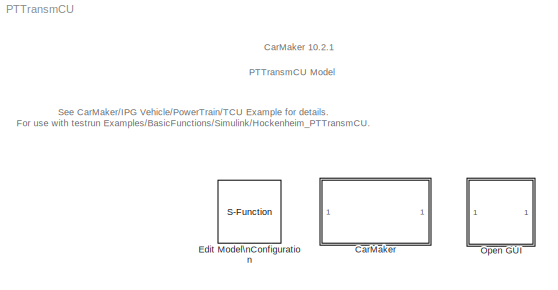
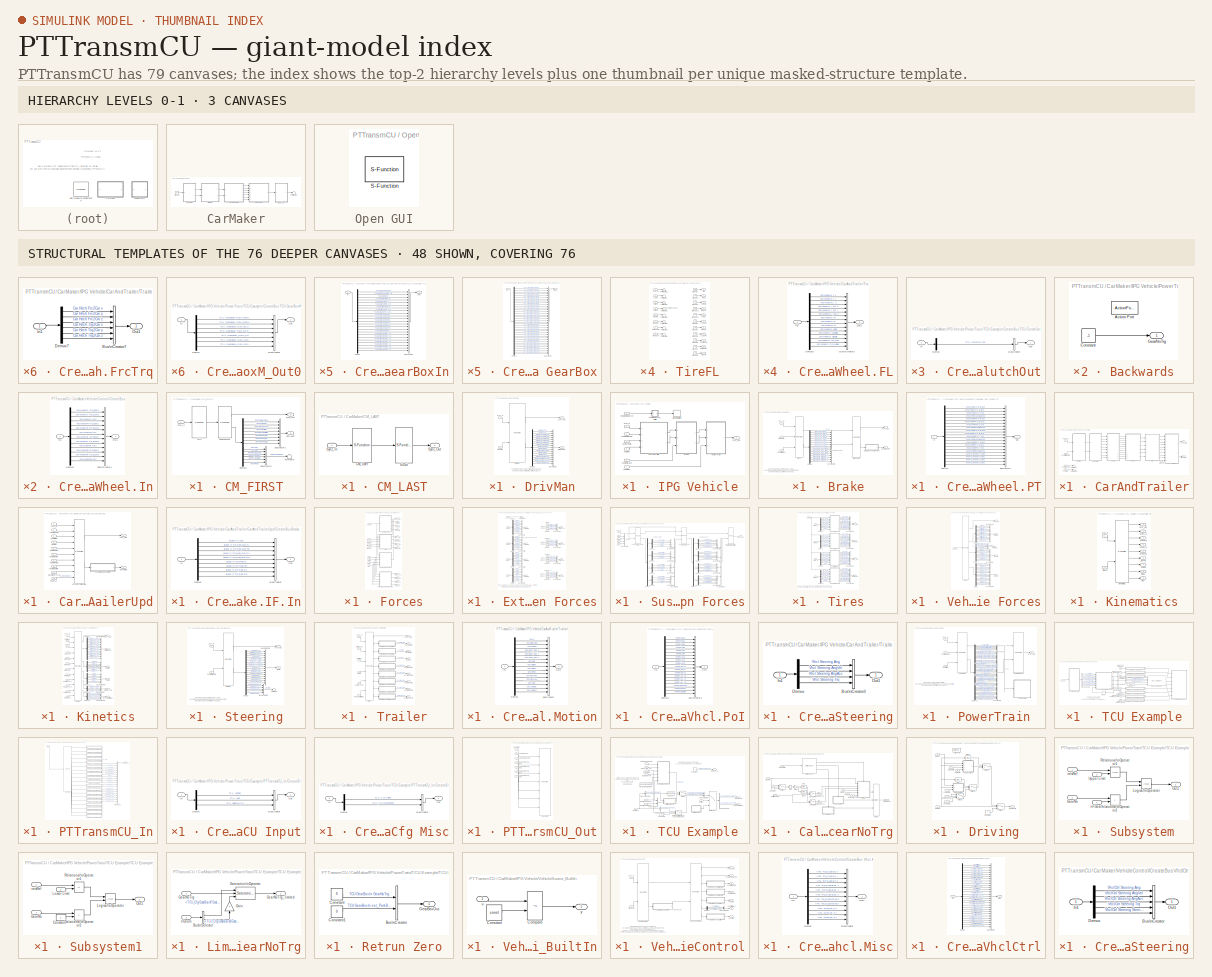
[diagram: thumbnail index - top-2 hierarchy levels (3 canvases) + 48 structural-template representatives of the remaining 76 canvases]
MODEL PTTransmCU
KIND model
BLOCK [SubSystem] CarMaker
  Ports = []
  RequestExecContextInheritance = off
  SID = 1
  TreatAsAtomicUnit = on
  Variant = off
BLOCK [SubSystem] CarMaker/CM_FIRST
  Ports = [1, 2]
  RequestExecContextInheritance = off
  SID = 2542
  Variant = off
BLOCK [BusCreator] CarMaker/CM_FIRST/BusCreator1
  InheritFromInputs = on
  Inputs = 8
  Ports = [8, 1]
  SID = 2550
BLOCK [BusCreator] CarMaker/CM_FIRST/BusCreator2
  InheritFromInputs = on
  Inputs = 6
  Ports = [6, 1]
  SID = 2551
BLOCK [Demux] CarMaker/CM_FIRST/Demux1
  Outputs = 14
  Ports = [1, 14]
  SID = 2552
BLOCK [Outport] CarMaker/CM_FIRST/Env.Misc
  IconDisplay = Port number
  Port = 2
  SID = 2557
BLOCK [S-Function] CarMaker/CM_FIRST/Environment
  EnableBusSupport = off
  FunctionName = CM_Sfun
  Parameters = 'Environment'
  Ports = [1, 2]
  SFunctionDeploymentMode = off
  SID = 2553
BLOCK [S-Function] CarMaker/CM_FIRST/IoIn
  EnableBusSupport = off
  FunctionName = CM_Sfun
  Parameters = 'IoIn'
  Ports = [1, 1]
  SFunctionDeploymentMode = off
  SID = 2554
BLOCK [Inport] CarMaker/CM_FIRST/Sync_In
  IconDisplay = Port number
  SID = 2549
BLOCK [Outport] CarMaker/CM_FIRST/Sync_Out
  IconDisplay = Port number
  SID = 2556
BLOCK [Terminator] CarMaker/CM_FIRST/Terminator
  SID = 2555
BLOCK [SubSystem] CarMaker/CM_LAST
  Ports = [1, 1]
  RequestExecContextInheritance = off
  SID = 2543
  Variant = off
BLOCK [S-Function] CarMaker/CM_LAST/CM_User
  EnableBusSupport = off
  FunctionName = CM_Sfun
  Parameters = 'CM_User'
  Ports = [1, 1]
  SFunctionDeploymentMode = off
  SID = 2559
BLOCK [S-Function] CarMaker/CM_LAST/IoOut
  EnableBusSupport = off
  FunctionName = CM_Sfun
  Parameters = 'IoOut'
  Ports = [1, 1]
  SFunctionDeploymentMode = off
  SID = 2560
BLOCK [Inport] CarMaker/CM_LAST/Sync_In
  IconDisplay = Port number
  SID = 2558
BLOCK [Outport] CarMaker/CM_LAST/Sync_Out
  IconDisplay = Port number
  SID = 2561
BLOCK [SubSystem] CarMaker/DrivMan
  Ports = [2, 2]
  RequestExecContextInheritance = off
  SID = 2544
  Variant = off
BLOCK [BusCreator] CarMaker/DrivMan/BusCreator
  InheritFromInputs = on
  Inputs = 17
  Ports = [17, 1]
  SID = 2564
BLOCK [Demux] CarMaker/DrivMan/Demux
  Outputs = 17
  Ports = [1, 17]
  SID = 2565
BLOCK [S-Function] CarMaker/DrivMan/DrivMan
  EnableBusSupport = off
  FunctionName = CM_Sfun
  Parameters = 'DrivMan'
  Ports = [2, 2]
  SFunctionDeploymentMode = off
  SID = 2566
BLOCK [Outport] CarMaker/DrivMan/DrivMan.Out
  IconDisplay = Port number
  Port = 2
  SID = 2568
BLOCK [Inport] CarMaker/DrivMan/Env.Misc
  IconDisplay = Port number
  Port = 2
  SID = 2563
BLOCK [Inport] CarMaker/DrivMan/Sync_In
  IconDisplay = Port number
  SID = 2562
BLOCK [Outport] CarMaker/DrivMan/Sync_Out
  IconDisplay = Port number
  SID = 2567
BLOCK [Ground] CarMaker/Ground
  SID = 2545
BLOCK [SubSystem] CarMaker/IPG Vehicle
  Ports = [7, 1]
  RequestExecContextInheritance = off
  SID = 2546
  TreatAsAtomicUnit = on
  Variant = off
BLOCK [SubSystem] CarMaker/IPG Vehicle/Brake
  Ports = [3, 2]
  RequestExecContextInheritance = off
  SID = 2577
  Variant = off
BLOCK [S-Function] CarMaker/IPG Vehicle/Brake/Brake
  EnableBusSupport = off
  FunctionName = CM_Sfun
  Parameters = 'Brake'
  Ports = [3, 2]
  SFunctionDeploymentMode = off
  SID = 2581
BLOCK [Inport] CarMaker/IPG Vehicle/Brake/Brake.IF.In
  IconDisplay = Port number
  Port = 2
  SID = 2579
BLOCK [S-Function] CarMaker/IPG Vehicle/Brake/BrakeUpd
  EnableBusSupport = off
  FunctionName = CM_Sfun
  Parameters = 'BrakeUpd'
  Ports = [2, 2]
  SFunctionDeploymentMode = off
  SID = 2582
BLOCK [BusCreator] CarMaker/IPG Vehicle/Brake/BusCreator1
  InheritFromInputs = on
  Inputs = 16
  Ports = [16, 1]
  SID = 2583
BLOCK [SubSystem] CarMaker/IPG Vehicle/Brake/CreateBus Vhcl.Wheel.PT
  Ports = [1, 1]
  RequestExecContextInheritance = off
  SID = 2584
  Variant = off
BLOCK [BusCreator] CarMaker/IPG Vehicle/Brake/CreateBus Vhcl.Wheel.PT/BusCreator1
  InheritFromInputs = on
  Inputs = 20
  Ports = [20, 1]
  SID = 2586
BLOCK [Demux] CarMaker/IPG Vehicle/Brake/CreateBus Vhcl.Wheel.PT/Demux1
  Outputs = 20
  Ports = [1, 20]
  SID = 2587
BLOCK [Inport] CarMaker/IPG Vehicle/Brake/CreateBus Vhcl.Wheel.PT/In
  IconDisplay = Port number
  SID = 2585
BLOCK [Outport] CarMaker/IPG Vehicle/Brake/CreateBus Vhcl.Wheel.PT/Out
  IconDisplay = Port number
  SID = 2588
BLOCK [Demux] CarMaker/IPG Vehicle/Brake/Demux
  Outputs = 16
  Ports = [1, 16]
  SID = 2589
BLOCK [Inport] CarMaker/IPG Vehicle/Brake/Sync_In
  IconDisplay = Port number
  SID = 2578
BLOCK [Outport] CarMaker/IPG Vehicle/Brake/Sync_Out
  IconDisplay = Port number
  SID = 2590
BLOCK [Outport] CarMaker/IPG Vehicle/Brake/Vhcl.Wheel.PT
  IconDisplay = Port number
  Port = 2
  SID = 2591
BLOCK [Inport] CarMaker/IPG Vehicle/Brake/VhclCtrl.Brake
  IconDisplay = Port number
  Port = 3
  SID = 2580
BLOCK [SubSystem] CarMaker/IPG Vehicle/CarAndTrailer
  Ports = [4, 2]
  RequestExecContextInheritance = off
  SID = 2594
  Variant = off
BLOCK [Outport] CarMaker/IPG Vehicle/CarAndTrailer/Brake.IF.In
  IconDisplay = Port number
  Port = 2
  SID = 2994
BLOCK [SubSystem] CarMaker/IPG Vehicle/CarAndTrailer/CarAndTrailerUpd
  Ports = [10, 2]
  RequestExecContextInheritance = off
  SID = 2599
  Variant = off
BLOCK [Outport] CarMaker/IPG Vehicle/CarAndTrailer/CarAndTrailerUpd/Brake.IF.In
  IconDisplay = Port number
  Port = 2
  SID = 2617
BLOCK [Inport] CarMaker/IPG Vehicle/CarAndTrailer/CarAndTrailerUpd/Car.Hitch.FrcTrq
  IconDisplay = Port number
  Port = 9
  SID = 2608
BLOCK [S-Function] CarMaker/IPG Vehicle/CarAndTrailer/CarAndTrailerUpd/CarAndTrailerUpd
  EnableBusSupport = off
  FunctionName = CM_Sfun
  Parameters = 'CarAndTrUpd'
  Ports = [10, 2]
  SFunctionDeploymentMode = off
  SID = 2610
BLOCK [SubSystem] CarMaker/IPG Vehicle/CarAndTrailer/CarAndTrailerUpd/CreateBus Brake.IF.In
  Ports = [1, 1]
  RequestExecContextInheritance = off
  SID = 2611
  Variant = off
BLOCK [BusCreator] CarMaker/IPG Vehicle/CarAndTrailer/CarAndTrailerUpd/CreateBus Brake.IF.In/BusCreator
  InheritFromInputs = on
  Inputs = 9
  Ports = [9, 1]
  SID = 2613
BLOCK [Demux] CarMaker/IPG Vehicle/CarAndTrailer/CarAndTrailerUpd/CreateBus Brake.IF.In/Demux
  Outputs = 9
  Ports = [1, 9]
  SID = 2614
BLOCK [Inport] CarMaker/IPG Vehicle/CarAndTrailer/CarAndTrailerUpd/CreateBus Brake.IF.In/In
  IconDisplay = Port number
  SID = 2612
BLOCK [Outport] CarMaker/IPG Vehicle/CarAndTrailer/CarAndTrailerUpd/CreateBus Brake.IF.In/Out
  IconDisplay = Port number
  SID = 2615
BLOCK [Inport] CarMaker/IPG Vehicle/CarAndTrailer/CarAndTrailerUpd/Sync_In
  IconDisplay = Port number
  SID = 2600
BLOCK [Outport] CarMaker/IPG Vehicle/CarAndTrailer/CarAndTrailerUpd/Sync_Out
  IconDisplay = Port number
  SID = 2616
BLOCK [Inport] CarMaker/IPG Vehicle/CarAndTrailer/CarAndTrailerUpd/Vhcl.Fr1A
  IconDisplay = Port number
  Port = 10
  SID = 2609
BLOCK [Inport] CarMaker/IPG Vehicle/CarAndTrailer/CarAndTrailerUpd/Vhcl.Motion
  IconDisplay = Port number
  Port = 3
  SID = 2602
BLOCK [Inport] CarMaker/IPG Vehicle/CarAndTrailer/CarAndTrailerUpd/Vhcl.PoI
  IconDisplay = Port number
  Port = 4
  SID = 2603
BLOCK [Inport] CarMaker/IPG Vehicle/CarAndTrailer/CarAndTrailerUpd/Vhcl.Steering
  IconDisplay = Port number
  Port = 2
  SID = 2601
BLOCK [Inport] CarMaker/IPG Vehicle/CarAndTrailer/CarAndTrailerUpd/Vhcl.Wheel.FL
  IconDisplay = Port number
  Port = 5
  SID = 2604
BLOCK [Inport] CarMaker/IPG Vehicle/CarAndTrailer/CarAndTrailerUpd/Vhcl.Wheel.FR
  IconDisplay = Port number
  Port = 6
  SID = 2605
BLOCK [Inport] CarMaker/IPG Vehicle/CarAndTrailer/CarAndTrailerUpd/Vhcl.Wheel.RL
  IconDisplay = Port number
  Port = 7
  SID = 2606
BLOCK [Inport] CarMaker/IPG Vehicle/CarAndTrailer/CarAndTrailerUpd/Vhcl.Wheel.RR
  IconDisplay = Port number
  Port = 8
  SID = 2607
BLOCK [SubSystem] CarMaker/IPG Vehicle/CarAndTrailer/Forces
  Ports = [9, 12]
  RequestExecContextInheritance = off
  SID = 2618
  Variant = off
BLOCK [Outport] CarMaker/IPG Vehicle/CarAndTrailer/Forces/Car.Aero
  IconDisplay = Port number
  Port = 3
  SID = 2869
BLOCK [Outport] CarMaker/IPG Vehicle/CarAndTrailer/Forces/Car.Load
  IconDisplay = Port number
  Port = 4
  SID = 2870
BLOCK [Outport] CarMaker/IPG Vehicle/CarAndTrailer/Forces/Car.Virtual
  IconDisplay = Port number
  Port = 2
  SID = 2868
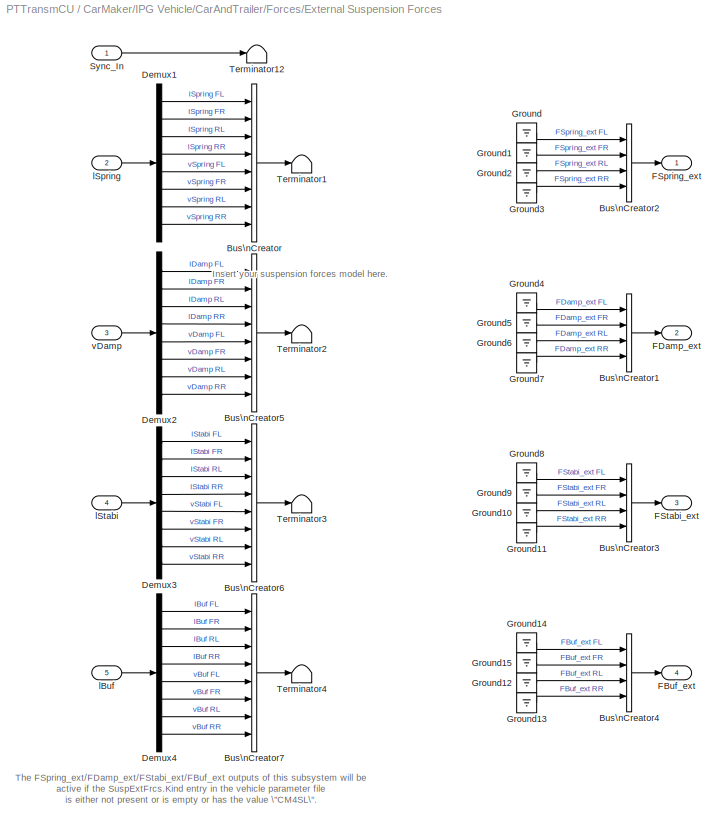
BLOCK [SubSystem] CarMaker/IPG Vehicle/CarAndTrailer/Forces/External Suspension Forces
  Ports = [5, 4]
  RequestExecContextInheritance = off
  SID = 2628
  Variant = off
BLOCK [BusCreator] CarMaker/IPG Vehicle/CarAndTrailer/Forces/External Suspension Forces/Bus\nCreator
  DisplayOption = bar
  InheritFromInputs = on
  Inputs = 8
  Ports = [8, 1]
  SID = 2634
BLOCK [BusCreator] CarMaker/IPG Vehicle/CarAndTrailer/Forces/External Suspension Forces/Bus\nCreator1
  DisplayOption = bar
  InheritFromInputs = on
  Inputs = 4
  Ports = [4, 1]
  SID = 2635
BLOCK [BusCreator] CarMaker/IPG Vehicle/CarAndTrailer/Forces/External Suspension Forces/Bus\nCreator2
  DisplayOption = bar
  InheritFromInputs = on
  Inputs = 4
  Ports = [4, 1]
  SID = 2636
BLOCK [BusCreator] CarMaker/IPG Vehicle/CarAndTrailer/Forces/External Suspension Forces/Bus\nCreator3
  DisplayOption = bar
  InheritFromInputs = on
  Inputs = 4
  Ports = [4, 1]
  SID = 2637
BLOCK [BusCreator] CarMaker/IPG Vehicle/CarAndTrailer/Forces/External Suspension Forces/Bus\nCreator4
  DisplayOption = bar
  InheritFromInputs = on
  Inputs = 4
  Ports = [4, 1]
  SID = 2638
BLOCK [BusCreator] CarMaker/IPG Vehicle/CarAndTrailer/Forces/External Suspension Forces/Bus\nCreator5
  DisplayOption = bar
  InheritFromInputs = on
  Inputs = 8
  Ports = [8, 1]
  SID = 2639
BLOCK [BusCreator] CarMaker/IPG Vehicle/CarAndTrailer/Forces/External Suspension Forces/Bus\nCreator6
  DisplayOption = bar
  InheritFromInputs = on
  Inputs = 8
  Ports = [8, 1]
  SID = 2640
BLOCK [BusCreator] CarMaker/IPG Vehicle/CarAndTrailer/Forces/External Suspension Forces/Bus\nCreator7
  DisplayOption = bar
  InheritFromInputs = on
  Inputs = 8
  Ports = [8, 1]
  SID = 2641
BLOCK [Demux] CarMaker/IPG Vehicle/CarAndTrailer/Forces/External Suspension Forces/Demux1
  Outputs = 8
  Ports = [1, 8]
  SID = 2642
BLOCK [Demux] CarMaker/IPG Vehicle/CarAndTrailer/Forces/External Suspension Forces/Demux2
  Outputs = 8
  Ports = [1, 8]
  SID = 2643
BLOCK [Demux] CarMaker/IPG Vehicle/CarAndTrailer/Forces/External Suspension Forces/Demux3
  Outputs = 8
  Ports = [1, 8]
  SID = 2644
BLOCK [Demux] CarMaker/IPG Vehicle/CarAndTrailer/Forces/External Suspension Forces/Demux4
  Outputs = 8
  Ports = [1, 8]
  SID = 2645
BLOCK [Outport] CarMaker/IPG Vehicle/CarAndTrailer/Forces/External Suspension Forces/FBuf_ext
  IconDisplay = Port number
  Port = 4
  SID = 2670
BLOCK [Outport] CarMaker/IPG Vehicle/CarAndTrailer/Forces/External Suspension Forces/FDamp_ext
  IconDisplay = Port number
  Port = 2
  SID = 2668
BLOCK [Outport] CarMaker/IPG Vehicle/CarAndTrailer/Forces/External Suspension Forces/FSpring_ext
  IconDisplay = Port number
  SID = 2667
BLOCK [Outport] CarMaker/IPG Vehicle/CarAndTrailer/Forces/External Suspension Forces/FStabi_ext
  IconDisplay = Port number
  Port = 3
  SID = 2669
BLOCK [Ground] CarMaker/IPG Vehicle/CarAndTrailer/Forces/External Suspension Forces/Ground
  SID = 2646
BLOCK [Ground] CarMaker/IPG Vehicle/CarAndTrailer/Forces/External Suspension Forces/Ground1
  SID = 2647
BLOCK [Ground] CarMaker/IPG Vehicle/CarAndTrailer/Forces/External Suspension Forces/Ground10
  SID = 2648
BLOCK [Ground] CarMaker/IPG Vehicle/CarAndTrailer/Forces/External Suspension Forces/Ground11
  SID = 2649
BLOCK [Ground] CarMaker/IPG Vehicle/CarAndTrailer/Forces/External Suspension Forces/Ground12
  SID = 2650
BLOCK [Ground] CarMaker/IPG Vehicle/CarAndTrailer/Forces/External Suspension Forces/Ground13
  SID = 2651
BLOCK [Ground] CarMaker/IPG Vehicle/CarAndTrailer/Forces/External Suspension Forces/Ground14
  SID = 2652
BLOCK [Ground] CarMaker/IPG Vehicle/CarAndTrailer/Forces/External Suspension Forces/Ground15
  SID = 2653
BLOCK [Ground] CarMaker/IPG Vehicle/CarAndTrailer/Forces/External Suspension Forces/Ground2
  SID = 2654
BLOCK [Ground] CarMaker/IPG Vehicle/CarAndTrailer/Forces/External Suspension Forces/Ground3
  SID = 2655
BLOCK [Ground] CarMaker/IPG Vehicle/CarAndTrailer/Forces/External Suspension Forces/Ground4
  SID = 2656
BLOCK [Ground] CarMaker/IPG Vehicle/CarAndTrailer/Forces/External Suspension Forces/Ground5
  SID = 2657
BLOCK [Ground] CarMaker/IPG Vehicle/CarAndTrailer/Forces/External Suspension Forces/Ground6
  SID = 2658
BLOCK [Ground] CarMaker/IPG Vehicle/CarAndTrailer/Forces/External Suspension Forces/Ground7
  SID = 2659
BLOCK [Ground] CarMaker/IPG Vehicle/CarAndTrailer/Forces/External Suspension Forces/Ground8
  SID = 2660
BLOCK [Ground] CarMaker/IPG Vehicle/CarAndTrailer/Forces/External Suspension Forces/Ground9
  SID = 2661
BLOCK [Inport] CarMaker/IPG Vehicle/CarAndTrailer/Forces/External Suspension Forces/Sync_In
  IconDisplay = Port number
  SID = 2629
BLOCK [Terminator] CarMaker/IPG Vehicle/CarAndTrailer/Forces/External Suspension Forces/Terminator1
  SID = 2662
BLOCK [Terminator] CarMaker/IPG Vehicle/CarAndTrailer/Forces/External Suspension Forces/Terminator12
  SID = 2663
BLOCK [Terminator] CarMaker/IPG Vehicle/CarAndTrailer/Forces/External Suspension Forces/Terminator2
  SID = 2664
BLOCK [Terminator] CarMaker/IPG Vehicle/CarAndTrailer/Forces/External Suspension Forces/Terminator3
  SID = 2665
BLOCK [Terminator] CarMaker/IPG Vehicle/CarAndTrailer/Forces/External Suspension Forces/Terminator4
  SID = 2666
BLOCK [Inport] CarMaker/IPG Vehicle/CarAndTrailer/Forces/External Suspension Forces/lBuf
  IconDisplay = Port number
  Port = 5
  SID = 2633
BLOCK [Inport] CarMaker/IPG Vehicle/CarAndTrailer/Forces/External Suspension Forces/lSpring
  IconDisplay = Port number
  Port = 2
  SID = 2630
BLOCK [Inport] CarMaker/IPG Vehicle/CarAndTrailer/Forces/External Suspension Forces/lStabi
  IconDisplay = Port number
  Port = 4
  SID = 2632
BLOCK [Inport] CarMaker/IPG Vehicle/CarAndTrailer/Forces/External Suspension Forces/vDamp
  IconDisplay = Port number
  Port = 3
  SID = 2631
BLOCK [Outport] CarMaker/IPG Vehicle/CarAndTrailer/Forces/FBuf_ext
  IconDisplay = Port number
  Port = 12
  SID = 2878
BLOCK [Outport] CarMaker/IPG Vehicle/CarAndTrailer/Forces/FDamp_ext
  IconDisplay = Port number
  Port = 10
  SID = 2876
BLOCK [Outport] CarMaker/IPG Vehicle/CarAndTrailer/Forces/FSpring_ext
  IconDisplay = Port number
  Port = 9
  SID = 2875
BLOCK [Outport] CarMaker/IPG Vehicle/CarAndTrailer/Forces/FStabi_ext
  IconDisplay = Port number
  Port = 11
  SID = 2877
BLOCK [SubSystem] CarMaker/IPG Vehicle/CarAndTrailer/Forces/Suspension Forces
  Ports = [5, 1]
  RequestExecContextInheritance = off
  SID = 3598
  Variant = off
BLOCK [BusCreator] CarMaker/IPG Vehicle/CarAndTrailer/Forces/Suspension Forces/Bus\nCreator
  DisplayOption = bar
  InheritFromInputs = on
  Inputs = 4
  Ports = [4, 1]
  SID = 3604
BLOCK [BusCreator] CarMaker/IPG Vehicle/CarAndTrailer/Forces/Suspension Forces/Bus\nCreator1
  DisplayOption = bar
  InheritFromInputs = on
  Inputs = 4
  Ports = [4, 1]
  SID = 3605
BLOCK [BusCreator] CarMaker/IPG Vehicle/CarAndTrailer/Forces/Suspension Forces/Bus\nCreator10
  DisplayOption = bar
  InheritFromInputs = on
  Inputs = 4
  Ports = [4, 1]
  SID = 3606
BLOCK [BusCreator] CarMaker/IPG Vehicle/CarAndTrailer/Forces/Suspension Forces/Bus\nCreator2
  DisplayOption = bar
  InheritFromInputs = on
  Inputs = 4
  Ports = [4, 1]
  SID = 3607
BLOCK [BusCreator] CarMaker/IPG Vehicle/CarAndTrailer/Forces/Suspension Forces/Bus\nCreator3
  DisplayOption = bar
  InheritFromInputs = on
  Inputs = 4
  Ports = [4, 1]
  SID = 3608
BLOCK [BusCreator] CarMaker/IPG Vehicle/CarAndTrailer/Forces/Suspension Forces/Bus\nCreator4
  DisplayOption = bar
  InheritFromInputs = on
  Inputs = 6
  Ports = [6, 1]
  SID = 3609
BLOCK [BusCreator] CarMaker/IPG Vehicle/CarAndTrailer/Forces/Suspension Forces/Bus\nCreator5
  DisplayOption = bar
  InheritFromInputs = on
  Inputs = 6
  Ports = [6, 1]
  SID = 3610
BLOCK [BusCreator] CarMaker/IPG Vehicle/CarAndTrailer/Forces/Suspension Forces/Bus\nCreator6
  DisplayOption = bar
  InheritFromInputs = on
  Inputs = 6
  Ports = [6, 1]
  SID = 3611
BLOCK [BusCreator] CarMaker/IPG Vehicle/CarAndTrailer/Forces/Suspension Forces/Bus\nCreator7
  DisplayOption = bar
  InheritFromInputs = on
  Inputs = 6
  Ports = [6, 1]
  SID = 3612
BLOCK [BusCreator] CarMaker/IPG Vehicle/CarAndTrailer/Forces/Suspension Forces/Bus\nCreator8
  DisplayOption = bar
  InheritFromInputs = on
  Inputs = 4
  Ports = [4, 1]
  SID = 3613
BLOCK [BusCreator] CarMaker/IPG Vehicle/CarAndTrailer/Forces/Suspension Forces/Bus\nCreator9
  DisplayOption = bar
  InheritFromInputs = on
  Inputs = 4
  Ports = [4, 1]
  SID = 3614
BLOCK [Demux] CarMaker/IPG Vehicle/CarAndTrailer/Forces/Suspension Forces/Demux
  DisplayOption = bar
  Ports = [1, 4]
  SID = 3615
BLOCK [Demux] CarMaker/IPG Vehicle/CarAndTrailer/Forces/Suspension Forces/Demux1
  DisplayOption = bar
  Ports = [1, 4]
  SID = 3616
BLOCK [Demux] CarMaker/IPG Vehicle/CarAndTrailer/Forces/Suspension Forces/Demux2
  DisplayOption = bar
  Ports = [1, 4]
  SID = 3617
BLOCK [Demux] CarMaker/IPG Vehicle/CarAndTrailer/Forces/Suspension Forces/Demux3
  DisplayOption = bar
  Ports = [1, 4]
  SID = 3618
BLOCK [Demux] CarMaker/IPG Vehicle/CarAndTrailer/Forces/Suspension Forces/Demux4
  DisplayOption = bar
  Ports = [1, 4]
  SID = 3619
BLOCK [Demux] CarMaker/IPG Vehicle/CarAndTrailer/Forces/Suspension Forces/Demux5
  DisplayOption = bar
  Ports = [1, 4]
  SID = 3620
BLOCK [Demux] CarMaker/IPG Vehicle/CarAndTrailer/Forces/Suspension Forces/Demux6
  DisplayOption = bar
  Outputs = 6
  Ports = [1, 6]
  SID = 3621
BLOCK [Demux] CarMaker/IPG Vehicle/CarAndTrailer/Forces/Suspension Forces/Demux7
  DisplayOption = bar
  Outputs = 6
  Ports = [1, 6]
  SID = 3622
BLOCK [Demux] CarMaker/IPG Vehicle/CarAndTrailer/Forces/Suspension Forces/Demux8
  DisplayOption = bar
  Outputs = 6
  Ports = [1, 6]
  SID = 3623
BLOCK [Demux] CarMaker/IPG Vehicle/CarAndTrailer/Forces/Suspension Forces/Demux9
  DisplayOption = bar
  Outputs = 6
  Ports = [1, 6]
  SID = 3624
BLOCK [S-Function] CarMaker/IPG Vehicle/CarAndTrailer/Forces/Suspension Forces/Suspension Control Unit
  EnableBusSupport = off
  FunctionName = CM_Sfun
  Parameters = 'ForcesSuspControl'
  Ports = [2, 2]
  SFunctionDeploymentMode = off
  SID = 3625
BLOCK [S-Function] CarMaker/IPG Vehicle/CarAndTrailer/Forces/Suspension Forces/Suspension Force Elements
  EnableBusSupport = off
  FunctionName = CM_Sfun
  Parameters = 'ForcesSusp'
  Ports = [3, 2]
  SFunctionDeploymentMode = off
  SID = 3626
BLOCK [S-Function] CarMaker/IPG Vehicle/CarAndTrailer/Forces/Suspension Forces/Suspension Force Elements Update
  EnableBusSupport = off
  FunctionName = CM_Sfun
  Parameters = 'ForcesSuspUpd'
  Ports = [2, 1]
  SFunctionDeploymentMode = off
  SID = 3627
BLOCK [Inport] CarMaker/IPG Vehicle/CarAndTrailer/Forces/Suspension Forces/Sync_In
  IconDisplay = Port number
  SID = 3599
BLOCK [Outport] CarMaker/IPG Vehicle/CarAndTrailer/Forces/Suspension Forces/Sync_Out
  IconDisplay = Port number
  SID = 3628
BLOCK [Inport] CarMaker/IPG Vehicle/CarAndTrailer/Forces/Suspension Forces/lBuf
  IconDisplay = Port number
  Port = 5
  SID = 3603
BLOCK [Inport] CarMaker/IPG Vehicle/CarAndTrailer/Forces/Suspension Forces/lSpring
  IconDisplay = Port number
  Port = 2
  SID = 3600
BLOCK [Inport] CarMaker/IPG Vehicle/CarAndTrailer/Forces/Suspension Forces/lStabi
  IconDisplay = Port number
  Port = 4
  SID = 3602
BLOCK [Inport] CarMaker/IPG Vehicle/CarAndTrailer/Forces/Suspension Forces/vDamp
  IconDisplay = Port number
  Port = 3
  SID = 3601
BLOCK [Inport] CarMaker/IPG Vehicle/CarAndTrailer/Forces/Sync_In
  IconDisplay = Port number
  SID = 2619
BLOCK [Outport] CarMaker/IPG Vehicle/CarAndTrailer/Forces/Sync_Out
  IconDisplay = Port number
  SID = 2867
BLOCK [Inport] CarMaker/IPG Vehicle/CarAndTrailer/Forces/TireFL_In
  IconDisplay = Port number
  Port = 2
  SID = 2620
BLOCK [Outport] CarMaker/IPG Vehicle/CarAndTrailer/Forces/TireFL_Out
  IconDisplay = Port number
  Port = 5
  SID = 2871
BLOCK [Inport] CarMaker/IPG Vehicle/CarAndTrailer/Forces/TireFR_In
  IconDisplay = Port number
  Port = 3
  SID = 2621
BLOCK [Outport] CarMaker/IPG Vehicle/CarAndTrailer/Forces/TireFR_Out
  IconDisplay = Port number
  Port = 6
  SID = 2872
BLOCK [Inport] CarMaker/IPG Vehicle/CarAndTrailer/Forces/TireRL_In
  IconDisplay = Port number
  Port = 4
  SID = 2622
BLOCK [Outport] CarMaker/IPG Vehicle/CarAndTrailer/Forces/TireRL_Out
  IconDisplay = Port number
  Port = 7
  SID = 2873
BLOCK [Inport] CarMaker/IPG Vehicle/CarAndTrailer/Forces/TireRR_In
  IconDisplay = Port number
  Port = 5
  SID = 2623
BLOCK [Outport] CarMaker/IPG Vehicle/CarAndTrailer/Forces/TireRR_Out
  IconDisplay = Port number
  Port = 8
  SID = 2874
BLOCK [SubSystem] CarMaker/IPG Vehicle/CarAndTrailer/Forces/Tires
  Ports = [5, 4]
  RequestExecContextInheritance = off
  SID = 2673
  Variant = off
BLOCK [BusCreator] CarMaker/IPG Vehicle/CarAndTrailer/Forces/Tires/Bus\nCreator1
  DisplayOption = bar
  InheritFromInputs = on
  Inputs = 11
  Ports = [11, 1]
  SID = 2679
BLOCK [BusCreator] CarMaker/IPG Vehicle/CarAndTrailer/Forces/Tires/Bus\nCreator2
  DisplayOption = bar
  InheritFromInputs = on
  Inputs = 11
  Ports = [11, 1]
  SID = 2680
BLOCK [BusCreator] CarMaker/IPG Vehicle/CarAndTrailer/Forces/Tires/Bus\nCreator3
  DisplayOption = bar
  InheritFromInputs = on
  Inputs = 11
  Ports = [11, 1]
  SID = 2681
BLOCK [BusCreator] CarMaker/IPG Vehicle/CarAndTrailer/Forces/Tires/Bus\nCreator4
  DisplayOption = bar
  InheritFromInputs = on
  Inputs = 11
  Ports = [11, 1]
  SID = 2682
BLOCK [Demux] CarMaker/IPG Vehicle/CarAndTrailer/Forces/Tires/Demux1
  Outputs = 7
  Ports = [1, 7]
  SID = 2683
BLOCK [Demux] CarMaker/IPG Vehicle/CarAndTrailer/Forces/Tires/Demux2
  Outputs = 7
  Ports = [1, 7]
  SID = 2684
BLOCK [Demux] CarMaker/IPG Vehicle/CarAndTrailer/Forces/Tires/Demux3
  Outputs = 7
  Ports = [1, 7]
  SID = 2685
BLOCK [Demux] CarMaker/IPG Vehicle/CarAndTrailer/Forces/Tires/Demux8
  Outputs = 7
  Ports = [1, 7]
  SID = 2686
BLOCK [Inport] CarMaker/IPG Vehicle/CarAndTrailer/Forces/Tires/Sync_In
  IconDisplay = Port number
  SID = 2674
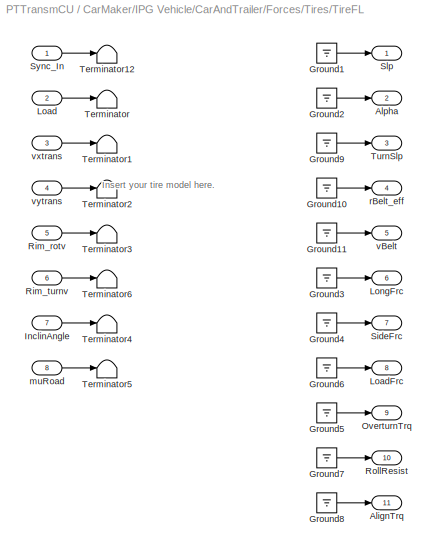
BLOCK [SubSystem] CarMaker/IPG Vehicle/CarAndTrailer/Forces/Tires/TireFL
  Ports = [8, 11]
  RequestExecContextInheritance = off
  SID = 2687
  Variant = off
BLOCK [Outport] CarMaker/IPG Vehicle/CarAndTrailer/Forces/Tires/TireFL/AlignTrq
  IconDisplay = Port number
  Port = 11
  SID = 2725
BLOCK [Outport] CarMaker/IPG Vehicle/CarAndTrailer/Forces/Tires/TireFL/Alpha
  IconDisplay = Port number
  Port = 2
  SID = 2716
BLOCK [Ground] CarMaker/IPG Vehicle/CarAndTrailer/Forces/Tires/TireFL/Ground1
  SID = 2696
BLOCK [Ground] CarMaker/IPG Vehicle/CarAndTrailer/Forces/Tires/TireFL/Ground10
  SID = 2697
BLOCK [Ground] CarMaker/IPG Vehicle/CarAndTrailer/Forces/Tires/TireFL/Ground11
  SID = 2698
BLOCK [Ground] CarMaker/IPG Vehicle/CarAndTrailer/Forces/Tires/TireFL/Ground2
  SID = 2699
BLOCK [Ground] CarMaker/IPG Vehicle/CarAndTrailer/Forces/Tires/TireFL/Ground3
  SID = 2700
BLOCK [Ground] CarMaker/IPG Vehicle/CarAndTrailer/Forces/Tires/TireFL/Ground4
  SID = 2701
BLOCK [Ground] CarMaker/IPG Vehicle/CarAndTrailer/Forces/Tires/TireFL/Ground5
  SID = 2702
BLOCK [Ground] CarMaker/IPG Vehicle/CarAndTrailer/Forces/Tires/TireFL/Ground6
  SID = 2703
BLOCK [Ground] CarMaker/IPG Vehicle/CarAndTrailer/Forces/Tires/TireFL/Ground7
  SID = 2704
BLOCK [Ground] CarMaker/IPG Vehicle/CarAndTrailer/Forces/Tires/TireFL/Ground8
  SID = 2705
BLOCK [Ground] CarMaker/IPG Vehicle/CarAndTrailer/Forces/Tires/TireFL/Ground9
  SID = 2706
BLOCK [Inport] CarMaker/IPG Vehicle/CarAndTrailer/Forces/Tires/TireFL/InclinAngle
  IconDisplay = Port number
  Port = 7
  SID = 2694
BLOCK [Inport] CarMaker/IPG Vehicle/CarAndTrailer/Forces/Tires/TireFL/Load
  IconDisplay = Port number
  Port = 2
  SID = 2689
BLOCK [Outport] CarMaker/IPG Vehicle/CarAndTrailer/Forces/Tires/TireFL/LoadFrc
  IconDisplay = Port number
  Port = 8
  SID = 2722
BLOCK [Outport] CarMaker/IPG Vehicle/CarAndTrailer/Forces/Tires/TireFL/LongFrc
  IconDisplay = Port number
  Port = 6
  SID = 2720
BLOCK [Outport] CarMaker/IPG Vehicle/CarAndTrailer/Forces/Tires/TireFL/OverturnTrq
  IconDisplay = Port number
  Port = 9
  SID = 2723
BLOCK [Inport] CarMaker/IPG Vehicle/CarAndTrailer/Forces/Tires/TireFL/Rim_rotv
  IconDisplay = Port number
  Port = 5
  SID = 2692
BLOCK [Inport] CarMaker/IPG Vehicle/CarAndTrailer/Forces/Tires/TireFL/Rim_turnv
  IconDisplay = Port number
  Port = 6
  SID = 2693
BLOCK [Outport] CarMaker/IPG Vehicle/CarAndTrailer/Forces/Tires/TireFL/RollResist
  IconDisplay = Port number
  Port = 10
  SID = 2724
BLOCK [Outport] CarMaker/IPG Vehicle/CarAndTrailer/Forces/Tires/TireFL/SideFrc
  IconDisplay = Port number
  Port = 7
  SID = 2721
BLOCK [Outport] CarMaker/IPG Vehicle/CarAndTrailer/Forces/Tires/TireFL/Slp
  IconDisplay = Port number
  SID = 2715
BLOCK [Inport] CarMaker/IPG Vehicle/CarAndTrailer/Forces/Tires/TireFL/Sync_In
  IconDisplay = Port number
  SID = 2688
BLOCK [Terminator] CarMaker/IPG Vehicle/CarAndTrailer/Forces/Tires/TireFL/Terminator
  SID = 2707
BLOCK [Terminator] CarMaker/IPG Vehicle/CarAndTrailer/Forces/Tires/TireFL/Terminator1
  SID = 2708
BLOCK [Terminator] CarMaker/IPG Vehicle/CarAndTrailer/Forces/Tires/TireFL/Terminator12
  SID = 2709
BLOCK [Terminator] CarMaker/IPG Vehicle/CarAndTrailer/Forces/Tires/TireFL/Terminator2
  SID = 2710
BLOCK [Terminator] CarMaker/IPG Vehicle/CarAndTrailer/Forces/Tires/TireFL/Terminator3
  SID = 2711
BLOCK [Terminator] CarMaker/IPG Vehicle/CarAndTrailer/Forces/Tires/TireFL/Terminator4
  SID = 2712
BLOCK [Terminator] CarMaker/IPG Vehicle/CarAndTrailer/Forces/Tires/TireFL/Terminator5
  SID = 2713
BLOCK [Terminator] CarMaker/IPG Vehicle/CarAndTrailer/Forces/Tires/TireFL/Terminator6
  SID = 2714
BLOCK [Outport] CarMaker/IPG Vehicle/CarAndTrailer/Forces/Tires/TireFL/TurnSlp
  IconDisplay = Port number
  Port = 3
  SID = 2717
BLOCK [Inport] CarMaker/IPG Vehicle/CarAndTrailer/Forces/Tires/TireFL/muRoad
  IconDisplay = Port number
  Port = 8
  SID = 2695
BLOCK [Outport] CarMaker/IPG Vehicle/CarAndTrailer/Forces/Tires/TireFL/rBelt_eff
  IconDisplay = Port number
  Port = 4
  SID = 2718
BLOCK [Outport] CarMaker/IPG Vehicle/CarAndTrailer/Forces/Tires/TireFL/vBelt
  IconDisplay = Port number
  Port = 5
  SID = 2719
BLOCK [Inport] CarMaker/IPG Vehicle/CarAndTrailer/Forces/Tires/TireFL/vxtrans
  IconDisplay = Port number
  Port = 3
  SID = 2690
BLOCK [Inport] CarMaker/IPG Vehicle/CarAndTrailer/Forces/Tires/TireFL/vytrans
  IconDisplay = Port number
  Port = 4
  SID = 2691
BLOCK [Inport] CarMaker/IPG Vehicle/CarAndTrailer/Forces/Tires/TireFL_In
  IconDisplay = Port number
  Port = 2
  SID = 2675
BLOCK [Outport] CarMaker/IPG Vehicle/CarAndTrailer/Forces/Tires/TireFL_Out
  IconDisplay = Port number
  SID = 2847
BLOCK [SubSystem] CarMaker/IPG Vehicle/CarAndTrailer/Forces/Tires/TireFR
  Ports = [8, 11]
  RequestExecContextInheritance = off
  SID = 2727
  Variant = off
BLOCK [Outport] CarMaker/IPG Vehicle/CarAndTrailer/Forces/Tires/TireFR/AlignTrq
  IconDisplay = Port number
  Port = 11
  SID = 2765
BLOCK [Outport] CarMaker/IPG Vehicle/CarAndTrailer/Forces/Tires/TireFR/Alpha
  IconDisplay = Port number
  Port = 2
  SID = 2756
BLOCK [Ground] CarMaker/IPG Vehicle/CarAndTrailer/Forces/Tires/TireFR/Ground1
  SID = 2736
BLOCK [Ground] CarMaker/IPG Vehicle/CarAndTrailer/Forces/Tires/TireFR/Ground10
  SID = 2737
BLOCK [Ground] CarMaker/IPG Vehicle/CarAndTrailer/Forces/Tires/TireFR/Ground11
  SID = 2738
BLOCK [Ground] CarMaker/IPG Vehicle/CarAndTrailer/Forces/Tires/TireFR/Ground2
  SID = 2739
BLOCK [Ground] CarMaker/IPG Vehicle/CarAndTrailer/Forces/Tires/TireFR/Ground3
  SID = 2740
BLOCK [Ground] CarMaker/IPG Vehicle/CarAndTrailer/Forces/Tires/TireFR/Ground4
  SID = 2741
BLOCK [Ground] CarMaker/IPG Vehicle/CarAndTrailer/Forces/Tires/TireFR/Ground5
  SID = 2742
BLOCK [Ground] CarMaker/IPG Vehicle/CarAndTrailer/Forces/Tires/TireFR/Ground6
  SID = 2743
BLOCK [Ground] CarMaker/IPG Vehicle/CarAndTrailer/Forces/Tires/TireFR/Ground7
  SID = 2744
BLOCK [Ground] CarMaker/IPG Vehicle/CarAndTrailer/Forces/Tires/TireFR/Ground8
  SID = 2745
BLOCK [Ground] CarMaker/IPG Vehicle/CarAndTrailer/Forces/Tires/TireFR/Ground9
  SID = 2746
BLOCK [Inport] CarMaker/IPG Vehicle/CarAndTrailer/Forces/Tires/TireFR/InclinAngle
  IconDisplay = Port number
  Port = 7
  SID = 2734
BLOCK [Inport] CarMaker/IPG Vehicle/CarAndTrailer/Forces/Tires/TireFR/Load
  IconDisplay = Port number
  Port = 2
  SID = 2729
BLOCK [Outport] CarMaker/IPG Vehicle/CarAndTrailer/Forces/Tires/TireFR/LoadFrc
  IconDisplay = Port number
  Port = 8
  SID = 2762
BLOCK [Outport] CarMaker/IPG Vehicle/CarAndTrailer/Forces/Tires/TireFR/LongFrc
  IconDisplay = Port number
  Port = 6
  SID = 2760
BLOCK [Outport] CarMaker/IPG Vehicle/CarAndTrailer/Forces/Tires/TireFR/OverturnTrq
  IconDisplay = Port number
  Port = 9
  SID = 2763
BLOCK [Inport] CarMaker/IPG Vehicle/CarAndTrailer/Forces/Tires/TireFR/Rim_rotv
  IconDisplay = Port number
  Port = 5
  SID = 2732
BLOCK [Inport] CarMaker/IPG Vehicle/CarAndTrailer/Forces/Tires/TireFR/Rim_turnv
  IconDisplay = Port number
  Port = 6
  SID = 2733
BLOCK [Outport] CarMaker/IPG Vehicle/CarAndTrailer/Forces/Tires/TireFR/RollResist
  IconDisplay = Port number
  Port = 10
  SID = 2764
BLOCK [Outport] CarMaker/IPG Vehicle/CarAndTrailer/Forces/Tires/TireFR/SideFrc
  IconDisplay = Port number
  Port = 7
  SID = 2761
BLOCK [Outport] CarMaker/IPG Vehicle/CarAndTrailer/Forces/Tires/TireFR/Slp
  IconDisplay = Port number
  SID = 2755
BLOCK [Inport] CarMaker/IPG Vehicle/CarAndTrailer/Forces/Tires/TireFR/Sync_In
  IconDisplay = Port number
  SID = 2728
BLOCK [Terminator] CarMaker/IPG Vehicle/CarAndTrailer/Forces/Tires/TireFR/Terminator
  SID = 2747
BLOCK [Terminator] CarMaker/IPG Vehicle/CarAndTrailer/Forces/Tires/TireFR/Terminator1
  SID = 2748
BLOCK [Terminator] CarMaker/IPG Vehicle/CarAndTrailer/Forces/Tires/TireFR/Terminator12
  SID = 2749
BLOCK [Terminator] CarMaker/IPG Vehicle/CarAndTrailer/Forces/Tires/TireFR/Terminator2
  SID = 2750
BLOCK [Terminator] CarMaker/IPG Vehicle/CarAndTrailer/Forces/Tires/TireFR/Terminator3
  SID = 2751
BLOCK [Terminator] CarMaker/IPG Vehicle/CarAndTrailer/Forces/Tires/TireFR/Terminator4
  SID = 2752
BLOCK [Terminator] CarMaker/IPG Vehicle/CarAndTrailer/Forces/Tires/TireFR/Terminator5
  SID = 2753
BLOCK [Terminator] CarMaker/IPG Vehicle/CarAndTrailer/Forces/Tires/TireFR/Terminator6
  SID = 2754
BLOCK [Outport] CarMaker/IPG Vehicle/CarAndTrailer/Forces/Tires/TireFR/TurnSlp
  IconDisplay = Port number
  Port = 3
  SID = 2757
BLOCK [Inport] CarMaker/IPG Vehicle/CarAndTrailer/Forces/Tires/TireFR/muRoad
  IconDisplay = Port number
  Port = 8
  SID = 2735
BLOCK [Outport] CarMaker/IPG Vehicle/CarAndTrailer/Forces/Tires/TireFR/rBelt_eff
  IconDisplay = Port number
  Port = 4
  SID = 2758
BLOCK [Outport] CarMaker/IPG Vehicle/CarAndTrailer/Forces/Tires/TireFR/vBelt
  IconDisplay = Port number
  Port = 5
  SID = 2759
BLOCK [Inport] CarMaker/IPG Vehicle/CarAndTrailer/Forces/Tires/TireFR/vxtrans
  IconDisplay = Port number
  Port = 3
  SID = 2730
BLOCK [Inport] CarMaker/IPG Vehicle/CarAndTrailer/Forces/Tires/TireFR/vytrans
  IconDisplay = Port number
  Port = 4
  SID = 2731
BLOCK [Inport] CarMaker/IPG Vehicle/CarAndTrailer/Forces/Tires/TireFR_In
  IconDisplay = Port number
  Port = 3
  SID = 2676
BLOCK [Outport] CarMaker/IPG Vehicle/CarAndTrailer/Forces/Tires/TireFR_Out
  IconDisplay = Port number
  Port = 2
  SID = 2848
BLOCK [SubSystem] CarMaker/IPG Vehicle/CarAndTrailer/Forces/Tires/TireRL
  Ports = [8, 11]
  RequestExecContextInheritance = off
  SID = 2767
  Variant = off
BLOCK [Outport] CarMaker/IPG Vehicle/CarAndTrailer/Forces/Tires/TireRL/AlignTrq
  IconDisplay = Port number
  Port = 11
  SID = 2805
BLOCK [Outport] CarMaker/IPG Vehicle/CarAndTrailer/Forces/Tires/TireRL/Alpha
  IconDisplay = Port number
  Port = 2
  SID = 2796
BLOCK [Ground] CarMaker/IPG Vehicle/CarAndTrailer/Forces/Tires/TireRL/Ground1
  SID = 2776
BLOCK [Ground] CarMaker/IPG Vehicle/CarAndTrailer/Forces/Tires/TireRL/Ground10
  SID = 2777
BLOCK [Ground] CarMaker/IPG Vehicle/CarAndTrailer/Forces/Tires/TireRL/Ground11
  SID = 2778
BLOCK [Ground] CarMaker/IPG Vehicle/CarAndTrailer/Forces/Tires/TireRL/Ground2
  SID = 2779
BLOCK [Ground] CarMaker/IPG Vehicle/CarAndTrailer/Forces/Tires/TireRL/Ground3
  SID = 2780
BLOCK [Ground] CarMaker/IPG Vehicle/CarAndTrailer/Forces/Tires/TireRL/Ground4
  SID = 2781
BLOCK [Ground] CarMaker/IPG Vehicle/CarAndTrailer/Forces/Tires/TireRL/Ground5
  SID = 2782
BLOCK [Ground] CarMaker/IPG Vehicle/CarAndTrailer/Forces/Tires/TireRL/Ground6
  SID = 2783
BLOCK [Ground] CarMaker/IPG Vehicle/CarAndTrailer/Forces/Tires/TireRL/Ground7
  SID = 2784
BLOCK [Ground] CarMaker/IPG Vehicle/CarAndTrailer/Forces/Tires/TireRL/Ground8
  SID = 2785
BLOCK [Ground] CarMaker/IPG Vehicle/CarAndTrailer/Forces/Tires/TireRL/Ground9
  SID = 2786
BLOCK [Inport] CarMaker/IPG Vehicle/CarAndTrailer/Forces/Tires/TireRL/InclinAngle
  IconDisplay = Port number
  Port = 7
  SID = 2774
BLOCK [Inport] CarMaker/IPG Vehicle/CarAndTrailer/Forces/Tires/TireRL/Load
  IconDisplay = Port number
  Port = 2
  SID = 2769
BLOCK [Outport] CarMaker/IPG Vehicle/CarAndTrailer/Forces/Tires/TireRL/LoadFrc
  IconDisplay = Port number
  Port = 8
  SID = 2802
BLOCK [Outport] CarMaker/IPG Vehicle/CarAndTrailer/Forces/Tires/TireRL/LongFrc
  IconDisplay = Port number
  Port = 6
  SID = 2800
BLOCK [Outport] CarMaker/IPG Vehicle/CarAndTrailer/Forces/Tires/TireRL/OverturnTrq
  IconDisplay = Port number
  Port = 9
  SID = 2803
BLOCK [Inport] CarMaker/IPG Vehicle/CarAndTrailer/Forces/Tires/TireRL/Rim_rotv
  IconDisplay = Port number
  Port = 5
  SID = 2772
BLOCK [Inport] CarMaker/IPG Vehicle/CarAndTrailer/Forces/Tires/TireRL/Rim_turnv
  IconDisplay = Port number
  Port = 6
  SID = 2773
BLOCK [Outport] CarMaker/IPG Vehicle/CarAndTrailer/Forces/Tires/TireRL/RollResist
  IconDisplay = Port number
  Port = 10
  SID = 2804
BLOCK [Outport] CarMaker/IPG Vehicle/CarAndTrailer/Forces/Tires/TireRL/SideFrc
  IconDisplay = Port number
  Port = 7
  SID = 2801
BLOCK [Outport] CarMaker/IPG Vehicle/CarAndTrailer/Forces/Tires/TireRL/Slp
  IconDisplay = Port number
  SID = 2795
BLOCK [Inport] CarMaker/IPG Vehicle/CarAndTrailer/Forces/Tires/TireRL/Sync_In
  IconDisplay = Port number
  SID = 2768
BLOCK [Terminator] CarMaker/IPG Vehicle/CarAndTrailer/Forces/Tires/TireRL/Terminator
  SID = 2787
BLOCK [Terminator] CarMaker/IPG Vehicle/CarAndTrailer/Forces/Tires/TireRL/Terminator1
  SID = 2788
BLOCK [Terminator] CarMaker/IPG Vehicle/CarAndTrailer/Forces/Tires/TireRL/Terminator12
  SID = 2789
BLOCK [Terminator] CarMaker/IPG Vehicle/CarAndTrailer/Forces/Tires/TireRL/Terminator2
  SID = 2790
BLOCK [Terminator] CarMaker/IPG Vehicle/CarAndTrailer/Forces/Tires/TireRL/Terminator3
  SID = 2791
BLOCK [Terminator] CarMaker/IPG Vehicle/CarAndTrailer/Forces/Tires/TireRL/Terminator4
  SID = 2792
BLOCK [Terminator] CarMaker/IPG Vehicle/CarAndTrailer/Forces/Tires/TireRL/Terminator5
  SID = 2793
BLOCK [Terminator] CarMaker/IPG Vehicle/CarAndTrailer/Forces/Tires/TireRL/Terminator6
  SID = 2794
BLOCK [Outport] CarMaker/IPG Vehicle/CarAndTrailer/Forces/Tires/TireRL/TurnSlp
  IconDisplay = Port number
  Port = 3
  SID = 2797
BLOCK [Inport] CarMaker/IPG Vehicle/CarAndTrailer/Forces/Tires/TireRL/muRoad
  IconDisplay = Port number
  Port = 8
  SID = 2775
BLOCK [Outport] CarMaker/IPG Vehicle/CarAndTrailer/Forces/Tires/TireRL/rBelt_eff
  IconDisplay = Port number
  Port = 4
  SID = 2798
BLOCK [Outport] CarMaker/IPG Vehicle/CarAndTrailer/Forces/Tires/TireRL/vBelt
  IconDisplay = Port number
  Port = 5
  SID = 2799
BLOCK [Inport] CarMaker/IPG Vehicle/CarAndTrailer/Forces/Tires/TireRL/vxtrans
  IconDisplay = Port number
  Port = 3
  SID = 2770
BLOCK [Inport] CarMaker/IPG Vehicle/CarAndTrailer/Forces/Tires/TireRL/vytrans
  IconDisplay = Port number
  Port = 4
  SID = 2771
BLOCK [Inport] CarMaker/IPG Vehicle/CarAndTrailer/Forces/Tires/TireRL_In
  IconDisplay = Port number
  Port = 4
  SID = 2677
BLOCK [Outport] CarMaker/IPG Vehicle/CarAndTrailer/Forces/Tires/TireRL_Out
  IconDisplay = Port number
  Port = 3
  SID = 2849
BLOCK [SubSystem] CarMaker/IPG Vehicle/CarAndTrailer/Forces/Tires/TireRR
  Ports = [8, 11]
  RequestExecContextInheritance = off
  SID = 2807
  Variant = off
BLOCK [Outport] CarMaker/IPG Vehicle/CarAndTrailer/Forces/Tires/TireRR/AlignTrq
  IconDisplay = Port number
  Port = 11
  SID = 2845
BLOCK [Outport] CarMaker/IPG Vehicle/CarAndTrailer/Forces/Tires/TireRR/Alpha
  IconDisplay = Port number
  Port = 2
  SID = 2836
BLOCK [Ground] CarMaker/IPG Vehicle/CarAndTrailer/Forces/Tires/TireRR/Ground1
  SID = 2816
BLOCK [Ground] CarMaker/IPG Vehicle/CarAndTrailer/Forces/Tires/TireRR/Ground10
  SID = 2817
BLOCK [Ground] CarMaker/IPG Vehicle/CarAndTrailer/Forces/Tires/TireRR/Ground11
  SID = 2818
BLOCK [Ground] CarMaker/IPG Vehicle/CarAndTrailer/Forces/Tires/TireRR/Ground2
  SID = 2819
BLOCK [Ground] CarMaker/IPG Vehicle/CarAndTrailer/Forces/Tires/TireRR/Ground3
  SID = 2820
BLOCK [Ground] CarMaker/IPG Vehicle/CarAndTrailer/Forces/Tires/TireRR/Ground4
  SID = 2821
BLOCK [Ground] CarMaker/IPG Vehicle/CarAndTrailer/Forces/Tires/TireRR/Ground5
  SID = 2822
BLOCK [Ground] CarMaker/IPG Vehicle/CarAndTrailer/Forces/Tires/TireRR/Ground6
  SID = 2823
BLOCK [Ground] CarMaker/IPG Vehicle/CarAndTrailer/Forces/Tires/TireRR/Ground7
  SID = 2824
BLOCK [Ground] CarMaker/IPG Vehicle/CarAndTrailer/Forces/Tires/TireRR/Ground8
  SID = 2825
BLOCK [Ground] CarMaker/IPG Vehicle/CarAndTrailer/Forces/Tires/TireRR/Ground9
  SID = 2826
BLOCK [Inport] CarMaker/IPG Vehicle/CarAndTrailer/Forces/Tires/TireRR/InclinAngle
  IconDisplay = Port number
  Port = 7
  SID = 2814
BLOCK [Inport] CarMaker/IPG Vehicle/CarAndTrailer/Forces/Tires/TireRR/Load
  IconDisplay = Port number
  Port = 2
  SID = 2809
BLOCK [Outport] CarMaker/IPG Vehicle/CarAndTrailer/Forces/Tires/TireRR/LoadFrc
  IconDisplay = Port number
  Port = 8
  SID = 2842
BLOCK [Outport] CarMaker/IPG Vehicle/CarAndTrailer/Forces/Tires/TireRR/LongFrc
  IconDisplay = Port number
  Port = 6
  SID = 2840
BLOCK [Outport] CarMaker/IPG Vehicle/CarAndTrailer/Forces/Tires/TireRR/OverturnTrq
  IconDisplay = Port number
  Port = 9
  SID = 2843
BLOCK [Inport] CarMaker/IPG Vehicle/CarAndTrailer/Forces/Tires/TireRR/Rim_rotv
  IconDisplay = Port number
  Port = 5
  SID = 2812
BLOCK [Inport] CarMaker/IPG Vehicle/CarAndTrailer/Forces/Tires/TireRR/Rim_turnv
  IconDisplay = Port number
  Port = 6
  SID = 2813
BLOCK [Outport] CarMaker/IPG Vehicle/CarAndTrailer/Forces/Tires/TireRR/RollResist
  IconDisplay = Port number
  Port = 10
  SID = 2844
BLOCK [Outport] CarMaker/IPG Vehicle/CarAndTrailer/Forces/Tires/TireRR/SideFrc
  IconDisplay = Port number
  Port = 7
  SID = 2841
BLOCK [Outport] CarMaker/IPG Vehicle/CarAndTrailer/Forces/Tires/TireRR/Slp
  IconDisplay = Port number
  SID = 2835
BLOCK [Inport] CarMaker/IPG Vehicle/CarAndTrailer/Forces/Tires/TireRR/Sync_In
  IconDisplay = Port number
  SID = 2808
BLOCK [Terminator] CarMaker/IPG Vehicle/CarAndTrailer/Forces/Tires/TireRR/Terminator
  SID = 2827
BLOCK [Terminator] CarMaker/IPG Vehicle/CarAndTrailer/Forces/Tires/TireRR/Terminator1
  SID = 2828
BLOCK [Terminator] CarMaker/IPG Vehicle/CarAndTrailer/Forces/Tires/TireRR/Terminator12
  SID = 2829
BLOCK [Terminator] CarMaker/IPG Vehicle/CarAndTrailer/Forces/Tires/TireRR/Terminator2
  SID = 2830
BLOCK [Terminator] CarMaker/IPG Vehicle/CarAndTrailer/Forces/Tires/TireRR/Terminator3
  SID = 2831
BLOCK [Terminator] CarMaker/IPG Vehicle/CarAndTrailer/Forces/Tires/TireRR/Terminator4
  SID = 2832
BLOCK [Terminator] CarMaker/IPG Vehicle/CarAndTrailer/Forces/Tires/TireRR/Terminator5
  SID = 2833
BLOCK [Terminator] CarMaker/IPG Vehicle/CarAndTrailer/Forces/Tires/TireRR/Terminator6
  SID = 2834
BLOCK [Outport] CarMaker/IPG Vehicle/CarAndTrailer/Forces/Tires/TireRR/TurnSlp
  IconDisplay = Port number
  Port = 3
  SID = 2837
BLOCK [Inport] CarMaker/IPG Vehicle/CarAndTrailer/Forces/Tires/TireRR/muRoad
  IconDisplay = Port number
  Port = 8
  SID = 2815
BLOCK [Outport] CarMaker/IPG Vehicle/CarAndTrailer/Forces/Tires/TireRR/rBelt_eff
  IconDisplay = Port number
  Port = 4
  SID = 2838
BLOCK [Outport] CarMaker/IPG Vehicle/CarAndTrailer/Forces/Tires/TireRR/vBelt
  IconDisplay = Port number
  Port = 5
  SID = 2839
BLOCK [Inport] CarMaker/IPG Vehicle/CarAndTrailer/Forces/Tires/TireRR/vxtrans
  IconDisplay = Port number
  Port = 3
  SID = 2810
BLOCK [Inport] CarMaker/IPG Vehicle/CarAndTrailer/Forces/Tires/TireRR/vytrans
  IconDisplay = Port number
  Port = 4
  SID = 2811
BLOCK [Inport] CarMaker/IPG Vehicle/CarAndTrailer/Forces/Tires/TireRR_In
  IconDisplay = Port number
  Port = 5
  SID = 2678
BLOCK [Outport] CarMaker/IPG Vehicle/CarAndTrailer/Forces/Tires/TireRR_Out
  IconDisplay = Port number
  Port = 4
  SID = 2850
BLOCK [SubSystem] CarMaker/IPG Vehicle/CarAndTrailer/Forces/Vehicle Forces
  Ports = [1, 4]
  RequestExecContextInheritance = off
  SID = 2852
  Variant = off
BLOCK [BusCreator] CarMaker/IPG Vehicle/CarAndTrailer/Forces/Vehicle Forces/BusCreator1
  InheritFromInputs = on
  Inputs = 4
  Ports = [4, 1]
  SID = 2856
BLOCK [BusCreator] CarMaker/IPG Vehicle/CarAndTrailer/Forces/Vehicle Forces/BusCreator2
  InheritFromInputs = on
  Inputs = 9
  Ports = [9, 1]
  SID = 2857
BLOCK [BusCreator] CarMaker/IPG Vehicle/CarAndTrailer/Forces/Vehicle Forces/Bus\nCreator1
  DisplayOption = bar
  InheritFromInputs = on
  Inputs = 12
  Ports = [12, 1]
  SID = 2854
BLOCK [BusCreator] CarMaker/IPG Vehicle/CarAndTrailer/Forces/Vehicle Forces/Bus\nCreator8
  DisplayOption = bar
  InheritFromInputs = on
  Inputs = 16
  Ports = [16, 1]
  SID = 2855
BLOCK [Outport] CarMaker/IPG Vehicle/CarAndTrailer/Forces/Vehicle Forces/Car.Aero
  IconDisplay = Port number
  Port = 3
  SID = 2865
BLOCK [Outport] CarMaker/IPG Vehicle/CarAndTrailer/Forces/Vehicle Forces/Car.Load
  IconDisplay = Port number
  Port = 4
  SID = 2866
BLOCK [Outport] CarMaker/IPG Vehicle/CarAndTrailer/Forces/Vehicle Forces/Car.Virtual
  IconDisplay = Port number
  Port = 2
  SID = 2864
BLOCK [Demux] CarMaker/IPG Vehicle/CarAndTrailer/Forces/Vehicle Forces/Demux
  Outputs = 16
  Ports = [1, 16]
  SID = 2858
BLOCK [Demux] CarMaker/IPG Vehicle/CarAndTrailer/Forces/Vehicle Forces/Demux1
  Outputs = 12
  Ports = [1, 12]
  SID = 2859
BLOCK [Demux] CarMaker/IPG Vehicle/CarAndTrailer/Forces/Vehicle Forces/Demux2
  Outputs = 13
  Ports = [1, 13]
  SID = 2860
BLOCK [S-Function] CarMaker/IPG Vehicle/CarAndTrailer/Forces/Vehicle Forces/Forces
  EnableBusSupport = off
  FunctionName = CM_Sfun
  Parameters = 'Forces'
  Ports = [1, 4]
  SFunctionDeploymentMode = off
  SID = 2861
BLOCK [Inport] CarMaker/IPG Vehicle/CarAndTrailer/Forces/Vehicle Forces/Sync_In
  IconDisplay = Port number
  SID = 2853
BLOCK [Outport] CarMaker/IPG Vehicle/CarAndTrailer/Forces/Vehicle Forces/Sync_Out
  IconDisplay = Port number
  SID = 2863
BLOCK [Terminator] CarMaker/IPG Vehicle/CarAndTrailer/Forces/Vehicle Forces/Terminator
  SID = 2862
BLOCK [Inport] CarMaker/IPG Vehicle/CarAndTrailer/Forces/lBuf
  IconDisplay = Port number
  Port = 9
  SID = 2627
BLOCK [Inport] CarMaker/IPG Vehicle/CarAndTrailer/Forces/lSpring
  IconDisplay = Port number
  Port = 6
  SID = 2624
BLOCK [Inport] CarMaker/IPG Vehicle/CarAndTrailer/Forces/lStabi
  IconDisplay = Port number
  Port = 8
  SID = 2626
BLOCK [Inport] CarMaker/IPG Vehicle/CarAndTrailer/Forces/vDamp
  IconDisplay = Port number
  Port = 7
  SID = 2625
BLOCK [Ground] CarMaker/IPG Vehicle/CarAndTrailer/Ground
  SID = 2879
BLOCK [SubSystem] CarMaker/IPG Vehicle/CarAndTrailer/Kinematics
  Ports = [2, 9]
  RequestExecContextInheritance = off
  SID = 2880
  Variant = off
BLOCK [S-Function] CarMaker/IPG Vehicle/CarAndTrailer/Kinematics/Kinematics
  EnableBusSupport = off
  FunctionName = CM_Sfun
  Parameters = 'Kinematics'
  Ports = [2, 9]
  SFunctionDeploymentMode = off
  SID = 2883
BLOCK [Inport] CarMaker/IPG Vehicle/CarAndTrailer/Kinematics/Steer.IF
  IconDisplay = Port number
  Port = 2
  SID = 2882
BLOCK [Inport] CarMaker/IPG Vehicle/CarAndTrailer/Kinematics/Sync_In
  IconDisplay = Port number
  SID = 2881
BLOCK [Outport] CarMaker/IPG Vehicle/CarAndTrailer/Kinematics/Sync_Out
  IconDisplay = Port number
  SID = 2884
BLOCK [Outport] CarMaker/IPG Vehicle/CarAndTrailer/Kinematics/TireFL_In
  IconDisplay = Port number
  Port = 2
  SID = 2885
BLOCK [Outport] CarMaker/IPG Vehicle/CarAndTrailer/Kinematics/TireFR_In
  IconDisplay = Port number
  Port = 3
  SID = 2886
BLOCK [Outport] CarMaker/IPG Vehicle/CarAndTrailer/Kinematics/TireRL_In
  IconDisplay = Port number
  Port = 4
  SID = 2887
BLOCK [Outport] CarMaker/IPG Vehicle/CarAndTrailer/Kinematics/TireRR_In
  IconDisplay = Port number
  Port = 5
  SID = 2888
BLOCK [Outport] CarMaker/IPG Vehicle/CarAndTrailer/Kinematics/lBuf
  IconDisplay = Port number
  Port = 9
  SID = 2892
BLOCK [Outport] CarMaker/IPG Vehicle/CarAndTrailer/Kinematics/lSpring
  IconDisplay = Port number
  Port = 6
  SID = 2889
BLOCK [Outport] CarMaker/IPG Vehicle/CarAndTrailer/Kinematics/lStabi
  IconDisplay = Port number
  Port = 8
  SID = 2891
BLOCK [Outport] CarMaker/IPG Vehicle/CarAndTrailer/Kinematics/vDamp
  IconDisplay = Port number
  Port = 7
  SID = 2890
BLOCK [SubSystem] CarMaker/IPG Vehicle/CarAndTrailer/Kinetics
  Ports = [12, 6]
  RequestExecContextInheritance = off
  SID = 2893
  Variant = off
BLOCK [BusCreator] CarMaker/IPG Vehicle/CarAndTrailer/Kinetics/Bus\nCreator
  DisplayOption = bar
  InheritFromInputs = on
  Inputs = 4
  Ports = [4, 1]
  SID = 2906
BLOCK [BusCreator] CarMaker/IPG Vehicle/CarAndTrailer/Kinetics/Bus\nCreator1
  DisplayOption = bar
  InheritFromInputs = on
  Inputs = 12
  Ports = [12, 1]
  SID = 2907
BLOCK [BusCreator] CarMaker/IPG Vehicle/CarAndTrailer/Kinetics/Bus\nCreator2
  DisplayOption = bar
  InheritFromInputs = on
  Inputs = 6
  Ports = [6, 1]
  SID = 2908
BLOCK [BusCreator] CarMaker/IPG Vehicle/CarAndTrailer/Kinetics/Bus\nCreator3
  DisplayOption = bar
  InheritFromInputs = on
  Inputs = 6
  Ports = [6, 1]
  SID = 2909
BLOCK [BusCreator] CarMaker/IPG Vehicle/CarAndTrailer/Kinetics/Bus\nCreator4
  DisplayOption = bar
  InheritFromInputs = on
  Inputs = 4
  Ports = [4, 1]
  SID = 2910
BLOCK [Inport] CarMaker/IPG Vehicle/CarAndTrailer/Kinetics/Car.Aero
  IconDisplay = Port number
  Port = 3
  SID = 2896
BLOCK [Outport] CarMaker/IPG Vehicle/CarAndTrailer/Kinetics/Car.Fr1
  IconDisplay = Port number
  Port = 4
  SID = 2920
BLOCK [Outport] CarMaker/IPG Vehicle/CarAndTrailer/Kinetics/Car.Hitch
  IconDisplay = Port number
  Port = 3
  SID = 2919
BLOCK [Inport] CarMaker/IPG Vehicle/CarAndTrailer/Kinetics/Car.Load
  IconDisplay = Port number
  Port = 4
  SID = 2897
BLOCK [Outport] CarMaker/IPG Vehicle/CarAndTrailer/Kinetics/Car.Trq_T2W
  IconDisplay = Port number
  Port = 5
  SID = 2921
BLOCK [Inport] CarMaker/IPG Vehicle/CarAndTrailer/Kinetics/Car.Virtual
  IconDisplay = Port number
  Port = 2
  SID = 2895
BLOCK [Demux] CarMaker/IPG Vehicle/CarAndTrailer/Kinetics/Demux
  Outputs = 12
  Ports = [1, 12]
  SID = 2911
BLOCK [Demux] CarMaker/IPG Vehicle/CarAndTrailer/Kinetics/Demux1
  Outputs = 6
  Ports = [1, 6]
  SID = 2912
BLOCK [Demux] CarMaker/IPG Vehicle/CarAndTrailer/Kinetics/Demux2
  Outputs = 6
  Ports = [1, 6]
  SID = 2913
BLOCK [Demux] CarMaker/IPG Vehicle/CarAndTrailer/Kinetics/Demux3
  Ports = [1, 4]
  SID = 2914
BLOCK [Demux] CarMaker/IPG Vehicle/CarAndTrailer/Kinetics/Demux4
  Ports = [1, 4]
  SID = 2915
BLOCK [Inport] CarMaker/IPG Vehicle/CarAndTrailer/Kinetics/FBuf_ext
  IconDisplay = Port number
  Port = 12
  SID = 2905
BLOCK [Inport] CarMaker/IPG Vehicle/CarAndTrailer/Kinetics/FDamp_ext
  IconDisplay = Port number
  Port = 10
  SID = 2903
BLOCK [Inport] CarMaker/IPG Vehicle/CarAndTrailer/Kinetics/FSpring_ext
  IconDisplay = Port number
  Port = 9
  SID = 2902
BLOCK [Inport] CarMaker/IPG Vehicle/CarAndTrailer/Kinetics/FStabi_ext
  IconDisplay = Port number
  Port = 11
  SID = 2904
BLOCK [S-Function] CarMaker/IPG Vehicle/CarAndTrailer/Kinetics/Kinetics
  EnableBusSupport = off
  FunctionName = CM_Sfun
  Parameters = 'Kinetics'
  Ports = [12, 6]
  SFunctionDeploymentMode = off
  SID = 2916
BLOCK [Inport] CarMaker/IPG Vehicle/CarAndTrailer/Kinetics/Sync_In
  IconDisplay = Port number
  SID = 2894
BLOCK [Outport] CarMaker/IPG Vehicle/CarAndTrailer/Kinetics/Sync_Out
  IconDisplay = Port number
  SID = 2917
BLOCK [Inport] CarMaker/IPG Vehicle/CarAndTrailer/Kinetics/TireFL.Out
  IconDisplay = Port number
  Port = 5
  SID = 2898
BLOCK [Inport] CarMaker/IPG Vehicle/CarAndTrailer/Kinetics/TireFR.Out
  IconDisplay = Port number
  Port = 6
  SID = 2899
BLOCK [Inport] CarMaker/IPG Vehicle/CarAndTrailer/Kinetics/TireRL.Out
  IconDisplay = Port number
  Port = 7
  SID = 2900
BLOCK [Inport] CarMaker/IPG Vehicle/CarAndTrailer/Kinetics/TireRR.Out
  IconDisplay = Port number
  Port = 8
  SID = 2901
BLOCK [Outport] CarMaker/IPG Vehicle/CarAndTrailer/Kinetics/Trailer.Load
  IconDisplay = Port number
  Port = 2
  SID = 2918
BLOCK [Outport] CarMaker/IPG Vehicle/CarAndTrailer/Kinetics/WheelCarrier.Misc
  IconDisplay = Port number
  Port = 6
  SID = 2922
BLOCK [SubSystem] CarMaker/IPG Vehicle/CarAndTrailer/Steering
  Ports = [2, 2]
  RequestExecContextInheritance = off
  SID = 2923
  Variant = off
BLOCK [BusCreator] CarMaker/IPG Vehicle/CarAndTrailer/Steering/Bus\nCreator1
  DisplayOption = bar
  InheritFromInputs = on
  Inputs = 16
  Ports = [16, 1]
  SID = 2926
BLOCK [BusCreator] CarMaker/IPG Vehicle/CarAndTrailer/Steering/Bus\nCreator2
  DisplayOption = bar
  InheritFromInputs = on
  Inputs = 5
  Ports = [5, 1]
  SID = 2927
BLOCK [Demux] CarMaker/IPG Vehicle/CarAndTrailer/Steering/Demux
  Outputs = 21
  Ports = [1, 21]
  SID = 2928
BLOCK [Outport] CarMaker/IPG Vehicle/CarAndTrailer/Steering/Steer.IF
  IconDisplay = Port number
  Port = 2
  SID = 2932
BLOCK [S-Function] CarMaker/IPG Vehicle/CarAndTrailer/Steering/Steering
  EnableBusSupport = off
  FunctionName = CM_Sfun
  Parameters = 'Steering'
  Ports = [2, 2]
  SFunctionDeploymentMode = off
  SID = 2929
BLOCK [Inport] CarMaker/IPG Vehicle/CarAndTrailer/Steering/Sync_In
  IconDisplay = Port number
  SID = 2924
BLOCK [Outport] CarMaker/IPG Vehicle/CarAndTrailer/Steering/Sync_Out
  IconDisplay = Port number
  SID = 2931
BLOCK [Terminator] CarMaker/IPG Vehicle/CarAndTrailer/Steering/Terminator
  SID = 2930
BLOCK [Inport] CarMaker/IPG Vehicle/CarAndTrailer/Steering/VhclCtrl.Steering
  IconDisplay = Port number
  Port = 2
  SID = 2925
BLOCK [Inport] CarMaker/IPG Vehicle/CarAndTrailer/Sync_In
  IconDisplay = Port number
  SID = 2595
BLOCK [Outport] CarMaker/IPG Vehicle/CarAndTrailer/Sync_Out
  IconDisplay = Port number
  SID = 2993
BLOCK [Terminator] CarMaker/IPG Vehicle/CarAndTrailer/Terminator
  SID = 2934
BLOCK [Terminator] CarMaker/IPG Vehicle/CarAndTrailer/Terminator1
  SID = 2935
BLOCK [SubSystem] CarMaker/IPG Vehicle/CarAndTrailer/Trailer
  Ports = [6, 9]
  RequestExecContextInheritance = off
  SID = 2936
  Variant = off
BLOCK [Inport] CarMaker/IPG Vehicle/CarAndTrailer/Trailer/Car.Fr1
  IconDisplay = Port number
  Port = 4
  SID = 2940
BLOCK [Inport] CarMaker/IPG Vehicle/CarAndTrailer/Trailer/Car.Hitch
  IconDisplay = Port number
  Port = 3
  SID = 2939
BLOCK [Outport] CarMaker/IPG Vehicle/CarAndTrailer/Trailer/Car.Hitch.FrcTrq
  IconDisplay = Port number
  Port = 9
  SID = 2992
BLOCK [Inport] CarMaker/IPG Vehicle/CarAndTrailer/Trailer/Car.Trq_T2W
  IconDisplay = Port number
  Port = 5
  SID = 2941
BLOCK [SubSystem] CarMaker/IPG Vehicle/CarAndTrailer/Trailer/CreateBus Car.Hitch.FrcTrq
  Ports = [1, 1]
  RequestExecContextInheritance = off
  SID = 2943
  Variant = off
BLOCK [BusCreator] CarMaker/IPG Vehicle/CarAndTrailer/Trailer/CreateBus Car.Hitch.FrcTrq/Bus\nCreator7
  DisplayOption = bar
  InheritFromInputs = on
  Inputs = 6
  Ports = [6, 1]
  SID = 2945
BLOCK [Demux] CarMaker/IPG Vehicle/CarAndTrailer/Trailer/CreateBus Car.Hitch.FrcTrq/Demux7
  Outputs = 6
  Ports = [1, 6]
  SID = 2946
BLOCK [Inport] CarMaker/IPG Vehicle/CarAndTrailer/Trailer/CreateBus Car.Hitch.FrcTrq/In1
  IconDisplay = Port number
  SID = 2944
BLOCK [Outport] CarMaker/IPG Vehicle/CarAndTrailer/Trailer/CreateBus Car.Hitch.FrcTrq/Out1
  IconDisplay = Port number
  SID = 2947
BLOCK [SubSystem] CarMaker/IPG Vehicle/CarAndTrailer/Trailer/CreateBus Vhcl.Motion
  Ports = [1, 1]
  RequestExecContextInheritance = off
  SID = 2948
  Variant = off
BLOCK [BusCreator] CarMaker/IPG Vehicle/CarAndTrailer/Trailer/CreateBus Vhcl.Motion/BusCreator
  InheritFromInputs = on
  Inputs = 15
  Ports = [15, 1]
  SID = 2950
BLOCK [Demux] CarMaker/IPG Vehicle/CarAndTrailer/Trailer/CreateBus Vhcl.Motion/Demux
  Outputs = 15
  Ports = [1, 15]
  SID = 2951
BLOCK [Inport] CarMaker/IPG Vehicle/CarAndTrailer/Trailer/CreateBus Vhcl.Motion/In1
  IconDisplay = Port number
  SID = 2949
BLOCK [Outport] CarMaker/IPG Vehicle/CarAndTrailer/Trailer/CreateBus Vhcl.Motion/Out1
  IconDisplay = Port number
  SID = 2952
BLOCK [SubSystem] CarMaker/IPG Vehicle/CarAndTrailer/Trailer/CreateBus Vhcl.PoI
  Ports = [1, 1]
  RequestExecContextInheritance = off
  SID = 2953
  Variant = off
BLOCK [BusCreator] CarMaker/IPG Vehicle/CarAndTrailer/Trailer/CreateBus Vhcl.PoI/Bus\nCreator3
  DisplayOption = bar
  InheritFromInputs = on
  Inputs = 18
  Ports = [18, 1]
  SID = 2955
BLOCK [Demux] CarMaker/IPG Vehicle/CarAndTrailer/Trailer/CreateBus Vhcl.PoI/Demux3
  Outputs = 18
  Ports = [1, 18]
  SID = 2956
BLOCK [Inport] CarMaker/IPG Vehicle/CarAndTrailer/Trailer/CreateBus Vhcl.PoI/In1
  IconDisplay = Port number
  SID = 2954
BLOCK [Outport] CarMaker/IPG Vehicle/CarAndTrailer/Trailer/CreateBus Vhcl.PoI/Out1
  IconDisplay = Port number
  SID = 2957
BLOCK [SubSystem] CarMaker/IPG Vehicle/CarAndTrailer/Trailer/CreateBus Vhcl.Steering
  Ports = [1, 1]
  RequestExecContextInheritance = off
  SID = 2958
  Variant = off
BLOCK [BusCreator] CarMaker/IPG Vehicle/CarAndTrailer/Trailer/CreateBus Vhcl.Steering/Bus\nCreator3
  DisplayOption = bar
  InheritFromInputs = on
  Inputs = 4
  Ports = [4, 1]
  SID = 2960
BLOCK [Demux] CarMaker/IPG Vehicle/CarAndTrailer/Trailer/CreateBus Vhcl.Steering/Demux
  Ports = [1, 4]
  SID = 2961
BLOCK [Inport] CarMaker/IPG Vehicle/CarAndTrailer/Trailer/CreateBus Vhcl.Steering/In1
  IconDisplay = Port number
  SID = 2959
BLOCK [Outport] CarMaker/IPG Vehicle/CarAndTrailer/Trailer/CreateBus Vhcl.Steering/Out1
  IconDisplay = Port number
  SID = 2962
BLOCK [SubSystem] CarMaker/IPG Vehicle/CarAndTrailer/Trailer/CreateBus Vhcl.Wheel.FL
  Ports = [1, 1]
  RequestExecContextInheritance = off
  SID = 2963
  Variant = off
BLOCK [BusCreator] CarMaker/IPG Vehicle/CarAndTrailer/Trailer/CreateBus Vhcl.Wheel.FL/Bus\nCreator3
  DisplayOption = bar
  InheritFromInputs = on
  Inputs = 14
  Ports = [14, 1]
  SID = 2965
BLOCK [Demux] CarMaker/IPG Vehicle/CarAndTrailer/Trailer/CreateBus Vhcl.Wheel.FL/Demux3
  Outputs = 14
  Ports = [1, 14]
  SID = 2966
BLOCK [Inport] CarMaker/IPG Vehicle/CarAndTrailer/Trailer/CreateBus Vhcl.Wheel.FL/In1
  IconDisplay = Port number
  SID = 2964
BLOCK [Outport] CarMaker/IPG Vehicle/CarAndTrailer/Trailer/CreateBus Vhcl.Wheel.FL/Out1
  IconDisplay = Port number
  SID = 2967
BLOCK [SubSystem] CarMaker/IPG Vehicle/CarAndTrailer/Trailer/CreateBus Vhcl.Wheel.FR
  Ports = [1, 1]
  RequestExecContextInheritance = off
  SID = 2968
  Variant = off
BLOCK [BusCreator] CarMaker/IPG Vehicle/CarAndTrailer/Trailer/CreateBus Vhcl.Wheel.FR/Bus\nCreator3
  DisplayOption = bar
  InheritFromInputs = on
  Inputs = 14
  Ports = [14, 1]
  SID = 2970
BLOCK [Demux] CarMaker/IPG Vehicle/CarAndTrailer/Trailer/CreateBus Vhcl.Wheel.FR/Demux3
  Outputs = 14
  Ports = [1, 14]
  SID = 2971
BLOCK [Inport] CarMaker/IPG Vehicle/CarAndTrailer/Trailer/CreateBus Vhcl.Wheel.FR/In1
  IconDisplay = Port number
  SID = 2969
BLOCK [Outport] CarMaker/IPG Vehicle/CarAndTrailer/Trailer/CreateBus Vhcl.Wheel.FR/Out1
  IconDisplay = Port number
  SID = 2972
BLOCK [SubSystem] CarMaker/IPG Vehicle/CarAndTrailer/Trailer/CreateBus Vhcl.Wheel.RL
  Ports = [1, 1]
  RequestExecContextInheritance = off
  SID = 2973
  Variant = off
BLOCK [BusCreator] CarMaker/IPG Vehicle/CarAndTrailer/Trailer/CreateBus Vhcl.Wheel.RL/Bus\nCreator3
  DisplayOption = bar
  InheritFromInputs = on
  Inputs = 14
  Ports = [14, 1]
  SID = 2975
BLOCK [Demux] CarMaker/IPG Vehicle/CarAndTrailer/Trailer/CreateBus Vhcl.Wheel.RL/Demux3
  Outputs = 14
  Ports = [1, 14]
  SID = 2976
BLOCK [Inport] CarMaker/IPG Vehicle/CarAndTrailer/Trailer/CreateBus Vhcl.Wheel.RL/In1
  IconDisplay = Port number
  SID = 2974
BLOCK [Outport] CarMaker/IPG Vehicle/CarAndTrailer/Trailer/CreateBus Vhcl.Wheel.RL/Out1
  IconDisplay = Port number
  SID = 2977
BLOCK [SubSystem] CarMaker/IPG Vehicle/CarAndTrailer/Trailer/CreateBus Vhcl.Wheel.RR
  Ports = [1, 1]
  RequestExecContextInheritance = off
  SID = 2978
  Variant = off
BLOCK [BusCreator] CarMaker/IPG Vehicle/CarAndTrailer/Trailer/CreateBus Vhcl.Wheel.RR/Bus\nCreator3
  DisplayOption = bar
  InheritFromInputs = on
  Inputs = 14
  Ports = [14, 1]
  SID = 2980
BLOCK [Demux] CarMaker/IPG Vehicle/CarAndTrailer/Trailer/CreateBus Vhcl.Wheel.RR/Demux3
  Outputs = 14
  Ports = [1, 14]
  SID = 2981
BLOCK [Inport] CarMaker/IPG Vehicle/CarAndTrailer/Trailer/CreateBus Vhcl.Wheel.RR/In1
  IconDisplay = Port number
  SID = 2979
BLOCK [Outport] CarMaker/IPG Vehicle/CarAndTrailer/Trailer/CreateBus Vhcl.Wheel.RR/Out1
  IconDisplay = Port number
  SID = 2982
BLOCK [Inport] CarMaker/IPG Vehicle/CarAndTrailer/Trailer/Sync_In
  IconDisplay = Port number
  SID = 2937
BLOCK [Outport] CarMaker/IPG Vehicle/CarAndTrailer/Trailer/Sync_Out
  IconDisplay = Port number
  SID = 2984
BLOCK [S-Function] CarMaker/IPG Vehicle/CarAndTrailer/Trailer/Trailer
  EnableBusSupport = off
  FunctionName = CM_Sfun
  Parameters = 'Trailer'
  Ports = [6, 9]
  SFunctionDeploymentMode = off
  SID = 2983
BLOCK [Inport] CarMaker/IPG Vehicle/CarAndTrailer/Trailer/Trailer.Load
  IconDisplay = Port number
  Port = 2
  SID = 2938
BLOCK [Outport] CarMaker/IPG Vehicle/CarAndTrailer/Trailer/Vhcl.Motion
  IconDisplay = Port number
  Port = 3
  SID = 2986
BLOCK [Outport] CarMaker/IPG Vehicle/CarAndTrailer/Trailer/Vhcl.PoI
  IconDisplay = Port number
  Port = 4
  SID = 2987
BLOCK [Outport] CarMaker/IPG Vehicle/CarAndTrailer/Trailer/Vhcl.Steering
  IconDisplay = Port number
  Port = 2
  SID = 2985
BLOCK [Outport] CarMaker/IPG Vehicle/CarAndTrailer/Trailer/Vhcl.Wheel.FL
  IconDisplay = Port number
  Port = 5
  SID = 2988
BLOCK [Outport] CarMaker/IPG Vehicle/CarAndTrailer/Trailer/Vhcl.Wheel.FR
  IconDisplay = Port number
  Port = 6
  SID = 2989
BLOCK [Outport] CarMaker/IPG Vehicle/CarAndTrailer/Trailer/Vhcl.Wheel.RL
  IconDisplay = Port number
  Port = 7
  SID = 2990
BLOCK [Outport] CarMaker/IPG Vehicle/CarAndTrailer/Trailer/Vhcl.Wheel.RR
  IconDisplay = Port number
  Port = 8
  SID = 2991
BLOCK [Inport] CarMaker/IPG Vehicle/CarAndTrailer/Trailer/WheelCarrier.Misc
  IconDisplay = Port number
  Port = 6
  SID = 2942
BLOCK [Inport] CarMaker/IPG Vehicle/CarAndTrailer/Vhcl.Misc
  IconDisplay = Port number
  Port = 4
  SID = 2598
BLOCK [Inport] CarMaker/IPG Vehicle/CarAndTrailer/Vhcl.Wheel.In
  IconDisplay = Port number
  Port = 3
  SID = 2597
BLOCK [Inport] CarMaker/IPG Vehicle/CarAndTrailer/VhclCtrl.Steering
  IconDisplay = Port number
  Port = 2
  SID = 2596
BLOCK [SubSystem] CarMaker/IPG Vehicle/PowerTrain
  Ports = [3, 1]
  RequestExecContextInheritance = off
  SID = 2995
  Variant = off
BLOCK [BusCreator] CarMaker/IPG Vehicle/PowerTrain/BusCreator1
  InheritFromInputs = on
  Inputs = 42
  Ports = [42, 1]
  SID = 2999
BLOCK [Demux] CarMaker/IPG Vehicle/PowerTrain/Demux1
  Outputs = 42
  Ports = [1, 42]
  SID = 3000
BLOCK [S-Function] CarMaker/IPG Vehicle/PowerTrain/PowerTrain
  EnableBusSupport = off
  FunctionName = CM_Sfun
  Parameters = 'PowerTrain'
  Ports = [3, 2]
  SFunctionDeploymentMode = off
  SID = 3001
BLOCK [S-Function] CarMaker/IPG Vehicle/PowerTrain/PowerTrainUpd
  EnableBusSupport = off
  FunctionName = CM_Sfun
  Parameters = 'PowerTrainUpd'
  Ports = [2, 1]
  SFunctionDeploymentMode = off
  SID = 3002
BLOCK [Inport] CarMaker/IPG Vehicle/PowerTrain/Sync_In
  IconDisplay = Port number
  SID = 2996
BLOCK [Outport] CarMaker/IPG Vehicle/PowerTrain/Sync_Out
  IconDisplay = Port number
  SID = 3003
BLOCK [SubSystem] CarMaker/IPG Vehicle/PowerTrain/TCU Example
  Ports = [1]
  RequestExecContextInheritance = off
  SID = 3049
  Variant = off
BLOCK [BusAssignment] CarMaker/IPG Vehicle/PowerTrain/TCU Example/Bus\nAssignment
  AssignedSignals = TCU GearBoxOut GearNoTrg,TCU GearBoxOut set_ParkBrake,TCU GearBoxOut Clutch Pos,TCU GearBoxOut Trq_DriveSrc_trg
  Ports = [5, 1]
  SID = 3051
BLOCK [BusCreator] CarMaker/IPG Vehicle/PowerTrain/TCU Example/Bus\nCreator
  DisplayOption = bar
  InheritFromInputs = on
  Inputs = 3
  Ports = [3, 1]
  SID = 3052
BLOCK [BusSelector] CarMaker/IPG Vehicle/PowerTrain/TCU Example/Bus\nSelector
  OutputSignals = TCU GearBoxIn GearNoTrg,TCU GearBoxIn set_ParkBrake,GearBox Clutch Pos
  Ports = [1, 3]
  SID = 3053
BLOCK [BusSelector] CarMaker/IPG Vehicle/PowerTrain/TCU Example/Bus\nSelector1
  OutputSignals = TCU Input.TCU Ignition,TCU GearBoxOut,TCU GearBoxIn.TCU GearBoxIn GearNo,TCU GearBoxIn.TCU GearBoxIn Clutch rotv_out,TCU Input.TCU SelectorCtrl,TCU_Cfg GearBox.TCU_Cfg GearBox nFGears,TCU_Cfg GearBox.TCU_Cfg GearBox nBGears
  Ports = [1, 7]
  SID = 3054
BLOCK [SubSystem] CarMaker/IPG Vehicle/PowerTrain/TCU Example/CreateBus TCU ClutchOut
  Ports = [1, 1]
  RequestExecContextInheritance = off
  SID = 3568
  Variant = off
BLOCK [BusCreator] CarMaker/IPG Vehicle/PowerTrain/TCU Example/CreateBus TCU ClutchOut/BusCreator
  InheritFromInputs = on
  Inputs = 1
  Ports = [1, 1]
  SID = 3570
BLOCK [Demux] CarMaker/IPG Vehicle/PowerTrain/TCU Example/CreateBus TCU ClutchOut/Demux
  Outputs = 1
  Ports = [1, 1]
  SID = 3571
BLOCK [Inport] CarMaker/IPG Vehicle/PowerTrain/TCU Example/CreateBus TCU ClutchOut/In
  IconDisplay = Port number
  SID = 3569
BLOCK [Outport] CarMaker/IPG Vehicle/PowerTrain/TCU Example/CreateBus TCU ClutchOut/Out
  IconDisplay = Port number
  SID = 3572
BLOCK [SubSystem] CarMaker/IPG Vehicle/PowerTrain/TCU Example/CreateBus TCU GearBoxM_Out0
  Ports = [1, 1]
  RequestExecContextInheritance = off
  SID = 3578
  Variant = off
BLOCK [BusCreator] CarMaker/IPG Vehicle/PowerTrain/TCU Example/CreateBus TCU GearBoxM_Out0/BusCreator
  InheritFromInputs = on
  Inputs = 7
  Ports = [7, 1]
  SID = 3580
BLOCK [Demux] CarMaker/IPG Vehicle/PowerTrain/TCU Example/CreateBus TCU GearBoxM_Out0/Demux
  Outputs = 7
  Ports = [1, 7]
  SID = 3581
BLOCK [Inport] CarMaker/IPG Vehicle/PowerTrain/TCU Example/CreateBus TCU GearBoxM_Out0/In
  IconDisplay = Port number
  SID = 3579
BLOCK [Outport] CarMaker/IPG Vehicle/PowerTrain/TCU Example/CreateBus TCU GearBoxM_Out0/Out
  IconDisplay = Port number
  SID = 3582
BLOCK [SubSystem] CarMaker/IPG Vehicle/PowerTrain/TCU Example/CreateBus TCU GearBoxM_Out1
  Ports = [1, 1]
  RequestExecContextInheritance = off
  SID = 3583
  Variant = off
BLOCK [BusCreator] CarMaker/IPG Vehicle/PowerTrain/TCU Example/CreateBus TCU GearBoxM_Out1/BusCreator
  InheritFromInputs = on
  Inputs = 7
  Ports = [7, 1]
  SID = 3585
BLOCK [Demux] CarMaker/IPG Vehicle/PowerTrain/TCU Example/CreateBus TCU GearBoxM_Out1/Demux
  Outputs = 7
  Ports = [1, 7]
  SID = 3586
BLOCK [Inport] CarMaker/IPG Vehicle/PowerTrain/TCU Example/CreateBus TCU GearBoxM_Out1/In
  IconDisplay = Port number
  SID = 3584
BLOCK [Outport] CarMaker/IPG Vehicle/PowerTrain/TCU Example/CreateBus TCU GearBoxM_Out1/Out
  IconDisplay = Port number
  SID = 3587
BLOCK [SubSystem] CarMaker/IPG Vehicle/PowerTrain/TCU Example/CreateBus TCU GearBoxM_Out2
  Ports = [1, 1]
  RequestExecContextInheritance = off
  SID = 3588
  Variant = off
BLOCK [BusCreator] CarMaker/IPG Vehicle/PowerTrain/TCU Example/CreateBus TCU GearBoxM_Out2/BusCreator
  InheritFromInputs = on
  Inputs = 7
  Ports = [7, 1]
  SID = 3590
BLOCK [Demux] CarMaker/IPG Vehicle/PowerTrain/TCU Example/CreateBus TCU GearBoxM_Out2/Demux
  Outputs = 7
  Ports = [1, 7]
  SID = 3591
BLOCK [Inport] CarMaker/IPG Vehicle/PowerTrain/TCU Example/CreateBus TCU GearBoxM_Out2/In
  IconDisplay = Port number
  SID = 3589
BLOCK [Outport] CarMaker/IPG Vehicle/PowerTrain/TCU Example/CreateBus TCU GearBoxM_Out2/Out
  IconDisplay = Port number
  SID = 3592
BLOCK [SubSystem] CarMaker/IPG Vehicle/PowerTrain/TCU Example/CreateBus TCU GearBoxM_Out3
  Ports = [1, 1]
  RequestExecContextInheritance = off
  SID = 3593
  Variant = off
BLOCK [BusCreator] CarMaker/IPG Vehicle/PowerTrain/TCU Example/CreateBus TCU GearBoxM_Out3/BusCreator
  InheritFromInputs = on
  Inputs = 7
  Ports = [7, 1]
  SID = 3595
BLOCK [Demux] CarMaker/IPG Vehicle/PowerTrain/TCU Example/CreateBus TCU GearBoxM_Out3/Demux
  Outputs = 7
  Ports = [1, 7]
  SID = 3596
BLOCK [Inport] CarMaker/IPG Vehicle/PowerTrain/TCU Example/CreateBus TCU GearBoxM_Out3/In
  IconDisplay = Port number
  SID = 3594
BLOCK [Outport] CarMaker/IPG Vehicle/PowerTrain/TCU Example/CreateBus TCU GearBoxM_Out3/Out
  IconDisplay = Port number
  SID = 3597
BLOCK [SubSystem] CarMaker/IPG Vehicle/PowerTrain/TCU Example/CreateBus TCU GearBoxOut
  Ports = [1, 1]
  RequestExecContextInheritance = off
  SID = 3573
  Variant = off
BLOCK [BusCreator] CarMaker/IPG Vehicle/PowerTrain/TCU Example/CreateBus TCU GearBoxOut/BusCreator
  InheritFromInputs = on
  Inputs = 7
  Ports = [7, 1]
  SID = 3575
BLOCK [Demux] CarMaker/IPG Vehicle/PowerTrain/TCU Example/CreateBus TCU GearBoxOut/Demux
  Outputs = 7
  Ports = [1, 7]
  SID = 3576
BLOCK [Inport] CarMaker/IPG Vehicle/PowerTrain/TCU Example/CreateBus TCU GearBoxOut/In
  IconDisplay = Port number
  SID = 3574
BLOCK [Outport] CarMaker/IPG Vehicle/PowerTrain/TCU Example/CreateBus TCU GearBoxOut/Out
  IconDisplay = Port number
  SID = 3577
BLOCK [SubSystem] CarMaker/IPG Vehicle/PowerTrain/TCU Example/CreateBus TCU Status
  Ports = [1, 1]
  RequestExecContextInheritance = off
  SID = 3563
  Variant = off
BLOCK [BusCreator] CarMaker/IPG Vehicle/PowerTrain/TCU Example/CreateBus TCU Status/BusCreator
  InheritFromInputs = on
  Inputs = 1
  Ports = [1, 1]
  SID = 3565
BLOCK [Demux] CarMaker/IPG Vehicle/PowerTrain/TCU Example/CreateBus TCU Status/Demux
  Outputs = 1
  Ports = [1, 1]
  SID = 3566
BLOCK [Inport] CarMaker/IPG Vehicle/PowerTrain/TCU Example/CreateBus TCU Status/In
  IconDisplay = Port number
  SID = 3564
BLOCK [Outport] CarMaker/IPG Vehicle/PowerTrain/TCU Example/CreateBus TCU Status/Out
  IconDisplay = Port number
  SID = 3567
BLOCK [Ground] CarMaker/IPG Vehicle/PowerTrain/TCU Example/Ground TCU ClutchOut1
  SID = 3090
BLOCK [Ground] CarMaker/IPG Vehicle/PowerTrain/TCU Example/Ground TCU ClutchOut2
  SID = 3091
BLOCK [Ground] CarMaker/IPG Vehicle/PowerTrain/TCU Example/Ground TCU GearBoxM_Out0
  SID = 3092
BLOCK [Ground] CarMaker/IPG Vehicle/PowerTrain/TCU Example/Ground TCU GearBoxM_Out1
  SID = 3093
BLOCK [Ground] CarMaker/IPG Vehicle/PowerTrain/TCU Example/Ground TCU GearBoxM_Out2
  SID = 3094
BLOCK [Ground] CarMaker/IPG Vehicle/PowerTrain/TCU Example/Ground TCU GearBoxM_Out3
  SID = 3095
BLOCK [Ground] CarMaker/IPG Vehicle/PowerTrain/TCU Example/Ground TCU GearBoxOut
  SID = 3096
BLOCK [Memory] CarMaker/IPG Vehicle/PowerTrain/TCU Example/Memory
  SID = 3097
BLOCK [Constant] CarMaker/IPG Vehicle/PowerTrain/TCU Example/NOTSET
  SID = 3453
  Value = -99999
BLOCK [SubSystem] CarMaker/IPG Vehicle/PowerTrain/TCU Example/PTTransmCU_In
  Ports = [1, 1]
  RequestExecContextInheritance = off
  SID = 3454
  Variant = off
BLOCK [BusCreator] CarMaker/IPG Vehicle/PowerTrain/TCU Example/PTTransmCU_In/CreateBus PTTransmCU_In
  InheritFromInputs = on
  Inputs = 19
  Ports = [19, 1]
  SID = 3456
BLOCK [SubSystem] CarMaker/IPG Vehicle/PowerTrain/TCU Example/PTTransmCU_In/CreateBus TCU ClutchIn
  Ports = [1, 1]
  RequestExecContextInheritance = off
  SID = 3457
  Variant = off
BLOCK [BusCreator] CarMaker/IPG Vehicle/PowerTrain/TCU Example/PTTransmCU_In/CreateBus TCU ClutchIn/BusCreator
  InheritFromInputs = on
  Inputs = 7
  Ports = [7, 1]
  SID = 3459
BLOCK [Demux] CarMaker/IPG Vehicle/PowerTrain/TCU Example/PTTransmCU_In/CreateBus TCU ClutchIn/Demux
  Outputs = 7
  Ports = [1, 7]
  SID = 3460
BLOCK [Inport] CarMaker/IPG Vehicle/PowerTrain/TCU Example/PTTransmCU_In/CreateBus TCU ClutchIn/In
  IconDisplay = Port number
  SID = 3458
BLOCK [Outport] CarMaker/IPG Vehicle/PowerTrain/TCU Example/PTTransmCU_In/CreateBus TCU ClutchIn/Out
  IconDisplay = Port number
  SID = 3461
BLOCK [SubSystem] CarMaker/IPG Vehicle/PowerTrain/TCU Example/PTTransmCU_In/CreateBus TCU ClutchOut
  Ports = [1, 1]
  RequestExecContextInheritance = off
  SID = 3462
  Variant = off
BLOCK [BusCreator] CarMaker/IPG Vehicle/PowerTrain/TCU Example/PTTransmCU_In/CreateBus TCU ClutchOut/BusCreator
  InheritFromInputs = on
  Inputs = 1
  Ports = [1, 1]
  SID = 3464
BLOCK [Demux] CarMaker/IPG Vehicle/PowerTrain/TCU Example/PTTransmCU_In/CreateBus TCU ClutchOut/Demux
  Outputs = 1
  Ports = [1, 1]
  SID = 3465
BLOCK [Inport] CarMaker/IPG Vehicle/PowerTrain/TCU Example/PTTransmCU_In/CreateBus TCU ClutchOut/In
  IconDisplay = Port number
  SID = 3463
BLOCK [Outport] CarMaker/IPG Vehicle/PowerTrain/TCU Example/PTTransmCU_In/CreateBus TCU ClutchOut/Out
  IconDisplay = Port number
  SID = 3466
BLOCK [SubSystem] CarMaker/IPG Vehicle/PowerTrain/TCU Example/PTTransmCU_In/CreateBus TCU GearBoxIn
  Ports = [1, 1]
  RequestExecContextInheritance = off
  SID = 3467
  Variant = off
BLOCK [BusCreator] CarMaker/IPG Vehicle/PowerTrain/TCU Example/PTTransmCU_In/CreateBus TCU GearBoxIn/BusCreator
  InheritFromInputs = on
  Inputs = 23
  Ports = [23, 1]
  SID = 3469
BLOCK [Demux] CarMaker/IPG Vehicle/PowerTrain/TCU Example/PTTransmCU_In/CreateBus TCU GearBoxIn/Demux
  Outputs = 23
  Ports = [1, 23]
  SID = 3470
BLOCK [Inport] CarMaker/IPG Vehicle/PowerTrain/TCU Example/PTTransmCU_In/CreateBus TCU GearBoxIn/In
  IconDisplay = Port number
  SID = 3468
BLOCK [Outport] CarMaker/IPG Vehicle/PowerTrain/TCU Example/PTTransmCU_In/CreateBus TCU GearBoxIn/Out
  IconDisplay = Port number
  SID = 3471
BLOCK [SubSystem] CarMaker/IPG Vehicle/PowerTrain/TCU Example/PTTransmCU_In/CreateBus TCU GearBoxM_In0
  Ports = [1, 1]
  RequestExecContextInheritance = off
  SID = 3472
  Variant = off
BLOCK [BusCreator] CarMaker/IPG Vehicle/PowerTrain/TCU Example/PTTransmCU_In/CreateBus TCU GearBoxM_In0/BusCreator
  InheritFromInputs = on
  Inputs = 23
  Ports = [23, 1]
  SID = 3474
BLOCK [Demux] CarMaker/IPG Vehicle/PowerTrain/TCU Example/PTTransmCU_In/CreateBus TCU GearBoxM_In0/Demux
  Outputs = 23
  Ports = [1, 23]
  SID = 3475
BLOCK [Inport] CarMaker/IPG Vehicle/PowerTrain/TCU Example/PTTransmCU_In/CreateBus TCU GearBoxM_In0/In
  IconDisplay = Port number
  SID = 3473
BLOCK [Outport] CarMaker/IPG Vehicle/PowerTrain/TCU Example/PTTransmCU_In/CreateBus TCU GearBoxM_In0/Out
  IconDisplay = Port number
  SID = 3476
BLOCK [SubSystem] CarMaker/IPG Vehicle/PowerTrain/TCU Example/PTTransmCU_In/CreateBus TCU GearBoxM_In1
  Ports = [1, 1]
  RequestExecContextInheritance = off
  SID = 3477
  Variant = off
BLOCK [BusCreator] CarMaker/IPG Vehicle/PowerTrain/TCU Example/PTTransmCU_In/CreateBus TCU GearBoxM_In1/BusCreator
  InheritFromInputs = on
  Inputs = 23
  Ports = [23, 1]
  SID = 3479
BLOCK [Demux] CarMaker/IPG Vehicle/PowerTrain/TCU Example/PTTransmCU_In/CreateBus TCU GearBoxM_In1/Demux
  Outputs = 23
  Ports = [1, 23]
  SID = 3480
BLOCK [Inport] CarMaker/IPG Vehicle/PowerTrain/TCU Example/PTTransmCU_In/CreateBus TCU GearBoxM_In1/In
  IconDisplay = Port number
  SID = 3478
BLOCK [Outport] CarMaker/IPG Vehicle/PowerTrain/TCU Example/PTTransmCU_In/CreateBus TCU GearBoxM_In1/Out
  IconDisplay = Port number
  SID = 3481
BLOCK [SubSystem] CarMaker/IPG Vehicle/PowerTrain/TCU Example/PTTransmCU_In/CreateBus TCU GearBoxM_In2
  Ports = [1, 1]
  RequestExecContextInheritance = off
  SID = 3482
  Variant = off
BLOCK [BusCreator] CarMaker/IPG Vehicle/PowerTrain/TCU Example/PTTransmCU_In/CreateBus TCU GearBoxM_In2/BusCreator
  InheritFromInputs = on
  Inputs = 23
  Ports = [23, 1]
  SID = 3484
BLOCK [Demux] CarMaker/IPG Vehicle/PowerTrain/TCU Example/PTTransmCU_In/CreateBus TCU GearBoxM_In2/Demux
  Outputs = 23
  Ports = [1, 23]
  SID = 3485
BLOCK [Inport] CarMaker/IPG Vehicle/PowerTrain/TCU Example/PTTransmCU_In/CreateBus TCU GearBoxM_In2/In
  IconDisplay = Port number
  SID = 3483
BLOCK [Outport] CarMaker/IPG Vehicle/PowerTrain/TCU Example/PTTransmCU_In/CreateBus TCU GearBoxM_In2/Out
  IconDisplay = Port number
  SID = 3486
BLOCK [SubSystem] CarMaker/IPG Vehicle/PowerTrain/TCU Example/PTTransmCU_In/CreateBus TCU GearBoxM_In3
  Ports = [1, 1]
  RequestExecContextInheritance = off
  SID = 3487
  Variant = off
BLOCK [BusCreator] CarMaker/IPG Vehicle/PowerTrain/TCU Example/PTTransmCU_In/CreateBus TCU GearBoxM_In3/BusCreator
  InheritFromInputs = on
  Inputs = 23
  Ports = [23, 1]
  SID = 3489
BLOCK [Demux] CarMaker/IPG Vehicle/PowerTrain/TCU Example/PTTransmCU_In/CreateBus TCU GearBoxM_In3/Demux
  Outputs = 23
  Ports = [1, 23]
  SID = 3490
BLOCK [Inport] CarMaker/IPG Vehicle/PowerTrain/TCU Example/PTTransmCU_In/CreateBus TCU GearBoxM_In3/In
  IconDisplay = Port number
  SID = 3488
BLOCK [Outport] CarMaker/IPG Vehicle/PowerTrain/TCU Example/PTTransmCU_In/CreateBus TCU GearBoxM_In3/Out
  IconDisplay = Port number
  SID = 3491
BLOCK [SubSystem] CarMaker/IPG Vehicle/PowerTrain/TCU Example/PTTransmCU_In/CreateBus TCU GearBoxM_Out0
  Ports = [1, 1]
  RequestExecContextInheritance = off
  SID = 3492
  Variant = off
BLOCK [BusCreator] CarMaker/IPG Vehicle/PowerTrain/TCU Example/PTTransmCU_In/CreateBus TCU GearBoxM_Out0/BusCreator
  InheritFromInputs = on
  Inputs = 6
  Ports = [6, 1]
  SID = 3494
BLOCK [Demux] CarMaker/IPG Vehicle/PowerTrain/TCU Example/PTTransmCU_In/CreateBus TCU GearBoxM_Out0/Demux
  Outputs = 6
  Ports = [1, 6]
  SID = 3495
BLOCK [Inport] CarMaker/IPG Vehicle/PowerTrain/TCU Example/PTTransmCU_In/CreateBus TCU GearBoxM_Out0/In
  IconDisplay = Port number
  SID = 3493
BLOCK [Outport] CarMaker/IPG Vehicle/PowerTrain/TCU Example/PTTransmCU_In/CreateBus TCU GearBoxM_Out0/Out
  IconDisplay = Port number
  SID = 3496
BLOCK [SubSystem] CarMaker/IPG Vehicle/PowerTrain/TCU Example/PTTransmCU_In/CreateBus TCU GearBoxM_Out1
  Ports = [1, 1]
  RequestExecContextInheritance = off
  SID = 3497
  Variant = off
BLOCK [BusCreator] CarMaker/IPG Vehicle/PowerTrain/TCU Example/PTTransmCU_In/CreateBus TCU GearBoxM_Out1/BusCreator
  InheritFromInputs = on
  Inputs = 6
  Ports = [6, 1]
  SID = 3499
BLOCK [Demux] CarMaker/IPG Vehicle/PowerTrain/TCU Example/PTTransmCU_In/CreateBus TCU GearBoxM_Out1/Demux
  Outputs = 6
  Ports = [1, 6]
  SID = 3500
BLOCK [Inport] CarMaker/IPG Vehicle/PowerTrain/TCU Example/PTTransmCU_In/CreateBus TCU GearBoxM_Out1/In
  IconDisplay = Port number
  SID = 3498
BLOCK [Outport] CarMaker/IPG Vehicle/PowerTrain/TCU Example/PTTransmCU_In/CreateBus TCU GearBoxM_Out1/Out
  IconDisplay = Port number
  SID = 3501
BLOCK [SubSystem] CarMaker/IPG Vehicle/PowerTrain/TCU Example/PTTransmCU_In/CreateBus TCU GearBoxM_Out2
  Ports = [1, 1]
  RequestExecContextInheritance = off
  SID = 3502
  Variant = off
BLOCK [BusCreator] CarMaker/IPG Vehicle/PowerTrain/TCU Example/PTTransmCU_In/CreateBus TCU GearBoxM_Out2/BusCreator
  InheritFromInputs = on
  Inputs = 6
  Ports = [6, 1]
  SID = 3504
BLOCK [Demux] CarMaker/IPG Vehicle/PowerTrain/TCU Example/PTTransmCU_In/CreateBus TCU GearBoxM_Out2/Demux
  Outputs = 6
  Ports = [1, 6]
  SID = 3505
BLOCK [Inport] CarMaker/IPG Vehicle/PowerTrain/TCU Example/PTTransmCU_In/CreateBus TCU GearBoxM_Out2/In
  IconDisplay = Port number
  SID = 3503
BLOCK [Outport] CarMaker/IPG Vehicle/PowerTrain/TCU Example/PTTransmCU_In/CreateBus TCU GearBoxM_Out2/Out
  IconDisplay = Port number
  SID = 3506
BLOCK [SubSystem] CarMaker/IPG Vehicle/PowerTrain/TCU Example/PTTransmCU_In/CreateBus TCU GearBoxM_Out3
  Ports = [1, 1]
  RequestExecContextInheritance = off
  SID = 3507
  Variant = off
BLOCK [BusCreator] CarMaker/IPG Vehicle/PowerTrain/TCU Example/PTTransmCU_In/CreateBus TCU GearBoxM_Out3/BusCreator
  InheritFromInputs = on
  Inputs = 6
  Ports = [6, 1]
  SID = 3509
BLOCK [Demux] CarMaker/IPG Vehicle/PowerTrain/TCU Example/PTTransmCU_In/CreateBus TCU GearBoxM_Out3/Demux
  Outputs = 6
  Ports = [1, 6]
  SID = 3510
BLOCK [Inport] CarMaker/IPG Vehicle/PowerTrain/TCU Example/PTTransmCU_In/CreateBus TCU GearBoxM_Out3/In
  IconDisplay = Port number
  SID = 3508
BLOCK [Outport] CarMaker/IPG Vehicle/PowerTrain/TCU Example/PTTransmCU_In/CreateBus TCU GearBoxM_Out3/Out
  IconDisplay = Port number
  SID = 3511
BLOCK [SubSystem] CarMaker/IPG Vehicle/PowerTrain/TCU Example/PTTransmCU_In/CreateBus TCU GearBoxOut
  Ports = [1, 1]
  RequestExecContextInheritance = off
  SID = 3512
  Variant = off
BLOCK [BusCreator] CarMaker/IPG Vehicle/PowerTrain/TCU Example/PTTransmCU_In/CreateBus TCU GearBoxOut/BusCreator
  InheritFromInputs = on
  Inputs = 6
  Ports = [6, 1]
  SID = 3514
BLOCK [Demux] CarMaker/IPG Vehicle/PowerTrain/TCU Example/PTTransmCU_In/CreateBus TCU GearBoxOut/Demux
  Outputs = 6
  Ports = [1, 6]
  SID = 3515
BLOCK [Inport] CarMaker/IPG Vehicle/PowerTrain/TCU Example/PTTransmCU_In/CreateBus TCU GearBoxOut/In
  IconDisplay = Port number
  SID = 3513
BLOCK [Outport] CarMaker/IPG Vehicle/PowerTrain/TCU Example/PTTransmCU_In/CreateBus TCU GearBoxOut/Out
  IconDisplay = Port number
  SID = 3516
BLOCK [SubSystem] CarMaker/IPG Vehicle/PowerTrain/TCU Example/PTTransmCU_In/CreateBus TCU Input
  Ports = [1, 1]
  RequestExecContextInheritance = off
  SID = 3517
  Variant = off
BLOCK [BusCreator] CarMaker/IPG Vehicle/PowerTrain/TCU Example/PTTransmCU_In/CreateBus TCU Input/BusCreator
  InheritFromInputs = on
  Inputs = 3
  Ports = [3, 1]
  SID = 3519
BLOCK [Demux] CarMaker/IPG Vehicle/PowerTrain/TCU Example/PTTransmCU_In/CreateBus TCU Input/Demux
  Outputs = 3
  Ports = [1, 3]
  SID = 3520
BLOCK [Inport] CarMaker/IPG Vehicle/PowerTrain/TCU Example/PTTransmCU_In/CreateBus TCU Input/In
  IconDisplay = Port number
  SID = 3518
BLOCK [Outport] CarMaker/IPG Vehicle/PowerTrain/TCU Example/PTTransmCU_In/CreateBus TCU Input/Out
  IconDisplay = Port number
  SID = 3521
BLOCK [SubSystem] CarMaker/IPG Vehicle/PowerTrain/TCU Example/PTTransmCU_In/CreateBus TCU_Cfg GearBox
  Ports = [1, 1]
  RequestExecContextInheritance = off
  SID = 3522
  Variant = off
BLOCK [BusCreator] CarMaker/IPG Vehicle/PowerTrain/TCU Example/PTTransmCU_In/CreateBus TCU_Cfg GearBox/BusCreator
  InheritFromInputs = on
  Inputs = 38
  Ports = [38, 1]
  SID = 3524
BLOCK [Demux] CarMaker/IPG Vehicle/PowerTrain/TCU Example/PTTransmCU_In/CreateBus TCU_Cfg GearBox/Demux
  Outputs = 38
  Ports = [1, 38]
  SID = 3525
BLOCK [Inport] CarMaker/IPG Vehicle/PowerTrain/TCU Example/PTTransmCU_In/CreateBus TCU_Cfg GearBox/In
  IconDisplay = Port number
  SID = 3523
BLOCK [Outport] CarMaker/IPG Vehicle/PowerTrain/TCU Example/PTTransmCU_In/CreateBus TCU_Cfg GearBox/Out
  IconDisplay = Port number
  SID = 3526
BLOCK [SubSystem] CarMaker/IPG Vehicle/PowerTrain/TCU Example/PTTransmCU_In/CreateBus TCU_Cfg GearBoxM0
  Ports = [1, 1]
  RequestExecContextInheritance = off
  SID = 3527
  Variant = off
BLOCK [BusCreator] CarMaker/IPG Vehicle/PowerTrain/TCU Example/PTTransmCU_In/CreateBus TCU_Cfg GearBoxM0/BusCreator
  InheritFromInputs = on
  Inputs = 38
  Ports = [38, 1]
  SID = 3529
BLOCK [Demux] CarMaker/IPG Vehicle/PowerTrain/TCU Example/PTTransmCU_In/CreateBus TCU_Cfg GearBoxM0/Demux
  Outputs = 38
  Ports = [1, 38]
  SID = 3530
BLOCK [Inport] CarMaker/IPG Vehicle/PowerTrain/TCU Example/PTTransmCU_In/CreateBus TCU_Cfg GearBoxM0/In
  IconDisplay = Port number
  SID = 3528
BLOCK [Outport] CarMaker/IPG Vehicle/PowerTrain/TCU Example/PTTransmCU_In/CreateBus TCU_Cfg GearBoxM0/Out
  IconDisplay = Port number
  SID = 3531
BLOCK [SubSystem] CarMaker/IPG Vehicle/PowerTrain/TCU Example/PTTransmCU_In/CreateBus TCU_Cfg GearBoxM1
  Ports = [1, 1]
  RequestExecContextInheritance = off
  SID = 3532
  Variant = off
BLOCK [BusCreator] CarMaker/IPG Vehicle/PowerTrain/TCU Example/PTTransmCU_In/CreateBus TCU_Cfg GearBoxM1/BusCreator
  InheritFromInputs = on
  Inputs = 38
  Ports = [38, 1]
  SID = 3534
BLOCK [Demux] CarMaker/IPG Vehicle/PowerTrain/TCU Example/PTTransmCU_In/CreateBus TCU_Cfg GearBoxM1/Demux
  Outputs = 38
  Ports = [1, 38]
  SID = 3535
BLOCK [Inport] CarMaker/IPG Vehicle/PowerTrain/TCU Example/PTTransmCU_In/CreateBus TCU_Cfg GearBoxM1/In
  IconDisplay = Port number
  SID = 3533
BLOCK [Outport] CarMaker/IPG Vehicle/PowerTrain/TCU Example/PTTransmCU_In/CreateBus TCU_Cfg GearBoxM1/Out
  IconDisplay = Port number
  SID = 3536
BLOCK [SubSystem] CarMaker/IPG Vehicle/PowerTrain/TCU Example/PTTransmCU_In/CreateBus TCU_Cfg GearBoxM2
  Ports = [1, 1]
  RequestExecContextInheritance = off
  SID = 3537
  Variant = off
BLOCK [BusCreator] CarMaker/IPG Vehicle/PowerTrain/TCU Example/PTTransmCU_In/CreateBus TCU_Cfg GearBoxM2/BusCreator
  InheritFromInputs = on
  Inputs = 38
  Ports = [38, 1]
  SID = 3539
BLOCK [Demux] CarMaker/IPG Vehicle/PowerTrain/TCU Example/PTTransmCU_In/CreateBus TCU_Cfg GearBoxM2/Demux
  Outputs = 38
  Ports = [1, 38]
  SID = 3540
BLOCK [Inport] CarMaker/IPG Vehicle/PowerTrain/TCU Example/PTTransmCU_In/CreateBus TCU_Cfg GearBoxM2/In
  IconDisplay = Port number
  SID = 3538
BLOCK [Outport] CarMaker/IPG Vehicle/PowerTrain/TCU Example/PTTransmCU_In/CreateBus TCU_Cfg GearBoxM2/Out
  IconDisplay = Port number
  SID = 3541
BLOCK [SubSystem] CarMaker/IPG Vehicle/PowerTrain/TCU Example/PTTransmCU_In/CreateBus TCU_Cfg GearBoxM3
  Ports = [1, 1]
  RequestExecContextInheritance = off
  SID = 3542
  Variant = off
BLOCK [BusCreator] CarMaker/IPG Vehicle/PowerTrain/TCU Example/PTTransmCU_In/CreateBus TCU_Cfg GearBoxM3/BusCreator
  InheritFromInputs = on
  Inputs = 38
  Ports = [38, 1]
  SID = 3544
BLOCK [Demux] CarMaker/IPG Vehicle/PowerTrain/TCU Example/PTTransmCU_In/CreateBus TCU_Cfg GearBoxM3/Demux
  Outputs = 38
  Ports = [1, 38]
  SID = 3545
BLOCK [Inport] CarMaker/IPG Vehicle/PowerTrain/TCU Example/PTTransmCU_In/CreateBus TCU_Cfg GearBoxM3/In
  IconDisplay = Port number
  SID = 3543
BLOCK [Outport] CarMaker/IPG Vehicle/PowerTrain/TCU Example/PTTransmCU_In/CreateBus TCU_Cfg GearBoxM3/Out
  IconDisplay = Port number
  SID = 3546
BLOCK [SubSystem] CarMaker/IPG Vehicle/PowerTrain/TCU Example/PTTransmCU_In/CreateBus TCU_Cfg Misc
  Ports = [1, 1]
  RequestExecContextInheritance = off
  SID = 3547
  Variant = off
BLOCK [BusCreator] CarMaker/IPG Vehicle/PowerTrain/TCU Example/PTTransmCU_In/CreateBus TCU_Cfg Misc/BusCreator
  InheritFromInputs = on
  Inputs = 2
  Ports = [2, 1]
  SID = 3549
BLOCK [Demux] CarMaker/IPG Vehicle/PowerTrain/TCU Example/PTTransmCU_In/CreateBus TCU_Cfg Misc/Demux
  Outputs = 2
  Ports = [1, 2]
  SID = 3550
BLOCK [Inport] CarMaker/IPG Vehicle/PowerTrain/TCU Example/PTTransmCU_In/CreateBus TCU_Cfg Misc/In
  IconDisplay = Port number
  SID = 3548
BLOCK [Outport] CarMaker/IPG Vehicle/PowerTrain/TCU Example/PTTransmCU_In/CreateBus TCU_Cfg Misc/Out
  IconDisplay = Port number
  SID = 3551
BLOCK [Outport] CarMaker/IPG Vehicle/PowerTrain/TCU Example/PTTransmCU_In/PTTransmCU_In
  IconDisplay = Port number
  SID = 3553
BLOCK [S-Function] CarMaker/IPG Vehicle/PowerTrain/TCU Example/PTTransmCU_In/S-Function
  EnableBusSupport = off
  FunctionName = cm_pttransmcu_in
  Ports = [1, 19]
  SFunctionDeploymentMode = off
  SID = 3552
BLOCK [Inport] CarMaker/IPG Vehicle/PowerTrain/TCU Example/PTTransmCU_In/Sync_In
  IconDisplay = Port number
  SID = 3455
BLOCK [SubSystem] CarMaker/IPG Vehicle/PowerTrain/TCU Example/PTTransmCU_Out
  Ports = [7]
  RequestExecContextInheritance = off
  SID = 3554
  Variant = off
BLOCK [S-Function] CarMaker/IPG Vehicle/PowerTrain/TCU Example/PTTransmCU_Out/S-Function
  EnableBusSupport = off
  FunctionName = cm_pttransmcu_out
  Ports = [7]
  SFunctionDeploymentMode = off
  SID = 3562
BLOCK [Inport] CarMaker/IPG Vehicle/PowerTrain/TCU Example/PTTransmCU_Out/TCU ClutchOut
  IconDisplay = Port number
  Port = 2
  SID = 3556
BLOCK [Inport] CarMaker/IPG Vehicle/PowerTrain/TCU Example/PTTransmCU_Out/TCU GearBoxM_Out0
  IconDisplay = Port number
  Port = 4
  SID = 3558
BLOCK [Inport] CarMaker/IPG Vehicle/PowerTrain/TCU Example/PTTransmCU_Out/TCU GearBoxM_Out1
  IconDisplay = Port number
  Port = 5
  SID = 3559
BLOCK [Inport] CarMaker/IPG Vehicle/PowerTrain/TCU Example/PTTransmCU_Out/TCU GearBoxM_Out2
  IconDisplay = Port number
  Port = 6
  SID = 3560
BLOCK [Inport] CarMaker/IPG Vehicle/PowerTrain/TCU Example/PTTransmCU_Out/TCU GearBoxM_Out3
  IconDisplay = Port number
  Port = 7
  SID = 3561
BLOCK [Inport] CarMaker/IPG Vehicle/PowerTrain/TCU Example/PTTransmCU_Out/TCU GearBoxOut
  IconDisplay = Port number
  Port = 3
  SID = 3557
BLOCK [Inport] CarMaker/IPG Vehicle/PowerTrain/TCU Example/PTTransmCU_Out/TCU Status
  IconDisplay = Port number
  SID = 3555
BLOCK [Inport] CarMaker/IPG Vehicle/PowerTrain/TCU Example/Sync_In
  IconDisplay = Port number
  SID = 3050
BLOCK [SubSystem] CarMaker/IPG Vehicle/PowerTrain/TCU Example/TCU Example
  Ports = [8, 3]
  RequestExecContextInheritance = off
  SID = 3207
  Variant = off
BLOCK [BusCreator] CarMaker/IPG Vehicle/PowerTrain/TCU Example/TCU Example/Bus\nCreator
  DisplayOption = bar
  InheritFromInputs = on
  Inputs = 2
  Ports = [2, 1]
  SID = 3216
BLOCK [BusCreator] CarMaker/IPG Vehicle/PowerTrain/TCU Example/TCU Example/Bus\nCreator1
  DisplayOption = bar
  InheritFromInputs = on
  Inputs = 2
  Ports = [2, 1]
  SID = 3217
BLOCK [BusSelector] CarMaker/IPG Vehicle/PowerTrain/TCU Example/TCU Example/Bus\nSelector
  OutputSignals = TCU GearBoxOut set_ParkBrake
  Ports = [1, 1]
  SID = 3218
BLOCK [BusSelector] CarMaker/IPG Vehicle/PowerTrain/TCU Example/TCU Example/Bus\nSelector1
  OutputSignals = TCU GearBoxIn GearNoTrg,TCU GearBoxIn set_ParkBrake
  Ports = [1, 2]
  SID = 3219
BLOCK [BusSelector] CarMaker/IPG Vehicle/PowerTrain/TCU Example/TCU Example/Bus\nSelector2
  OutputSignals = TCU GearBoxOut GearNoTrg
  Ports = [1, 1]
  SID = 3220
BLOCK [SubSystem] CarMaker/IPG Vehicle/PowerTrain/TCU Example/TCU Example/Calculate GearNoTrg
  Ports = [6, 1]
  RequestExecContextInheritance = off
  SID = 3221
  TreatAsAtomicUnit = on
  Variant = off
BLOCK [Abs] CarMaker/IPG Vehicle/PowerTrain/TCU Example/TCU Example/Calculate GearNoTrg/Abs
  SID = 3228
  SaturateOnIntegerOverflow = off
BLOCK [SubSystem] CarMaker/IPG Vehicle/PowerTrain/TCU Example/TCU Example/Calculate GearNoTrg/Backwards
  Ports = [0, 1, 0, 0, 0, 0, 0, 1]
  RequestExecContextInheritance = off
  SID = 3229
  TreatAsAtomicUnit = on
  Variant = off
BLOCK [ActionPort] CarMaker/IPG Vehicle/PowerTrain/TCU Example/TCU Example/Calculate GearNoTrg/Backwards/Action Port
  ActionType = case
  SID = 3230
BLOCK [Constant] CarMaker/IPG Vehicle/PowerTrain/TCU Example/TCU Example/Calculate GearNoTrg/Backwards/Constant
  SID = 3231
  Value = -1
BLOCK [Outport] CarMaker/IPG Vehicle/PowerTrain/TCU Example/TCU Example/Calculate GearNoTrg/Backwards/GearNoTrg
  IconDisplay = Port number
  InitialOutput = -1
  SID = 3232
BLOCK [Bias] CarMaker/IPG Vehicle/PowerTrain/TCU Example/TCU Example/Calculate GearNoTrg/Bias
  Bias = -1
  SID = 3233
  SaturateOnIntegerOverflow = off
BLOCK [Bias] CarMaker/IPG Vehicle/PowerTrain/TCU Example/TCU Example/Calculate GearNoTrg/Bias1
  Bias = -2
  SID = 3234
  SaturateOnIntegerOverflow = off
BLOCK [Constant] CarMaker/IPG Vehicle/PowerTrain/TCU Example/TCU Example/Calculate GearNoTrg/Constant
  SID = 3235
BLOCK [SubSystem] CarMaker/IPG Vehicle/PowerTrain/TCU Example/TCU Example/Calculate GearNoTrg/Driving
  Ports = [6, 1, 0, 0, 0, 0, 0, 1]
  RequestExecContextInheritance = off
  SID = 3236
  TreatAsAtomicUnit = on
  Variant = off
BLOCK [ActionPort] CarMaker/IPG Vehicle/PowerTrain/TCU Example/TCU Example/Calculate GearNoTrg/Driving/Action Port
  ActionType = case
  SID = 3243
BLOCK [Bias] CarMaker/IPG Vehicle/PowerTrain/TCU Example/TCU Example/Calculate GearNoTrg/Driving/Bias
  Bias = -1
  SID = 3244
  SaturateOnIntegerOverflow = off
BLOCK [Bias] CarMaker/IPG Vehicle/PowerTrain/TCU Example/TCU Example/Calculate GearNoTrg/Driving/Bias1
  Bias = 1
  SID = 3245
  SaturateOnIntegerOverflow = off
BLOCK [Constant] CarMaker/IPG Vehicle/PowerTrain/TCU Example/TCU Example/Calculate GearNoTrg/Driving/Constant
  SID = 3246
BLOCK [Constant] CarMaker/IPG Vehicle/PowerTrain/TCU Example/TCU Example/Calculate GearNoTrg/Driving/Constant1
  SID = 3247
BLOCK [Inport] CarMaker/IPG Vehicle/PowerTrain/TCU Example/TCU Example/Calculate GearNoTrg/Driving/GearNo
  IconDisplay = Port number
  SID = 3237
BLOCK [Outport] CarMaker/IPG Vehicle/PowerTrain/TCU Example/TCU Example/Calculate GearNoTrg/Driving/GearNoTrg
  IconDisplay = Port number
  InitialOutput = 1
  SID = 3270
BLOCK [Inport] CarMaker/IPG Vehicle/PowerTrain/TCU Example/TCU Example/Calculate GearNoTrg/Driving/GearNoTrg_last
  IconDisplay = Port number
  Port = 6
  SID = 3242
BLOCK [Inport] CarMaker/IPG Vehicle/PowerTrain/TCU Example/TCU Example/Calculate GearNoTrg/Driving/Lower Limit
  IconDisplay = Port number
  Port = 3
  SID = 3239
BLOCK [SubSystem] CarMaker/IPG Vehicle/PowerTrain/TCU Example/TCU Example/Calculate GearNoTrg/Driving/Subsystem
  Ports = [4, 1]
  RequestExecContextInheritance = off
  SID = 3248
  Variant = off
BLOCK [Inport] CarMaker/IPG Vehicle/PowerTrain/TCU Example/TCU Example/Calculate GearNoTrg/Driving/Subsystem/GearNo
  IconDisplay = Port number
  Port = 2
  SID = 3250
BLOCK [Logic] CarMaker/IPG Vehicle/PowerTrain/TCU Example/TCU Example/Calculate GearNoTrg/Driving/Subsystem/Logical\nOperator
  AllPortsSameDT = off
  OutDataTypeStr = boolean
  Ports = [2, 1]
  SID = 3253
BLOCK [Outport] CarMaker/IPG Vehicle/PowerTrain/TCU Example/TCU Example/Calculate GearNoTrg/Driving/Subsystem/Out1
  IconDisplay = Port number
  SID = 3256
BLOCK [RelationalOperator] CarMaker/IPG Vehicle/PowerTrain/TCU Example/TCU Example/Calculate GearNoTrg/Driving/Subsystem/Relational\nOperator1
  InputSameDT = off
  OutDataTypeStr = boolean
  Ports = [2, 1]
  SID = 3254
BLOCK [RelationalOperator] CarMaker/IPG Vehicle/PowerTrain/TCU Example/TCU Example/Calculate GearNoTrg/Driving/Subsystem/Relational\nOperator2
  InputSameDT = off
  Operator = <
  OutDataTypeStr = boolean
  Ports = [2, 1]
  SID = 3255
BLOCK [Inport] CarMaker/IPG Vehicle/PowerTrain/TCU Example/TCU Example/Calculate GearNoTrg/Driving/Subsystem/Upper Limit
  IconDisplay = Port number
  Port = 3
  SID = 3251
BLOCK [Inport] CarMaker/IPG Vehicle/PowerTrain/TCU Example/TCU Example/Calculate GearNoTrg/Driving/Subsystem/nFGears
  IconDisplay = Port number
  Port = 4
  SID = 3252
BLOCK [Inport] CarMaker/IPG Vehicle/PowerTrain/TCU Example/TCU Example/Calculate GearNoTrg/Driving/Subsystem/rotvRef
  IconDisplay = Port number
  SID = 3249
BLOCK [SubSystem] CarMaker/IPG Vehicle/PowerTrain/TCU Example/TCU Example/Calculate GearNoTrg/Driving/Subsystem1
  Ports = [3, 1]
  RequestExecContextInheritance = off
  SID = 3257
  Variant = off
BLOCK [Constant] CarMaker/IPG Vehicle/PowerTrain/TCU Example/TCU Example/Calculate GearNoTrg/Driving/Subsystem1/Constant
  SID = 3261
BLOCK [Inport] CarMaker/IPG Vehicle/PowerTrain/TCU Example/TCU Example/Calculate GearNoTrg/Driving/Subsystem1/GearNo
  IconDisplay = Port number
  Port = 2
  SID = 3259
BLOCK [Logic] CarMaker/IPG Vehicle/PowerTrain/TCU Example/TCU Example/Calculate GearNoTrg/Driving/Subsystem1/Logical\nOperator
  AllPortsSameDT = off
  OutDataTypeStr = boolean
  Ports = [2, 1]
  SID = 3262
BLOCK [Inport] CarMaker/IPG Vehicle/PowerTrain/TCU Example/TCU Example/Calculate GearNoTrg/Driving/Subsystem1/Lower Limit
  IconDisplay = Port number
  Port = 3
  SID = 3260
BLOCK [Outport] CarMaker/IPG Vehicle/PowerTrain/TCU Example/TCU Example/Calculate GearNoTrg/Driving/Subsystem1/Out1
  IconDisplay = Port number
  SID = 3265
BLOCK [RelationalOperator] CarMaker/IPG Vehicle/PowerTrain/TCU Example/TCU Example/Calculate GearNoTrg/Driving/Subsystem1/Relational\nOperator1
  InputSameDT = off
  Operator = <=
  OutDataTypeStr = boolean
  Ports = [2, 1]
  SID = 3263
BLOCK [RelationalOperator] CarMaker/IPG Vehicle/PowerTrain/TCU Example/TCU Example/Calculate GearNoTrg/Driving/Subsystem1/Relational\nOperator2
  InputSameDT = off
  Operator = >
  OutDataTypeStr = boolean
  Ports = [2, 1]
  SID = 3264
BLOCK [Inport] CarMaker/IPG Vehicle/PowerTrain/TCU Example/TCU Example/Calculate GearNoTrg/Driving/Subsystem1/rotvRef
  IconDisplay = Port number
  SID = 3258
BLOCK [Switch] CarMaker/IPG Vehicle/PowerTrain/TCU Example/TCU Example/Calculate GearNoTrg/Driving/Switch
  Criteria = u2 ~= 0
  InputSameDT = off
  SID = 3266
  SaturateOnIntegerOverflow = off
BLOCK [Switch] CarMaker/IPG Vehicle/PowerTrain/TCU Example/TCU Example/Calculate GearNoTrg/Driving/Switch1
  Criteria = u2 ~= 0
  InputSameDT = off
  SID = 3267
  SaturateOnIntegerOverflow = off
BLOCK [Switch] CarMaker/IPG Vehicle/PowerTrain/TCU Example/TCU Example/Calculate GearNoTrg/Driving/Switch2
  Criteria = u2 ~= 0
  InputSameDT = off
  SID = 3268
  SaturateOnIntegerOverflow = off
BLOCK [Switch] CarMaker/IPG Vehicle/PowerTrain/TCU Example/TCU Example/Calculate GearNoTrg/Driving/Switch3
  Criteria = u2 > Threshold
  InputSameDT = off
  SID = 3269
  SaturateOnIntegerOverflow = off
BLOCK [Inport] CarMaker/IPG Vehicle/PowerTrain/TCU Example/TCU Example/Calculate GearNoTrg/Driving/Upper Limit
  IconDisplay = Port number
  Port = 2
  SID = 3238
BLOCK [Inport] CarMaker/IPG Vehicle/PowerTrain/TCU Example/TCU Example/Calculate GearNoTrg/Driving/nFGears
  IconDisplay = Port number
  Port = 5
  SID = 3241
BLOCK [Inport] CarMaker/IPG Vehicle/PowerTrain/TCU Example/TCU Example/Calculate GearNoTrg/Driving/rotvRef
  IconDisplay = Port number
  Port = 4
  SID = 3240
BLOCK [Gain] CarMaker/IPG Vehicle/PowerTrain/TCU Example/TCU Example/Calculate GearNoTrg/Gain
  Gain = 3
  OutDataTypeStr = Inherit: Inherit via internal rule
  ParamDataTypeStr = Inherit: Inherit via internal rule
  SID = 3271
  SaturateOnIntegerOverflow = off
BLOCK [Inport] CarMaker/IPG Vehicle/PowerTrain/TCU Example/TCU Example/Calculate GearNoTrg/GearNo
  IconDisplay = Port number
  SID = 3222
BLOCK [Outport] CarMaker/IPG Vehicle/PowerTrain/TCU Example/TCU Example/Calculate GearNoTrg/GearNoTrg
  IconDisplay = Port number
  SID = 3283
BLOCK [MultiPortSwitch] CarMaker/IPG Vehicle/PowerTrain/TCU Example/TCU Example/Calculate GearNoTrg/Lower Limit
  DataPortOrder = Zero-based contiguous
  InputSameDT = off
  Inputs = 1
  Ports = [2, 1]
  SID = 3272
  SaturateOnIntegerOverflow = off
  zeroidx = on
BLOCK [Merge] CarMaker/IPG Vehicle/PowerTrain/TCU Example/TCU Example/Calculate GearNoTrg/Merge
  Inputs = 3
  Ports = [3, 1]
  SID = 3273
BLOCK [Inport] CarMaker/IPG Vehicle/PowerTrain/TCU Example/TCU Example/Calculate GearNoTrg/SelectorCtrl
  IconDisplay = Port number
  Port = 3
  SID = 3224
BLOCK [Inport] CarMaker/IPG Vehicle/PowerTrain/TCU Example/TCU Example/Calculate GearNoTrg/ShiftingTable
  IconDisplay = Port number
  Port = 5
  SID = 3226
BLOCK [Switch] CarMaker/IPG Vehicle/PowerTrain/TCU Example/TCU Example/Calculate GearNoTrg/Switch
  Criteria = u2 ~= 0
  InputSameDT = off
  SID = 3274
  SaturateOnIntegerOverflow = off
BLOCK [SwitchCase] CarMaker/IPG Vehicle/PowerTrain/TCU Example/TCU Example/Calculate GearNoTrg/Switch Case
  CaseConditions = {1,-1}
  Ports = [1, 3]
  SID = 3275
BLOCK [MultiPortSwitch] CarMaker/IPG Vehicle/PowerTrain/TCU Example/TCU Example/Calculate GearNoTrg/Upper Limit
  DataPortOrder = Zero-based contiguous
  InputSameDT = off
  Inputs = 1
  Ports = [2, 1]
  SID = 3276
  SaturateOnIntegerOverflow = off
  zeroidx = on
BLOCK [SubSystem] CarMaker/IPG Vehicle/PowerTrain/TCU Example/TCU Example/Calculate GearNoTrg/else
  Ports = [0, 1, 0, 0, 0, 0, 0, 1]
  RequestExecContextInheritance = off
  SID = 3277
  TreatAsAtomicUnit = on
  Variant = off
BLOCK [ActionPort] CarMaker/IPG Vehicle/PowerTrain/TCU Example/TCU Example/Calculate GearNoTrg/else/Action Port
  ActionType = default
  SID = 3278
BLOCK [Constant] CarMaker/IPG Vehicle/PowerTrain/TCU Example/TCU Example/Calculate GearNoTrg/else/Constant
  SID = 3279
  Value = 0
BLOCK [Outport] CarMaker/IPG Vehicle/PowerTrain/TCU Example/TCU Example/Calculate GearNoTrg/else/GearNoTrg
  IconDisplay = Port number
  InitialOutput = 0
  SID = 3280
BLOCK [Inport] CarMaker/IPG Vehicle/PowerTrain/TCU Example/TCU Example/Calculate GearNoTrg/lastGearNoTrg
  IconDisplay = Port number
  Port = 4
  SID = 3225
BLOCK [Inport] CarMaker/IPG Vehicle/PowerTrain/TCU Example/TCU Example/Calculate GearNoTrg/nFGears
  IconDisplay = Port number
  Port = 6
  SID = 3227
BLOCK [Inport] CarMaker/IPG Vehicle/PowerTrain/TCU Example/TCU Example/Calculate GearNoTrg/rotvRef
  IconDisplay = Port number
  Port = 2
  SID = 3223
BLOCK [Gain] CarMaker/IPG Vehicle/PowerTrain/TCU Example/TCU Example/Calculate GearNoTrg/rpm2radsec
  Gain = 0.104719755
  OutDataTypeStr = Inherit: Inherit via internal rule
  ParamDataTypeStr = Inherit: Inherit via internal rule
  SID = 3281
  SaturateOnIntegerOverflow = off
BLOCK [Gain] CarMaker/IPG Vehicle/PowerTrain/TCU Example/TCU Example/Calculate GearNoTrg/rpm2radsec1
  Gain = 0.104719755
  OutDataTypeStr = Inherit: Inherit via internal rule
  ParamDataTypeStr = Inherit: Inherit via internal rule
  SID = 3282
  SaturateOnIntegerOverflow = off
BLOCK [Outport] CarMaker/IPG Vehicle/PowerTrain/TCU Example/TCU Example/ClutchPos
  IconDisplay = Port number
  Port = 3
  SID = 3305
BLOCK [Inport] CarMaker/IPG Vehicle/PowerTrain/TCU Example/TCU Example/Clutch_rotv_out
  IconDisplay = Port number
  Port = 4
  SID = 3211
BLOCK [Constant] CarMaker/IPG Vehicle/PowerTrain/TCU Example/TCU Example/Constant
  SID = 3284
BLOCK [Constant] CarMaker/IPG Vehicle/PowerTrain/TCU Example/TCU Example/Constant1
  SID = 3285
BLOCK [Inport] CarMaker/IPG Vehicle/PowerTrain/TCU Example/TCU Example/GearBox
  IconDisplay = Port number
  Port = 2
  SID = 3209
BLOCK [Inport] CarMaker/IPG Vehicle/PowerTrain/TCU Example/TCU Example/GearBox.nBGear
  IconDisplay = Port number
  Port = 7
  SID = 3214
BLOCK [Inport] CarMaker/IPG Vehicle/PowerTrain/TCU Example/TCU Example/GearBox.nFGear
  IconDisplay = Port number
  Port = 6
  SID = 3213
BLOCK [Inport] CarMaker/IPG Vehicle/PowerTrain/TCU Example/TCU Example/GearBoxIn.GearNo
  IconDisplay = Port number
  Port = 3
  SID = 3210
BLOCK [Outport] CarMaker/IPG Vehicle/PowerTrain/TCU Example/TCU Example/GearNoTrg
  IconDisplay = Port number
  SID = 3303
BLOCK [Inport] CarMaker/IPG Vehicle/PowerTrain/TCU Example/TCU Example/Ignition
  IconDisplay = Port number
  SID = 3208
BLOCK [Switch] CarMaker/IPG Vehicle/PowerTrain/TCU Example/TCU Example/Ignition On?
  Criteria = u2 ~= 0
  InputSameDT = off
  SID = 3286
  SaturateOnIntegerOverflow = off
BLOCK [SubSystem] CarMaker/IPG Vehicle/PowerTrain/TCU Example/TCU Example/Limit GearNoTrg
  Ports = [2, 1]
  RequestExecContextInheritance = off
  SID = 3287
  Variant = off
BLOCK [BusSelector] CarMaker/IPG Vehicle/PowerTrain/TCU Example/TCU Example/Limit GearNoTrg/Bus\nSelector
  OutputSignals = TCU_Cfg GearBox nFGears,TCU_Cfg GearBox nBGears
  Ports = [1, 2]
  SID = 3290
BLOCK [Gain] CarMaker/IPG Vehicle/PowerTrain/TCU Example/TCU Example/Limit GearNoTrg/Gain
  Gain = -1
  OutDataTypeStr = Inherit: Inherit via internal rule
  ParamDataTypeStr = Inherit: Inherit via internal rule
  SID = 3291
  SaturateOnIntegerOverflow = off
BLOCK [Inport] CarMaker/IPG Vehicle/PowerTrain/TCU Example/TCU Example/Limit GearNoTrg/GearNoTrg
  IconDisplay = Port number
  SID = 3288
BLOCK [Outport] CarMaker/IPG Vehicle/PowerTrain/TCU Example/TCU Example/Limit GearNoTrg/GearNoTrg_limited
  IconDisplay = Port number
  SID = 3293
BLOCK [Reference] CarMaker/IPG Vehicle/PowerTrain/TCU Example/TCU Example/Limit GearNoTrg/Saturation\nDynamic  REF=simulink/Discontinuities/Saturation\nDynamic
  DoSatur = off
  LockScale = off
  OutDataType = sfix(16)
  OutDataTypeStr = Inherit: Same as second input
  OutMax = []
  OutMin = []
  OutScaling = 2^-10
  OutputDataTypeScalingMode = Same as second input
  Ports = [3, 1]
  RndMeth = Floor
  SID = 3292
  SourceBlock = simulink/Discontinuities/Saturation\nDynamic
  SourceType = Saturation Dynamic
BLOCK [Inport] CarMaker/IPG Vehicle/PowerTrain/TCU Example/TCU Example/Limit GearNoTrg/nGears
  IconDisplay = Port number
  Port = 2
  SID = 3289
BLOCK [Reference] CarMaker/IPG Vehicle/PowerTrain/TCU Example/TCU Example/NOTSET  REF=simulink/Logic and Bit\nOperations/Compare\nTo Constant
  OutDataTypeStr = uint8
  Ports = [1, 1]
  SID = 3294
  SourceBlock = simulink/Logic and Bit\nOperations/Compare\nTo Constant
  SourceType = Compare To Constant
  ZeroCross = on
  const = -99999
  relop = ==
BLOCK [Reference] CarMaker/IPG Vehicle/PowerTrain/TCU Example/TCU Example/Read CM Parameter  REF=CarMaker4SL/Read CM Parameter
  Ports = [0, 1]
  SID = 3295
  SourceBlock = CarMaker4SL/Read CM Parameter
  SourceType = Read CarMaker Infofile Parameter
  xdefaults = 0
  xfile = Vehicle
  xkey = MyModel.GearShift
  xmuxed = on
  xnout = 80
BLOCK [SubSystem] CarMaker/IPG Vehicle/PowerTrain/TCU Example/TCU Example/Retrun Zero
  Ports = [0, 1]
  RequestExecContextInheritance = off
  SID = 3296
  TreatAsAtomicUnit = on
  Variant = off
BLOCK [BusCreator] CarMaker/IPG Vehicle/PowerTrain/TCU Example/TCU Example/Retrun Zero/Bus\nCreator
  DisplayOption = bar
  InheritFromInputs = on
  Inputs = 2
  Ports = [2, 1]
  SID = 3297
BLOCK [Constant] CarMaker/IPG Vehicle/PowerTrain/TCU Example/TCU Example/Retrun Zero/Constant
  SID = 3298
  Value = 0
BLOCK [Constant] CarMaker/IPG Vehicle/PowerTrain/TCU Example/TCU Example/Retrun Zero/Constant1
  SID = 3299
  Value = 0
BLOCK [Outport] CarMaker/IPG Vehicle/PowerTrain/TCU Example/TCU Example/Retrun Zero/GearBoxOut
  IconDisplay = Port number
  SID = 3300
BLOCK [Inport] CarMaker/IPG Vehicle/PowerTrain/TCU Example/TCU Example/SelectorCtrl
  IconDisplay = Port number
  Port = 5
  SID = 3212
BLOCK [Switch] CarMaker/IPG Vehicle/PowerTrain/TCU Example/TCU Example/Switch
  Criteria = u2 ~= 0
  InputSameDT = off
  SID = 3301
  SaturateOnIntegerOverflow = off
BLOCK [Switch] CarMaker/IPG Vehicle/PowerTrain/TCU Example/TCU Example/if Parkposition\nset 'set_ParkBrake' to 1
  Criteria = u2 ~= 0
  InputSameDT = off
  SID = 3302
  SaturateOnIntegerOverflow = off
BLOCK [Inport] CarMaker/IPG Vehicle/PowerTrain/TCU Example/TCU Example/lastGearNoTrg
  IconDisplay = Port number
  Port = 8
  SID = 3215
BLOCK [Outport] CarMaker/IPG Vehicle/PowerTrain/TCU Example/TCU Example/set_ParkBrake
  IconDisplay = Port number
  Port = 2
  SID = 3304
BLOCK [Inport] CarMaker/IPG Vehicle/PowerTrain/Vhcl.Wheel.PT
  IconDisplay = Port number
  Port = 2
  SID = 2997
BLOCK [Inport] CarMaker/IPG Vehicle/PowerTrain/VhclCtrl.PT
  IconDisplay = Port number
  Port = 3
  SID = 2998
BLOCK [Stop] CarMaker/IPG Vehicle/Stop Simulation
  SID = 3006
BLOCK [Inport] CarMaker/IPG Vehicle/Sync_In
  IconDisplay = Port number
  SID = 2570
BLOCK [Outport] CarMaker/IPG Vehicle/Sync_Out
  IconDisplay = Port number
  SID = 3008
BLOCK [SubSystem] CarMaker/IPG Vehicle/VehicleSource_BuiltIn
  Ports = [1, 1]
  RequestExecContextInheritance = off
  SID = 3007
  Variant = off
BLOCK [RelationalOperator] CarMaker/IPG Vehicle/VehicleSource_BuiltIn/Compare
  Operator = ~=
  OutDataTypeStr = boolean
  Ports = [2, 1]
  SID = 3007:2
  ZeroCross = off
BLOCK [Constant] CarMaker/IPG Vehicle/VehicleSource_BuiltIn/Constant
  DisableCoverage = on
  OutDataTypeStr = Inherit: Inherit via back propagation
  SID = 3007:3
  Value = const
BLOCK [Inport] CarMaker/IPG Vehicle/VehicleSource_BuiltIn/u
  IconDisplay = Port number
  SID = 3007:1
BLOCK [Outport] CarMaker/IPG Vehicle/VehicleSource_BuiltIn/y
  IconDisplay = Port number
  SID = 3007:4
BLOCK [Inport] CarMaker/IPG Vehicle/Vhcl.Misc
  IconDisplay = Port number
  Port = 5
  SID = 2574
BLOCK [Inport] CarMaker/IPG Vehicle/Vhcl.Model.Source
  IconDisplay = Port number
  Port = 2
  SID = 2571
BLOCK [Inport] CarMaker/IPG Vehicle/Vhcl.Wheel.In
  IconDisplay = Port number
  Port = 4
  SID = 2573
BLOCK [Inport] CarMaker/IPG Vehicle/VhclCtrl.Brake
  IconDisplay = Port number
  Port = 6
  SID = 2575
BLOCK [Inport] CarMaker/IPG Vehicle/VhclCtrl.PT
  IconDisplay = Port number
  Port = 7
  SID = 2576
BLOCK [Inport] CarMaker/IPG Vehicle/VhclCtrl.Steering
  IconDisplay = Port number
  Port = 3
  SID = 2572
BLOCK [Terminator] CarMaker/Terminator
  SID = 2547
BLOCK [SubSystem] CarMaker/VehicleControl
  Ports = [2, 7]
  RequestExecContextInheritance = off
  SID = 2548
  Variant = off
BLOCK [BusCreator] CarMaker/VehicleControl/Bus\nCreator2
  DisplayOption = bar
  InheritFromInputs = on
  Inputs = 2
  Ports = [2, 1]
  SID = 3011
BLOCK [SubSystem] CarMaker/VehicleControl/CreateBus Vhcl.Misc
  Ports = [1, 1]
  RequestExecContextInheritance = off
  SID = 3012
  Variant = off
BLOCK [BusCreator] CarMaker/VehicleControl/CreateBus Vhcl.Misc/BusCreator
  InheritFromInputs = on
  Inputs = 11
  Ports = [11, 1]
  SID = 3014
BLOCK [Demux] CarMaker/VehicleControl/CreateBus Vhcl.Misc/Demux
  Outputs = 11
  Ports = [1, 11]
  SID = 3015
BLOCK [Inport] CarMaker/VehicleControl/CreateBus Vhcl.Misc/In1
  IconDisplay = Port number
  SID = 3013
BLOCK [Outport] CarMaker/VehicleControl/CreateBus Vhcl.Misc/Out1
  IconDisplay = Port number
  SID = 3016
BLOCK [SubSystem] CarMaker/VehicleControl/CreateBus Vhcl.Wheel.In
  Ports = [1, 1]
  RequestExecContextInheritance = off
  SID = 3017
  Variant = off
BLOCK [BusCreator] CarMaker/VehicleControl/CreateBus Vhcl.Wheel.In/Bus\nCreator1
  DisplayOption = bar
  InheritFromInputs = on
  Inputs = 12
  Ports = [12, 1]
  SID = 3019
BLOCK [Demux] CarMaker/VehicleControl/CreateBus Vhcl.Wheel.In/Demux1
  Outputs = 12
  Ports = [1, 12]
  SID = 3020
BLOCK [Inport] CarMaker/VehicleControl/CreateBus Vhcl.Wheel.In/In1
  IconDisplay = Port number
  SID = 3018
BLOCK [Outport] CarMaker/VehicleControl/CreateBus Vhcl.Wheel.In/Out1
  IconDisplay = Port number
  SID = 3021
BLOCK [SubSystem] CarMaker/VehicleControl/CreateBus VhclCtrl
  Ports = [1, 1]
  RequestExecContextInheritance = off
  SID = 3022
  Variant = off
BLOCK [SubSystem] CarMaker/VehicleControl/CreateBus VhclCtrl.PT
  Ports = [1, 1]
  RequestExecContextInheritance = off
  SID = 3027
  Variant = off
BLOCK [BusCreator] CarMaker/VehicleControl/CreateBus VhclCtrl.PT/BusCreator1
  InheritFromInputs = on
  Inputs = 12
  Ports = [12, 1]
  SID = 3029
BLOCK [Demux] CarMaker/VehicleControl/CreateBus VhclCtrl.PT/Demux1
  Outputs = 12
  Ports = [1, 12]
  SID = 3030
BLOCK [Inport] CarMaker/VehicleControl/CreateBus VhclCtrl.PT/In1
  IconDisplay = Port number
  SID = 3028
BLOCK [Outport] CarMaker/VehicleControl/CreateBus VhclCtrl.PT/Out1
  IconDisplay = Port number
  SID = 3031
BLOCK [SubSystem] CarMaker/VehicleControl/CreateBus VhclCtrl.Steering
  Ports = [1, 1]
  RequestExecContextInheritance = off
  SID = 3032
  Variant = off
BLOCK [BusCreator] CarMaker/VehicleControl/CreateBus VhclCtrl.Steering/Bus\nCreator
  DisplayOption = bar
  InheritFromInputs = on
  Inputs = 5
  Ports = [5, 1]
  SID = 3034
BLOCK [Demux] CarMaker/VehicleControl/CreateBus VhclCtrl.Steering/Demux
  Outputs = 5
  Ports = [1, 5]
  SID = 3035
BLOCK [Inport] CarMaker/VehicleControl/CreateBus VhclCtrl.Steering/In1
  IconDisplay = Port number
  SID = 3033
BLOCK [Outport] CarMaker/VehicleControl/CreateBus VhclCtrl.Steering/Out1
  IconDisplay = Port number
  SID = 3036
BLOCK [BusCreator] CarMaker/VehicleControl/CreateBus VhclCtrl/BusCreator
  InheritFromInputs = on
  Inputs = 29
  Ports = [29, 1]
  SID = 3024
BLOCK [Demux] CarMaker/VehicleControl/CreateBus VhclCtrl/Demux
  Outputs = 29
  Ports = [1, 29]
  SID = 3025
BLOCK [Inport] CarMaker/VehicleControl/CreateBus VhclCtrl/In
  IconDisplay = Port number
  SID = 3023
BLOCK [Outport] CarMaker/VehicleControl/CreateBus VhclCtrl/Out
  IconDisplay = Port number
  SID = 3026
BLOCK [Demux] CarMaker/VehicleControl/Demux2
  Outputs = 2
  Ports = [1, 2]
  SID = 3037
BLOCK [Inport] CarMaker/VehicleControl/DrivMan.In
  IconDisplay = Port number
  Port = 2
  SID = 3010
BLOCK [Inport] CarMaker/VehicleControl/Sync_In
  IconDisplay = Port number
  SID = 3009
BLOCK [Outport] CarMaker/VehicleControl/Sync_Out
  IconDisplay = Port number
  SID = 3040
BLOCK [S-Function] CarMaker/VehicleControl/VehicleControl
  EnableBusSupport = off
  FunctionName = CM_Sfun
  Parameters = 'VehicleControl'
  Ports = [2, 2]
  SFunctionDeploymentMode = off
  SID = 3038
BLOCK [S-Function] CarMaker/VehicleControl/VehicleControlUpd
  EnableBusSupport = off
  FunctionName = CM_Sfun
  Parameters = 'VehicleControlUpd'
  Ports = [2, 7]
  SFunctionDeploymentMode = off
  SID = 3039
BLOCK [Outport] CarMaker/VehicleControl/Vhcl.Misc
  IconDisplay = Port number
  Port = 5
  SID = 3044
BLOCK [Outport] CarMaker/VehicleControl/Vhcl.Model.Source
  IconDisplay = Port number
  Port = 2
  SID = 3041
BLOCK [Outport] CarMaker/VehicleControl/Vhcl.Wheel.In
  IconDisplay = Port number
  Port = 4
  SID = 3043
BLOCK [Outport] CarMaker/VehicleControl/VhclCtrl.Brake
  IconDisplay = Port number
  Port = 6
  SID = 3045
BLOCK [Outport] CarMaker/VehicleControl/VhclCtrl.PT
  IconDisplay = Port number
  Port = 7
  SID = 3046
BLOCK [Outport] CarMaker/VehicleControl/VhclCtrl.Steering
  IconDisplay = Port number
  Port = 3
  SID = 3042
BLOCK [S-Function] Edit Model\nConfiguration
  EnableBusSupport = off
  FunctionName = cm_gui
  OpenFcn = cmmodelconf('edit');
  Ports = []
  SFunctionDeploymentMode = off
  SID = 792
  UserDataPersistent = on
BLOCK [SubSystem] Open GUI
  LoadFcn = if ~length(which('cmself')), cmenv; end
  OpenFcn = cmblockmagic('gui_fix_display'); CM_Simulink
  Ports = []
  RequestExecContextInheritance = off
  SID = 793
  Variant = off
BLOCK [S-Function] Open GUI/S-Function
  EnableBusSupport = off
  FunctionName = cm_gui
  Ports = []
  SFunctionDeploymentMode = off
  SID = 794
ANNOTATION (root): CarMaker 10.2.1
ANNOTATION (root): PTTransmCU Model
ANNOTATION (root): See CarMaker/IPG Vehicle/PowerTrain/TCU Example for details.\nFor use with testrun Examples/BasicFunctions/Simulink/Hockenheim_PTTransmCU.
ANNOTATION CarMaker/DrivMan: There's rarely a reason to override DrivMan signals.\nUse the VehicleControl interface for this purpose.
ANNOTATION CarMaker/IPG Vehicle/Brake: When replacing the entire braking system,\nbe sure to disable the IPG brake model by using the brake\nmodel 'Model Manager off' in the vehicle GUI.
ANNOTATION CarMaker/IPG Vehicle/CarAndTrailer/Forces/External Suspension Forces: Insert your suspension forces model here.
ANNOTATION CarMaker/IPG Vehicle/CarAndTrailer/Forces/External Suspension Forces: The FSpring_ext/FDamp_ext/FStabi_ext/FBuf_ext outputs of this subsystem will be\nactive if the SuspExtFrcs.Kind entry in the vehicle parameter file\nis either not present or is empty or has the value \"CM4SL\".
ANNOTATION CarMaker/IPG Vehicle/CarAndTrailer/Forces/Tires: The TireXX_Out signals will only be used if FileIdent is \"CarMaker-Tire-CM4SL\" in the tire parameter file!\nAn example parameter file can be found in Data/Tire/DT_CM4SL_UserTire.
ANNOTATION CarMaker/IPG Vehicle/CarAndTrailer/Forces/Tires/TireFL: Insert your tire model here.
ANNOTATION CarMaker/IPG Vehicle/CarAndTrailer/Forces/Tires/TireFR: Insert your tire model here.
ANNOTATION CarMaker/IPG Vehicle/CarAndTrailer/Forces/Tires/TireRL: Insert your tire model here.
ANNOTATION CarMaker/IPG Vehicle/CarAndTrailer/Forces/Tires/TireRR: Insert your tire model here.
ANNOTATION CarMaker/IPG Vehicle/CarAndTrailer/Steering: When replacing the entire steering system,\nbe sure to disable the IPG steering model by using the steering\nmodel 'Model Manager off' in the vehicle GUI.
ANNOTATION CarMaker/IPG Vehicle/PowerTrain: When replacing the entire powertrain,\nbe sure to disable the IPG powertrain model by using the powertrain\nmodel 'Model Manager off' in the vehicle GUI.
ANNOTATION CarMaker/IPG Vehicle/PowerTrain/TCU Example: Use this model together with \nthe IPG 'Closed' Clutch\nand the IPG 'Automatic with Converter' Gearbox
ANNOTATION CarMaker/IPG Vehicle/PowerTrain/TCU Example/TCU Example: Shifting Table containing the rot.velocity\nand gear number for up- and downshift\ne.g.:\nMyModel.GearShift:\n 1 2000 4500\n 2 2000 4500\n 3 2000 4500\n 4 2000 4500\n 5 2000 5000
ANNOTATION CarMaker/IPG Vehicle/PowerTrain/TCU Example/TCU Example: this simple model doesn't use the\nLock-up functionality of the converter clutch
ANNOTATION CarMaker/VehicleControl: When implementing a vehicle control model,\nbe sure to add '-disablevehiclecontrol' to the command line arguments\nin the CarMaker Model Configuration block.\nOtherwise your model will possibly not see the original DrivMan signals\non its inputs, but those of a currently activated C-coded vehicle control model instead.
LINE CarMaker/CM_FIRST/BusCreator1:1 -> CarMaker/CM_FIRST/Env.Misc:1
LINE CarMaker/CM_FIRST/BusCreator2:1 -> CarMaker/CM_FIRST/Terminator:1
LINE CarMaker/CM_FIRST/Demux1:1 -> CarMaker/CM_FIRST/BusCreator1:1
LINE CarMaker/CM_FIRST/Demux1:10 -> CarMaker/CM_FIRST/BusCreator2:2
LINE CarMaker/CM_FIRST/Demux1:11 -> CarMaker/CM_FIRST/BusCreator2:3
LINE CarMaker/CM_FIRST/Demux1:12 -> CarMaker/CM_FIRST/BusCreator2:4
LINE CarMaker/CM_FIRST/Demux1:13 -> CarMaker/CM_FIRST/BusCreator2:5
LINE CarMaker/CM_FIRST/Demux1:14 -> CarMaker/CM_FIRST/BusCreator2:6
LINE CarMaker/CM_FIRST/Demux1:2 -> CarMaker/CM_FIRST/BusCreator1:2
LINE CarMaker/CM_FIRST/Demux1:3 -> CarMaker/CM_FIRST/BusCreator1:3
LINE CarMaker/CM_FIRST/Demux1:4 -> CarMaker/CM_FIRST/BusCreator1:4
LINE CarMaker/CM_FIRST/Demux1:5 -> CarMaker/CM_FIRST/BusCreator1:5
LINE CarMaker/CM_FIRST/Demux1:6 -> CarMaker/CM_FIRST/BusCreator1:6
LINE CarMaker/CM_FIRST/Demux1:7 -> CarMaker/CM_FIRST/BusCreator1:7
LINE CarMaker/CM_FIRST/Demux1:8 -> CarMaker/CM_FIRST/BusCreator1:8
LINE CarMaker/CM_FIRST/Demux1:9 -> CarMaker/CM_FIRST/BusCreator2:1
LINE CarMaker/CM_FIRST/Environment:1 -> CarMaker/CM_FIRST/Sync_Out:1
LINE CarMaker/CM_FIRST/Environment:2 -> CarMaker/CM_FIRST/Demux1:1
LINE CarMaker/CM_FIRST/IoIn:1 -> CarMaker/CM_FIRST/Environment:1
LINE CarMaker/CM_FIRST/Sync_In:1 -> CarMaker/CM_FIRST/IoIn:1
LINE CarMaker/CM_FIRST:1 -> CarMaker/DrivMan:1
LINE CarMaker/CM_FIRST:2 -> CarMaker/DrivMan:2
LINE CarMaker/CM_LAST/CM_User:1 -> CarMaker/CM_LAST/IoOut:1
LINE CarMaker/CM_LAST/IoOut:1 -> CarMaker/CM_LAST/Sync_Out:1
LINE CarMaker/CM_LAST/Sync_In:1 -> CarMaker/CM_LAST/CM_User:1
LINE CarMaker/CM_LAST:1 -> CarMaker/Terminator:1
LINE CarMaker/DrivMan/BusCreator:1 -> CarMaker/DrivMan/DrivMan.Out:1
LINE CarMaker/DrivMan/Demux:1 -> CarMaker/DrivMan/BusCreator:1
LINE CarMaker/DrivMan/Demux:10 -> CarMaker/DrivMan/BusCreator:10
LINE CarMaker/DrivMan/Demux:11 -> CarMaker/DrivMan/BusCreator:11
LINE CarMaker/DrivMan/Demux:12 -> CarMaker/DrivMan/BusCreator:12
LINE CarMaker/DrivMan/Demux:13 -> CarMaker/DrivMan/BusCreator:13
LINE CarMaker/DrivMan/Demux:14 -> CarMaker/DrivMan/BusCreator:14
LINE CarMaker/DrivMan/Demux:15 -> CarMaker/DrivMan/BusCreator:15
LINE CarMaker/DrivMan/Demux:16 -> CarMaker/DrivMan/BusCreator:16
LINE CarMaker/DrivMan/Demux:17 -> CarMaker/DrivMan/BusCreator:17
LINE CarMaker/DrivMan/Demux:2 -> CarMaker/DrivMan/BusCreator:2
LINE CarMaker/DrivMan/Demux:3 -> CarMaker/DrivMan/BusCreator:3
LINE CarMaker/DrivMan/Demux:4 -> CarMaker/DrivMan/BusCreator:4
LINE CarMaker/DrivMan/Demux:5 -> CarMaker/DrivMan/BusCreator:5
LINE CarMaker/DrivMan/Demux:6 -> CarMaker/DrivMan/BusCreator:6
LINE CarMaker/DrivMan/Demux:7 -> CarMaker/DrivMan/BusCreator:7
LINE CarMaker/DrivMan/Demux:8 -> CarMaker/DrivMan/BusCreator:8
LINE CarMaker/DrivMan/Demux:9 -> CarMaker/DrivMan/BusCreator:9
LINE CarMaker/DrivMan/DrivMan:1 -> CarMaker/DrivMan/Sync_Out:1
LINE CarMaker/DrivMan/DrivMan:2 -> CarMaker/DrivMan/Demux:1
LINE CarMaker/DrivMan/Env.Misc:1 -> CarMaker/DrivMan/DrivMan:2
LINE CarMaker/DrivMan/Sync_In:1 -> CarMaker/DrivMan/DrivMan:1
LINE CarMaker/DrivMan:1 -> CarMaker/VehicleControl:1
LINE CarMaker/DrivMan:2 -> CarMaker/VehicleControl:2
LINE CarMaker/Ground:1 -> CarMaker/CM_FIRST:1
LINE CarMaker/IPG Vehicle/Brake/Brake.IF.In:1 -> CarMaker/IPG Vehicle/Brake/Brake:2
LINE CarMaker/IPG Vehicle/Brake/Brake:1 -> CarMaker/IPG Vehicle/Brake/BrakeUpd:1
LINE CarMaker/IPG Vehicle/Brake/Brake:2 -> CarMaker/IPG Vehicle/Brake/Demux:1
LINE CarMaker/IPG Vehicle/Brake/BrakeUpd:1 -> CarMaker/IPG Vehicle/Brake/Sync_Out:1
LINE CarMaker/IPG Vehicle/Brake/BrakeUpd:2 -> CarMaker/IPG Vehicle/Brake/CreateBus Vhcl.Wheel.PT:1
LINE CarMaker/IPG Vehicle/Brake/BusCreator1:1 -> CarMaker/IPG Vehicle/Brake/BrakeUpd:2
LINE CarMaker/IPG Vehicle/Brake/CreateBus Vhcl.Wheel.PT/BusCreator1:1 -> CarMaker/IPG Vehicle/Brake/CreateBus Vhcl.Wheel.PT/Out:1
LINE CarMaker/IPG Vehicle/Brake/CreateBus Vhcl.Wheel.PT/Demux1:1 -> CarMaker/IPG Vehicle/Brake/CreateBus Vhcl.Wheel.PT/BusCreator1:1
LINE CarMaker/IPG Vehicle/Brake/CreateBus Vhcl.Wheel.PT/Demux1:10 -> CarMaker/IPG Vehicle/Brake/CreateBus Vhcl.Wheel.PT/BusCreator1:10
LINE CarMaker/IPG Vehicle/Brake/CreateBus Vhcl.Wheel.PT/Demux1:11 -> CarMaker/IPG Vehicle/Brake/CreateBus Vhcl.Wheel.PT/BusCreator1:11
LINE CarMaker/IPG Vehicle/Brake/CreateBus Vhcl.Wheel.PT/Demux1:12 -> CarMaker/IPG Vehicle/Brake/CreateBus Vhcl.Wheel.PT/BusCreator1:12
LINE CarMaker/IPG Vehicle/Brake/CreateBus Vhcl.Wheel.PT/Demux1:13 -> CarMaker/IPG Vehicle/Brake/CreateBus Vhcl.Wheel.PT/BusCreator1:13
LINE CarMaker/IPG Vehicle/Brake/CreateBus Vhcl.Wheel.PT/Demux1:14 -> CarMaker/IPG Vehicle/Brake/CreateBus Vhcl.Wheel.PT/BusCreator1:14
LINE CarMaker/IPG Vehicle/Brake/CreateBus Vhcl.Wheel.PT/Demux1:15 -> CarMaker/IPG Vehicle/Brake/CreateBus Vhcl.Wheel.PT/BusCreator1:15
LINE CarMaker/IPG Vehicle/Brake/CreateBus Vhcl.Wheel.PT/Demux1:16 -> CarMaker/IPG Vehicle/Brake/CreateBus Vhcl.Wheel.PT/BusCreator1:16
LINE CarMaker/IPG Vehicle/Brake/CreateBus Vhcl.Wheel.PT/Demux1:17 -> CarMaker/IPG Vehicle/Brake/CreateBus Vhcl.Wheel.PT/BusCreator1:17
LINE CarMaker/IPG Vehicle/Brake/CreateBus Vhcl.Wheel.PT/Demux1:18 -> CarMaker/IPG Vehicle/Brake/CreateBus Vhcl.Wheel.PT/BusCreator1:18
LINE CarMaker/IPG Vehicle/Brake/CreateBus Vhcl.Wheel.PT/Demux1:19 -> CarMaker/IPG Vehicle/Brake/CreateBus Vhcl.Wheel.PT/BusCreator1:19
LINE CarMaker/IPG Vehicle/Brake/CreateBus Vhcl.Wheel.PT/Demux1:2 -> CarMaker/IPG Vehicle/Brake/CreateBus Vhcl.Wheel.PT/BusCreator1:2
LINE CarMaker/IPG Vehicle/Brake/CreateBus Vhcl.Wheel.PT/Demux1:20 -> CarMaker/IPG Vehicle/Brake/CreateBus Vhcl.Wheel.PT/BusCreator1:20
LINE CarMaker/IPG Vehicle/Brake/CreateBus Vhcl.Wheel.PT/Demux1:3 -> CarMaker/IPG Vehicle/Brake/CreateBus Vhcl.Wheel.PT/BusCreator1:3
LINE CarMaker/IPG Vehicle/Brake/CreateBus Vhcl.Wheel.PT/Demux1:4 -> CarMaker/IPG Vehicle/Brake/CreateBus Vhcl.Wheel.PT/BusCreator1:4
LINE CarMaker/IPG Vehicle/Brake/CreateBus Vhcl.Wheel.PT/Demux1:5 -> CarMaker/IPG Vehicle/Brake/CreateBus Vhcl.Wheel.PT/BusCreator1:5
LINE CarMaker/IPG Vehicle/Brake/CreateBus Vhcl.Wheel.PT/Demux1:6 -> CarMaker/IPG Vehicle/Brake/CreateBus Vhcl.Wheel.PT/BusCreator1:6
LINE CarMaker/IPG Vehicle/Brake/CreateBus Vhcl.Wheel.PT/Demux1:7 -> CarMaker/IPG Vehicle/Brake/CreateBus Vhcl.Wheel.PT/BusCreator1:7
LINE CarMaker/IPG Vehicle/Brake/CreateBus Vhcl.Wheel.PT/Demux1:8 -> CarMaker/IPG Vehicle/Brake/CreateBus Vhcl.Wheel.PT/BusCreator1:8
LINE CarMaker/IPG Vehicle/Brake/CreateBus Vhcl.Wheel.PT/Demux1:9 -> CarMaker/IPG Vehicle/Brake/CreateBus Vhcl.Wheel.PT/BusCreator1:9
LINE CarMaker/IPG Vehicle/Brake/CreateBus Vhcl.Wheel.PT/In:1 -> CarMaker/IPG Vehicle/Brake/CreateBus Vhcl.Wheel.PT/Demux1:1
LINE CarMaker/IPG Vehicle/Brake/CreateBus Vhcl.Wheel.PT:1 -> CarMaker/IPG Vehicle/Brake/Vhcl.Wheel.PT:1
LINE CarMaker/IPG Vehicle/Brake/Demux:1 -> CarMaker/IPG Vehicle/Brake/BusCreator1:1
LINE CarMaker/IPG Vehicle/Brake/Demux:10 -> CarMaker/IPG Vehicle/Brake/BusCreator1:10
LINE CarMaker/IPG Vehicle/Brake/Demux:11 -> CarMaker/IPG Vehicle/Brake/BusCreator1:11
LINE CarMaker/IPG Vehicle/Brake/Demux:12 -> CarMaker/IPG Vehicle/Brake/BusCreator1:12
LINE CarMaker/IPG Vehicle/Brake/Demux:13 -> CarMaker/IPG Vehicle/Brake/BusCreator1:13
LINE CarMaker/IPG Vehicle/Brake/Demux:14 -> CarMaker/IPG Vehicle/Brake/BusCreator1:14
LINE CarMaker/IPG Vehicle/Brake/Demux:15 -> CarMaker/IPG Vehicle/Brake/BusCreator1:15
LINE CarMaker/IPG Vehicle/Brake/Demux:16 -> CarMaker/IPG Vehicle/Brake/BusCreator1:16
LINE CarMaker/IPG Vehicle/Brake/Demux:2 -> CarMaker/IPG Vehicle/Brake/BusCreator1:2
LINE CarMaker/IPG Vehicle/Brake/Demux:3 -> CarMaker/IPG Vehicle/Brake/BusCreator1:3
LINE CarMaker/IPG Vehicle/Brake/Demux:4 -> CarMaker/IPG Vehicle/Brake/BusCreator1:4
LINE CarMaker/IPG Vehicle/Brake/Demux:5 -> CarMaker/IPG Vehicle/Brake/BusCreator1:5
LINE CarMaker/IPG Vehicle/Brake/Demux:6 -> CarMaker/IPG Vehicle/Brake/BusCreator1:6
LINE CarMaker/IPG Vehicle/Brake/Demux:7 -> CarMaker/IPG Vehicle/Brake/BusCreator1:7
LINE CarMaker/IPG Vehicle/Brake/Demux:8 -> CarMaker/IPG Vehicle/Brake/BusCreator1:8
LINE CarMaker/IPG Vehicle/Brake/Demux:9 -> CarMaker/IPG Vehicle/Brake/BusCreator1:9
LINE CarMaker/IPG Vehicle/Brake/Sync_In:1 -> CarMaker/IPG Vehicle/Brake/Brake:1
LINE CarMaker/IPG Vehicle/Brake/VhclCtrl.Brake:1 -> CarMaker/IPG Vehicle/Brake/Brake:3
LINE CarMaker/IPG Vehicle/Brake:1 -> CarMaker/IPG Vehicle/PowerTrain:1
LINE CarMaker/IPG Vehicle/Brake:2 -> CarMaker/IPG Vehicle/PowerTrain:2
LINE CarMaker/IPG Vehicle/CarAndTrailer/CarAndTrailerUpd/Car.Hitch.FrcTrq:1 -> CarMaker/IPG Vehicle/CarAndTrailer/CarAndTrailerUpd/CarAndTrailerUpd:9
LINE CarMaker/IPG Vehicle/CarAndTrailer/CarAndTrailerUpd/CarAndTrailerUpd:1 -> CarMaker/IPG Vehicle/CarAndTrailer/CarAndTrailerUpd/Sync_Out:1
LINE CarMaker/IPG Vehicle/CarAndTrailer/CarAndTrailerUpd/CarAndTrailerUpd:2 -> CarMaker/IPG Vehicle/CarAndTrailer/CarAndTrailerUpd/CreateBus Brake.IF.In:1
LINE CarMaker/IPG Vehicle/CarAndTrailer/CarAndTrailerUpd/CreateBus Brake.IF.In/BusCreator:1 -> CarMaker/IPG Vehicle/CarAndTrailer/CarAndTrailerUpd/CreateBus Brake.IF.In/Out:1
LINE CarMaker/IPG Vehicle/CarAndTrailer/CarAndTrailerUpd/CreateBus Brake.IF.In/Demux:1 -> CarMaker/IPG Vehicle/CarAndTrailer/CarAndTrailerUpd/CreateBus Brake.IF.In/BusCreator:1
LINE CarMaker/IPG Vehicle/CarAndTrailer/CarAndTrailerUpd/CreateBus Brake.IF.In/Demux:2 -> CarMaker/IPG Vehicle/CarAndTrailer/CarAndTrailerUpd/CreateBus Brake.IF.In/BusCreator:2
LINE CarMaker/IPG Vehicle/CarAndTrailer/CarAndTrailerUpd/CreateBus Brake.IF.In/Demux:3 -> CarMaker/IPG Vehicle/CarAndTrailer/CarAndTrailerUpd/CreateBus Brake.IF.In/BusCreator:3
LINE CarMaker/IPG Vehicle/CarAndTrailer/CarAndTrailerUpd/CreateBus Brake.IF.In/Demux:4 -> CarMaker/IPG Vehicle/CarAndTrailer/CarAndTrailerUpd/CreateBus Brake.IF.In/BusCreator:4
LINE CarMaker/IPG Vehicle/CarAndTrailer/CarAndTrailerUpd/CreateBus Brake.IF.In/Demux:5 -> CarMaker/IPG Vehicle/CarAndTrailer/CarAndTrailerUpd/CreateBus Brake.IF.In/BusCreator:5
LINE CarMaker/IPG Vehicle/CarAndTrailer/CarAndTrailerUpd/CreateBus Brake.IF.In/Demux:6 -> CarMaker/IPG Vehicle/CarAndTrailer/CarAndTrailerUpd/CreateBus Brake.IF.In/BusCreator:6
LINE CarMaker/IPG Vehicle/CarAndTrailer/CarAndTrailerUpd/CreateBus Brake.IF.In/Demux:7 -> CarMaker/IPG Vehicle/CarAndTrailer/CarAndTrailerUpd/CreateBus Brake.IF.In/BusCreator:7
LINE CarMaker/IPG Vehicle/CarAndTrailer/CarAndTrailerUpd/CreateBus Brake.IF.In/Demux:8 -> CarMaker/IPG Vehicle/CarAndTrailer/CarAndTrailerUpd/CreateBus Brake.IF.In/BusCreator:8
LINE CarMaker/IPG Vehicle/CarAndTrailer/CarAndTrailerUpd/CreateBus Brake.IF.In/Demux:9 -> CarMaker/IPG Vehicle/CarAndTrailer/CarAndTrailerUpd/CreateBus Brake.IF.In/BusCreator:9
LINE CarMaker/IPG Vehicle/CarAndTrailer/CarAndTrailerUpd/CreateBus Brake.IF.In/In:1 -> CarMaker/IPG Vehicle/CarAndTrailer/CarAndTrailerUpd/CreateBus Brake.IF.In/Demux:1
LINE CarMaker/IPG Vehicle/CarAndTrailer/CarAndTrailerUpd/CreateBus Brake.IF.In:1 -> CarMaker/IPG Vehicle/CarAndTrailer/CarAndTrailerUpd/Brake.IF.In:1
LINE CarMaker/IPG Vehicle/CarAndTrailer/CarAndTrailerUpd/Sync_In:1 -> CarMaker/IPG Vehicle/CarAndTrailer/CarAndTrailerUpd/CarAndTrailerUpd:1
LINE CarMaker/IPG Vehicle/CarAndTrailer/CarAndTrailerUpd/Vhcl.Fr1A:1 -> CarMaker/IPG Vehicle/CarAndTrailer/CarAndTrailerUpd/CarAndTrailerUpd:10
LINE CarMaker/IPG Vehicle/CarAndTrailer/CarAndTrailerUpd/Vhcl.Motion:1 -> CarMaker/IPG Vehicle/CarAndTrailer/CarAndTrailerUpd/CarAndTrailerUpd:3
LINE CarMaker/IPG Vehicle/CarAndTrailer/CarAndTrailerUpd/Vhcl.PoI:1 -> CarMaker/IPG Vehicle/CarAndTrailer/CarAndTrailerUpd/CarAndTrailerUpd:4
LINE CarMaker/IPG Vehicle/CarAndTrailer/CarAndTrailerUpd/Vhcl.Steering:1 -> CarMaker/IPG Vehicle/CarAndTrailer/CarAndTrailerUpd/CarAndTrailerUpd:2
LINE CarMaker/IPG Vehicle/CarAndTrailer/CarAndTrailerUpd/Vhcl.Wheel.FL:1 -> CarMaker/IPG Vehicle/CarAndTrailer/CarAndTrailerUpd/CarAndTrailerUpd:5
LINE CarMaker/IPG Vehicle/CarAndTrailer/CarAndTrailerUpd/Vhcl.Wheel.FR:1 -> CarMaker/IPG Vehicle/CarAndTrailer/CarAndTrailerUpd/CarAndTrailerUpd:6
LINE CarMaker/IPG Vehicle/CarAndTrailer/CarAndTrailerUpd/Vhcl.Wheel.RL:1 -> CarMaker/IPG Vehicle/CarAndTrailer/CarAndTrailerUpd/CarAndTrailerUpd:7
LINE CarMaker/IPG Vehicle/CarAndTrailer/CarAndTrailerUpd/Vhcl.Wheel.RR:1 -> CarMaker/IPG Vehicle/CarAndTrailer/CarAndTrailerUpd/CarAndTrailerUpd:8
LINE CarMaker/IPG Vehicle/CarAndTrailer/CarAndTrailerUpd:1 -> CarMaker/IPG Vehicle/CarAndTrailer/Sync_Out:1
LINE CarMaker/IPG Vehicle/CarAndTrailer/CarAndTrailerUpd:2 -> CarMaker/IPG Vehicle/CarAndTrailer/Brake.IF.In:1
LINE CarMaker/IPG Vehicle/CarAndTrailer/Forces/External Suspension Forces/Bus\nCreator1:1 -> CarMaker/IPG Vehicle/CarAndTrailer/Forces/External Suspension Forces/FDamp_ext:1
LINE CarMaker/IPG Vehicle/CarAndTrailer/Forces/External Suspension Forces/Bus\nCreator2:1 -> CarMaker/IPG Vehicle/CarAndTrailer/Forces/External Suspension Forces/FSpring_ext:1
LINE CarMaker/IPG Vehicle/CarAndTrailer/Forces/External Suspension Forces/Bus\nCreator3:1 -> CarMaker/IPG Vehicle/CarAndTrailer/Forces/External Suspension Forces/FStabi_ext:1
LINE CarMaker/IPG Vehicle/CarAndTrailer/Forces/External Suspension Forces/Bus\nCreator4:1 -> CarMaker/IPG Vehicle/CarAndTrailer/Forces/External Suspension Forces/FBuf_ext:1
LINE CarMaker/IPG Vehicle/CarAndTrailer/Forces/External Suspension Forces/Bus\nCreator5:1 -> CarMaker/IPG Vehicle/CarAndTrailer/Forces/External Suspension Forces/Terminator2:1
LINE CarMaker/IPG Vehicle/CarAndTrailer/Forces/External Suspension Forces/Bus\nCreator6:1 -> CarMaker/IPG Vehicle/CarAndTrailer/Forces/External Suspension Forces/Terminator3:1
LINE CarMaker/IPG Vehicle/CarAndTrailer/Forces/External Suspension Forces/Bus\nCreator7:1 -> CarMaker/IPG Vehicle/CarAndTrailer/Forces/External Suspension Forces/Terminator4:1
LINE CarMaker/IPG Vehicle/CarAndTrailer/Forces/External Suspension Forces/Bus\nCreator:1 -> CarMaker/IPG Vehicle/CarAndTrailer/Forces/External Suspension Forces/Terminator1:1
LINE CarMaker/IPG Vehicle/CarAndTrailer/Forces/External Suspension Forces/Demux1:1 -> CarMaker/IPG Vehicle/CarAndTrailer/Forces/External Suspension Forces/Bus\nCreator:1
LINE CarMaker/IPG Vehicle/CarAndTrailer/Forces/External Suspension Forces/Demux1:2 -> CarMaker/IPG Vehicle/CarAndTrailer/Forces/External Suspension Forces/Bus\nCreator:2
LINE CarMaker/IPG Vehicle/CarAndTrailer/Forces/External Suspension Forces/Demux1:3 -> CarMaker/IPG Vehicle/CarAndTrailer/Forces/External Suspension Forces/Bus\nCreator:3
LINE CarMaker/IPG Vehicle/CarAndTrailer/Forces/External Suspension Forces/Demux1:4 -> CarMaker/IPG Vehicle/CarAndTrailer/Forces/External Suspension Forces/Bus\nCreator:4
LINE CarMaker/IPG Vehicle/CarAndTrailer/Forces/External Suspension Forces/Demux1:5 -> CarMaker/IPG Vehicle/CarAndTrailer/Forces/External Suspension Forces/Bus\nCreator:5
LINE CarMaker/IPG Vehicle/CarAndTrailer/Forces/External Suspension Forces/Demux1:6 -> CarMaker/IPG Vehicle/CarAndTrailer/Forces/External Suspension Forces/Bus\nCreator:6
LINE CarMaker/IPG Vehicle/CarAndTrailer/Forces/External Suspension Forces/Demux1:7 -> CarMaker/IPG Vehicle/CarAndTrailer/Forces/External Suspension Forces/Bus\nCreator:7
LINE CarMaker/IPG Vehicle/CarAndTrailer/Forces/External Suspension Forces/Demux1:8 -> CarMaker/IPG Vehicle/CarAndTrailer/Forces/External Suspension Forces/Bus\nCreator:8
LINE CarMaker/IPG Vehicle/CarAndTrailer/Forces/External Suspension Forces/Demux2:1 -> CarMaker/IPG Vehicle/CarAndTrailer/Forces/External Suspension Forces/Bus\nCreator5:1
LINE CarMaker/IPG Vehicle/CarAndTrailer/Forces/External Suspension Forces/Demux2:2 -> CarMaker/IPG Vehicle/CarAndTrailer/Forces/External Suspension Forces/Bus\nCreator5:2
LINE CarMaker/IPG Vehicle/CarAndTrailer/Forces/External Suspension Forces/Demux2:3 -> CarMaker/IPG Vehicle/CarAndTrailer/Forces/External Suspension Forces/Bus\nCreator5:3
LINE CarMaker/IPG Vehicle/CarAndTrailer/Forces/External Suspension Forces/Demux2:4 -> CarMaker/IPG Vehicle/CarAndTrailer/Forces/External Suspension Forces/Bus\nCreator5:4
LINE CarMaker/IPG Vehicle/CarAndTrailer/Forces/External Suspension Forces/Demux2:5 -> CarMaker/IPG Vehicle/CarAndTrailer/Forces/External Suspension Forces/Bus\nCreator5:5
LINE CarMaker/IPG Vehicle/CarAndTrailer/Forces/External Suspension Forces/Demux2:6 -> CarMaker/IPG Vehicle/CarAndTrailer/Forces/External Suspension Forces/Bus\nCreator5:6
LINE CarMaker/IPG Vehicle/CarAndTrailer/Forces/External Suspension Forces/Demux2:7 -> CarMaker/IPG Vehicle/CarAndTrailer/Forces/External Suspension Forces/Bus\nCreator5:7
LINE CarMaker/IPG Vehicle/CarAndTrailer/Forces/External Suspension Forces/Demux2:8 -> CarMaker/IPG Vehicle/CarAndTrailer/Forces/External Suspension Forces/Bus\nCreator5:8
LINE CarMaker/IPG Vehicle/CarAndTrailer/Forces/External Suspension Forces/Demux3:1 -> CarMaker/IPG Vehicle/CarAndTrailer/Forces/External Suspension Forces/Bus\nCreator6:1
LINE CarMaker/IPG Vehicle/CarAndTrailer/Forces/External Suspension Forces/Demux3:2 -> CarMaker/IPG Vehicle/CarAndTrailer/Forces/External Suspension Forces/Bus\nCreator6:2
LINE CarMaker/IPG Vehicle/CarAndTrailer/Forces/External Suspension Forces/Demux3:3 -> CarMaker/IPG Vehicle/CarAndTrailer/Forces/External Suspension Forces/Bus\nCreator6:3
LINE CarMaker/IPG Vehicle/CarAndTrailer/Forces/External Suspension Forces/Demux3:4 -> CarMaker/IPG Vehicle/CarAndTrailer/Forces/External Suspension Forces/Bus\nCreator6:4
LINE CarMaker/IPG Vehicle/CarAndTrailer/Forces/External Suspension Forces/Demux3:5 -> CarMaker/IPG Vehicle/CarAndTrailer/Forces/External Suspension Forces/Bus\nCreator6:5
LINE CarMaker/IPG Vehicle/CarAndTrailer/Forces/External Suspension Forces/Demux3:6 -> CarMaker/IPG Vehicle/CarAndTrailer/Forces/External Suspension Forces/Bus\nCreator6:6
LINE CarMaker/IPG Vehicle/CarAndTrailer/Forces/External Suspension Forces/Demux3:7 -> CarMaker/IPG Vehicle/CarAndTrailer/Forces/External Suspension Forces/Bus\nCreator6:7
LINE CarMaker/IPG Vehicle/CarAndTrailer/Forces/External Suspension Forces/Demux3:8 -> CarMaker/IPG Vehicle/CarAndTrailer/Forces/External Suspension Forces/Bus\nCreator6:8
LINE CarMaker/IPG Vehicle/CarAndTrailer/Forces/External Suspension Forces/Demux4:1 -> CarMaker/IPG Vehicle/CarAndTrailer/Forces/External Suspension Forces/Bus\nCreator7:1
LINE CarMaker/IPG Vehicle/CarAndTrailer/Forces/External Suspension Forces/Demux4:2 -> CarMaker/IPG Vehicle/CarAndTrailer/Forces/External Suspension Forces/Bus\nCreator7:2
LINE CarMaker/IPG Vehicle/CarAndTrailer/Forces/External Suspension Forces/Demux4:3 -> CarMaker/IPG Vehicle/CarAndTrailer/Forces/External Suspension Forces/Bus\nCreator7:3
LINE CarMaker/IPG Vehicle/CarAndTrailer/Forces/External Suspension Forces/Demux4:4 -> CarMaker/IPG Vehicle/CarAndTrailer/Forces/External Suspension Forces/Bus\nCreator7:4
LINE CarMaker/IPG Vehicle/CarAndTrailer/Forces/External Suspension Forces/Demux4:5 -> CarMaker/IPG Vehicle/CarAndTrailer/Forces/External Suspension Forces/Bus\nCreator7:5
LINE CarMaker/IPG Vehicle/CarAndTrailer/Forces/External Suspension Forces/Demux4:6 -> CarMaker/IPG Vehicle/CarAndTrailer/Forces/External Suspension Forces/Bus\nCreator7:6
LINE CarMaker/IPG Vehicle/CarAndTrailer/Forces/External Suspension Forces/Demux4:7 -> CarMaker/IPG Vehicle/CarAndTrailer/Forces/External Suspension Forces/Bus\nCreator7:7
LINE CarMaker/IPG Vehicle/CarAndTrailer/Forces/External Suspension Forces/Demux4:8 -> CarMaker/IPG Vehicle/CarAndTrailer/Forces/External Suspension Forces/Bus\nCreator7:8
LINE CarMaker/IPG Vehicle/CarAndTrailer/Forces/External Suspension Forces/Ground10:1 -> CarMaker/IPG Vehicle/CarAndTrailer/Forces/External Suspension Forces/Bus\nCreator3:3
LINE CarMaker/IPG Vehicle/CarAndTrailer/Forces/External Suspension Forces/Ground11:1 -> CarMaker/IPG Vehicle/CarAndTrailer/Forces/External Suspension Forces/Bus\nCreator3:4
LINE CarMaker/IPG Vehicle/CarAndTrailer/Forces/External Suspension Forces/Ground12:1 -> CarMaker/IPG Vehicle/CarAndTrailer/Forces/External Suspension Forces/Bus\nCreator4:3
LINE CarMaker/IPG Vehicle/CarAndTrailer/Forces/External Suspension Forces/Ground13:1 -> CarMaker/IPG Vehicle/CarAndTrailer/Forces/External Suspension Forces/Bus\nCreator4:4
LINE CarMaker/IPG Vehicle/CarAndTrailer/Forces/External Suspension Forces/Ground14:1 -> CarMaker/IPG Vehicle/CarAndTrailer/Forces/External Suspension Forces/Bus\nCreator4:1
LINE CarMaker/IPG Vehicle/CarAndTrailer/Forces/External Suspension Forces/Ground15:1 -> CarMaker/IPG Vehicle/CarAndTrailer/Forces/External Suspension Forces/Bus\nCreator4:2
LINE CarMaker/IPG Vehicle/CarAndTrailer/Forces/External Suspension Forces/Ground1:1 -> CarMaker/IPG Vehicle/CarAndTrailer/Forces/External Suspension Forces/Bus\nCreator2:2
LINE CarMaker/IPG Vehicle/CarAndTrailer/Forces/External Suspension Forces/Ground2:1 -> CarMaker/IPG Vehicle/CarAndTrailer/Forces/External Suspension Forces/Bus\nCreator2:3
LINE CarMaker/IPG Vehicle/CarAndTrailer/Forces/External Suspension Forces/Ground3:1 -> CarMaker/IPG Vehicle/CarAndTrailer/Forces/External Suspension Forces/Bus\nCreator2:4
LINE CarMaker/IPG Vehicle/CarAndTrailer/Forces/External Suspension Forces/Ground4:1 -> CarMaker/IPG Vehicle/CarAndTrailer/Forces/External Suspension Forces/Bus\nCreator1:1
LINE CarMaker/IPG Vehicle/CarAndTrailer/Forces/External Suspension Forces/Ground5:1 -> CarMaker/IPG Vehicle/CarAndTrailer/Forces/External Suspension Forces/Bus\nCreator1:2
LINE CarMaker/IPG Vehicle/CarAndTrailer/Forces/External Suspension Forces/Ground6:1 -> CarMaker/IPG Vehicle/CarAndTrailer/Forces/External Suspension Forces/Bus\nCreator1:3
LINE CarMaker/IPG Vehicle/CarAndTrailer/Forces/External Suspension Forces/Ground7:1 -> CarMaker/IPG Vehicle/CarAndTrailer/Forces/External Suspension Forces/Bus\nCreator1:4
LINE CarMaker/IPG Vehicle/CarAndTrailer/Forces/External Suspension Forces/Ground8:1 -> CarMaker/IPG Vehicle/CarAndTrailer/Forces/External Suspension Forces/Bus\nCreator3:1
LINE CarMaker/IPG Vehicle/CarAndTrailer/Forces/External Suspension Forces/Ground9:1 -> CarMaker/IPG Vehicle/CarAndTrailer/Forces/External Suspension Forces/Bus\nCreator3:2
LINE CarMaker/IPG Vehicle/CarAndTrailer/Forces/External Suspension Forces/Ground:1 -> CarMaker/IPG Vehicle/CarAndTrailer/Forces/External Suspension Forces/Bus\nCreator2:1
LINE CarMaker/IPG Vehicle/CarAndTrailer/Forces/External Suspension Forces/Sync_In:1 -> CarMaker/IPG Vehicle/CarAndTrailer/Forces/External Suspension Forces/Terminator12:1
LINE CarMaker/IPG Vehicle/CarAndTrailer/Forces/External Suspension Forces/lBuf:1 -> CarMaker/IPG Vehicle/CarAndTrailer/Forces/External Suspension Forces/Demux4:1
LINE CarMaker/IPG Vehicle/CarAndTrailer/Forces/External Suspension Forces/lSpring:1 -> CarMaker/IPG Vehicle/CarAndTrailer/Forces/External Suspension Forces/Demux1:1
LINE CarMaker/IPG Vehicle/CarAndTrailer/Forces/External Suspension Forces/lStabi:1 -> CarMaker/IPG Vehicle/CarAndTrailer/Forces/External Suspension Forces/Demux3:1
LINE CarMaker/IPG Vehicle/CarAndTrailer/Forces/External Suspension Forces/vDamp:1 -> CarMaker/IPG Vehicle/CarAndTrailer/Forces/External Suspension Forces/Demux2:1
LINE CarMaker/IPG Vehicle/CarAndTrailer/Forces/External Suspension Forces:1 -> CarMaker/IPG Vehicle/CarAndTrailer/Forces/FSpring_ext:1
LINE CarMaker/IPG Vehicle/CarAndTrailer/Forces/External Suspension Forces:2 -> CarMaker/IPG Vehicle/CarAndTrailer/Forces/FDamp_ext:1
LINE CarMaker/IPG Vehicle/CarAndTrailer/Forces/External Suspension Forces:3 -> CarMaker/IPG Vehicle/CarAndTrailer/Forces/FStabi_ext:1
LINE CarMaker/IPG Vehicle/CarAndTrailer/Forces/External Suspension Forces:4 -> CarMaker/IPG Vehicle/CarAndTrailer/Forces/FBuf_ext:1
LINE CarMaker/IPG Vehicle/CarAndTrailer/Forces/Suspension Forces/Bus\nCreator10:1 -> CarMaker/IPG Vehicle/CarAndTrailer/Forces/Suspension Forces/Suspension Force Elements Update:2
LINE CarMaker/IPG Vehicle/CarAndTrailer/Forces/Suspension Forces/Bus\nCreator1:1 -> CarMaker/IPG Vehicle/CarAndTrailer/Forces/Suspension Forces/Bus\nCreator9:2
LINE CarMaker/IPG Vehicle/CarAndTrailer/Forces/Suspension Forces/Bus\nCreator2:1 -> CarMaker/IPG Vehicle/CarAndTrailer/Forces/Suspension Forces/Bus\nCreator9:3
LINE CarMaker/IPG Vehicle/CarAndTrailer/Forces/Suspension Forces/Bus\nCreator3:1 -> CarMaker/IPG Vehicle/CarAndTrailer/Forces/Suspension Forces/Bus\nCreator9:4
LINE CarMaker/IPG Vehicle/CarAndTrailer/Forces/Suspension Forces/Bus\nCreator4:1 -> CarMaker/IPG Vehicle/CarAndTrailer/Forces/Suspension Forces/Bus\nCreator10:1
LINE CarMaker/IPG Vehicle/CarAndTrailer/Forces/Suspension Forces/Bus\nCreator5:1 -> CarMaker/IPG Vehicle/CarAndTrailer/Forces/Suspension Forces/Bus\nCreator10:2
LINE CarMaker/IPG Vehicle/CarAndTrailer/Forces/Suspension Forces/Bus\nCreator6:1 -> CarMaker/IPG Vehicle/CarAndTrailer/Forces/Suspension Forces/Bus\nCreator10:3
LINE CarMaker/IPG Vehicle/CarAndTrailer/Forces/Suspension Forces/Bus\nCreator7:1 -> CarMaker/IPG Vehicle/CarAndTrailer/Forces/Suspension Forces/Bus\nCreator10:4
NET CarMaker/IPG Vehicle/CarAndTrailer/Forces/Suspension Forces/Bus\nCreator8:1 -> CarMaker/IPG Vehicle/CarAndTrailer/Forces/Suspension Forces/Suspension Control Unit:2, CarMaker/IPG Vehicle/CarAndTrailer/Forces/Suspension Forces/Suspension Force Elements:2
LINE CarMaker/IPG Vehicle/CarAndTrailer/Forces/Suspension Forces/Bus\nCreator9:1 -> CarMaker/IPG Vehicle/CarAndTrailer/Forces/Suspension Forces/Suspension Force Elements:3
LINE CarMaker/IPG Vehicle/CarAndTrailer/Forces/Suspension Forces/Bus\nCreator:1 -> CarMaker/IPG Vehicle/CarAndTrailer/Forces/Suspension Forces/Bus\nCreator9:1
LINE CarMaker/IPG Vehicle/CarAndTrailer/Forces/Suspension Forces/Demux1:1 -> CarMaker/IPG Vehicle/CarAndTrailer/Forces/Suspension Forces/Demux6:1
LINE CarMaker/IPG Vehicle/CarAndTrailer/Forces/Suspension Forces/Demux1:2 -> CarMaker/IPG Vehicle/CarAndTrailer/Forces/Suspension Forces/Demux7:1
LINE CarMaker/IPG Vehicle/CarAndTrailer/Forces/Suspension Forces/Demux1:3 -> CarMaker/IPG Vehicle/CarAndTrailer/Forces/Suspension Forces/Demux8:1
LINE CarMaker/IPG Vehicle/CarAndTrailer/Forces/Suspension Forces/Demux1:4 -> CarMaker/IPG Vehicle/CarAndTrailer/Forces/Suspension Forces/Demux9:1
LINE CarMaker/IPG Vehicle/CarAndTrailer/Forces/Suspension Forces/Demux2:1 -> CarMaker/IPG Vehicle/CarAndTrailer/Forces/Suspension Forces/Bus\nCreator:1
LINE CarMaker/IPG Vehicle/CarAndTrailer/Forces/Suspension Forces/Demux2:2 -> CarMaker/IPG Vehicle/CarAndTrailer/Forces/Suspension Forces/Bus\nCreator:2
LINE CarMaker/IPG Vehicle/CarAndTrailer/Forces/Suspension Forces/Demux2:3 -> CarMaker/IPG Vehicle/CarAndTrailer/Forces/Suspension Forces/Bus\nCreator:3
LINE CarMaker/IPG Vehicle/CarAndTrailer/Forces/Suspension Forces/Demux2:4 -> CarMaker/IPG Vehicle/CarAndTrailer/Forces/Suspension Forces/Bus\nCreator:4
LINE CarMaker/IPG Vehicle/CarAndTrailer/Forces/Suspension Forces/Demux3:1 -> CarMaker/IPG Vehicle/CarAndTrailer/Forces/Suspension Forces/Bus\nCreator1:1
LINE CarMaker/IPG Vehicle/CarAndTrailer/Forces/Suspension Forces/Demux3:2 -> CarMaker/IPG Vehicle/CarAndTrailer/Forces/Suspension Forces/Bus\nCreator1:2
LINE CarMaker/IPG Vehicle/CarAndTrailer/Forces/Suspension Forces/Demux3:3 -> CarMaker/IPG Vehicle/CarAndTrailer/Forces/Suspension Forces/Bus\nCreator1:3
LINE CarMaker/IPG Vehicle/CarAndTrailer/Forces/Suspension Forces/Demux3:4 -> CarMaker/IPG Vehicle/CarAndTrailer/Forces/Suspension Forces/Bus\nCreator1:4
LINE CarMaker/IPG Vehicle/CarAndTrailer/Forces/Suspension Forces/Demux4:1 -> CarMaker/IPG Vehicle/CarAndTrailer/Forces/Suspension Forces/Bus\nCreator2:1
LINE CarMaker/IPG Vehicle/CarAndTrailer/Forces/Suspension Forces/Demux4:2 -> CarMaker/IPG Vehicle/CarAndTrailer/Forces/Suspension Forces/Bus\nCreator2:2
LINE CarMaker/IPG Vehicle/CarAndTrailer/Forces/Suspension Forces/Demux4:3 -> CarMaker/IPG Vehicle/CarAndTrailer/Forces/Suspension Forces/Bus\nCreator2:3
LINE CarMaker/IPG Vehicle/CarAndTrailer/Forces/Suspension Forces/Demux4:4 -> CarMaker/IPG Vehicle/CarAndTrailer/Forces/Suspension Forces/Bus\nCreator2:4
LINE CarMaker/IPG Vehicle/CarAndTrailer/Forces/Suspension Forces/Demux5:1 -> CarMaker/IPG Vehicle/CarAndTrailer/Forces/Suspension Forces/Bus\nCreator3:1
LINE CarMaker/IPG Vehicle/CarAndTrailer/Forces/Suspension Forces/Demux5:2 -> CarMaker/IPG Vehicle/CarAndTrailer/Forces/Suspension Forces/Bus\nCreator3:2
LINE CarMaker/IPG Vehicle/CarAndTrailer/Forces/Suspension Forces/Demux5:3 -> CarMaker/IPG Vehicle/CarAndTrailer/Forces/Suspension Forces/Bus\nCreator3:3
LINE CarMaker/IPG Vehicle/CarAndTrailer/Forces/Suspension Forces/Demux5:4 -> CarMaker/IPG Vehicle/CarAndTrailer/Forces/Suspension Forces/Bus\nCreator3:4
LINE CarMaker/IPG Vehicle/CarAndTrailer/Forces/Suspension Forces/Demux6:1 -> CarMaker/IPG Vehicle/CarAndTrailer/Forces/Suspension Forces/Bus\nCreator4:1
LINE CarMaker/IPG Vehicle/CarAndTrailer/Forces/Suspension Forces/Demux6:2 -> CarMaker/IPG Vehicle/CarAndTrailer/Forces/Suspension Forces/Bus\nCreator4:2
LINE CarMaker/IPG Vehicle/CarAndTrailer/Forces/Suspension Forces/Demux6:3 -> CarMaker/IPG Vehicle/CarAndTrailer/Forces/Suspension Forces/Bus\nCreator4:3
LINE CarMaker/IPG Vehicle/CarAndTrailer/Forces/Suspension Forces/Demux6:4 -> CarMaker/IPG Vehicle/CarAndTrailer/Forces/Suspension Forces/Bus\nCreator4:4
LINE CarMaker/IPG Vehicle/CarAndTrailer/Forces/Suspension Forces/Demux6:5 -> CarMaker/IPG Vehicle/CarAndTrailer/Forces/Suspension Forces/Bus\nCreator4:5
LINE CarMaker/IPG Vehicle/CarAndTrailer/Forces/Suspension Forces/Demux6:6 -> CarMaker/IPG Vehicle/CarAndTrailer/Forces/Suspension Forces/Bus\nCreator4:6
LINE CarMaker/IPG Vehicle/CarAndTrailer/Forces/Suspension Forces/Demux7:1 -> CarMaker/IPG Vehicle/CarAndTrailer/Forces/Suspension Forces/Bus\nCreator5:1
LINE CarMaker/IPG Vehicle/CarAndTrailer/Forces/Suspension Forces/Demux7:2 -> CarMaker/IPG Vehicle/CarAndTrailer/Forces/Suspension Forces/Bus\nCreator5:2
LINE CarMaker/IPG Vehicle/CarAndTrailer/Forces/Suspension Forces/Demux7:3 -> CarMaker/IPG Vehicle/CarAndTrailer/Forces/Suspension Forces/Bus\nCreator5:3
LINE CarMaker/IPG Vehicle/CarAndTrailer/Forces/Suspension Forces/Demux7:4 -> CarMaker/IPG Vehicle/CarAndTrailer/Forces/Suspension Forces/Bus\nCreator5:4
LINE CarMaker/IPG Vehicle/CarAndTrailer/Forces/Suspension Forces/Demux7:5 -> CarMaker/IPG Vehicle/CarAndTrailer/Forces/Suspension Forces/Bus\nCreator5:5
LINE CarMaker/IPG Vehicle/CarAndTrailer/Forces/Suspension Forces/Demux7:6 -> CarMaker/IPG Vehicle/CarAndTrailer/Forces/Suspension Forces/Bus\nCreator5:6
LINE CarMaker/IPG Vehicle/CarAndTrailer/Forces/Suspension Forces/Demux8:1 -> CarMaker/IPG Vehicle/CarAndTrailer/Forces/Suspension Forces/Bus\nCreator6:1
LINE CarMaker/IPG Vehicle/CarAndTrailer/Forces/Suspension Forces/Demux8:2 -> CarMaker/IPG Vehicle/CarAndTrailer/Forces/Suspension Forces/Bus\nCreator6:2
LINE CarMaker/IPG Vehicle/CarAndTrailer/Forces/Suspension Forces/Demux8:3 -> CarMaker/IPG Vehicle/CarAndTrailer/Forces/Suspension Forces/Bus\nCreator6:3
LINE CarMaker/IPG Vehicle/CarAndTrailer/Forces/Suspension Forces/Demux8:4 -> CarMaker/IPG Vehicle/CarAndTrailer/Forces/Suspension Forces/Bus\nCreator6:4
LINE CarMaker/IPG Vehicle/CarAndTrailer/Forces/Suspension Forces/Demux8:5 -> CarMaker/IPG Vehicle/CarAndTrailer/Forces/Suspension Forces/Bus\nCreator6:5
LINE CarMaker/IPG Vehicle/CarAndTrailer/Forces/Suspension Forces/Demux8:6 -> CarMaker/IPG Vehicle/CarAndTrailer/Forces/Suspension Forces/Bus\nCreator6:6
LINE CarMaker/IPG Vehicle/CarAndTrailer/Forces/Suspension Forces/Demux9:1 -> CarMaker/IPG Vehicle/CarAndTrailer/Forces/Suspension Forces/Bus\nCreator7:1
LINE CarMaker/IPG Vehicle/CarAndTrailer/Forces/Suspension Forces/Demux9:2 -> CarMaker/IPG Vehicle/CarAndTrailer/Forces/Suspension Forces/Bus\nCreator7:2
LINE CarMaker/IPG Vehicle/CarAndTrailer/Forces/Suspension Forces/Demux9:3 -> CarMaker/IPG Vehicle/CarAndTrailer/Forces/Suspension Forces/Bus\nCreator7:3
LINE CarMaker/IPG Vehicle/CarAndTrailer/Forces/Suspension Forces/Demux9:4 -> CarMaker/IPG Vehicle/CarAndTrailer/Forces/Suspension Forces/Bus\nCreator7:4
LINE CarMaker/IPG Vehicle/CarAndTrailer/Forces/Suspension Forces/Demux9:5 -> CarMaker/IPG Vehicle/CarAndTrailer/Forces/Suspension Forces/Bus\nCreator7:5
LINE CarMaker/IPG Vehicle/CarAndTrailer/Forces/Suspension Forces/Demux9:6 -> CarMaker/IPG Vehicle/CarAndTrailer/Forces/Suspension Forces/Bus\nCreator7:6
LINE CarMaker/IPG Vehicle/CarAndTrailer/Forces/Suspension Forces/Demux:1 -> CarMaker/IPG Vehicle/CarAndTrailer/Forces/Suspension Forces/Demux2:1
LINE CarMaker/IPG Vehicle/CarAndTrailer/Forces/Suspension Forces/Demux:2 -> CarMaker/IPG Vehicle/CarAndTrailer/Forces/Suspension Forces/Demux3:1
LINE CarMaker/IPG Vehicle/CarAndTrailer/Forces/Suspension Forces/Demux:3 -> CarMaker/IPG Vehicle/CarAndTrailer/Forces/Suspension Forces/Demux4:1
LINE CarMaker/IPG Vehicle/CarAndTrailer/Forces/Suspension Forces/Demux:4 -> CarMaker/IPG Vehicle/CarAndTrailer/Forces/Suspension Forces/Demux5:1
LINE CarMaker/IPG Vehicle/CarAndTrailer/Forces/Suspension Forces/Suspension Control Unit:1 -> CarMaker/IPG Vehicle/CarAndTrailer/Forces/Suspension Forces/Suspension Force Elements:1
LINE CarMaker/IPG Vehicle/CarAndTrailer/Forces/Suspension Forces/Suspension Control Unit:2 -> CarMaker/IPG Vehicle/CarAndTrailer/Forces/Suspension Forces/Demux:1
LINE CarMaker/IPG Vehicle/CarAndTrailer/Forces/Suspension Forces/Suspension Force Elements Update:1 -> CarMaker/IPG Vehicle/CarAndTrailer/Forces/Suspension Forces/Sync_Out:1
LINE CarMaker/IPG Vehicle/CarAndTrailer/Forces/Suspension Forces/Suspension Force Elements:1 -> CarMaker/IPG Vehicle/CarAndTrailer/Forces/Suspension Forces/Suspension Force Elements Update:1
LINE CarMaker/IPG Vehicle/CarAndTrailer/Forces/Suspension Forces/Suspension Force Elements:2 -> CarMaker/IPG Vehicle/CarAndTrailer/Forces/Suspension Forces/Demux1:1
LINE CarMaker/IPG Vehicle/CarAndTrailer/Forces/Suspension Forces/Sync_In:1 -> CarMaker/IPG Vehicle/CarAndTrailer/Forces/Suspension Forces/Suspension Control Unit:1
LINE CarMaker/IPG Vehicle/CarAndTrailer/Forces/Suspension Forces/lBuf:1 -> CarMaker/IPG Vehicle/CarAndTrailer/Forces/Suspension Forces/Bus\nCreator8:4
LINE CarMaker/IPG Vehicle/CarAndTrailer/Forces/Suspension Forces/lSpring:1 -> CarMaker/IPG Vehicle/CarAndTrailer/Forces/Suspension Forces/Bus\nCreator8:1
LINE CarMaker/IPG Vehicle/CarAndTrailer/Forces/Suspension Forces/lStabi:1 -> CarMaker/IPG Vehicle/CarAndTrailer/Forces/Suspension Forces/Bus\nCreator8:3
LINE CarMaker/IPG Vehicle/CarAndTrailer/Forces/Suspension Forces/vDamp:1 -> CarMaker/IPG Vehicle/CarAndTrailer/Forces/Suspension Forces/Bus\nCreator8:2
LINE CarMaker/IPG Vehicle/CarAndTrailer/Forces/Suspension Forces:1 -> CarMaker/IPG Vehicle/CarAndTrailer/Forces/Sync_Out:1
NET CarMaker/IPG Vehicle/CarAndTrailer/Forces/Sync_In:1 -> CarMaker/IPG Vehicle/CarAndTrailer/Forces/External Suspension Forces:1, CarMaker/IPG Vehicle/CarAndTrailer/Forces/Tires:1, CarMaker/IPG Vehicle/CarAndTrailer/Forces/Vehicle Forces:1
LINE CarMaker/IPG Vehicle/CarAndTrailer/Forces/TireFL_In:1 -> CarMaker/IPG Vehicle/CarAndTrailer/Forces/Tires:2
LINE CarMaker/IPG Vehicle/CarAndTrailer/Forces/TireFR_In:1 -> CarMaker/IPG Vehicle/CarAndTrailer/Forces/Tires:3
LINE CarMaker/IPG Vehicle/CarAndTrailer/Forces/TireRL_In:1 -> CarMaker/IPG Vehicle/CarAndTrailer/Forces/Tires:4
LINE CarMaker/IPG Vehicle/CarAndTrailer/Forces/TireRR_In:1 -> CarMaker/IPG Vehicle/CarAndTrailer/Forces/Tires:5
LINE CarMaker/IPG Vehicle/CarAndTrailer/Forces/Tires/Bus\nCreator1:1 -> CarMaker/IPG Vehicle/CarAndTrailer/Forces/Tires/TireFR_Out:1
LINE CarMaker/IPG Vehicle/CarAndTrailer/Forces/Tires/Bus\nCreator2:1 -> CarMaker/IPG Vehicle/CarAndTrailer/Forces/Tires/TireRL_Out:1
LINE CarMaker/IPG Vehicle/CarAndTrailer/Forces/Tires/Bus\nCreator3:1 -> CarMaker/IPG Vehicle/CarAndTrailer/Forces/Tires/TireFL_Out:1
LINE CarMaker/IPG Vehicle/CarAndTrailer/Forces/Tires/Bus\nCreator4:1 -> CarMaker/IPG Vehicle/CarAndTrailer/Forces/Tires/TireRR_Out:1
LINE CarMaker/IPG Vehicle/CarAndTrailer/Forces/Tires/Demux1:1 -> CarMaker/IPG Vehicle/CarAndTrailer/Forces/Tires/TireFR:2
LINE CarMaker/IPG Vehicle/CarAndTrailer/Forces/Tires/Demux1:2 -> CarMaker/IPG Vehicle/CarAndTrailer/Forces/Tires/TireFR:3
LINE CarMaker/IPG Vehicle/CarAndTrailer/Forces/Tires/Demux1:3 -> CarMaker/IPG Vehicle/CarAndTrailer/Forces/Tires/TireFR:4
LINE CarMaker/IPG Vehicle/CarAndTrailer/Forces/Tires/Demux1:4 -> CarMaker/IPG Vehicle/CarAndTrailer/Forces/Tires/TireFR:5
LINE CarMaker/IPG Vehicle/CarAndTrailer/Forces/Tires/Demux1:5 -> CarMaker/IPG Vehicle/CarAndTrailer/Forces/Tires/TireFR:6
LINE CarMaker/IPG Vehicle/CarAndTrailer/Forces/Tires/Demux1:6 -> CarMaker/IPG Vehicle/CarAndTrailer/Forces/Tires/TireFR:7
LINE CarMaker/IPG Vehicle/CarAndTrailer/Forces/Tires/Demux1:7 -> CarMaker/IPG Vehicle/CarAndTrailer/Forces/Tires/TireFR:8
LINE CarMaker/IPG Vehicle/CarAndTrailer/Forces/Tires/Demux2:1 -> CarMaker/IPG Vehicle/CarAndTrailer/Forces/Tires/TireRL:2
LINE CarMaker/IPG Vehicle/CarAndTrailer/Forces/Tires/Demux2:2 -> CarMaker/IPG Vehicle/CarAndTrailer/Forces/Tires/TireRL:3
LINE CarMaker/IPG Vehicle/CarAndTrailer/Forces/Tires/Demux2:3 -> CarMaker/IPG Vehicle/CarAndTrailer/Forces/Tires/TireRL:4
LINE CarMaker/IPG Vehicle/CarAndTrailer/Forces/Tires/Demux2:4 -> CarMaker/IPG Vehicle/CarAndTrailer/Forces/Tires/TireRL:5
LINE CarMaker/IPG Vehicle/CarAndTrailer/Forces/Tires/Demux2:5 -> CarMaker/IPG Vehicle/CarAndTrailer/Forces/Tires/TireRL:6
LINE CarMaker/IPG Vehicle/CarAndTrailer/Forces/Tires/Demux2:6 -> CarMaker/IPG Vehicle/CarAndTrailer/Forces/Tires/TireRL:7
LINE CarMaker/IPG Vehicle/CarAndTrailer/Forces/Tires/Demux2:7 -> CarMaker/IPG Vehicle/CarAndTrailer/Forces/Tires/TireRL:8
LINE CarMaker/IPG Vehicle/CarAndTrailer/Forces/Tires/Demux3:1 -> CarMaker/IPG Vehicle/CarAndTrailer/Forces/Tires/TireRR:2
LINE CarMaker/IPG Vehicle/CarAndTrailer/Forces/Tires/Demux3:2 -> CarMaker/IPG Vehicle/CarAndTrailer/Forces/Tires/TireRR:3
LINE CarMaker/IPG Vehicle/CarAndTrailer/Forces/Tires/Demux3:3 -> CarMaker/IPG Vehicle/CarAndTrailer/Forces/Tires/TireRR:4
LINE CarMaker/IPG Vehicle/CarAndTrailer/Forces/Tires/Demux3:4 -> CarMaker/IPG Vehicle/CarAndTrailer/Forces/Tires/TireRR:5
LINE CarMaker/IPG Vehicle/CarAndTrailer/Forces/Tires/Demux3:5 -> CarMaker/IPG Vehicle/CarAndTrailer/Forces/Tires/TireRR:6
LINE CarMaker/IPG Vehicle/CarAndTrailer/Forces/Tires/Demux3:6 -> CarMaker/IPG Vehicle/CarAndTrailer/Forces/Tires/TireRR:7
LINE CarMaker/IPG Vehicle/CarAndTrailer/Forces/Tires/Demux3:7 -> CarMaker/IPG Vehicle/CarAndTrailer/Forces/Tires/TireRR:8
LINE CarMaker/IPG Vehicle/CarAndTrailer/Forces/Tires/Demux8:1 -> CarMaker/IPG Vehicle/CarAndTrailer/Forces/Tires/TireFL:2
LINE CarMaker/IPG Vehicle/CarAndTrailer/Forces/Tires/Demux8:2 -> CarMaker/IPG Vehicle/CarAndTrailer/Forces/Tires/TireFL:3
LINE CarMaker/IPG Vehicle/CarAndTrailer/Forces/Tires/Demux8:3 -> CarMaker/IPG Vehicle/CarAndTrailer/Forces/Tires/TireFL:4
LINE CarMaker/IPG Vehicle/CarAndTrailer/Forces/Tires/Demux8:4 -> CarMaker/IPG Vehicle/CarAndTrailer/Forces/Tires/TireFL:5
LINE CarMaker/IPG Vehicle/CarAndTrailer/Forces/Tires/Demux8:5 -> CarMaker/IPG Vehicle/CarAndTrailer/Forces/Tires/TireFL:6
LINE CarMaker/IPG Vehicle/CarAndTrailer/Forces/Tires/Demux8:6 -> CarMaker/IPG Vehicle/CarAndTrailer/Forces/Tires/TireFL:7
LINE CarMaker/IPG Vehicle/CarAndTrailer/Forces/Tires/Demux8:7 -> CarMaker/IPG Vehicle/CarAndTrailer/Forces/Tires/TireFL:8
NET CarMaker/IPG Vehicle/CarAndTrailer/Forces/Tires/Sync_In:1 -> CarMaker/IPG Vehicle/CarAndTrailer/Forces/Tires/TireFL:1, CarMaker/IPG Vehicle/CarAndTrailer/Forces/Tires/TireFR:1, CarMaker/IPG Vehicle/CarAndTrailer/Forces/Tires/TireRL:1, CarMaker/IPG Vehicle/CarAndTrailer/Forces/Tires/TireRR:1
LINE CarMaker/IPG Vehicle/CarAndTrailer/Forces/Tires/TireFL/Ground10:1 -> CarMaker/IPG Vehicle/CarAndTrailer/Forces/Tires/TireFL/rBelt_eff:1
LINE CarMaker/IPG Vehicle/CarAndTrailer/Forces/Tires/TireFL/Ground11:1 -> CarMaker/IPG Vehicle/CarAndTrailer/Forces/Tires/TireFL/vBelt:1
LINE CarMaker/IPG Vehicle/CarAndTrailer/Forces/Tires/TireFL/Ground1:1 -> CarMaker/IPG Vehicle/CarAndTrailer/Forces/Tires/TireFL/Slp:1
LINE CarMaker/IPG Vehicle/CarAndTrailer/Forces/Tires/TireFL/Ground2:1 -> CarMaker/IPG Vehicle/CarAndTrailer/Forces/Tires/TireFL/Alpha:1
LINE CarMaker/IPG Vehicle/CarAndTrailer/Forces/Tires/TireFL/Ground3:1 -> CarMaker/IPG Vehicle/CarAndTrailer/Forces/Tires/TireFL/LongFrc:1
LINE CarMaker/IPG Vehicle/CarAndTrailer/Forces/Tires/TireFL/Ground4:1 -> CarMaker/IPG Vehicle/CarAndTrailer/Forces/Tires/TireFL/SideFrc:1
LINE CarMaker/IPG Vehicle/CarAndTrailer/Forces/Tires/TireFL/Ground5:1 -> CarMaker/IPG Vehicle/CarAndTrailer/Forces/Tires/TireFL/OverturnTrq:1
LINE CarMaker/IPG Vehicle/CarAndTrailer/Forces/Tires/TireFL/Ground6:1 -> CarMaker/IPG Vehicle/CarAndTrailer/Forces/Tires/TireFL/LoadFrc:1
LINE CarMaker/IPG Vehicle/CarAndTrailer/Forces/Tires/TireFL/Ground7:1 -> CarMaker/IPG Vehicle/CarAndTrailer/Forces/Tires/TireFL/RollResist:1
LINE CarMaker/IPG Vehicle/CarAndTrailer/Forces/Tires/TireFL/Ground8:1 -> CarMaker/IPG Vehicle/CarAndTrailer/Forces/Tires/TireFL/AlignTrq:1
LINE CarMaker/IPG Vehicle/CarAndTrailer/Forces/Tires/TireFL/Ground9:1 -> CarMaker/IPG Vehicle/CarAndTrailer/Forces/Tires/TireFL/TurnSlp:1
LINE CarMaker/IPG Vehicle/CarAndTrailer/Forces/Tires/TireFL/InclinAngle:1 -> CarMaker/IPG Vehicle/CarAndTrailer/Forces/Tires/TireFL/Terminator4:1
LINE CarMaker/IPG Vehicle/CarAndTrailer/Forces/Tires/TireFL/Load:1 -> CarMaker/IPG Vehicle/CarAndTrailer/Forces/Tires/TireFL/Terminator:1
LINE CarMaker/IPG Vehicle/CarAndTrailer/Forces/Tires/TireFL/Rim_rotv:1 -> CarMaker/IPG Vehicle/CarAndTrailer/Forces/Tires/TireFL/Terminator3:1
LINE CarMaker/IPG Vehicle/CarAndTrailer/Forces/Tires/TireFL/Rim_turnv:1 -> CarMaker/IPG Vehicle/CarAndTrailer/Forces/Tires/TireFL/Terminator6:1
LINE CarMaker/IPG Vehicle/CarAndTrailer/Forces/Tires/TireFL/Sync_In:1 -> CarMaker/IPG Vehicle/CarAndTrailer/Forces/Tires/TireFL/Terminator12:1
LINE CarMaker/IPG Vehicle/CarAndTrailer/Forces/Tires/TireFL/muRoad:1 -> CarMaker/IPG Vehicle/CarAndTrailer/Forces/Tires/TireFL/Terminator5:1
LINE CarMaker/IPG Vehicle/CarAndTrailer/Forces/Tires/TireFL/vxtrans:1 -> CarMaker/IPG Vehicle/CarAndTrailer/Forces/Tires/TireFL/Terminator1:1
LINE CarMaker/IPG Vehicle/CarAndTrailer/Forces/Tires/TireFL/vytrans:1 -> CarMaker/IPG Vehicle/CarAndTrailer/Forces/Tires/TireFL/Terminator2:1
LINE CarMaker/IPG Vehicle/CarAndTrailer/Forces/Tires/TireFL:1 -> CarMaker/IPG Vehicle/CarAndTrailer/Forces/Tires/Bus\nCreator3:1
LINE CarMaker/IPG Vehicle/CarAndTrailer/Forces/Tires/TireFL:10 -> CarMaker/IPG Vehicle/CarAndTrailer/Forces/Tires/Bus\nCreator3:10
LINE CarMaker/IPG Vehicle/CarAndTrailer/Forces/Tires/TireFL:11 -> CarMaker/IPG Vehicle/CarAndTrailer/Forces/Tires/Bus\nCreator3:11
LINE CarMaker/IPG Vehicle/CarAndTrailer/Forces/Tires/TireFL:2 -> CarMaker/IPG Vehicle/CarAndTrailer/Forces/Tires/Bus\nCreator3:2
LINE CarMaker/IPG Vehicle/CarAndTrailer/Forces/Tires/TireFL:3 -> CarMaker/IPG Vehicle/CarAndTrailer/Forces/Tires/Bus\nCreator3:3
LINE CarMaker/IPG Vehicle/CarAndTrailer/Forces/Tires/TireFL:4 -> CarMaker/IPG Vehicle/CarAndTrailer/Forces/Tires/Bus\nCreator3:4
LINE CarMaker/IPG Vehicle/CarAndTrailer/Forces/Tires/TireFL:5 -> CarMaker/IPG Vehicle/CarAndTrailer/Forces/Tires/Bus\nCreator3:5
LINE CarMaker/IPG Vehicle/CarAndTrailer/Forces/Tires/TireFL:6 -> CarMaker/IPG Vehicle/CarAndTrailer/Forces/Tires/Bus\nCreator3:6
LINE CarMaker/IPG Vehicle/CarAndTrailer/Forces/Tires/TireFL:7 -> CarMaker/IPG Vehicle/CarAndTrailer/Forces/Tires/Bus\nCreator3:7
LINE CarMaker/IPG Vehicle/CarAndTrailer/Forces/Tires/TireFL:8 -> CarMaker/IPG Vehicle/CarAndTrailer/Forces/Tires/Bus\nCreator3:8
LINE CarMaker/IPG Vehicle/CarAndTrailer/Forces/Tires/TireFL:9 -> CarMaker/IPG Vehicle/CarAndTrailer/Forces/Tires/Bus\nCreator3:9
LINE CarMaker/IPG Vehicle/CarAndTrailer/Forces/Tires/TireFL_In:1 -> CarMaker/IPG Vehicle/CarAndTrailer/Forces/Tires/Demux8:1
LINE CarMaker/IPG Vehicle/CarAndTrailer/Forces/Tires/TireFR/Ground10:1 -> CarMaker/IPG Vehicle/CarAndTrailer/Forces/Tires/TireFR/rBelt_eff:1
LINE CarMaker/IPG Vehicle/CarAndTrailer/Forces/Tires/TireFR/Ground11:1 -> CarMaker/IPG Vehicle/CarAndTrailer/Forces/Tires/TireFR/vBelt:1
LINE CarMaker/IPG Vehicle/CarAndTrailer/Forces/Tires/TireFR/Ground1:1 -> CarMaker/IPG Vehicle/CarAndTrailer/Forces/Tires/TireFR/Slp:1
LINE CarMaker/IPG Vehicle/CarAndTrailer/Forces/Tires/TireFR/Ground2:1 -> CarMaker/IPG Vehicle/CarAndTrailer/Forces/Tires/TireFR/Alpha:1
LINE CarMaker/IPG Vehicle/CarAndTrailer/Forces/Tires/TireFR/Ground3:1 -> CarMaker/IPG Vehicle/CarAndTrailer/Forces/Tires/TireFR/LongFrc:1
LINE CarMaker/IPG Vehicle/CarAndTrailer/Forces/Tires/TireFR/Ground4:1 -> CarMaker/IPG Vehicle/CarAndTrailer/Forces/Tires/TireFR/SideFrc:1
LINE CarMaker/IPG Vehicle/CarAndTrailer/Forces/Tires/TireFR/Ground5:1 -> CarMaker/IPG Vehicle/CarAndTrailer/Forces/Tires/TireFR/OverturnTrq:1
LINE CarMaker/IPG Vehicle/CarAndTrailer/Forces/Tires/TireFR/Ground6:1 -> CarMaker/IPG Vehicle/CarAndTrailer/Forces/Tires/TireFR/LoadFrc:1
LINE CarMaker/IPG Vehicle/CarAndTrailer/Forces/Tires/TireFR/Ground7:1 -> CarMaker/IPG Vehicle/CarAndTrailer/Forces/Tires/TireFR/RollResist:1
LINE CarMaker/IPG Vehicle/CarAndTrailer/Forces/Tires/TireFR/Ground8:1 -> CarMaker/IPG Vehicle/CarAndTrailer/Forces/Tires/TireFR/AlignTrq:1
LINE CarMaker/IPG Vehicle/CarAndTrailer/Forces/Tires/TireFR/Ground9:1 -> CarMaker/IPG Vehicle/CarAndTrailer/Forces/Tires/TireFR/TurnSlp:1
LINE CarMaker/IPG Vehicle/CarAndTrailer/Forces/Tires/TireFR/InclinAngle:1 -> CarMaker/IPG Vehicle/CarAndTrailer/Forces/Tires/TireFR/Terminator4:1
LINE CarMaker/IPG Vehicle/CarAndTrailer/Forces/Tires/TireFR/Load:1 -> CarMaker/IPG Vehicle/CarAndTrailer/Forces/Tires/TireFR/Terminator:1
LINE CarMaker/IPG Vehicle/CarAndTrailer/Forces/Tires/TireFR/Rim_rotv:1 -> CarMaker/IPG Vehicle/CarAndTrailer/Forces/Tires/TireFR/Terminator3:1
LINE CarMaker/IPG Vehicle/CarAndTrailer/Forces/Tires/TireFR/Rim_turnv:1 -> CarMaker/IPG Vehicle/CarAndTrailer/Forces/Tires/TireFR/Terminator6:1
LINE CarMaker/IPG Vehicle/CarAndTrailer/Forces/Tires/TireFR/Sync_In:1 -> CarMaker/IPG Vehicle/CarAndTrailer/Forces/Tires/TireFR/Terminator12:1
LINE CarMaker/IPG Vehicle/CarAndTrailer/Forces/Tires/TireFR/muRoad:1 -> CarMaker/IPG Vehicle/CarAndTrailer/Forces/Tires/TireFR/Terminator5:1
LINE CarMaker/IPG Vehicle/CarAndTrailer/Forces/Tires/TireFR/vxtrans:1 -> CarMaker/IPG Vehicle/CarAndTrailer/Forces/Tires/TireFR/Terminator1:1
LINE CarMaker/IPG Vehicle/CarAndTrailer/Forces/Tires/TireFR/vytrans:1 -> CarMaker/IPG Vehicle/CarAndTrailer/Forces/Tires/TireFR/Terminator2:1
LINE CarMaker/IPG Vehicle/CarAndTrailer/Forces/Tires/TireFR:1 -> CarMaker/IPG Vehicle/CarAndTrailer/Forces/Tires/Bus\nCreator1:1
LINE CarMaker/IPG Vehicle/CarAndTrailer/Forces/Tires/TireFR:10 -> CarMaker/IPG Vehicle/CarAndTrailer/Forces/Tires/Bus\nCreator1:10
LINE CarMaker/IPG Vehicle/CarAndTrailer/Forces/Tires/TireFR:11 -> CarMaker/IPG Vehicle/CarAndTrailer/Forces/Tires/Bus\nCreator1:11
LINE CarMaker/IPG Vehicle/CarAndTrailer/Forces/Tires/TireFR:2 -> CarMaker/IPG Vehicle/CarAndTrailer/Forces/Tires/Bus\nCreator1:2
LINE CarMaker/IPG Vehicle/CarAndTrailer/Forces/Tires/TireFR:3 -> CarMaker/IPG Vehicle/CarAndTrailer/Forces/Tires/Bus\nCreator1:3
LINE CarMaker/IPG Vehicle/CarAndTrailer/Forces/Tires/TireFR:4 -> CarMaker/IPG Vehicle/CarAndTrailer/Forces/Tires/Bus\nCreator1:4
LINE CarMaker/IPG Vehicle/CarAndTrailer/Forces/Tires/TireFR:5 -> CarMaker/IPG Vehicle/CarAndTrailer/Forces/Tires/Bus\nCreator1:5
LINE CarMaker/IPG Vehicle/CarAndTrailer/Forces/Tires/TireFR:6 -> CarMaker/IPG Vehicle/CarAndTrailer/Forces/Tires/Bus\nCreator1:6
LINE CarMaker/IPG Vehicle/CarAndTrailer/Forces/Tires/TireFR:7 -> CarMaker/IPG Vehicle/CarAndTrailer/Forces/Tires/Bus\nCreator1:7
LINE CarMaker/IPG Vehicle/CarAndTrailer/Forces/Tires/TireFR:8 -> CarMaker/IPG Vehicle/CarAndTrailer/Forces/Tires/Bus\nCreator1:8
LINE CarMaker/IPG Vehicle/CarAndTrailer/Forces/Tires/TireFR:9 -> CarMaker/IPG Vehicle/CarAndTrailer/Forces/Tires/Bus\nCreator1:9
LINE CarMaker/IPG Vehicle/CarAndTrailer/Forces/Tires/TireFR_In:1 -> CarMaker/IPG Vehicle/CarAndTrailer/Forces/Tires/Demux1:1
LINE CarMaker/IPG Vehicle/CarAndTrailer/Forces/Tires/TireRL/Ground10:1 -> CarMaker/IPG Vehicle/CarAndTrailer/Forces/Tires/TireRL/rBelt_eff:1
LINE CarMaker/IPG Vehicle/CarAndTrailer/Forces/Tires/TireRL/Ground11:1 -> CarMaker/IPG Vehicle/CarAndTrailer/Forces/Tires/TireRL/vBelt:1
LINE CarMaker/IPG Vehicle/CarAndTrailer/Forces/Tires/TireRL/Ground1:1 -> CarMaker/IPG Vehicle/CarAndTrailer/Forces/Tires/TireRL/Slp:1
LINE CarMaker/IPG Vehicle/CarAndTrailer/Forces/Tires/TireRL/Ground2:1 -> CarMaker/IPG Vehicle/CarAndTrailer/Forces/Tires/TireRL/Alpha:1
LINE CarMaker/IPG Vehicle/CarAndTrailer/Forces/Tires/TireRL/Ground3:1 -> CarMaker/IPG Vehicle/CarAndTrailer/Forces/Tires/TireRL/LongFrc:1
LINE CarMaker/IPG Vehicle/CarAndTrailer/Forces/Tires/TireRL/Ground4:1 -> CarMaker/IPG Vehicle/CarAndTrailer/Forces/Tires/TireRL/SideFrc:1
LINE CarMaker/IPG Vehicle/CarAndTrailer/Forces/Tires/TireRL/Ground5:1 -> CarMaker/IPG Vehicle/CarAndTrailer/Forces/Tires/TireRL/OverturnTrq:1
LINE CarMaker/IPG Vehicle/CarAndTrailer/Forces/Tires/TireRL/Ground6:1 -> CarMaker/IPG Vehicle/CarAndTrailer/Forces/Tires/TireRL/LoadFrc:1
LINE CarMaker/IPG Vehicle/CarAndTrailer/Forces/Tires/TireRL/Ground7:1 -> CarMaker/IPG Vehicle/CarAndTrailer/Forces/Tires/TireRL/RollResist:1
LINE CarMaker/IPG Vehicle/CarAndTrailer/Forces/Tires/TireRL/Ground8:1 -> CarMaker/IPG Vehicle/CarAndTrailer/Forces/Tires/TireRL/AlignTrq:1
LINE CarMaker/IPG Vehicle/CarAndTrailer/Forces/Tires/TireRL/Ground9:1 -> CarMaker/IPG Vehicle/CarAndTrailer/Forces/Tires/TireRL/TurnSlp:1
LINE CarMaker/IPG Vehicle/CarAndTrailer/Forces/Tires/TireRL/InclinAngle:1 -> CarMaker/IPG Vehicle/CarAndTrailer/Forces/Tires/TireRL/Terminator4:1
LINE CarMaker/IPG Vehicle/CarAndTrailer/Forces/Tires/TireRL/Load:1 -> CarMaker/IPG Vehicle/CarAndTrailer/Forces/Tires/TireRL/Terminator:1
LINE CarMaker/IPG Vehicle/CarAndTrailer/Forces/Tires/TireRL/Rim_rotv:1 -> CarMaker/IPG Vehicle/CarAndTrailer/Forces/Tires/TireRL/Terminator3:1
LINE CarMaker/IPG Vehicle/CarAndTrailer/Forces/Tires/TireRL/Rim_turnv:1 -> CarMaker/IPG Vehicle/CarAndTrailer/Forces/Tires/TireRL/Terminator6:1
LINE CarMaker/IPG Vehicle/CarAndTrailer/Forces/Tires/TireRL/Sync_In:1 -> CarMaker/IPG Vehicle/CarAndTrailer/Forces/Tires/TireRL/Terminator12:1
LINE CarMaker/IPG Vehicle/CarAndTrailer/Forces/Tires/TireRL/muRoad:1 -> CarMaker/IPG Vehicle/CarAndTrailer/Forces/Tires/TireRL/Terminator5:1
LINE CarMaker/IPG Vehicle/CarAndTrailer/Forces/Tires/TireRL/vxtrans:1 -> CarMaker/IPG Vehicle/CarAndTrailer/Forces/Tires/TireRL/Terminator1:1
LINE CarMaker/IPG Vehicle/CarAndTrailer/Forces/Tires/TireRL/vytrans:1 -> CarMaker/IPG Vehicle/CarAndTrailer/Forces/Tires/TireRL/Terminator2:1
LINE CarMaker/IPG Vehicle/CarAndTrailer/Forces/Tires/TireRL:1 -> CarMaker/IPG Vehicle/CarAndTrailer/Forces/Tires/Bus\nCreator2:1
LINE CarMaker/IPG Vehicle/CarAndTrailer/Forces/Tires/TireRL:10 -> CarMaker/IPG Vehicle/CarAndTrailer/Forces/Tires/Bus\nCreator2:10
LINE CarMaker/IPG Vehicle/CarAndTrailer/Forces/Tires/TireRL:11 -> CarMaker/IPG Vehicle/CarAndTrailer/Forces/Tires/Bus\nCreator2:11
LINE CarMaker/IPG Vehicle/CarAndTrailer/Forces/Tires/TireRL:2 -> CarMaker/IPG Vehicle/CarAndTrailer/Forces/Tires/Bus\nCreator2:2
LINE CarMaker/IPG Vehicle/CarAndTrailer/Forces/Tires/TireRL:3 -> CarMaker/IPG Vehicle/CarAndTrailer/Forces/Tires/Bus\nCreator2:3
LINE CarMaker/IPG Vehicle/CarAndTrailer/Forces/Tires/TireRL:4 -> CarMaker/IPG Vehicle/CarAndTrailer/Forces/Tires/Bus\nCreator2:4
LINE CarMaker/IPG Vehicle/CarAndTrailer/Forces/Tires/TireRL:5 -> CarMaker/IPG Vehicle/CarAndTrailer/Forces/Tires/Bus\nCreator2:5
LINE CarMaker/IPG Vehicle/CarAndTrailer/Forces/Tires/TireRL:6 -> CarMaker/IPG Vehicle/CarAndTrailer/Forces/Tires/Bus\nCreator2:6
LINE CarMaker/IPG Vehicle/CarAndTrailer/Forces/Tires/TireRL:7 -> CarMaker/IPG Vehicle/CarAndTrailer/Forces/Tires/Bus\nCreator2:7
LINE CarMaker/IPG Vehicle/CarAndTrailer/Forces/Tires/TireRL:8 -> CarMaker/IPG Vehicle/CarAndTrailer/Forces/Tires/Bus\nCreator2:8
LINE CarMaker/IPG Vehicle/CarAndTrailer/Forces/Tires/TireRL:9 -> CarMaker/IPG Vehicle/CarAndTrailer/Forces/Tires/Bus\nCreator2:9
LINE CarMaker/IPG Vehicle/CarAndTrailer/Forces/Tires/TireRL_In:1 -> CarMaker/IPG Vehicle/CarAndTrailer/Forces/Tires/Demux2:1
LINE CarMaker/IPG Vehicle/CarAndTrailer/Forces/Tires/TireRR/Ground10:1 -> CarMaker/IPG Vehicle/CarAndTrailer/Forces/Tires/TireRR/rBelt_eff:1
LINE CarMaker/IPG Vehicle/CarAndTrailer/Forces/Tires/TireRR/Ground11:1 -> CarMaker/IPG Vehicle/CarAndTrailer/Forces/Tires/TireRR/vBelt:1
LINE CarMaker/IPG Vehicle/CarAndTrailer/Forces/Tires/TireRR/Ground1:1 -> CarMaker/IPG Vehicle/CarAndTrailer/Forces/Tires/TireRR/Slp:1
LINE CarMaker/IPG Vehicle/CarAndTrailer/Forces/Tires/TireRR/Ground2:1 -> CarMaker/IPG Vehicle/CarAndTrailer/Forces/Tires/TireRR/Alpha:1
LINE CarMaker/IPG Vehicle/CarAndTrailer/Forces/Tires/TireRR/Ground3:1 -> CarMaker/IPG Vehicle/CarAndTrailer/Forces/Tires/TireRR/LongFrc:1
LINE CarMaker/IPG Vehicle/CarAndTrailer/Forces/Tires/TireRR/Ground4:1 -> CarMaker/IPG Vehicle/CarAndTrailer/Forces/Tires/TireRR/SideFrc:1
LINE CarMaker/IPG Vehicle/CarAndTrailer/Forces/Tires/TireRR/Ground5:1 -> CarMaker/IPG Vehicle/CarAndTrailer/Forces/Tires/TireRR/OverturnTrq:1
LINE CarMaker/IPG Vehicle/CarAndTrailer/Forces/Tires/TireRR/Ground6:1 -> CarMaker/IPG Vehicle/CarAndTrailer/Forces/Tires/TireRR/LoadFrc:1
LINE CarMaker/IPG Vehicle/CarAndTrailer/Forces/Tires/TireRR/Ground7:1 -> CarMaker/IPG Vehicle/CarAndTrailer/Forces/Tires/TireRR/RollResist:1
LINE CarMaker/IPG Vehicle/CarAndTrailer/Forces/Tires/TireRR/Ground8:1 -> CarMaker/IPG Vehicle/CarAndTrailer/Forces/Tires/TireRR/AlignTrq:1
LINE CarMaker/IPG Vehicle/CarAndTrailer/Forces/Tires/TireRR/Ground9:1 -> CarMaker/IPG Vehicle/CarAndTrailer/Forces/Tires/TireRR/TurnSlp:1
LINE CarMaker/IPG Vehicle/CarAndTrailer/Forces/Tires/TireRR/InclinAngle:1 -> CarMaker/IPG Vehicle/CarAndTrailer/Forces/Tires/TireRR/Terminator4:1
LINE CarMaker/IPG Vehicle/CarAndTrailer/Forces/Tires/TireRR/Load:1 -> CarMaker/IPG Vehicle/CarAndTrailer/Forces/Tires/TireRR/Terminator:1
LINE CarMaker/IPG Vehicle/CarAndTrailer/Forces/Tires/TireRR/Rim_rotv:1 -> CarMaker/IPG Vehicle/CarAndTrailer/Forces/Tires/TireRR/Terminator3:1
LINE CarMaker/IPG Vehicle/CarAndTrailer/Forces/Tires/TireRR/Rim_turnv:1 -> CarMaker/IPG Vehicle/CarAndTrailer/Forces/Tires/TireRR/Terminator6:1
LINE CarMaker/IPG Vehicle/CarAndTrailer/Forces/Tires/TireRR/Sync_In:1 -> CarMaker/IPG Vehicle/CarAndTrailer/Forces/Tires/TireRR/Terminator12:1
LINE CarMaker/IPG Vehicle/CarAndTrailer/Forces/Tires/TireRR/muRoad:1 -> CarMaker/IPG Vehicle/CarAndTrailer/Forces/Tires/TireRR/Terminator5:1
LINE CarMaker/IPG Vehicle/CarAndTrailer/Forces/Tires/TireRR/vxtrans:1 -> CarMaker/IPG Vehicle/CarAndTrailer/Forces/Tires/TireRR/Terminator1:1
LINE CarMaker/IPG Vehicle/CarAndTrailer/Forces/Tires/TireRR/vytrans:1 -> CarMaker/IPG Vehicle/CarAndTrailer/Forces/Tires/TireRR/Terminator2:1
LINE CarMaker/IPG Vehicle/CarAndTrailer/Forces/Tires/TireRR:1 -> CarMaker/IPG Vehicle/CarAndTrailer/Forces/Tires/Bus\nCreator4:1
LINE CarMaker/IPG Vehicle/CarAndTrailer/Forces/Tires/TireRR:10 -> CarMaker/IPG Vehicle/CarAndTrailer/Forces/Tires/Bus\nCreator4:10
LINE CarMaker/IPG Vehicle/CarAndTrailer/Forces/Tires/TireRR:11 -> CarMaker/IPG Vehicle/CarAndTrailer/Forces/Tires/Bus\nCreator4:11
LINE CarMaker/IPG Vehicle/CarAndTrailer/Forces/Tires/TireRR:2 -> CarMaker/IPG Vehicle/CarAndTrailer/Forces/Tires/Bus\nCreator4:2
LINE CarMaker/IPG Vehicle/CarAndTrailer/Forces/Tires/TireRR:3 -> CarMaker/IPG Vehicle/CarAndTrailer/Forces/Tires/Bus\nCreator4:3
LINE CarMaker/IPG Vehicle/CarAndTrailer/Forces/Tires/TireRR:4 -> CarMaker/IPG Vehicle/CarAndTrailer/Forces/Tires/Bus\nCreator4:4
LINE CarMaker/IPG Vehicle/CarAndTrailer/Forces/Tires/TireRR:5 -> CarMaker/IPG Vehicle/CarAndTrailer/Forces/Tires/Bus\nCreator4:5
LINE CarMaker/IPG Vehicle/CarAndTrailer/Forces/Tires/TireRR:6 -> CarMaker/IPG Vehicle/CarAndTrailer/Forces/Tires/Bus\nCreator4:6
LINE CarMaker/IPG Vehicle/CarAndTrailer/Forces/Tires/TireRR:7 -> CarMaker/IPG Vehicle/CarAndTrailer/Forces/Tires/Bus\nCreator4:7
LINE CarMaker/IPG Vehicle/CarAndTrailer/Forces/Tires/TireRR:8 -> CarMaker/IPG Vehicle/CarAndTrailer/Forces/Tires/Bus\nCreator4:8
LINE CarMaker/IPG Vehicle/CarAndTrailer/Forces/Tires/TireRR:9 -> CarMaker/IPG Vehicle/CarAndTrailer/Forces/Tires/Bus\nCreator4:9
LINE CarMaker/IPG Vehicle/CarAndTrailer/Forces/Tires/TireRR_In:1 -> CarMaker/IPG Vehicle/CarAndTrailer/Forces/Tires/Demux3:1
LINE CarMaker/IPG Vehicle/CarAndTrailer/Forces/Tires:1 -> CarMaker/IPG Vehicle/CarAndTrailer/Forces/TireFL_Out:1
LINE CarMaker/IPG Vehicle/CarAndTrailer/Forces/Tires:2 -> CarMaker/IPG Vehicle/CarAndTrailer/Forces/TireFR_Out:1
LINE CarMaker/IPG Vehicle/CarAndTrailer/Forces/Tires:3 -> CarMaker/IPG Vehicle/CarAndTrailer/Forces/TireRL_Out:1
LINE CarMaker/IPG Vehicle/CarAndTrailer/Forces/Tires:4 -> CarMaker/IPG Vehicle/CarAndTrailer/Forces/TireRR_Out:1
LINE CarMaker/IPG Vehicle/CarAndTrailer/Forces/Vehicle Forces/BusCreator1:1 -> CarMaker/IPG Vehicle/CarAndTrailer/Forces/Vehicle Forces/Terminator:1
LINE CarMaker/IPG Vehicle/CarAndTrailer/Forces/Vehicle Forces/BusCreator2:1 -> CarMaker/IPG Vehicle/CarAndTrailer/Forces/Vehicle Forces/Car.Aero:1
LINE CarMaker/IPG Vehicle/CarAndTrailer/Forces/Vehicle Forces/Bus\nCreator1:1 -> CarMaker/IPG Vehicle/CarAndTrailer/Forces/Vehicle Forces/Car.Virtual:1
LINE CarMaker/IPG Vehicle/CarAndTrailer/Forces/Vehicle Forces/Bus\nCreator8:1 -> CarMaker/IPG Vehicle/CarAndTrailer/Forces/Vehicle Forces/Car.Load:1
LINE CarMaker/IPG Vehicle/CarAndTrailer/Forces/Vehicle Forces/Demux1:1 -> CarMaker/IPG Vehicle/CarAndTrailer/Forces/Vehicle Forces/Bus\nCreator1:1
LINE CarMaker/IPG Vehicle/CarAndTrailer/Forces/Vehicle Forces/Demux1:10 -> CarMaker/IPG Vehicle/CarAndTrailer/Forces/Vehicle Forces/Bus\nCreator1:10
LINE CarMaker/IPG Vehicle/CarAndTrailer/Forces/Vehicle Forces/Demux1:11 -> CarMaker/IPG Vehicle/CarAndTrailer/Forces/Vehicle Forces/Bus\nCreator1:11
LINE CarMaker/IPG Vehicle/CarAndTrailer/Forces/Vehicle Forces/Demux1:12 -> CarMaker/IPG Vehicle/CarAndTrailer/Forces/Vehicle Forces/Bus\nCreator1:12
LINE CarMaker/IPG Vehicle/CarAndTrailer/Forces/Vehicle Forces/Demux1:2 -> CarMaker/IPG Vehicle/CarAndTrailer/Forces/Vehicle Forces/Bus\nCreator1:2
LINE CarMaker/IPG Vehicle/CarAndTrailer/Forces/Vehicle Forces/Demux1:3 -> CarMaker/IPG Vehicle/CarAndTrailer/Forces/Vehicle Forces/Bus\nCreator1:3
LINE CarMaker/IPG Vehicle/CarAndTrailer/Forces/Vehicle Forces/Demux1:4 -> CarMaker/IPG Vehicle/CarAndTrailer/Forces/Vehicle Forces/Bus\nCreator1:4
LINE CarMaker/IPG Vehicle/CarAndTrailer/Forces/Vehicle Forces/Demux1:5 -> CarMaker/IPG Vehicle/CarAndTrailer/Forces/Vehicle Forces/Bus\nCreator1:5
LINE CarMaker/IPG Vehicle/CarAndTrailer/Forces/Vehicle Forces/Demux1:6 -> CarMaker/IPG Vehicle/CarAndTrailer/Forces/Vehicle Forces/Bus\nCreator1:6
LINE CarMaker/IPG Vehicle/CarAndTrailer/Forces/Vehicle Forces/Demux1:7 -> CarMaker/IPG Vehicle/CarAndTrailer/Forces/Vehicle Forces/Bus\nCreator1:7
LINE CarMaker/IPG Vehicle/CarAndTrailer/Forces/Vehicle Forces/Demux1:8 -> CarMaker/IPG Vehicle/CarAndTrailer/Forces/Vehicle Forces/Bus\nCreator1:8
LINE CarMaker/IPG Vehicle/CarAndTrailer/Forces/Vehicle Forces/Demux1:9 -> CarMaker/IPG Vehicle/CarAndTrailer/Forces/Vehicle Forces/Bus\nCreator1:9
LINE CarMaker/IPG Vehicle/CarAndTrailer/Forces/Vehicle Forces/Demux2:1 -> CarMaker/IPG Vehicle/CarAndTrailer/Forces/Vehicle Forces/BusCreator1:1
LINE CarMaker/IPG Vehicle/CarAndTrailer/Forces/Vehicle Forces/Demux2:10 -> CarMaker/IPG Vehicle/CarAndTrailer/Forces/Vehicle Forces/BusCreator2:6
LINE CarMaker/IPG Vehicle/CarAndTrailer/Forces/Vehicle Forces/Demux2:11 -> CarMaker/IPG Vehicle/CarAndTrailer/Forces/Vehicle Forces/BusCreator2:7
LINE CarMaker/IPG Vehicle/CarAndTrailer/Forces/Vehicle Forces/Demux2:12 -> CarMaker/IPG Vehicle/CarAndTrailer/Forces/Vehicle Forces/BusCreator2:8
LINE CarMaker/IPG Vehicle/CarAndTrailer/Forces/Vehicle Forces/Demux2:13 -> CarMaker/IPG Vehicle/CarAndTrailer/Forces/Vehicle Forces/BusCreator2:9
LINE CarMaker/IPG Vehicle/CarAndTrailer/Forces/Vehicle Forces/Demux2:2 -> CarMaker/IPG Vehicle/CarAndTrailer/Forces/Vehicle Forces/BusCreator1:2
LINE CarMaker/IPG Vehicle/CarAndTrailer/Forces/Vehicle Forces/Demux2:3 -> CarMaker/IPG Vehicle/CarAndTrailer/Forces/Vehicle Forces/BusCreator1:3
LINE CarMaker/IPG Vehicle/CarAndTrailer/Forces/Vehicle Forces/Demux2:4 -> CarMaker/IPG Vehicle/CarAndTrailer/Forces/Vehicle Forces/BusCreator1:4
LINE CarMaker/IPG Vehicle/CarAndTrailer/Forces/Vehicle Forces/Demux2:5 -> CarMaker/IPG Vehicle/CarAndTrailer/Forces/Vehicle Forces/BusCreator2:1
LINE CarMaker/IPG Vehicle/CarAndTrailer/Forces/Vehicle Forces/Demux2:6 -> CarMaker/IPG Vehicle/CarAndTrailer/Forces/Vehicle Forces/BusCreator2:2
LINE CarMaker/IPG Vehicle/CarAndTrailer/Forces/Vehicle Forces/Demux2:7 -> CarMaker/IPG Vehicle/CarAndTrailer/Forces/Vehicle Forces/BusCreator2:3
LINE CarMaker/IPG Vehicle/CarAndTrailer/Forces/Vehicle Forces/Demux2:8 -> CarMaker/IPG Vehicle/CarAndTrailer/Forces/Vehicle Forces/BusCreator2:4
LINE CarMaker/IPG Vehicle/CarAndTrailer/Forces/Vehicle Forces/Demux2:9 -> CarMaker/IPG Vehicle/CarAndTrailer/Forces/Vehicle Forces/BusCreator2:5
LINE CarMaker/IPG Vehicle/CarAndTrailer/Forces/Vehicle Forces/Demux:1 -> CarMaker/IPG Vehicle/CarAndTrailer/Forces/Vehicle Forces/Bus\nCreator8:1
LINE CarMaker/IPG Vehicle/CarAndTrailer/Forces/Vehicle Forces/Demux:10 -> CarMaker/IPG Vehicle/CarAndTrailer/Forces/Vehicle Forces/Bus\nCreator8:10
LINE CarMaker/IPG Vehicle/CarAndTrailer/Forces/Vehicle Forces/Demux:11 -> CarMaker/IPG Vehicle/CarAndTrailer/Forces/Vehicle Forces/Bus\nCreator8:11
LINE CarMaker/IPG Vehicle/CarAndTrailer/Forces/Vehicle Forces/Demux:12 -> CarMaker/IPG Vehicle/CarAndTrailer/Forces/Vehicle Forces/Bus\nCreator8:12
LINE CarMaker/IPG Vehicle/CarAndTrailer/Forces/Vehicle Forces/Demux:13 -> CarMaker/IPG Vehicle/CarAndTrailer/Forces/Vehicle Forces/Bus\nCreator8:13
LINE CarMaker/IPG Vehicle/CarAndTrailer/Forces/Vehicle Forces/Demux:14 -> CarMaker/IPG Vehicle/CarAndTrailer/Forces/Vehicle Forces/Bus\nCreator8:14
LINE CarMaker/IPG Vehicle/CarAndTrailer/Forces/Vehicle Forces/Demux:15 -> CarMaker/IPG Vehicle/CarAndTrailer/Forces/Vehicle Forces/Bus\nCreator8:15
LINE CarMaker/IPG Vehicle/CarAndTrailer/Forces/Vehicle Forces/Demux:16 -> CarMaker/IPG Vehicle/CarAndTrailer/Forces/Vehicle Forces/Bus\nCreator8:16
LINE CarMaker/IPG Vehicle/CarAndTrailer/Forces/Vehicle Forces/Demux:2 -> CarMaker/IPG Vehicle/CarAndTrailer/Forces/Vehicle Forces/Bus\nCreator8:2
LINE CarMaker/IPG Vehicle/CarAndTrailer/Forces/Vehicle Forces/Demux:3 -> CarMaker/IPG Vehicle/CarAndTrailer/Forces/Vehicle Forces/Bus\nCreator8:3
LINE CarMaker/IPG Vehicle/CarAndTrailer/Forces/Vehicle Forces/Demux:4 -> CarMaker/IPG Vehicle/CarAndTrailer/Forces/Vehicle Forces/Bus\nCreator8:4
LINE CarMaker/IPG Vehicle/CarAndTrailer/Forces/Vehicle Forces/Demux:5 -> CarMaker/IPG Vehicle/CarAndTrailer/Forces/Vehicle Forces/Bus\nCreator8:5
LINE CarMaker/IPG Vehicle/CarAndTrailer/Forces/Vehicle Forces/Demux:6 -> CarMaker/IPG Vehicle/CarAndTrailer/Forces/Vehicle Forces/Bus\nCreator8:6
LINE CarMaker/IPG Vehicle/CarAndTrailer/Forces/Vehicle Forces/Demux:7 -> CarMaker/IPG Vehicle/CarAndTrailer/Forces/Vehicle Forces/Bus\nCreator8:7
LINE CarMaker/IPG Vehicle/CarAndTrailer/Forces/Vehicle Forces/Demux:8 -> CarMaker/IPG Vehicle/CarAndTrailer/Forces/Vehicle Forces/Bus\nCreator8:8
LINE CarMaker/IPG Vehicle/CarAndTrailer/Forces/Vehicle Forces/Demux:9 -> CarMaker/IPG Vehicle/CarAndTrailer/Forces/Vehicle Forces/Bus\nCreator8:9
LINE CarMaker/IPG Vehicle/CarAndTrailer/Forces/Vehicle Forces/Forces:1 -> CarMaker/IPG Vehicle/CarAndTrailer/Forces/Vehicle Forces/Sync_Out:1
LINE CarMaker/IPG Vehicle/CarAndTrailer/Forces/Vehicle Forces/Forces:2 -> CarMaker/IPG Vehicle/CarAndTrailer/Forces/Vehicle Forces/Demux1:1
LINE CarMaker/IPG Vehicle/CarAndTrailer/Forces/Vehicle Forces/Forces:3 -> CarMaker/IPG Vehicle/CarAndTrailer/Forces/Vehicle Forces/Demux2:1
LINE CarMaker/IPG Vehicle/CarAndTrailer/Forces/Vehicle Forces/Forces:4 -> CarMaker/IPG Vehicle/CarAndTrailer/Forces/Vehicle Forces/Demux:1
LINE CarMaker/IPG Vehicle/CarAndTrailer/Forces/Vehicle Forces/Sync_In:1 -> CarMaker/IPG Vehicle/CarAndTrailer/Forces/Vehicle Forces/Forces:1
LINE CarMaker/IPG Vehicle/CarAndTrailer/Forces/Vehicle Forces:1 -> CarMaker/IPG Vehicle/CarAndTrailer/Forces/Suspension Forces:1
LINE CarMaker/IPG Vehicle/CarAndTrailer/Forces/Vehicle Forces:2 -> CarMaker/IPG Vehicle/CarAndTrailer/Forces/Car.Virtual:1
LINE CarMaker/IPG Vehicle/CarAndTrailer/Forces/Vehicle Forces:3 -> CarMaker/IPG Vehicle/CarAndTrailer/Forces/Car.Aero:1
LINE CarMaker/IPG Vehicle/CarAndTrailer/Forces/Vehicle Forces:4 -> CarMaker/IPG Vehicle/CarAndTrailer/Forces/Car.Load:1
NET CarMaker/IPG Vehicle/CarAndTrailer/Forces/lBuf:1 -> CarMaker/IPG Vehicle/CarAndTrailer/Forces/External Suspension Forces:5, CarMaker/IPG Vehicle/CarAndTrailer/Forces/Suspension Forces:5
NET CarMaker/IPG Vehicle/CarAndTrailer/Forces/lSpring:1 -> CarMaker/IPG Vehicle/CarAndTrailer/Forces/External Suspension Forces:2, CarMaker/IPG Vehicle/CarAndTrailer/Forces/Suspension Forces:2
NET CarMaker/IPG Vehicle/CarAndTrailer/Forces/lStabi:1 -> CarMaker/IPG Vehicle/CarAndTrailer/Forces/External Suspension Forces:4, CarMaker/IPG Vehicle/CarAndTrailer/Forces/Suspension Forces:4
NET CarMaker/IPG Vehicle/CarAndTrailer/Forces/vDamp:1 -> CarMaker/IPG Vehicle/CarAndTrailer/Forces/External Suspension Forces:3, CarMaker/IPG Vehicle/CarAndTrailer/Forces/Suspension Forces:3
LINE CarMaker/IPG Vehicle/CarAndTrailer/Forces:1 -> CarMaker/IPG Vehicle/CarAndTrailer/Kinetics:1
LINE CarMaker/IPG Vehicle/CarAndTrailer/Forces:10 -> CarMaker/IPG Vehicle/CarAndTrailer/Kinetics:10
LINE CarMaker/IPG Vehicle/CarAndTrailer/Forces:11 -> CarMaker/IPG Vehicle/CarAndTrailer/Kinetics:11
LINE CarMaker/IPG Vehicle/CarAndTrailer/Forces:12 -> CarMaker/IPG Vehicle/CarAndTrailer/Kinetics:12
LINE CarMaker/IPG Vehicle/CarAndTrailer/Forces:2 -> CarMaker/IPG Vehicle/CarAndTrailer/Kinetics:2
LINE CarMaker/IPG Vehicle/CarAndTrailer/Forces:3 -> CarMaker/IPG Vehicle/CarAndTrailer/Kinetics:3
LINE CarMaker/IPG Vehicle/CarAndTrailer/Forces:4 -> CarMaker/IPG Vehicle/CarAndTrailer/Kinetics:4
LINE CarMaker/IPG Vehicle/CarAndTrailer/Forces:5 -> CarMaker/IPG Vehicle/CarAndTrailer/Kinetics:5
LINE CarMaker/IPG Vehicle/CarAndTrailer/Forces:6 -> CarMaker/IPG Vehicle/CarAndTrailer/Kinetics:6
LINE CarMaker/IPG Vehicle/CarAndTrailer/Forces:7 -> CarMaker/IPG Vehicle/CarAndTrailer/Kinetics:7
LINE CarMaker/IPG Vehicle/CarAndTrailer/Forces:8 -> CarMaker/IPG Vehicle/CarAndTrailer/Kinetics:8
LINE CarMaker/IPG Vehicle/CarAndTrailer/Forces:9 -> CarMaker/IPG Vehicle/CarAndTrailer/Kinetics:9
LINE CarMaker/IPG Vehicle/CarAndTrailer/Ground:1 -> CarMaker/IPG Vehicle/CarAndTrailer/CarAndTrailerUpd:10
LINE CarMaker/IPG Vehicle/CarAndTrailer/Kinematics/Kinematics:1 -> CarMaker/IPG Vehicle/CarAndTrailer/Kinematics/Sync_Out:1
LINE CarMaker/IPG Vehicle/CarAndTrailer/Kinematics/Kinematics:2 -> CarMaker/IPG Vehicle/CarAndTrailer/Kinematics/TireFL_In:1
LINE CarMaker/IPG Vehicle/CarAndTrailer/Kinematics/Kinematics:3 -> CarMaker/IPG Vehicle/CarAndTrailer/Kinematics/TireFR_In:1
LINE CarMaker/IPG Vehicle/CarAndTrailer/Kinematics/Kinematics:4 -> CarMaker/IPG Vehicle/CarAndTrailer/Kinematics/TireRL_In:1
LINE CarMaker/IPG Vehicle/CarAndTrailer/Kinematics/Kinematics:5 -> CarMaker/IPG Vehicle/CarAndTrailer/Kinematics/TireRR_In:1
LINE CarMaker/IPG Vehicle/CarAndTrailer/Kinematics/Kinematics:6 -> CarMaker/IPG Vehicle/CarAndTrailer/Kinematics/lSpring:1
LINE CarMaker/IPG Vehicle/CarAndTrailer/Kinematics/Kinematics:7 -> CarMaker/IPG Vehicle/CarAndTrailer/Kinematics/vDamp:1
LINE CarMaker/IPG Vehicle/CarAndTrailer/Kinematics/Kinematics:8 -> CarMaker/IPG Vehicle/CarAndTrailer/Kinematics/lStabi:1
LINE CarMaker/IPG Vehicle/CarAndTrailer/Kinematics/Kinematics:9 -> CarMaker/IPG Vehicle/CarAndTrailer/Kinematics/lBuf:1
LINE CarMaker/IPG Vehicle/CarAndTrailer/Kinematics/Steer.IF:1 -> CarMaker/IPG Vehicle/CarAndTrailer/Kinematics/Kinematics:2
LINE CarMaker/IPG Vehicle/CarAndTrailer/Kinematics/Sync_In:1 -> CarMaker/IPG Vehicle/CarAndTrailer/Kinematics/Kinematics:1
LINE CarMaker/IPG Vehicle/CarAndTrailer/Kinematics:1 -> CarMaker/IPG Vehicle/CarAndTrailer/Forces:1
LINE CarMaker/IPG Vehicle/CarAndTrailer/Kinematics:2 -> CarMaker/IPG Vehicle/CarAndTrailer/Forces:2
LINE CarMaker/IPG Vehicle/CarAndTrailer/Kinematics:3 -> CarMaker/IPG Vehicle/CarAndTrailer/Forces:3
LINE CarMaker/IPG Vehicle/CarAndTrailer/Kinematics:4 -> CarMaker/IPG Vehicle/CarAndTrailer/Forces:4
LINE CarMaker/IPG Vehicle/CarAndTrailer/Kinematics:5 -> CarMaker/IPG Vehicle/CarAndTrailer/Forces:5
LINE CarMaker/IPG Vehicle/CarAndTrailer/Kinematics:6 -> CarMaker/IPG Vehicle/CarAndTrailer/Forces:6
LINE CarMaker/IPG Vehicle/CarAndTrailer/Kinematics:7 -> CarMaker/IPG Vehicle/CarAndTrailer/Forces:7
LINE CarMaker/IPG Vehicle/CarAndTrailer/Kinematics:8 -> CarMaker/IPG Vehicle/CarAndTrailer/Forces:8
LINE CarMaker/IPG Vehicle/CarAndTrailer/Kinematics:9 -> CarMaker/IPG Vehicle/CarAndTrailer/Forces:9
LINE CarMaker/IPG Vehicle/CarAndTrailer/Kinetics/Bus\nCreator1:1 -> CarMaker/IPG Vehicle/CarAndTrailer/Kinetics/Trailer.Load:1
LINE CarMaker/IPG Vehicle/CarAndTrailer/Kinetics/Bus\nCreator2:1 -> CarMaker/IPG Vehicle/CarAndTrailer/Kinetics/Car.Hitch:1
LINE CarMaker/IPG Vehicle/CarAndTrailer/Kinetics/Bus\nCreator3:1 -> CarMaker/IPG Vehicle/CarAndTrailer/Kinetics/Car.Fr1:1
LINE CarMaker/IPG Vehicle/CarAndTrailer/Kinetics/Bus\nCreator4:1 -> CarMaker/IPG Vehicle/CarAndTrailer/Kinetics/WheelCarrier.Misc:1
LINE CarMaker/IPG Vehicle/CarAndTrailer/Kinetics/Bus\nCreator:1 -> CarMaker/IPG Vehicle/CarAndTrailer/Kinetics/Car.Trq_T2W:1
LINE CarMaker/IPG Vehicle/CarAndTrailer/Kinetics/Car.Aero:1 -> CarMaker/IPG Vehicle/CarAndTrailer/Kinetics/Kinetics:3
LINE CarMaker/IPG Vehicle/CarAndTrailer/Kinetics/Car.Load:1 -> CarMaker/IPG Vehicle/CarAndTrailer/Kinetics/Kinetics:4
LINE CarMaker/IPG Vehicle/CarAndTrailer/Kinetics/Car.Virtual:1 -> CarMaker/IPG Vehicle/CarAndTrailer/Kinetics/Kinetics:2
LINE CarMaker/IPG Vehicle/CarAndTrailer/Kinetics/Demux1:1 -> CarMaker/IPG Vehicle/CarAndTrailer/Kinetics/Bus\nCreator2:1
LINE CarMaker/IPG Vehicle/CarAndTrailer/Kinetics/Demux1:2 -> CarMaker/IPG Vehicle/CarAndTrailer/Kinetics/Bus\nCreator2:2
LINE CarMaker/IPG Vehicle/CarAndTrailer/Kinetics/Demux1:3 -> CarMaker/IPG Vehicle/CarAndTrailer/Kinetics/Bus\nCreator2:3
LINE CarMaker/IPG Vehicle/CarAndTrailer/Kinetics/Demux1:4 -> CarMaker/IPG Vehicle/CarAndTrailer/Kinetics/Bus\nCreator2:4
LINE CarMaker/IPG Vehicle/CarAndTrailer/Kinetics/Demux1:5 -> CarMaker/IPG Vehicle/CarAndTrailer/Kinetics/Bus\nCreator2:5
LINE CarMaker/IPG Vehicle/CarAndTrailer/Kinetics/Demux1:6 -> CarMaker/IPG Vehicle/CarAndTrailer/Kinetics/Bus\nCreator2:6
LINE CarMaker/IPG Vehicle/CarAndTrailer/Kinetics/Demux2:1 -> CarMaker/IPG Vehicle/CarAndTrailer/Kinetics/Bus\nCreator3:1
LINE CarMaker/IPG Vehicle/CarAndTrailer/Kinetics/Demux2:2 -> CarMaker/IPG Vehicle/CarAndTrailer/Kinetics/Bus\nCreator3:2
LINE CarMaker/IPG Vehicle/CarAndTrailer/Kinetics/Demux2:3 -> CarMaker/IPG Vehicle/CarAndTrailer/Kinetics/Bus\nCreator3:3
LINE CarMaker/IPG Vehicle/CarAndTrailer/Kinetics/Demux2:4 -> CarMaker/IPG Vehicle/CarAndTrailer/Kinetics/Bus\nCreator3:4
LINE CarMaker/IPG Vehicle/CarAndTrailer/Kinetics/Demux2:5 -> CarMaker/IPG Vehicle/CarAndTrailer/Kinetics/Bus\nCreator3:5
LINE CarMaker/IPG Vehicle/CarAndTrailer/Kinetics/Demux2:6 -> CarMaker/IPG Vehicle/CarAndTrailer/Kinetics/Bus\nCreator3:6
LINE CarMaker/IPG Vehicle/CarAndTrailer/Kinetics/Demux3:1 -> CarMaker/IPG Vehicle/CarAndTrailer/Kinetics/Bus\nCreator4:1
LINE CarMaker/IPG Vehicle/CarAndTrailer/Kinetics/Demux3:2 -> CarMaker/IPG Vehicle/CarAndTrailer/Kinetics/Bus\nCreator4:2
LINE CarMaker/IPG Vehicle/CarAndTrailer/Kinetics/Demux3:3 -> CarMaker/IPG Vehicle/CarAndTrailer/Kinetics/Bus\nCreator4:3
LINE CarMaker/IPG Vehicle/CarAndTrailer/Kinetics/Demux3:4 -> CarMaker/IPG Vehicle/CarAndTrailer/Kinetics/Bus\nCreator4:4
LINE CarMaker/IPG Vehicle/CarAndTrailer/Kinetics/Demux4:1 -> CarMaker/IPG Vehicle/CarAndTrailer/Kinetics/Bus\nCreator:1
LINE CarMaker/IPG Vehicle/CarAndTrailer/Kinetics/Demux4:2 -> CarMaker/IPG Vehicle/CarAndTrailer/Kinetics/Bus\nCreator:2
LINE CarMaker/IPG Vehicle/CarAndTrailer/Kinetics/Demux4:3 -> CarMaker/IPG Vehicle/CarAndTrailer/Kinetics/Bus\nCreator:3
LINE CarMaker/IPG Vehicle/CarAndTrailer/Kinetics/Demux4:4 -> CarMaker/IPG Vehicle/CarAndTrailer/Kinetics/Bus\nCreator:4
LINE CarMaker/IPG Vehicle/CarAndTrailer/Kinetics/Demux:1 -> CarMaker/IPG Vehicle/CarAndTrailer/Kinetics/Bus\nCreator1:1
LINE CarMaker/IPG Vehicle/CarAndTrailer/Kinetics/Demux:10 -> CarMaker/IPG Vehicle/CarAndTrailer/Kinetics/Bus\nCreator1:10
LINE CarMaker/IPG Vehicle/CarAndTrailer/Kinetics/Demux:11 -> CarMaker/IPG Vehicle/CarAndTrailer/Kinetics/Bus\nCreator1:11
LINE CarMaker/IPG Vehicle/CarAndTrailer/Kinetics/Demux:12 -> CarMaker/IPG Vehicle/CarAndTrailer/Kinetics/Bus\nCreator1:12
LINE CarMaker/IPG Vehicle/CarAndTrailer/Kinetics/Demux:2 -> CarMaker/IPG Vehicle/CarAndTrailer/Kinetics/Bus\nCreator1:2
LINE CarMaker/IPG Vehicle/CarAndTrailer/Kinetics/Demux:3 -> CarMaker/IPG Vehicle/CarAndTrailer/Kinetics/Bus\nCreator1:3
LINE CarMaker/IPG Vehicle/CarAndTrailer/Kinetics/Demux:4 -> CarMaker/IPG Vehicle/CarAndTrailer/Kinetics/Bus\nCreator1:4
LINE CarMaker/IPG Vehicle/CarAndTrailer/Kinetics/Demux:5 -> CarMaker/IPG Vehicle/CarAndTrailer/Kinetics/Bus\nCreator1:5
LINE CarMaker/IPG Vehicle/CarAndTrailer/Kinetics/Demux:6 -> CarMaker/IPG Vehicle/CarAndTrailer/Kinetics/Bus\nCreator1:6
LINE CarMaker/IPG Vehicle/CarAndTrailer/Kinetics/Demux:7 -> CarMaker/IPG Vehicle/CarAndTrailer/Kinetics/Bus\nCreator1:7
LINE CarMaker/IPG Vehicle/CarAndTrailer/Kinetics/Demux:8 -> CarMaker/IPG Vehicle/CarAndTrailer/Kinetics/Bus\nCreator1:8
LINE CarMaker/IPG Vehicle/CarAndTrailer/Kinetics/Demux:9 -> CarMaker/IPG Vehicle/CarAndTrailer/Kinetics/Bus\nCreator1:9
LINE CarMaker/IPG Vehicle/CarAndTrailer/Kinetics/FBuf_ext:1 -> CarMaker/IPG Vehicle/CarAndTrailer/Kinetics/Kinetics:12
LINE CarMaker/IPG Vehicle/CarAndTrailer/Kinetics/FDamp_ext:1 -> CarMaker/IPG Vehicle/CarAndTrailer/Kinetics/Kinetics:10
LINE CarMaker/IPG Vehicle/CarAndTrailer/Kinetics/FSpring_ext:1 -> CarMaker/IPG Vehicle/CarAndTrailer/Kinetics/Kinetics:9
LINE CarMaker/IPG Vehicle/CarAndTrailer/Kinetics/FStabi_ext:1 -> CarMaker/IPG Vehicle/CarAndTrailer/Kinetics/Kinetics:11
LINE CarMaker/IPG Vehicle/CarAndTrailer/Kinetics/Kinetics:1 -> CarMaker/IPG Vehicle/CarAndTrailer/Kinetics/Sync_Out:1
LINE CarMaker/IPG Vehicle/CarAndTrailer/Kinetics/Kinetics:2 -> CarMaker/IPG Vehicle/CarAndTrailer/Kinetics/Demux:1
LINE CarMaker/IPG Vehicle/CarAndTrailer/Kinetics/Kinetics:3 -> CarMaker/IPG Vehicle/CarAndTrailer/Kinetics/Demux1:1
LINE CarMaker/IPG Vehicle/CarAndTrailer/Kinetics/Kinetics:4 -> CarMaker/IPG Vehicle/CarAndTrailer/Kinetics/Demux2:1
LINE CarMaker/IPG Vehicle/CarAndTrailer/Kinetics/Kinetics:5 -> CarMaker/IPG Vehicle/CarAndTrailer/Kinetics/Demux4:1
LINE CarMaker/IPG Vehicle/CarAndTrailer/Kinetics/Kinetics:6 -> CarMaker/IPG Vehicle/CarAndTrailer/Kinetics/Demux3:1
LINE CarMaker/IPG Vehicle/CarAndTrailer/Kinetics/Sync_In:1 -> CarMaker/IPG Vehicle/CarAndTrailer/Kinetics/Kinetics:1
LINE CarMaker/IPG Vehicle/CarAndTrailer/Kinetics/TireFL.Out:1 -> CarMaker/IPG Vehicle/CarAndTrailer/Kinetics/Kinetics:5
LINE CarMaker/IPG Vehicle/CarAndTrailer/Kinetics/TireFR.Out:1 -> CarMaker/IPG Vehicle/CarAndTrailer/Kinetics/Kinetics:6
LINE CarMaker/IPG Vehicle/CarAndTrailer/Kinetics/TireRL.Out:1 -> CarMaker/IPG Vehicle/CarAndTrailer/Kinetics/Kinetics:7
LINE CarMaker/IPG Vehicle/CarAndTrailer/Kinetics/TireRR.Out:1 -> CarMaker/IPG Vehicle/CarAndTrailer/Kinetics/Kinetics:8
LINE CarMaker/IPG Vehicle/CarAndTrailer/Kinetics:1 -> CarMaker/IPG Vehicle/CarAndTrailer/Trailer:1
LINE CarMaker/IPG Vehicle/CarAndTrailer/Kinetics:2 -> CarMaker/IPG Vehicle/CarAndTrailer/Trailer:2
LINE CarMaker/IPG Vehicle/CarAndTrailer/Kinetics:3 -> CarMaker/IPG Vehicle/CarAndTrailer/Trailer:3
LINE CarMaker/IPG Vehicle/CarAndTrailer/Kinetics:4 -> CarMaker/IPG Vehicle/CarAndTrailer/Trailer:4
LINE CarMaker/IPG Vehicle/CarAndTrailer/Kinetics:5 -> CarMaker/IPG Vehicle/CarAndTrailer/Trailer:5
LINE CarMaker/IPG Vehicle/CarAndTrailer/Kinetics:6 -> CarMaker/IPG Vehicle/CarAndTrailer/Trailer:6
LINE CarMaker/IPG Vehicle/CarAndTrailer/Steering/Bus\nCreator1:1 -> CarMaker/IPG Vehicle/CarAndTrailer/Steering/Steer.IF:1
LINE CarMaker/IPG Vehicle/CarAndTrailer/Steering/Bus\nCreator2:1 -> CarMaker/IPG Vehicle/CarAndTrailer/Steering/Terminator:1
LINE CarMaker/IPG Vehicle/CarAndTrailer/Steering/Demux:1 -> CarMaker/IPG Vehicle/CarAndTrailer/Steering/Bus\nCreator1:1
LINE CarMaker/IPG Vehicle/CarAndTrailer/Steering/Demux:10 -> CarMaker/IPG Vehicle/CarAndTrailer/Steering/Bus\nCreator1:10
LINE CarMaker/IPG Vehicle/CarAndTrailer/Steering/Demux:11 -> CarMaker/IPG Vehicle/CarAndTrailer/Steering/Bus\nCreator1:11
LINE CarMaker/IPG Vehicle/CarAndTrailer/Steering/Demux:12 -> CarMaker/IPG Vehicle/CarAndTrailer/Steering/Bus\nCreator1:12
LINE CarMaker/IPG Vehicle/CarAndTrailer/Steering/Demux:13 -> CarMaker/IPG Vehicle/CarAndTrailer/Steering/Bus\nCreator1:13
LINE CarMaker/IPG Vehicle/CarAndTrailer/Steering/Demux:14 -> CarMaker/IPG Vehicle/CarAndTrailer/Steering/Bus\nCreator1:14
LINE CarMaker/IPG Vehicle/CarAndTrailer/Steering/Demux:15 -> CarMaker/IPG Vehicle/CarAndTrailer/Steering/Bus\nCreator1:15
LINE CarMaker/IPG Vehicle/CarAndTrailer/Steering/Demux:16 -> CarMaker/IPG Vehicle/CarAndTrailer/Steering/Bus\nCreator1:16
LINE CarMaker/IPG Vehicle/CarAndTrailer/Steering/Demux:17 -> CarMaker/IPG Vehicle/CarAndTrailer/Steering/Bus\nCreator2:1
LINE CarMaker/IPG Vehicle/CarAndTrailer/Steering/Demux:18 -> CarMaker/IPG Vehicle/CarAndTrailer/Steering/Bus\nCreator2:2
LINE CarMaker/IPG Vehicle/CarAndTrailer/Steering/Demux:19 -> CarMaker/IPG Vehicle/CarAndTrailer/Steering/Bus\nCreator2:3
LINE CarMaker/IPG Vehicle/CarAndTrailer/Steering/Demux:2 -> CarMaker/IPG Vehicle/CarAndTrailer/Steering/Bus\nCreator1:2
LINE CarMaker/IPG Vehicle/CarAndTrailer/Steering/Demux:20 -> CarMaker/IPG Vehicle/CarAndTrailer/Steering/Bus\nCreator2:4
LINE CarMaker/IPG Vehicle/CarAndTrailer/Steering/Demux:21 -> CarMaker/IPG Vehicle/CarAndTrailer/Steering/Bus\nCreator2:5
LINE CarMaker/IPG Vehicle/CarAndTrailer/Steering/Demux:3 -> CarMaker/IPG Vehicle/CarAndTrailer/Steering/Bus\nCreator1:3
LINE CarMaker/IPG Vehicle/CarAndTrailer/Steering/Demux:4 -> CarMaker/IPG Vehicle/CarAndTrailer/Steering/Bus\nCreator1:4
LINE CarMaker/IPG Vehicle/CarAndTrailer/Steering/Demux:5 -> CarMaker/IPG Vehicle/CarAndTrailer/Steering/Bus\nCreator1:5
LINE CarMaker/IPG Vehicle/CarAndTrailer/Steering/Demux:6 -> CarMaker/IPG Vehicle/CarAndTrailer/Steering/Bus\nCreator1:6
LINE CarMaker/IPG Vehicle/CarAndTrailer/Steering/Demux:7 -> CarMaker/IPG Vehicle/CarAndTrailer/Steering/Bus\nCreator1:7
LINE CarMaker/IPG Vehicle/CarAndTrailer/Steering/Demux:8 -> CarMaker/IPG Vehicle/CarAndTrailer/Steering/Bus\nCreator1:8
LINE CarMaker/IPG Vehicle/CarAndTrailer/Steering/Demux:9 -> CarMaker/IPG Vehicle/CarAndTrailer/Steering/Bus\nCreator1:9
LINE CarMaker/IPG Vehicle/CarAndTrailer/Steering/Steering:1 -> CarMaker/IPG Vehicle/CarAndTrailer/Steering/Sync_Out:1
LINE CarMaker/IPG Vehicle/CarAndTrailer/Steering/Steering:2 -> CarMaker/IPG Vehicle/CarAndTrailer/Steering/Demux:1
LINE CarMaker/IPG Vehicle/CarAndTrailer/Steering/Sync_In:1 -> CarMaker/IPG Vehicle/CarAndTrailer/Steering/Steering:1
LINE CarMaker/IPG Vehicle/CarAndTrailer/Steering/VhclCtrl.Steering:1 -> CarMaker/IPG Vehicle/CarAndTrailer/Steering/Steering:2
LINE CarMaker/IPG Vehicle/CarAndTrailer/Steering:1 -> CarMaker/IPG Vehicle/CarAndTrailer/Kinematics:1
LINE CarMaker/IPG Vehicle/CarAndTrailer/Steering:2 -> CarMaker/IPG Vehicle/CarAndTrailer/Kinematics:2
LINE CarMaker/IPG Vehicle/CarAndTrailer/Sync_In:1 -> CarMaker/IPG Vehicle/CarAndTrailer/Steering:1
LINE CarMaker/IPG Vehicle/CarAndTrailer/Trailer/Car.Fr1:1 -> CarMaker/IPG Vehicle/CarAndTrailer/Trailer/Trailer:4
LINE CarMaker/IPG Vehicle/CarAndTrailer/Trailer/Car.Hitch:1 -> CarMaker/IPG Vehicle/CarAndTrailer/Trailer/Trailer:3
LINE CarMaker/IPG Vehicle/CarAndTrailer/Trailer/Car.Trq_T2W:1 -> CarMaker/IPG Vehicle/CarAndTrailer/Trailer/Trailer:5
LINE CarMaker/IPG Vehicle/CarAndTrailer/Trailer/CreateBus Car.Hitch.FrcTrq/Bus\nCreator7:1 -> CarMaker/IPG Vehicle/CarAndTrailer/Trailer/CreateBus Car.Hitch.FrcTrq/Out1:1
LINE CarMaker/IPG Vehicle/CarAndTrailer/Trailer/CreateBus Car.Hitch.FrcTrq/Demux7:1 -> CarMaker/IPG Vehicle/CarAndTrailer/Trailer/CreateBus Car.Hitch.FrcTrq/Bus\nCreator7:1
LINE CarMaker/IPG Vehicle/CarAndTrailer/Trailer/CreateBus Car.Hitch.FrcTrq/Demux7:2 -> CarMaker/IPG Vehicle/CarAndTrailer/Trailer/CreateBus Car.Hitch.FrcTrq/Bus\nCreator7:2
LINE CarMaker/IPG Vehicle/CarAndTrailer/Trailer/CreateBus Car.Hitch.FrcTrq/Demux7:3 -> CarMaker/IPG Vehicle/CarAndTrailer/Trailer/CreateBus Car.Hitch.FrcTrq/Bus\nCreator7:3
LINE CarMaker/IPG Vehicle/CarAndTrailer/Trailer/CreateBus Car.Hitch.FrcTrq/Demux7:4 -> CarMaker/IPG Vehicle/CarAndTrailer/Trailer/CreateBus Car.Hitch.FrcTrq/Bus\nCreator7:4
LINE CarMaker/IPG Vehicle/CarAndTrailer/Trailer/CreateBus Car.Hitch.FrcTrq/Demux7:5 -> CarMaker/IPG Vehicle/CarAndTrailer/Trailer/CreateBus Car.Hitch.FrcTrq/Bus\nCreator7:5
LINE CarMaker/IPG Vehicle/CarAndTrailer/Trailer/CreateBus Car.Hitch.FrcTrq/Demux7:6 -> CarMaker/IPG Vehicle/CarAndTrailer/Trailer/CreateBus Car.Hitch.FrcTrq/Bus\nCreator7:6
LINE CarMaker/IPG Vehicle/CarAndTrailer/Trailer/CreateBus Car.Hitch.FrcTrq/In1:1 -> CarMaker/IPG Vehicle/CarAndTrailer/Trailer/CreateBus Car.Hitch.FrcTrq/Demux7:1
LINE CarMaker/IPG Vehicle/CarAndTrailer/Trailer/CreateBus Car.Hitch.FrcTrq:1 -> CarMaker/IPG Vehicle/CarAndTrailer/Trailer/Car.Hitch.FrcTrq:1
LINE CarMaker/IPG Vehicle/CarAndTrailer/Trailer/CreateBus Vhcl.Motion/BusCreator:1 -> CarMaker/IPG Vehicle/CarAndTrailer/Trailer/CreateBus Vhcl.Motion/Out1:1
LINE CarMaker/IPG Vehicle/CarAndTrailer/Trailer/CreateBus Vhcl.Motion/Demux:1 -> CarMaker/IPG Vehicle/CarAndTrailer/Trailer/CreateBus Vhcl.Motion/BusCreator:1
LINE CarMaker/IPG Vehicle/CarAndTrailer/Trailer/CreateBus Vhcl.Motion/Demux:10 -> CarMaker/IPG Vehicle/CarAndTrailer/Trailer/CreateBus Vhcl.Motion/BusCreator:10
LINE CarMaker/IPG Vehicle/CarAndTrailer/Trailer/CreateBus Vhcl.Motion/Demux:11 -> CarMaker/IPG Vehicle/CarAndTrailer/Trailer/CreateBus Vhcl.Motion/BusCreator:11
LINE CarMaker/IPG Vehicle/CarAndTrailer/Trailer/CreateBus Vhcl.Motion/Demux:12 -> CarMaker/IPG Vehicle/CarAndTrailer/Trailer/CreateBus Vhcl.Motion/BusCreator:12
LINE CarMaker/IPG Vehicle/CarAndTrailer/Trailer/CreateBus Vhcl.Motion/Demux:13 -> CarMaker/IPG Vehicle/CarAndTrailer/Trailer/CreateBus Vhcl.Motion/BusCreator:13
LINE CarMaker/IPG Vehicle/CarAndTrailer/Trailer/CreateBus Vhcl.Motion/Demux:14 -> CarMaker/IPG Vehicle/CarAndTrailer/Trailer/CreateBus Vhcl.Motion/BusCreator:14
LINE CarMaker/IPG Vehicle/CarAndTrailer/Trailer/CreateBus Vhcl.Motion/Demux:15 -> CarMaker/IPG Vehicle/CarAndTrailer/Trailer/CreateBus Vhcl.Motion/BusCreator:15
LINE CarMaker/IPG Vehicle/CarAndTrailer/Trailer/CreateBus Vhcl.Motion/Demux:2 -> CarMaker/IPG Vehicle/CarAndTrailer/Trailer/CreateBus Vhcl.Motion/BusCreator:2
LINE CarMaker/IPG Vehicle/CarAndTrailer/Trailer/CreateBus Vhcl.Motion/Demux:3 -> CarMaker/IPG Vehicle/CarAndTrailer/Trailer/CreateBus Vhcl.Motion/BusCreator:3
LINE CarMaker/IPG Vehicle/CarAndTrailer/Trailer/CreateBus Vhcl.Motion/Demux:4 -> CarMaker/IPG Vehicle/CarAndTrailer/Trailer/CreateBus Vhcl.Motion/BusCreator:4
LINE CarMaker/IPG Vehicle/CarAndTrailer/Trailer/CreateBus Vhcl.Motion/Demux:5 -> CarMaker/IPG Vehicle/CarAndTrailer/Trailer/CreateBus Vhcl.Motion/BusCreator:5
LINE CarMaker/IPG Vehicle/CarAndTrailer/Trailer/CreateBus Vhcl.Motion/Demux:6 -> CarMaker/IPG Vehicle/CarAndTrailer/Trailer/CreateBus Vhcl.Motion/BusCreator:6
LINE CarMaker/IPG Vehicle/CarAndTrailer/Trailer/CreateBus Vhcl.Motion/Demux:7 -> CarMaker/IPG Vehicle/CarAndTrailer/Trailer/CreateBus Vhcl.Motion/BusCreator:7
LINE CarMaker/IPG Vehicle/CarAndTrailer/Trailer/CreateBus Vhcl.Motion/Demux:8 -> CarMaker/IPG Vehicle/CarAndTrailer/Trailer/CreateBus Vhcl.Motion/BusCreator:8
LINE CarMaker/IPG Vehicle/CarAndTrailer/Trailer/CreateBus Vhcl.Motion/Demux:9 -> CarMaker/IPG Vehicle/CarAndTrailer/Trailer/CreateBus Vhcl.Motion/BusCreator:9
LINE CarMaker/IPG Vehicle/CarAndTrailer/Trailer/CreateBus Vhcl.Motion/In1:1 -> CarMaker/IPG Vehicle/CarAndTrailer/Trailer/CreateBus Vhcl.Motion/Demux:1
LINE CarMaker/IPG Vehicle/CarAndTrailer/Trailer/CreateBus Vhcl.Motion:1 -> CarMaker/IPG Vehicle/CarAndTrailer/Trailer/Vhcl.Motion:1
LINE CarMaker/IPG Vehicle/CarAndTrailer/Trailer/CreateBus Vhcl.PoI/Bus\nCreator3:1 -> CarMaker/IPG Vehicle/CarAndTrailer/Trailer/CreateBus Vhcl.PoI/Out1:1
LINE CarMaker/IPG Vehicle/CarAndTrailer/Trailer/CreateBus Vhcl.PoI/Demux3:1 -> CarMaker/IPG Vehicle/CarAndTrailer/Trailer/CreateBus Vhcl.PoI/Bus\nCreator3:1
LINE CarMaker/IPG Vehicle/CarAndTrailer/Trailer/CreateBus Vhcl.PoI/Demux3:10 -> CarMaker/IPG Vehicle/CarAndTrailer/Trailer/CreateBus Vhcl.PoI/Bus\nCreator3:10
LINE CarMaker/IPG Vehicle/CarAndTrailer/Trailer/CreateBus Vhcl.PoI/Demux3:11 -> CarMaker/IPG Vehicle/CarAndTrailer/Trailer/CreateBus Vhcl.PoI/Bus\nCreator3:11
LINE CarMaker/IPG Vehicle/CarAndTrailer/Trailer/CreateBus Vhcl.PoI/Demux3:12 -> CarMaker/IPG Vehicle/CarAndTrailer/Trailer/CreateBus Vhcl.PoI/Bus\nCreator3:12
LINE CarMaker/IPG Vehicle/CarAndTrailer/Trailer/CreateBus Vhcl.PoI/Demux3:13 -> CarMaker/IPG Vehicle/CarAndTrailer/Trailer/CreateBus Vhcl.PoI/Bus\nCreator3:13
LINE CarMaker/IPG Vehicle/CarAndTrailer/Trailer/CreateBus Vhcl.PoI/Demux3:14 -> CarMaker/IPG Vehicle/CarAndTrailer/Trailer/CreateBus Vhcl.PoI/Bus\nCreator3:14
LINE CarMaker/IPG Vehicle/CarAndTrailer/Trailer/CreateBus Vhcl.PoI/Demux3:15 -> CarMaker/IPG Vehicle/CarAndTrailer/Trailer/CreateBus Vhcl.PoI/Bus\nCreator3:15
LINE CarMaker/IPG Vehicle/CarAndTrailer/Trailer/CreateBus Vhcl.PoI/Demux3:16 -> CarMaker/IPG Vehicle/CarAndTrailer/Trailer/CreateBus Vhcl.PoI/Bus\nCreator3:16
LINE CarMaker/IPG Vehicle/CarAndTrailer/Trailer/CreateBus Vhcl.PoI/Demux3:17 -> CarMaker/IPG Vehicle/CarAndTrailer/Trailer/CreateBus Vhcl.PoI/Bus\nCreator3:17
LINE CarMaker/IPG Vehicle/CarAndTrailer/Trailer/CreateBus Vhcl.PoI/Demux3:18 -> CarMaker/IPG Vehicle/CarAndTrailer/Trailer/CreateBus Vhcl.PoI/Bus\nCreator3:18
LINE CarMaker/IPG Vehicle/CarAndTrailer/Trailer/CreateBus Vhcl.PoI/Demux3:2 -> CarMaker/IPG Vehicle/CarAndTrailer/Trailer/CreateBus Vhcl.PoI/Bus\nCreator3:2
LINE CarMaker/IPG Vehicle/CarAndTrailer/Trailer/CreateBus Vhcl.PoI/Demux3:3 -> CarMaker/IPG Vehicle/CarAndTrailer/Trailer/CreateBus Vhcl.PoI/Bus\nCreator3:3
LINE CarMaker/IPG Vehicle/CarAndTrailer/Trailer/CreateBus Vhcl.PoI/Demux3:4 -> CarMaker/IPG Vehicle/CarAndTrailer/Trailer/CreateBus Vhcl.PoI/Bus\nCreator3:4
LINE CarMaker/IPG Vehicle/CarAndTrailer/Trailer/CreateBus Vhcl.PoI/Demux3:5 -> CarMaker/IPG Vehicle/CarAndTrailer/Trailer/CreateBus Vhcl.PoI/Bus\nCreator3:5
LINE CarMaker/IPG Vehicle/CarAndTrailer/Trailer/CreateBus Vhcl.PoI/Demux3:6 -> CarMaker/IPG Vehicle/CarAndTrailer/Trailer/CreateBus Vhcl.PoI/Bus\nCreator3:6
LINE CarMaker/IPG Vehicle/CarAndTrailer/Trailer/CreateBus Vhcl.PoI/Demux3:7 -> CarMaker/IPG Vehicle/CarAndTrailer/Trailer/CreateBus Vhcl.PoI/Bus\nCreator3:7
LINE CarMaker/IPG Vehicle/CarAndTrailer/Trailer/CreateBus Vhcl.PoI/Demux3:8 -> CarMaker/IPG Vehicle/CarAndTrailer/Trailer/CreateBus Vhcl.PoI/Bus\nCreator3:8
LINE CarMaker/IPG Vehicle/CarAndTrailer/Trailer/CreateBus Vhcl.PoI/Demux3:9 -> CarMaker/IPG Vehicle/CarAndTrailer/Trailer/CreateBus Vhcl.PoI/Bus\nCreator3:9
LINE CarMaker/IPG Vehicle/CarAndTrailer/Trailer/CreateBus Vhcl.PoI/In1:1 -> CarMaker/IPG Vehicle/CarAndTrailer/Trailer/CreateBus Vhcl.PoI/Demux3:1
LINE CarMaker/IPG Vehicle/CarAndTrailer/Trailer/CreateBus Vhcl.PoI:1 -> CarMaker/IPG Vehicle/CarAndTrailer/Trailer/Vhcl.PoI:1
LINE CarMaker/IPG Vehicle/CarAndTrailer/Trailer/CreateBus Vhcl.Steering/Bus\nCreator3:1 -> CarMaker/IPG Vehicle/CarAndTrailer/Trailer/CreateBus Vhcl.Steering/Out1:1
LINE CarMaker/IPG Vehicle/CarAndTrailer/Trailer/CreateBus Vhcl.Steering/Demux:1 -> CarMaker/IPG Vehicle/CarAndTrailer/Trailer/CreateBus Vhcl.Steering/Bus\nCreator3:1
LINE CarMaker/IPG Vehicle/CarAndTrailer/Trailer/CreateBus Vhcl.Steering/Demux:2 -> CarMaker/IPG Vehicle/CarAndTrailer/Trailer/CreateBus Vhcl.Steering/Bus\nCreator3:2
LINE CarMaker/IPG Vehicle/CarAndTrailer/Trailer/CreateBus Vhcl.Steering/Demux:3 -> CarMaker/IPG Vehicle/CarAndTrailer/Trailer/CreateBus Vhcl.Steering/Bus\nCreator3:3
LINE CarMaker/IPG Vehicle/CarAndTrailer/Trailer/CreateBus Vhcl.Steering/Demux:4 -> CarMaker/IPG Vehicle/CarAndTrailer/Trailer/CreateBus Vhcl.Steering/Bus\nCreator3:4
LINE CarMaker/IPG Vehicle/CarAndTrailer/Trailer/CreateBus Vhcl.Steering/In1:1 -> CarMaker/IPG Vehicle/CarAndTrailer/Trailer/CreateBus Vhcl.Steering/Demux:1
LINE CarMaker/IPG Vehicle/CarAndTrailer/Trailer/CreateBus Vhcl.Steering:1 -> CarMaker/IPG Vehicle/CarAndTrailer/Trailer/Vhcl.Steering:1
LINE CarMaker/IPG Vehicle/CarAndTrailer/Trailer/CreateBus Vhcl.Wheel.FL/Bus\nCreator3:1 -> CarMaker/IPG Vehicle/CarAndTrailer/Trailer/CreateBus Vhcl.Wheel.FL/Out1:1
LINE CarMaker/IPG Vehicle/CarAndTrailer/Trailer/CreateBus Vhcl.Wheel.FL/Demux3:1 -> CarMaker/IPG Vehicle/CarAndTrailer/Trailer/CreateBus Vhcl.Wheel.FL/Bus\nCreator3:1
LINE CarMaker/IPG Vehicle/CarAndTrailer/Trailer/CreateBus Vhcl.Wheel.FL/Demux3:10 -> CarMaker/IPG Vehicle/CarAndTrailer/Trailer/CreateBus Vhcl.Wheel.FL/Bus\nCreator3:10
LINE CarMaker/IPG Vehicle/CarAndTrailer/Trailer/CreateBus Vhcl.Wheel.FL/Demux3:11 -> CarMaker/IPG Vehicle/CarAndTrailer/Trailer/CreateBus Vhcl.Wheel.FL/Bus\nCreator3:11
LINE CarMaker/IPG Vehicle/CarAndTrailer/Trailer/CreateBus Vhcl.Wheel.FL/Demux3:12 -> CarMaker/IPG Vehicle/CarAndTrailer/Trailer/CreateBus Vhcl.Wheel.FL/Bus\nCreator3:12
LINE CarMaker/IPG Vehicle/CarAndTrailer/Trailer/CreateBus Vhcl.Wheel.FL/Demux3:13 -> CarMaker/IPG Vehicle/CarAndTrailer/Trailer/CreateBus Vhcl.Wheel.FL/Bus\nCreator3:13
LINE CarMaker/IPG Vehicle/CarAndTrailer/Trailer/CreateBus Vhcl.Wheel.FL/Demux3:14 -> CarMaker/IPG Vehicle/CarAndTrailer/Trailer/CreateBus Vhcl.Wheel.FL/Bus\nCreator3:14
LINE CarMaker/IPG Vehicle/CarAndTrailer/Trailer/CreateBus Vhcl.Wheel.FL/Demux3:2 -> CarMaker/IPG Vehicle/CarAndTrailer/Trailer/CreateBus Vhcl.Wheel.FL/Bus\nCreator3:2
LINE CarMaker/IPG Vehicle/CarAndTrailer/Trailer/CreateBus Vhcl.Wheel.FL/Demux3:3 -> CarMaker/IPG Vehicle/CarAndTrailer/Trailer/CreateBus Vhcl.Wheel.FL/Bus\nCreator3:3
LINE CarMaker/IPG Vehicle/CarAndTrailer/Trailer/CreateBus Vhcl.Wheel.FL/Demux3:4 -> CarMaker/IPG Vehicle/CarAndTrailer/Trailer/CreateBus Vhcl.Wheel.FL/Bus\nCreator3:4
LINE CarMaker/IPG Vehicle/CarAndTrailer/Trailer/CreateBus Vhcl.Wheel.FL/Demux3:5 -> CarMaker/IPG Vehicle/CarAndTrailer/Trailer/CreateBus Vhcl.Wheel.FL/Bus\nCreator3:5
LINE CarMaker/IPG Vehicle/CarAndTrailer/Trailer/CreateBus Vhcl.Wheel.FL/Demux3:6 -> CarMaker/IPG Vehicle/CarAndTrailer/Trailer/CreateBus Vhcl.Wheel.FL/Bus\nCreator3:6
LINE CarMaker/IPG Vehicle/CarAndTrailer/Trailer/CreateBus Vhcl.Wheel.FL/Demux3:7 -> CarMaker/IPG Vehicle/CarAndTrailer/Trailer/CreateBus Vhcl.Wheel.FL/Bus\nCreator3:7
LINE CarMaker/IPG Vehicle/CarAndTrailer/Trailer/CreateBus Vhcl.Wheel.FL/Demux3:8 -> CarMaker/IPG Vehicle/CarAndTrailer/Trailer/CreateBus Vhcl.Wheel.FL/Bus\nCreator3:8
LINE CarMaker/IPG Vehicle/CarAndTrailer/Trailer/CreateBus Vhcl.Wheel.FL/Demux3:9 -> CarMaker/IPG Vehicle/CarAndTrailer/Trailer/CreateBus Vhcl.Wheel.FL/Bus\nCreator3:9
LINE CarMaker/IPG Vehicle/CarAndTrailer/Trailer/CreateBus Vhcl.Wheel.FL/In1:1 -> CarMaker/IPG Vehicle/CarAndTrailer/Trailer/CreateBus Vhcl.Wheel.FL/Demux3:1
LINE CarMaker/IPG Vehicle/CarAndTrailer/Trailer/CreateBus Vhcl.Wheel.FL:1 -> CarMaker/IPG Vehicle/CarAndTrailer/Trailer/Vhcl.Wheel.FL:1
LINE CarMaker/IPG Vehicle/CarAndTrailer/Trailer/CreateBus Vhcl.Wheel.FR/Bus\nCreator3:1 -> CarMaker/IPG Vehicle/CarAndTrailer/Trailer/CreateBus Vhcl.Wheel.FR/Out1:1
LINE CarMaker/IPG Vehicle/CarAndTrailer/Trailer/CreateBus Vhcl.Wheel.FR/Demux3:1 -> CarMaker/IPG Vehicle/CarAndTrailer/Trailer/CreateBus Vhcl.Wheel.FR/Bus\nCreator3:1
LINE CarMaker/IPG Vehicle/CarAndTrailer/Trailer/CreateBus Vhcl.Wheel.FR/Demux3:10 -> CarMaker/IPG Vehicle/CarAndTrailer/Trailer/CreateBus Vhcl.Wheel.FR/Bus\nCreator3:10
LINE CarMaker/IPG Vehicle/CarAndTrailer/Trailer/CreateBus Vhcl.Wheel.FR/Demux3:11 -> CarMaker/IPG Vehicle/CarAndTrailer/Trailer/CreateBus Vhcl.Wheel.FR/Bus\nCreator3:11
LINE CarMaker/IPG Vehicle/CarAndTrailer/Trailer/CreateBus Vhcl.Wheel.FR/Demux3:12 -> CarMaker/IPG Vehicle/CarAndTrailer/Trailer/CreateBus Vhcl.Wheel.FR/Bus\nCreator3:12
LINE CarMaker/IPG Vehicle/CarAndTrailer/Trailer/CreateBus Vhcl.Wheel.FR/Demux3:13 -> CarMaker/IPG Vehicle/CarAndTrailer/Trailer/CreateBus Vhcl.Wheel.FR/Bus\nCreator3:13
LINE CarMaker/IPG Vehicle/CarAndTrailer/Trailer/CreateBus Vhcl.Wheel.FR/Demux3:14 -> CarMaker/IPG Vehicle/CarAndTrailer/Trailer/CreateBus Vhcl.Wheel.FR/Bus\nCreator3:14
LINE CarMaker/IPG Vehicle/CarAndTrailer/Trailer/CreateBus Vhcl.Wheel.FR/Demux3:2 -> CarMaker/IPG Vehicle/CarAndTrailer/Trailer/CreateBus Vhcl.Wheel.FR/Bus\nCreator3:2
LINE CarMaker/IPG Vehicle/CarAndTrailer/Trailer/CreateBus Vhcl.Wheel.FR/Demux3:3 -> CarMaker/IPG Vehicle/CarAndTrailer/Trailer/CreateBus Vhcl.Wheel.FR/Bus\nCreator3:3
LINE CarMaker/IPG Vehicle/CarAndTrailer/Trailer/CreateBus Vhcl.Wheel.FR/Demux3:4 -> CarMaker/IPG Vehicle/CarAndTrailer/Trailer/CreateBus Vhcl.Wheel.FR/Bus\nCreator3:4
LINE CarMaker/IPG Vehicle/CarAndTrailer/Trailer/CreateBus Vhcl.Wheel.FR/Demux3:5 -> CarMaker/IPG Vehicle/CarAndTrailer/Trailer/CreateBus Vhcl.Wheel.FR/Bus\nCreator3:5
LINE CarMaker/IPG Vehicle/CarAndTrailer/Trailer/CreateBus Vhcl.Wheel.FR/Demux3:6 -> CarMaker/IPG Vehicle/CarAndTrailer/Trailer/CreateBus Vhcl.Wheel.FR/Bus\nCreator3:6
LINE CarMaker/IPG Vehicle/CarAndTrailer/Trailer/CreateBus Vhcl.Wheel.FR/Demux3:7 -> CarMaker/IPG Vehicle/CarAndTrailer/Trailer/CreateBus Vhcl.Wheel.FR/Bus\nCreator3:7
LINE CarMaker/IPG Vehicle/CarAndTrailer/Trailer/CreateBus Vhcl.Wheel.FR/Demux3:8 -> CarMaker/IPG Vehicle/CarAndTrailer/Trailer/CreateBus Vhcl.Wheel.FR/Bus\nCreator3:8
LINE CarMaker/IPG Vehicle/CarAndTrailer/Trailer/CreateBus Vhcl.Wheel.FR/Demux3:9 -> CarMaker/IPG Vehicle/CarAndTrailer/Trailer/CreateBus Vhcl.Wheel.FR/Bus\nCreator3:9
LINE CarMaker/IPG Vehicle/CarAndTrailer/Trailer/CreateBus Vhcl.Wheel.FR/In1:1 -> CarMaker/IPG Vehicle/CarAndTrailer/Trailer/CreateBus Vhcl.Wheel.FR/Demux3:1
LINE CarMaker/IPG Vehicle/CarAndTrailer/Trailer/CreateBus Vhcl.Wheel.FR:1 -> CarMaker/IPG Vehicle/CarAndTrailer/Trailer/Vhcl.Wheel.FR:1
LINE CarMaker/IPG Vehicle/CarAndTrailer/Trailer/CreateBus Vhcl.Wheel.RL/Bus\nCreator3:1 -> CarMaker/IPG Vehicle/CarAndTrailer/Trailer/CreateBus Vhcl.Wheel.RL/Out1:1
LINE CarMaker/IPG Vehicle/CarAndTrailer/Trailer/CreateBus Vhcl.Wheel.RL/Demux3:1 -> CarMaker/IPG Vehicle/CarAndTrailer/Trailer/CreateBus Vhcl.Wheel.RL/Bus\nCreator3:1
LINE CarMaker/IPG Vehicle/CarAndTrailer/Trailer/CreateBus Vhcl.Wheel.RL/Demux3:10 -> CarMaker/IPG Vehicle/CarAndTrailer/Trailer/CreateBus Vhcl.Wheel.RL/Bus\nCreator3:10
LINE CarMaker/IPG Vehicle/CarAndTrailer/Trailer/CreateBus Vhcl.Wheel.RL/Demux3:11 -> CarMaker/IPG Vehicle/CarAndTrailer/Trailer/CreateBus Vhcl.Wheel.RL/Bus\nCreator3:11
LINE CarMaker/IPG Vehicle/CarAndTrailer/Trailer/CreateBus Vhcl.Wheel.RL/Demux3:12 -> CarMaker/IPG Vehicle/CarAndTrailer/Trailer/CreateBus Vhcl.Wheel.RL/Bus\nCreator3:12
LINE CarMaker/IPG Vehicle/CarAndTrailer/Trailer/CreateBus Vhcl.Wheel.RL/Demux3:13 -> CarMaker/IPG Vehicle/CarAndTrailer/Trailer/CreateBus Vhcl.Wheel.RL/Bus\nCreator3:13
LINE CarMaker/IPG Vehicle/CarAndTrailer/Trailer/CreateBus Vhcl.Wheel.RL/Demux3:14 -> CarMaker/IPG Vehicle/CarAndTrailer/Trailer/CreateBus Vhcl.Wheel.RL/Bus\nCreator3:14
LINE CarMaker/IPG Vehicle/CarAndTrailer/Trailer/CreateBus Vhcl.Wheel.RL/Demux3:2 -> CarMaker/IPG Vehicle/CarAndTrailer/Trailer/CreateBus Vhcl.Wheel.RL/Bus\nCreator3:2
LINE CarMaker/IPG Vehicle/CarAndTrailer/Trailer/CreateBus Vhcl.Wheel.RL/Demux3:3 -> CarMaker/IPG Vehicle/CarAndTrailer/Trailer/CreateBus Vhcl.Wheel.RL/Bus\nCreator3:3
LINE CarMaker/IPG Vehicle/CarAndTrailer/Trailer/CreateBus Vhcl.Wheel.RL/Demux3:4 -> CarMaker/IPG Vehicle/CarAndTrailer/Trailer/CreateBus Vhcl.Wheel.RL/Bus\nCreator3:4
LINE CarMaker/IPG Vehicle/CarAndTrailer/Trailer/CreateBus Vhcl.Wheel.RL/Demux3:5 -> CarMaker/IPG Vehicle/CarAndTrailer/Trailer/CreateBus Vhcl.Wheel.RL/Bus\nCreator3:5
LINE CarMaker/IPG Vehicle/CarAndTrailer/Trailer/CreateBus Vhcl.Wheel.RL/Demux3:6 -> CarMaker/IPG Vehicle/CarAndTrailer/Trailer/CreateBus Vhcl.Wheel.RL/Bus\nCreator3:6
LINE CarMaker/IPG Vehicle/CarAndTrailer/Trailer/CreateBus Vhcl.Wheel.RL/Demux3:7 -> CarMaker/IPG Vehicle/CarAndTrailer/Trailer/CreateBus Vhcl.Wheel.RL/Bus\nCreator3:7
LINE CarMaker/IPG Vehicle/CarAndTrailer/Trailer/CreateBus Vhcl.Wheel.RL/Demux3:8 -> CarMaker/IPG Vehicle/CarAndTrailer/Trailer/CreateBus Vhcl.Wheel.RL/Bus\nCreator3:8
LINE CarMaker/IPG Vehicle/CarAndTrailer/Trailer/CreateBus Vhcl.Wheel.RL/Demux3:9 -> CarMaker/IPG Vehicle/CarAndTrailer/Trailer/CreateBus Vhcl.Wheel.RL/Bus\nCreator3:9
LINE CarMaker/IPG Vehicle/CarAndTrailer/Trailer/CreateBus Vhcl.Wheel.RL/In1:1 -> CarMaker/IPG Vehicle/CarAndTrailer/Trailer/CreateBus Vhcl.Wheel.RL/Demux3:1
LINE CarMaker/IPG Vehicle/CarAndTrailer/Trailer/CreateBus Vhcl.Wheel.RL:1 -> CarMaker/IPG Vehicle/CarAndTrailer/Trailer/Vhcl.Wheel.RL:1
LINE CarMaker/IPG Vehicle/CarAndTrailer/Trailer/CreateBus Vhcl.Wheel.RR/Bus\nCreator3:1 -> CarMaker/IPG Vehicle/CarAndTrailer/Trailer/CreateBus Vhcl.Wheel.RR/Out1:1
LINE CarMaker/IPG Vehicle/CarAndTrailer/Trailer/CreateBus Vhcl.Wheel.RR/Demux3:1 -> CarMaker/IPG Vehicle/CarAndTrailer/Trailer/CreateBus Vhcl.Wheel.RR/Bus\nCreator3:1
LINE CarMaker/IPG Vehicle/CarAndTrailer/Trailer/CreateBus Vhcl.Wheel.RR/Demux3:10 -> CarMaker/IPG Vehicle/CarAndTrailer/Trailer/CreateBus Vhcl.Wheel.RR/Bus\nCreator3:10
LINE CarMaker/IPG Vehicle/CarAndTrailer/Trailer/CreateBus Vhcl.Wheel.RR/Demux3:11 -> CarMaker/IPG Vehicle/CarAndTrailer/Trailer/CreateBus Vhcl.Wheel.RR/Bus\nCreator3:11
LINE CarMaker/IPG Vehicle/CarAndTrailer/Trailer/CreateBus Vhcl.Wheel.RR/Demux3:12 -> CarMaker/IPG Vehicle/CarAndTrailer/Trailer/CreateBus Vhcl.Wheel.RR/Bus\nCreator3:12
LINE CarMaker/IPG Vehicle/CarAndTrailer/Trailer/CreateBus Vhcl.Wheel.RR/Demux3:13 -> CarMaker/IPG Vehicle/CarAndTrailer/Trailer/CreateBus Vhcl.Wheel.RR/Bus\nCreator3:13
LINE CarMaker/IPG Vehicle/CarAndTrailer/Trailer/CreateBus Vhcl.Wheel.RR/Demux3:14 -> CarMaker/IPG Vehicle/CarAndTrailer/Trailer/CreateBus Vhcl.Wheel.RR/Bus\nCreator3:14
LINE CarMaker/IPG Vehicle/CarAndTrailer/Trailer/CreateBus Vhcl.Wheel.RR/Demux3:2 -> CarMaker/IPG Vehicle/CarAndTrailer/Trailer/CreateBus Vhcl.Wheel.RR/Bus\nCreator3:2
LINE CarMaker/IPG Vehicle/CarAndTrailer/Trailer/CreateBus Vhcl.Wheel.RR/Demux3:3 -> CarMaker/IPG Vehicle/CarAndTrailer/Trailer/CreateBus Vhcl.Wheel.RR/Bus\nCreator3:3
LINE CarMaker/IPG Vehicle/CarAndTrailer/Trailer/CreateBus Vhcl.Wheel.RR/Demux3:4 -> CarMaker/IPG Vehicle/CarAndTrailer/Trailer/CreateBus Vhcl.Wheel.RR/Bus\nCreator3:4
LINE CarMaker/IPG Vehicle/CarAndTrailer/Trailer/CreateBus Vhcl.Wheel.RR/Demux3:5 -> CarMaker/IPG Vehicle/CarAndTrailer/Trailer/CreateBus Vhcl.Wheel.RR/Bus\nCreator3:5
LINE CarMaker/IPG Vehicle/CarAndTrailer/Trailer/CreateBus Vhcl.Wheel.RR/Demux3:6 -> CarMaker/IPG Vehicle/CarAndTrailer/Trailer/CreateBus Vhcl.Wheel.RR/Bus\nCreator3:6
LINE CarMaker/IPG Vehicle/CarAndTrailer/Trailer/CreateBus Vhcl.Wheel.RR/Demux3:7 -> CarMaker/IPG Vehicle/CarAndTrailer/Trailer/CreateBus Vhcl.Wheel.RR/Bus\nCreator3:7
LINE CarMaker/IPG Vehicle/CarAndTrailer/Trailer/CreateBus Vhcl.Wheel.RR/Demux3:8 -> CarMaker/IPG Vehicle/CarAndTrailer/Trailer/CreateBus Vhcl.Wheel.RR/Bus\nCreator3:8
LINE CarMaker/IPG Vehicle/CarAndTrailer/Trailer/CreateBus Vhcl.Wheel.RR/Demux3:9 -> CarMaker/IPG Vehicle/CarAndTrailer/Trailer/CreateBus Vhcl.Wheel.RR/Bus\nCreator3:9
LINE CarMaker/IPG Vehicle/CarAndTrailer/Trailer/CreateBus Vhcl.Wheel.RR/In1:1 -> CarMaker/IPG Vehicle/CarAndTrailer/Trailer/CreateBus Vhcl.Wheel.RR/Demux3:1
LINE CarMaker/IPG Vehicle/CarAndTrailer/Trailer/CreateBus Vhcl.Wheel.RR:1 -> CarMaker/IPG Vehicle/CarAndTrailer/Trailer/Vhcl.Wheel.RR:1
LINE CarMaker/IPG Vehicle/CarAndTrailer/Trailer/Sync_In:1 -> CarMaker/IPG Vehicle/CarAndTrailer/Trailer/Trailer:1
LINE CarMaker/IPG Vehicle/CarAndTrailer/Trailer/Trailer.Load:1 -> CarMaker/IPG Vehicle/CarAndTrailer/Trailer/Trailer:2
LINE CarMaker/IPG Vehicle/CarAndTrailer/Trailer/Trailer:1 -> CarMaker/IPG Vehicle/CarAndTrailer/Trailer/Sync_Out:1
LINE CarMaker/IPG Vehicle/CarAndTrailer/Trailer/Trailer:2 -> CarMaker/IPG Vehicle/CarAndTrailer/Trailer/CreateBus Vhcl.Steering:1
LINE CarMaker/IPG Vehicle/CarAndTrailer/Trailer/Trailer:3 -> CarMaker/IPG Vehicle/CarAndTrailer/Trailer/CreateBus Vhcl.Motion:1
LINE CarMaker/IPG Vehicle/CarAndTrailer/Trailer/Trailer:4 -> CarMaker/IPG Vehicle/CarAndTrailer/Trailer/CreateBus Vhcl.PoI:1
LINE CarMaker/IPG Vehicle/CarAndTrailer/Trailer/Trailer:5 -> CarMaker/IPG Vehicle/CarAndTrailer/Trailer/CreateBus Vhcl.Wheel.FL:1
LINE CarMaker/IPG Vehicle/CarAndTrailer/Trailer/Trailer:6 -> CarMaker/IPG Vehicle/CarAndTrailer/Trailer/CreateBus Vhcl.Wheel.FR:1
LINE CarMaker/IPG Vehicle/CarAndTrailer/Trailer/Trailer:7 -> CarMaker/IPG Vehicle/CarAndTrailer/Trailer/CreateBus Vhcl.Wheel.RL:1
LINE CarMaker/IPG Vehicle/CarAndTrailer/Trailer/Trailer:8 -> CarMaker/IPG Vehicle/CarAndTrailer/Trailer/CreateBus Vhcl.Wheel.RR:1
LINE CarMaker/IPG Vehicle/CarAndTrailer/Trailer/Trailer:9 -> CarMaker/IPG Vehicle/CarAndTrailer/Trailer/CreateBus Car.Hitch.FrcTrq:1
LINE CarMaker/IPG Vehicle/CarAndTrailer/Trailer/WheelCarrier.Misc:1 -> CarMaker/IPG Vehicle/CarAndTrailer/Trailer/Trailer:6
LINE CarMaker/IPG Vehicle/CarAndTrailer/Trailer:1 -> CarMaker/IPG Vehicle/CarAndTrailer/CarAndTrailerUpd:1
LINE CarMaker/IPG Vehicle/CarAndTrailer/Trailer:2 -> CarMaker/IPG Vehicle/CarAndTrailer/CarAndTrailerUpd:2
LINE CarMaker/IPG Vehicle/CarAndTrailer/Trailer:3 -> CarMaker/IPG Vehicle/CarAndTrailer/CarAndTrailerUpd:3
LINE CarMaker/IPG Vehicle/CarAndTrailer/Trailer:4 -> CarMaker/IPG Vehicle/CarAndTrailer/CarAndTrailerUpd:4
LINE CarMaker/IPG Vehicle/CarAndTrailer/Trailer:5 -> CarMaker/IPG Vehicle/CarAndTrailer/CarAndTrailerUpd:5
LINE CarMaker/IPG Vehicle/CarAndTrailer/Trailer:6 -> CarMaker/IPG Vehicle/CarAndTrailer/CarAndTrailerUpd:6
LINE CarMaker/IPG Vehicle/CarAndTrailer/Trailer:7 -> CarMaker/IPG Vehicle/CarAndTrailer/CarAndTrailerUpd:7
LINE CarMaker/IPG Vehicle/CarAndTrailer/Trailer:8 -> CarMaker/IPG Vehicle/CarAndTrailer/CarAndTrailerUpd:8
LINE CarMaker/IPG Vehicle/CarAndTrailer/Trailer:9 -> CarMaker/IPG Vehicle/CarAndTrailer/CarAndTrailerUpd:9
LINE CarMaker/IPG Vehicle/CarAndTrailer/Vhcl.Misc:1 -> CarMaker/IPG Vehicle/CarAndTrailer/Terminator1:1
LINE CarMaker/IPG Vehicle/CarAndTrailer/Vhcl.Wheel.In:1 -> CarMaker/IPG Vehicle/CarAndTrailer/Terminator:1
LINE CarMaker/IPG Vehicle/CarAndTrailer/VhclCtrl.Steering:1 -> CarMaker/IPG Vehicle/CarAndTrailer/Steering:2
LINE CarMaker/IPG Vehicle/CarAndTrailer:1 -> CarMaker/IPG Vehicle/Brake:1
LINE CarMaker/IPG Vehicle/CarAndTrailer:2 -> CarMaker/IPG Vehicle/Brake:2
LINE CarMaker/IPG Vehicle/PowerTrain/BusCreator1:1 -> CarMaker/IPG Vehicle/PowerTrain/PowerTrainUpd:2
LINE CarMaker/IPG Vehicle/PowerTrain/Demux1:1 -> CarMaker/IPG Vehicle/PowerTrain/BusCreator1:1
LINE CarMaker/IPG Vehicle/PowerTrain/Demux1:10 -> CarMaker/IPG Vehicle/PowerTrain/BusCreator1:10
LINE CarMaker/IPG Vehicle/PowerTrain/Demux1:11 -> CarMaker/IPG Vehicle/PowerTrain/BusCreator1:11
LINE CarMaker/IPG Vehicle/PowerTrain/Demux1:12 -> CarMaker/IPG Vehicle/PowerTrain/BusCreator1:12
LINE CarMaker/IPG Vehicle/PowerTrain/Demux1:13 -> CarMaker/IPG Vehicle/PowerTrain/BusCreator1:13
LINE CarMaker/IPG Vehicle/PowerTrain/Demux1:14 -> CarMaker/IPG Vehicle/PowerTrain/BusCreator1:14
LINE CarMaker/IPG Vehicle/PowerTrain/Demux1:15 -> CarMaker/IPG Vehicle/PowerTrain/BusCreator1:15
LINE CarMaker/IPG Vehicle/PowerTrain/Demux1:16 -> CarMaker/IPG Vehicle/PowerTrain/BusCreator1:16
LINE CarMaker/IPG Vehicle/PowerTrain/Demux1:17 -> CarMaker/IPG Vehicle/PowerTrain/BusCreator1:17
LINE CarMaker/IPG Vehicle/PowerTrain/Demux1:18 -> CarMaker/IPG Vehicle/PowerTrain/BusCreator1:18
LINE CarMaker/IPG Vehicle/PowerTrain/Demux1:19 -> CarMaker/IPG Vehicle/PowerTrain/BusCreator1:19
LINE CarMaker/IPG Vehicle/PowerTrain/Demux1:2 -> CarMaker/IPG Vehicle/PowerTrain/BusCreator1:2
LINE CarMaker/IPG Vehicle/PowerTrain/Demux1:20 -> CarMaker/IPG Vehicle/PowerTrain/BusCreator1:20
LINE CarMaker/IPG Vehicle/PowerTrain/Demux1:21 -> CarMaker/IPG Vehicle/PowerTrain/BusCreator1:21
LINE CarMaker/IPG Vehicle/PowerTrain/Demux1:22 -> CarMaker/IPG Vehicle/PowerTrain/BusCreator1:22
LINE CarMaker/IPG Vehicle/PowerTrain/Demux1:23 -> CarMaker/IPG Vehicle/PowerTrain/BusCreator1:23
LINE CarMaker/IPG Vehicle/PowerTrain/Demux1:24 -> CarMaker/IPG Vehicle/PowerTrain/BusCreator1:24
LINE CarMaker/IPG Vehicle/PowerTrain/Demux1:25 -> CarMaker/IPG Vehicle/PowerTrain/BusCreator1:25
LINE CarMaker/IPG Vehicle/PowerTrain/Demux1:26 -> CarMaker/IPG Vehicle/PowerTrain/BusCreator1:26
LINE CarMaker/IPG Vehicle/PowerTrain/Demux1:27 -> CarMaker/IPG Vehicle/PowerTrain/BusCreator1:27
LINE CarMaker/IPG Vehicle/PowerTrain/Demux1:28 -> CarMaker/IPG Vehicle/PowerTrain/BusCreator1:28
LINE CarMaker/IPG Vehicle/PowerTrain/Demux1:29 -> CarMaker/IPG Vehicle/PowerTrain/BusCreator1:29
LINE CarMaker/IPG Vehicle/PowerTrain/Demux1:3 -> CarMaker/IPG Vehicle/PowerTrain/BusCreator1:3
LINE CarMaker/IPG Vehicle/PowerTrain/Demux1:30 -> CarMaker/IPG Vehicle/PowerTrain/BusCreator1:30
LINE CarMaker/IPG Vehicle/PowerTrain/Demux1:31 -> CarMaker/IPG Vehicle/PowerTrain/BusCreator1:31
LINE CarMaker/IPG Vehicle/PowerTrain/Demux1:32 -> CarMaker/IPG Vehicle/PowerTrain/BusCreator1:32
LINE CarMaker/IPG Vehicle/PowerTrain/Demux1:33 -> CarMaker/IPG Vehicle/PowerTrain/BusCreator1:33
LINE CarMaker/IPG Vehicle/PowerTrain/Demux1:34 -> CarMaker/IPG Vehicle/PowerTrain/BusCreator1:34
LINE CarMaker/IPG Vehicle/PowerTrain/Demux1:35 -> CarMaker/IPG Vehicle/PowerTrain/BusCreator1:35
LINE CarMaker/IPG Vehicle/PowerTrain/Demux1:36 -> CarMaker/IPG Vehicle/PowerTrain/BusCreator1:36
LINE CarMaker/IPG Vehicle/PowerTrain/Demux1:37 -> CarMaker/IPG Vehicle/PowerTrain/BusCreator1:37
LINE CarMaker/IPG Vehicle/PowerTrain/Demux1:38 -> CarMaker/IPG Vehicle/PowerTrain/BusCreator1:38
LINE CarMaker/IPG Vehicle/PowerTrain/Demux1:39 -> CarMaker/IPG Vehicle/PowerTrain/BusCreator1:39
LINE CarMaker/IPG Vehicle/PowerTrain/Demux1:4 -> CarMaker/IPG Vehicle/PowerTrain/BusCreator1:4
LINE CarMaker/IPG Vehicle/PowerTrain/Demux1:40 -> CarMaker/IPG Vehicle/PowerTrain/BusCreator1:40
LINE CarMaker/IPG Vehicle/PowerTrain/Demux1:41 -> CarMaker/IPG Vehicle/PowerTrain/BusCreator1:41
LINE CarMaker/IPG Vehicle/PowerTrain/Demux1:42 -> CarMaker/IPG Vehicle/PowerTrain/BusCreator1:42
LINE CarMaker/IPG Vehicle/PowerTrain/Demux1:5 -> CarMaker/IPG Vehicle/PowerTrain/BusCreator1:5
LINE CarMaker/IPG Vehicle/PowerTrain/Demux1:6 -> CarMaker/IPG Vehicle/PowerTrain/BusCreator1:6
LINE CarMaker/IPG Vehicle/PowerTrain/Demux1:7 -> CarMaker/IPG Vehicle/PowerTrain/BusCreator1:7
LINE CarMaker/IPG Vehicle/PowerTrain/Demux1:8 -> CarMaker/IPG Vehicle/PowerTrain/BusCreator1:8
LINE CarMaker/IPG Vehicle/PowerTrain/Demux1:9 -> CarMaker/IPG Vehicle/PowerTrain/BusCreator1:9
NET CarMaker/IPG Vehicle/PowerTrain/PowerTrain:1 -> CarMaker/IPG Vehicle/PowerTrain/PowerTrainUpd:1, CarMaker/IPG Vehicle/PowerTrain/TCU Example:1
LINE CarMaker/IPG Vehicle/PowerTrain/PowerTrain:2 -> CarMaker/IPG Vehicle/PowerTrain/Demux1:1
LINE CarMaker/IPG Vehicle/PowerTrain/PowerTrainUpd:1 -> CarMaker/IPG Vehicle/PowerTrain/Sync_Out:1
LINE CarMaker/IPG Vehicle/PowerTrain/Sync_In:1 -> CarMaker/IPG Vehicle/PowerTrain/PowerTrain:1
LINE CarMaker/IPG Vehicle/PowerTrain/TCU Example/Bus\nAssignment:1 -> CarMaker/IPG Vehicle/PowerTrain/TCU Example/PTTransmCU_Out:3
LINE CarMaker/IPG Vehicle/PowerTrain/TCU Example/Bus\nCreator:1 -> CarMaker/IPG Vehicle/PowerTrain/TCU Example/Bus\nSelector:1
LINE CarMaker/IPG Vehicle/PowerTrain/TCU Example/Bus\nSelector1:1 -> CarMaker/IPG Vehicle/PowerTrain/TCU Example/TCU Example:1
LINE CarMaker/IPG Vehicle/PowerTrain/TCU Example/Bus\nSelector1:2 -> CarMaker/IPG Vehicle/PowerTrain/TCU Example/TCU Example:2
LINE CarMaker/IPG Vehicle/PowerTrain/TCU Example/Bus\nSelector1:3 -> CarMaker/IPG Vehicle/PowerTrain/TCU Example/TCU Example:3
LINE CarMaker/IPG Vehicle/PowerTrain/TCU Example/Bus\nSelector1:4 -> CarMaker/IPG Vehicle/PowerTrain/TCU Example/TCU Example:4
LINE CarMaker/IPG Vehicle/PowerTrain/TCU Example/Bus\nSelector1:5 -> CarMaker/IPG Vehicle/PowerTrain/TCU Example/TCU Example:5
LINE CarMaker/IPG Vehicle/PowerTrain/TCU Example/Bus\nSelector1:6 -> CarMaker/IPG Vehicle/PowerTrain/TCU Example/TCU Example:6
LINE CarMaker/IPG Vehicle/PowerTrain/TCU Example/Bus\nSelector1:7 -> CarMaker/IPG Vehicle/PowerTrain/TCU Example/TCU Example:7
LINE CarMaker/IPG Vehicle/PowerTrain/TCU Example/Bus\nSelector:1 -> CarMaker/IPG Vehicle/PowerTrain/TCU Example/Bus\nAssignment:2
LINE CarMaker/IPG Vehicle/PowerTrain/TCU Example/Bus\nSelector:2 -> CarMaker/IPG Vehicle/PowerTrain/TCU Example/Bus\nAssignment:3
LINE CarMaker/IPG Vehicle/PowerTrain/TCU Example/Bus\nSelector:3 -> CarMaker/IPG Vehicle/PowerTrain/TCU Example/Bus\nAssignment:4
LINE CarMaker/IPG Vehicle/PowerTrain/TCU Example/CreateBus TCU ClutchOut/BusCreator:1 -> CarMaker/IPG Vehicle/PowerTrain/TCU Example/CreateBus TCU ClutchOut/Out:1
LINE CarMaker/IPG Vehicle/PowerTrain/TCU Example/CreateBus TCU ClutchOut/Demux:1 -> CarMaker/IPG Vehicle/PowerTrain/TCU Example/CreateBus TCU ClutchOut/BusCreator:1
LINE CarMaker/IPG Vehicle/PowerTrain/TCU Example/CreateBus TCU ClutchOut/In:1 -> CarMaker/IPG Vehicle/PowerTrain/TCU Example/CreateBus TCU ClutchOut/Demux:1
LINE CarMaker/IPG Vehicle/PowerTrain/TCU Example/CreateBus TCU ClutchOut:1 -> CarMaker/IPG Vehicle/PowerTrain/TCU Example/PTTransmCU_Out:2
LINE CarMaker/IPG Vehicle/PowerTrain/TCU Example/CreateBus TCU GearBoxM_Out0/BusCreator:1 -> CarMaker/IPG Vehicle/PowerTrain/TCU Example/CreateBus TCU GearBoxM_Out0/Out:1
LINE CarMaker/IPG Vehicle/PowerTrain/TCU Example/CreateBus TCU GearBoxM_Out0/Demux:1 -> CarMaker/IPG Vehicle/PowerTrain/TCU Example/CreateBus TCU GearBoxM_Out0/BusCreator:1
LINE CarMaker/IPG Vehicle/PowerTrain/TCU Example/CreateBus TCU GearBoxM_Out0/Demux:2 -> CarMaker/IPG Vehicle/PowerTrain/TCU Example/CreateBus TCU GearBoxM_Out0/BusCreator:2
LINE CarMaker/IPG Vehicle/PowerTrain/TCU Example/CreateBus TCU GearBoxM_Out0/Demux:3 -> CarMaker/IPG Vehicle/PowerTrain/TCU Example/CreateBus TCU GearBoxM_Out0/BusCreator:3
LINE CarMaker/IPG Vehicle/PowerTrain/TCU Example/CreateBus TCU GearBoxM_Out0/Demux:4 -> CarMaker/IPG Vehicle/PowerTrain/TCU Example/CreateBus TCU GearBoxM_Out0/BusCreator:4
LINE CarMaker/IPG Vehicle/PowerTrain/TCU Example/CreateBus TCU GearBoxM_Out0/Demux:5 -> CarMaker/IPG Vehicle/PowerTrain/TCU Example/CreateBus TCU GearBoxM_Out0/BusCreator:5
LINE CarMaker/IPG Vehicle/PowerTrain/TCU Example/CreateBus TCU GearBoxM_Out0/Demux:6 -> CarMaker/IPG Vehicle/PowerTrain/TCU Example/CreateBus TCU GearBoxM_Out0/BusCreator:6
LINE CarMaker/IPG Vehicle/PowerTrain/TCU Example/CreateBus TCU GearBoxM_Out0/Demux:7 -> CarMaker/IPG Vehicle/PowerTrain/TCU Example/CreateBus TCU GearBoxM_Out0/BusCreator:7
LINE CarMaker/IPG Vehicle/PowerTrain/TCU Example/CreateBus TCU GearBoxM_Out0/In:1 -> CarMaker/IPG Vehicle/PowerTrain/TCU Example/CreateBus TCU GearBoxM_Out0/Demux:1
LINE CarMaker/IPG Vehicle/PowerTrain/TCU Example/CreateBus TCU GearBoxM_Out0:1 -> CarMaker/IPG Vehicle/PowerTrain/TCU Example/PTTransmCU_Out:4
LINE CarMaker/IPG Vehicle/PowerTrain/TCU Example/CreateBus TCU GearBoxM_Out1/BusCreator:1 -> CarMaker/IPG Vehicle/PowerTrain/TCU Example/CreateBus TCU GearBoxM_Out1/Out:1
LINE CarMaker/IPG Vehicle/PowerTrain/TCU Example/CreateBus TCU GearBoxM_Out1/Demux:1 -> CarMaker/IPG Vehicle/PowerTrain/TCU Example/CreateBus TCU GearBoxM_Out1/BusCreator:1
LINE CarMaker/IPG Vehicle/PowerTrain/TCU Example/CreateBus TCU GearBoxM_Out1/Demux:2 -> CarMaker/IPG Vehicle/PowerTrain/TCU Example/CreateBus TCU GearBoxM_Out1/BusCreator:2
LINE CarMaker/IPG Vehicle/PowerTrain/TCU Example/CreateBus TCU GearBoxM_Out1/Demux:3 -> CarMaker/IPG Vehicle/PowerTrain/TCU Example/CreateBus TCU GearBoxM_Out1/BusCreator:3
LINE CarMaker/IPG Vehicle/PowerTrain/TCU Example/CreateBus TCU GearBoxM_Out1/Demux:4 -> CarMaker/IPG Vehicle/PowerTrain/TCU Example/CreateBus TCU GearBoxM_Out1/BusCreator:4
LINE CarMaker/IPG Vehicle/PowerTrain/TCU Example/CreateBus TCU GearBoxM_Out1/Demux:5 -> CarMaker/IPG Vehicle/PowerTrain/TCU Example/CreateBus TCU GearBoxM_Out1/BusCreator:5
LINE CarMaker/IPG Vehicle/PowerTrain/TCU Example/CreateBus TCU GearBoxM_Out1/Demux:6 -> CarMaker/IPG Vehicle/PowerTrain/TCU Example/CreateBus TCU GearBoxM_Out1/BusCreator:6
LINE CarMaker/IPG Vehicle/PowerTrain/TCU Example/CreateBus TCU GearBoxM_Out1/Demux:7 -> CarMaker/IPG Vehicle/PowerTrain/TCU Example/CreateBus TCU GearBoxM_Out1/BusCreator:7
LINE CarMaker/IPG Vehicle/PowerTrain/TCU Example/CreateBus TCU GearBoxM_Out1/In:1 -> CarMaker/IPG Vehicle/PowerTrain/TCU Example/CreateBus TCU GearBoxM_Out1/Demux:1
LINE CarMaker/IPG Vehicle/PowerTrain/TCU Example/CreateBus TCU GearBoxM_Out1:1 -> CarMaker/IPG Vehicle/PowerTrain/TCU Example/PTTransmCU_Out:5
LINE CarMaker/IPG Vehicle/PowerTrain/TCU Example/CreateBus TCU GearBoxM_Out2/BusCreator:1 -> CarMaker/IPG Vehicle/PowerTrain/TCU Example/CreateBus TCU GearBoxM_Out2/Out:1
LINE CarMaker/IPG Vehicle/PowerTrain/TCU Example/CreateBus TCU GearBoxM_Out2/Demux:1 -> CarMaker/IPG Vehicle/PowerTrain/TCU Example/CreateBus TCU GearBoxM_Out2/BusCreator:1
LINE CarMaker/IPG Vehicle/PowerTrain/TCU Example/CreateBus TCU GearBoxM_Out2/Demux:2 -> CarMaker/IPG Vehicle/PowerTrain/TCU Example/CreateBus TCU GearBoxM_Out2/BusCreator:2
LINE CarMaker/IPG Vehicle/PowerTrain/TCU Example/CreateBus TCU GearBoxM_Out2/Demux:3 -> CarMaker/IPG Vehicle/PowerTrain/TCU Example/CreateBus TCU GearBoxM_Out2/BusCreator:3
LINE CarMaker/IPG Vehicle/PowerTrain/TCU Example/CreateBus TCU GearBoxM_Out2/Demux:4 -> CarMaker/IPG Vehicle/PowerTrain/TCU Example/CreateBus TCU GearBoxM_Out2/BusCreator:4
LINE CarMaker/IPG Vehicle/PowerTrain/TCU Example/CreateBus TCU GearBoxM_Out2/Demux:5 -> CarMaker/IPG Vehicle/PowerTrain/TCU Example/CreateBus TCU GearBoxM_Out2/BusCreator:5
LINE CarMaker/IPG Vehicle/PowerTrain/TCU Example/CreateBus TCU GearBoxM_Out2/Demux:6 -> CarMaker/IPG Vehicle/PowerTrain/TCU Example/CreateBus TCU GearBoxM_Out2/BusCreator:6
LINE CarMaker/IPG Vehicle/PowerTrain/TCU Example/CreateBus TCU GearBoxM_Out2/Demux:7 -> CarMaker/IPG Vehicle/PowerTrain/TCU Example/CreateBus TCU GearBoxM_Out2/BusCreator:7
LINE CarMaker/IPG Vehicle/PowerTrain/TCU Example/CreateBus TCU GearBoxM_Out2/In:1 -> CarMaker/IPG Vehicle/PowerTrain/TCU Example/CreateBus TCU GearBoxM_Out2/Demux:1
LINE CarMaker/IPG Vehicle/PowerTrain/TCU Example/CreateBus TCU GearBoxM_Out2:1 -> CarMaker/IPG Vehicle/PowerTrain/TCU Example/PTTransmCU_Out:6
LINE CarMaker/IPG Vehicle/PowerTrain/TCU Example/CreateBus TCU GearBoxM_Out3/BusCreator:1 -> CarMaker/IPG Vehicle/PowerTrain/TCU Example/CreateBus TCU GearBoxM_Out3/Out:1
LINE CarMaker/IPG Vehicle/PowerTrain/TCU Example/CreateBus TCU GearBoxM_Out3/Demux:1 -> CarMaker/IPG Vehicle/PowerTrain/TCU Example/CreateBus TCU GearBoxM_Out3/BusCreator:1
LINE CarMaker/IPG Vehicle/PowerTrain/TCU Example/CreateBus TCU GearBoxM_Out3/Demux:2 -> CarMaker/IPG Vehicle/PowerTrain/TCU Example/CreateBus TCU GearBoxM_Out3/BusCreator:2
LINE CarMaker/IPG Vehicle/PowerTrain/TCU Example/CreateBus TCU GearBoxM_Out3/Demux:3 -> CarMaker/IPG Vehicle/PowerTrain/TCU Example/CreateBus TCU GearBoxM_Out3/BusCreator:3
LINE CarMaker/IPG Vehicle/PowerTrain/TCU Example/CreateBus TCU GearBoxM_Out3/Demux:4 -> CarMaker/IPG Vehicle/PowerTrain/TCU Example/CreateBus TCU GearBoxM_Out3/BusCreator:4
LINE CarMaker/IPG Vehicle/PowerTrain/TCU Example/CreateBus TCU GearBoxM_Out3/Demux:5 -> CarMaker/IPG Vehicle/PowerTrain/TCU Example/CreateBus TCU GearBoxM_Out3/BusCreator:5
LINE CarMaker/IPG Vehicle/PowerTrain/TCU Example/CreateBus TCU GearBoxM_Out3/Demux:6 -> CarMaker/IPG Vehicle/PowerTrain/TCU Example/CreateBus TCU GearBoxM_Out3/BusCreator:6
LINE CarMaker/IPG Vehicle/PowerTrain/TCU Example/CreateBus TCU GearBoxM_Out3/Demux:7 -> CarMaker/IPG Vehicle/PowerTrain/TCU Example/CreateBus TCU GearBoxM_Out3/BusCreator:7
LINE CarMaker/IPG Vehicle/PowerTrain/TCU Example/CreateBus TCU GearBoxM_Out3/In:1 -> CarMaker/IPG Vehicle/PowerTrain/TCU Example/CreateBus TCU GearBoxM_Out3/Demux:1
LINE CarMaker/IPG Vehicle/PowerTrain/TCU Example/CreateBus TCU GearBoxM_Out3:1 -> CarMaker/IPG Vehicle/PowerTrain/TCU Example/PTTransmCU_Out:7
LINE CarMaker/IPG Vehicle/PowerTrain/TCU Example/CreateBus TCU GearBoxOut/BusCreator:1 -> CarMaker/IPG Vehicle/PowerTrain/TCU Example/CreateBus TCU GearBoxOut/Out:1
LINE CarMaker/IPG Vehicle/PowerTrain/TCU Example/CreateBus TCU GearBoxOut/Demux:1 -> CarMaker/IPG Vehicle/PowerTrain/TCU Example/CreateBus TCU GearBoxOut/BusCreator:1
LINE CarMaker/IPG Vehicle/PowerTrain/TCU Example/CreateBus TCU GearBoxOut/Demux:2 -> CarMaker/IPG Vehicle/PowerTrain/TCU Example/CreateBus TCU GearBoxOut/BusCreator:2
LINE CarMaker/IPG Vehicle/PowerTrain/TCU Example/CreateBus TCU GearBoxOut/Demux:3 -> CarMaker/IPG Vehicle/PowerTrain/TCU Example/CreateBus TCU GearBoxOut/BusCreator:3
LINE CarMaker/IPG Vehicle/PowerTrain/TCU Example/CreateBus TCU GearBoxOut/Demux:4 -> CarMaker/IPG Vehicle/PowerTrain/TCU Example/CreateBus TCU GearBoxOut/BusCreator:4
LINE CarMaker/IPG Vehicle/PowerTrain/TCU Example/CreateBus TCU GearBoxOut/Demux:5 -> CarMaker/IPG Vehicle/PowerTrain/TCU Example/CreateBus TCU GearBoxOut/BusCreator:5
LINE CarMaker/IPG Vehicle/PowerTrain/TCU Example/CreateBus TCU GearBoxOut/Demux:6 -> CarMaker/IPG Vehicle/PowerTrain/TCU Example/CreateBus TCU GearBoxOut/BusCreator:6
LINE CarMaker/IPG Vehicle/PowerTrain/TCU Example/CreateBus TCU GearBoxOut/Demux:7 -> CarMaker/IPG Vehicle/PowerTrain/TCU Example/CreateBus TCU GearBoxOut/BusCreator:7
LINE CarMaker/IPG Vehicle/PowerTrain/TCU Example/CreateBus TCU GearBoxOut/In:1 -> CarMaker/IPG Vehicle/PowerTrain/TCU Example/CreateBus TCU GearBoxOut/Demux:1
LINE CarMaker/IPG Vehicle/PowerTrain/TCU Example/CreateBus TCU GearBoxOut:1 -> CarMaker/IPG Vehicle/PowerTrain/TCU Example/Bus\nAssignment:1
LINE CarMaker/IPG Vehicle/PowerTrain/TCU Example/CreateBus TCU Status/BusCreator:1 -> CarMaker/IPG Vehicle/PowerTrain/TCU Example/CreateBus TCU Status/Out:1
LINE CarMaker/IPG Vehicle/PowerTrain/TCU Example/CreateBus TCU Status/Demux:1 -> CarMaker/IPG Vehicle/PowerTrain/TCU Example/CreateBus TCU Status/BusCreator:1
LINE CarMaker/IPG Vehicle/PowerTrain/TCU Example/CreateBus TCU Status/In:1 -> CarMaker/IPG Vehicle/PowerTrain/TCU Example/CreateBus TCU Status/Demux:1
LINE CarMaker/IPG Vehicle/PowerTrain/TCU Example/CreateBus TCU Status:1 -> CarMaker/IPG Vehicle/PowerTrain/TCU Example/PTTransmCU_Out:1
LINE CarMaker/IPG Vehicle/PowerTrain/TCU Example/Ground TCU ClutchOut1:1 -> CarMaker/IPG Vehicle/PowerTrain/TCU Example/CreateBus TCU Status:1
LINE CarMaker/IPG Vehicle/PowerTrain/TCU Example/Ground TCU ClutchOut2:1 -> CarMaker/IPG Vehicle/PowerTrain/TCU Example/CreateBus TCU ClutchOut:1
LINE CarMaker/IPG Vehicle/PowerTrain/TCU Example/Ground TCU GearBoxM_Out0:1 -> CarMaker/IPG Vehicle/PowerTrain/TCU Example/CreateBus TCU GearBoxM_Out0:1
LINE CarMaker/IPG Vehicle/PowerTrain/TCU Example/Ground TCU GearBoxM_Out1:1 -> CarMaker/IPG Vehicle/PowerTrain/TCU Example/CreateBus TCU GearBoxM_Out1:1
LINE CarMaker/IPG Vehicle/PowerTrain/TCU Example/Ground TCU GearBoxM_Out2:1 -> CarMaker/IPG Vehicle/PowerTrain/TCU Example/CreateBus TCU GearBoxM_Out2:1
LINE CarMaker/IPG Vehicle/PowerTrain/TCU Example/Ground TCU GearBoxM_Out3:1 -> CarMaker/IPG Vehicle/PowerTrain/TCU Example/CreateBus TCU GearBoxM_Out3:1
LINE CarMaker/IPG Vehicle/PowerTrain/TCU Example/Ground TCU GearBoxOut:1 -> CarMaker/IPG Vehicle/PowerTrain/TCU Example/CreateBus TCU GearBoxOut:1
LINE CarMaker/IPG Vehicle/PowerTrain/TCU Example/Memory:1 -> CarMaker/IPG Vehicle/PowerTrain/TCU Example/TCU Example:8
LINE CarMaker/IPG Vehicle/PowerTrain/TCU Example/NOTSET:1 -> CarMaker/IPG Vehicle/PowerTrain/TCU Example/Bus\nAssignment:5
LINE CarMaker/IPG Vehicle/PowerTrain/TCU Example/PTTransmCU_In/CreateBus PTTransmCU_In:1 -> CarMaker/IPG Vehicle/PowerTrain/TCU Example/PTTransmCU_In/PTTransmCU_In:1
LINE CarMaker/IPG Vehicle/PowerTrain/TCU Example/PTTransmCU_In/CreateBus TCU ClutchIn/BusCreator:1 -> CarMaker/IPG Vehicle/PowerTrain/TCU Example/PTTransmCU_In/CreateBus TCU ClutchIn/Out:1
LINE CarMaker/IPG Vehicle/PowerTrain/TCU Example/PTTransmCU_In/CreateBus TCU ClutchIn/Demux:1 -> CarMaker/IPG Vehicle/PowerTrain/TCU Example/PTTransmCU_In/CreateBus TCU ClutchIn/BusCreator:1
LINE CarMaker/IPG Vehicle/PowerTrain/TCU Example/PTTransmCU_In/CreateBus TCU ClutchIn/Demux:2 -> CarMaker/IPG Vehicle/PowerTrain/TCU Example/PTTransmCU_In/CreateBus TCU ClutchIn/BusCreator:2
LINE CarMaker/IPG Vehicle/PowerTrain/TCU Example/PTTransmCU_In/CreateBus TCU ClutchIn/Demux:3 -> CarMaker/IPG Vehicle/PowerTrain/TCU Example/PTTransmCU_In/CreateBus TCU ClutchIn/BusCreator:3
LINE CarMaker/IPG Vehicle/PowerTrain/TCU Example/PTTransmCU_In/CreateBus TCU ClutchIn/Demux:4 -> CarMaker/IPG Vehicle/PowerTrain/TCU Example/PTTransmCU_In/CreateBus TCU ClutchIn/BusCreator:4
LINE CarMaker/IPG Vehicle/PowerTrain/TCU Example/PTTransmCU_In/CreateBus TCU ClutchIn/Demux:5 -> CarMaker/IPG Vehicle/PowerTrain/TCU Example/PTTransmCU_In/CreateBus TCU ClutchIn/BusCreator:5
LINE CarMaker/IPG Vehicle/PowerTrain/TCU Example/PTTransmCU_In/CreateBus TCU ClutchIn/Demux:6 -> CarMaker/IPG Vehicle/PowerTrain/TCU Example/PTTransmCU_In/CreateBus TCU ClutchIn/BusCreator:6
LINE CarMaker/IPG Vehicle/PowerTrain/TCU Example/PTTransmCU_In/CreateBus TCU ClutchIn/Demux:7 -> CarMaker/IPG Vehicle/PowerTrain/TCU Example/PTTransmCU_In/CreateBus TCU ClutchIn/BusCreator:7
LINE CarMaker/IPG Vehicle/PowerTrain/TCU Example/PTTransmCU_In/CreateBus TCU ClutchIn/In:1 -> CarMaker/IPG Vehicle/PowerTrain/TCU Example/PTTransmCU_In/CreateBus TCU ClutchIn/Demux:1
LINE CarMaker/IPG Vehicle/PowerTrain/TCU Example/PTTransmCU_In/CreateBus TCU ClutchIn:1 -> CarMaker/IPG Vehicle/PowerTrain/TCU Example/PTTransmCU_In/CreateBus PTTransmCU_In:8
LINE CarMaker/IPG Vehicle/PowerTrain/TCU Example/PTTransmCU_In/CreateBus TCU ClutchOut/BusCreator:1 -> CarMaker/IPG Vehicle/PowerTrain/TCU Example/PTTransmCU_In/CreateBus TCU ClutchOut/Out:1
LINE CarMaker/IPG Vehicle/PowerTrain/TCU Example/PTTransmCU_In/CreateBus TCU ClutchOut/Demux:1 -> CarMaker/IPG Vehicle/PowerTrain/TCU Example/PTTransmCU_In/CreateBus TCU ClutchOut/BusCreator:1
LINE CarMaker/IPG Vehicle/PowerTrain/TCU Example/PTTransmCU_In/CreateBus TCU ClutchOut/In:1 -> CarMaker/IPG Vehicle/PowerTrain/TCU Example/PTTransmCU_In/CreateBus TCU ClutchOut/Demux:1
LINE CarMaker/IPG Vehicle/PowerTrain/TCU Example/PTTransmCU_In/CreateBus TCU ClutchOut:1 -> CarMaker/IPG Vehicle/PowerTrain/TCU Example/PTTransmCU_In/CreateBus PTTransmCU_In:9
LINE CarMaker/IPG Vehicle/PowerTrain/TCU Example/PTTransmCU_In/CreateBus TCU GearBoxIn/BusCreator:1 -> CarMaker/IPG Vehicle/PowerTrain/TCU Example/PTTransmCU_In/CreateBus TCU GearBoxIn/Out:1
LINE CarMaker/IPG Vehicle/PowerTrain/TCU Example/PTTransmCU_In/CreateBus TCU GearBoxIn/Demux:1 -> CarMaker/IPG Vehicle/PowerTrain/TCU Example/PTTransmCU_In/CreateBus TCU GearBoxIn/BusCreator:1
LINE CarMaker/IPG Vehicle/PowerTrain/TCU Example/PTTransmCU_In/CreateBus TCU GearBoxIn/Demux:10 -> CarMaker/IPG Vehicle/PowerTrain/TCU Example/PTTransmCU_In/CreateBus TCU GearBoxIn/BusCreator:10
LINE CarMaker/IPG Vehicle/PowerTrain/TCU Example/PTTransmCU_In/CreateBus TCU GearBoxIn/Demux:11 -> CarMaker/IPG Vehicle/PowerTrain/TCU Example/PTTransmCU_In/CreateBus TCU GearBoxIn/BusCreator:11
LINE CarMaker/IPG Vehicle/PowerTrain/TCU Example/PTTransmCU_In/CreateBus TCU GearBoxIn/Demux:12 -> CarMaker/IPG Vehicle/PowerTrain/TCU Example/PTTransmCU_In/CreateBus TCU GearBoxIn/BusCreator:12
LINE CarMaker/IPG Vehicle/PowerTrain/TCU Example/PTTransmCU_In/CreateBus TCU GearBoxIn/Demux:13 -> CarMaker/IPG Vehicle/PowerTrain/TCU Example/PTTransmCU_In/CreateBus TCU GearBoxIn/BusCreator:13
LINE CarMaker/IPG Vehicle/PowerTrain/TCU Example/PTTransmCU_In/CreateBus TCU GearBoxIn/Demux:14 -> CarMaker/IPG Vehicle/PowerTrain/TCU Example/PTTransmCU_In/CreateBus TCU GearBoxIn/BusCreator:14
LINE CarMaker/IPG Vehicle/PowerTrain/TCU Example/PTTransmCU_In/CreateBus TCU GearBoxIn/Demux:15 -> CarMaker/IPG Vehicle/PowerTrain/TCU Example/PTTransmCU_In/CreateBus TCU GearBoxIn/BusCreator:15
LINE CarMaker/IPG Vehicle/PowerTrain/TCU Example/PTTransmCU_In/CreateBus TCU GearBoxIn/Demux:16 -> CarMaker/IPG Vehicle/PowerTrain/TCU Example/PTTransmCU_In/CreateBus TCU GearBoxIn/BusCreator:16
LINE CarMaker/IPG Vehicle/PowerTrain/TCU Example/PTTransmCU_In/CreateBus TCU GearBoxIn/Demux:17 -> CarMaker/IPG Vehicle/PowerTrain/TCU Example/PTTransmCU_In/CreateBus TCU GearBoxIn/BusCreator:17
LINE CarMaker/IPG Vehicle/PowerTrain/TCU Example/PTTransmCU_In/CreateBus TCU GearBoxIn/Demux:18 -> CarMaker/IPG Vehicle/PowerTrain/TCU Example/PTTransmCU_In/CreateBus TCU GearBoxIn/BusCreator:18
LINE CarMaker/IPG Vehicle/PowerTrain/TCU Example/PTTransmCU_In/CreateBus TCU GearBoxIn/Demux:19 -> CarMaker/IPG Vehicle/PowerTrain/TCU Example/PTTransmCU_In/CreateBus TCU GearBoxIn/BusCreator:19
LINE CarMaker/IPG Vehicle/PowerTrain/TCU Example/PTTransmCU_In/CreateBus TCU GearBoxIn/Demux:2 -> CarMaker/IPG Vehicle/PowerTrain/TCU Example/PTTransmCU_In/CreateBus TCU GearBoxIn/BusCreator:2
LINE CarMaker/IPG Vehicle/PowerTrain/TCU Example/PTTransmCU_In/CreateBus TCU GearBoxIn/Demux:20 -> CarMaker/IPG Vehicle/PowerTrain/TCU Example/PTTransmCU_In/CreateBus TCU GearBoxIn/BusCreator:20
LINE CarMaker/IPG Vehicle/PowerTrain/TCU Example/PTTransmCU_In/CreateBus TCU GearBoxIn/Demux:21 -> CarMaker/IPG Vehicle/PowerTrain/TCU Example/PTTransmCU_In/CreateBus TCU GearBoxIn/BusCreator:21
LINE CarMaker/IPG Vehicle/PowerTrain/TCU Example/PTTransmCU_In/CreateBus TCU GearBoxIn/Demux:22 -> CarMaker/IPG Vehicle/PowerTrain/TCU Example/PTTransmCU_In/CreateBus TCU GearBoxIn/BusCreator:22
LINE CarMaker/IPG Vehicle/PowerTrain/TCU Example/PTTransmCU_In/CreateBus TCU GearBoxIn/Demux:23 -> CarMaker/IPG Vehicle/PowerTrain/TCU Example/PTTransmCU_In/CreateBus TCU GearBoxIn/BusCreator:23
LINE CarMaker/IPG Vehicle/PowerTrain/TCU Example/PTTransmCU_In/CreateBus TCU GearBoxIn/Demux:3 -> CarMaker/IPG Vehicle/PowerTrain/TCU Example/PTTransmCU_In/CreateBus TCU GearBoxIn/BusCreator:3
LINE CarMaker/IPG Vehicle/PowerTrain/TCU Example/PTTransmCU_In/CreateBus TCU GearBoxIn/Demux:4 -> CarMaker/IPG Vehicle/PowerTrain/TCU Example/PTTransmCU_In/CreateBus TCU GearBoxIn/BusCreator:4
LINE CarMaker/IPG Vehicle/PowerTrain/TCU Example/PTTransmCU_In/CreateBus TCU GearBoxIn/Demux:5 -> CarMaker/IPG Vehicle/PowerTrain/TCU Example/PTTransmCU_In/CreateBus TCU GearBoxIn/BusCreator:5
LINE CarMaker/IPG Vehicle/PowerTrain/TCU Example/PTTransmCU_In/CreateBus TCU GearBoxIn/Demux:6 -> CarMaker/IPG Vehicle/PowerTrain/TCU Example/PTTransmCU_In/CreateBus TCU GearBoxIn/BusCreator:6
LINE CarMaker/IPG Vehicle/PowerTrain/TCU Example/PTTransmCU_In/CreateBus TCU GearBoxIn/Demux:7 -> CarMaker/IPG Vehicle/PowerTrain/TCU Example/PTTransmCU_In/CreateBus TCU GearBoxIn/BusCreator:7
LINE CarMaker/IPG Vehicle/PowerTrain/TCU Example/PTTransmCU_In/CreateBus TCU GearBoxIn/Demux:8 -> CarMaker/IPG Vehicle/PowerTrain/TCU Example/PTTransmCU_In/CreateBus TCU GearBoxIn/BusCreator:8
LINE CarMaker/IPG Vehicle/PowerTrain/TCU Example/PTTransmCU_In/CreateBus TCU GearBoxIn/Demux:9 -> CarMaker/IPG Vehicle/PowerTrain/TCU Example/PTTransmCU_In/CreateBus TCU GearBoxIn/BusCreator:9
LINE CarMaker/IPG Vehicle/PowerTrain/TCU Example/PTTransmCU_In/CreateBus TCU GearBoxIn/In:1 -> CarMaker/IPG Vehicle/PowerTrain/TCU Example/PTTransmCU_In/CreateBus TCU GearBoxIn/Demux:1
LINE CarMaker/IPG Vehicle/PowerTrain/TCU Example/PTTransmCU_In/CreateBus TCU GearBoxIn:1 -> CarMaker/IPG Vehicle/PowerTrain/TCU Example/PTTransmCU_In/CreateBus PTTransmCU_In:10
LINE CarMaker/IPG Vehicle/PowerTrain/TCU Example/PTTransmCU_In/CreateBus TCU GearBoxM_In0/BusCreator:1 -> CarMaker/IPG Vehicle/PowerTrain/TCU Example/PTTransmCU_In/CreateBus TCU GearBoxM_In0/Out:1
LINE CarMaker/IPG Vehicle/PowerTrain/TCU Example/PTTransmCU_In/CreateBus TCU GearBoxM_In0/Demux:1 -> CarMaker/IPG Vehicle/PowerTrain/TCU Example/PTTransmCU_In/CreateBus TCU GearBoxM_In0/BusCreator:1
LINE CarMaker/IPG Vehicle/PowerTrain/TCU Example/PTTransmCU_In/CreateBus TCU GearBoxM_In0/Demux:10 -> CarMaker/IPG Vehicle/PowerTrain/TCU Example/PTTransmCU_In/CreateBus TCU GearBoxM_In0/BusCreator:10
LINE CarMaker/IPG Vehicle/PowerTrain/TCU Example/PTTransmCU_In/CreateBus TCU GearBoxM_In0/Demux:11 -> CarMaker/IPG Vehicle/PowerTrain/TCU Example/PTTransmCU_In/CreateBus TCU GearBoxM_In0/BusCreator:11
LINE CarMaker/IPG Vehicle/PowerTrain/TCU Example/PTTransmCU_In/CreateBus TCU GearBoxM_In0/Demux:12 -> CarMaker/IPG Vehicle/PowerTrain/TCU Example/PTTransmCU_In/CreateBus TCU GearBoxM_In0/BusCreator:12
LINE CarMaker/IPG Vehicle/PowerTrain/TCU Example/PTTransmCU_In/CreateBus TCU GearBoxM_In0/Demux:13 -> CarMaker/IPG Vehicle/PowerTrain/TCU Example/PTTransmCU_In/CreateBus TCU GearBoxM_In0/BusCreator:13
LINE CarMaker/IPG Vehicle/PowerTrain/TCU Example/PTTransmCU_In/CreateBus TCU GearBoxM_In0/Demux:14 -> CarMaker/IPG Vehicle/PowerTrain/TCU Example/PTTransmCU_In/CreateBus TCU GearBoxM_In0/BusCreator:14
LINE CarMaker/IPG Vehicle/PowerTrain/TCU Example/PTTransmCU_In/CreateBus TCU GearBoxM_In0/Demux:15 -> CarMaker/IPG Vehicle/PowerTrain/TCU Example/PTTransmCU_In/CreateBus TCU GearBoxM_In0/BusCreator:15
LINE CarMaker/IPG Vehicle/PowerTrain/TCU Example/PTTransmCU_In/CreateBus TCU GearBoxM_In0/Demux:16 -> CarMaker/IPG Vehicle/PowerTrain/TCU Example/PTTransmCU_In/CreateBus TCU GearBoxM_In0/BusCreator:16
LINE CarMaker/IPG Vehicle/PowerTrain/TCU Example/PTTransmCU_In/CreateBus TCU GearBoxM_In0/Demux:17 -> CarMaker/IPG Vehicle/PowerTrain/TCU Example/PTTransmCU_In/CreateBus TCU GearBoxM_In0/BusCreator:17
LINE CarMaker/IPG Vehicle/PowerTrain/TCU Example/PTTransmCU_In/CreateBus TCU GearBoxM_In0/Demux:18 -> CarMaker/IPG Vehicle/PowerTrain/TCU Example/PTTransmCU_In/CreateBus TCU GearBoxM_In0/BusCreator:18
LINE CarMaker/IPG Vehicle/PowerTrain/TCU Example/PTTransmCU_In/CreateBus TCU GearBoxM_In0/Demux:19 -> CarMaker/IPG Vehicle/PowerTrain/TCU Example/PTTransmCU_In/CreateBus TCU GearBoxM_In0/BusCreator:19
LINE CarMaker/IPG Vehicle/PowerTrain/TCU Example/PTTransmCU_In/CreateBus TCU GearBoxM_In0/Demux:2 -> CarMaker/IPG Vehicle/PowerTrain/TCU Example/PTTransmCU_In/CreateBus TCU GearBoxM_In0/BusCreator:2
LINE CarMaker/IPG Vehicle/PowerTrain/TCU Example/PTTransmCU_In/CreateBus TCU GearBoxM_In0/Demux:20 -> CarMaker/IPG Vehicle/PowerTrain/TCU Example/PTTransmCU_In/CreateBus TCU GearBoxM_In0/BusCreator:20
LINE CarMaker/IPG Vehicle/PowerTrain/TCU Example/PTTransmCU_In/CreateBus TCU GearBoxM_In0/Demux:21 -> CarMaker/IPG Vehicle/PowerTrain/TCU Example/PTTransmCU_In/CreateBus TCU GearBoxM_In0/BusCreator:21
LINE CarMaker/IPG Vehicle/PowerTrain/TCU Example/PTTransmCU_In/CreateBus TCU GearBoxM_In0/Demux:22 -> CarMaker/IPG Vehicle/PowerTrain/TCU Example/PTTransmCU_In/CreateBus TCU GearBoxM_In0/BusCreator:22
LINE CarMaker/IPG Vehicle/PowerTrain/TCU Example/PTTransmCU_In/CreateBus TCU GearBoxM_In0/Demux:23 -> CarMaker/IPG Vehicle/PowerTrain/TCU Example/PTTransmCU_In/CreateBus TCU GearBoxM_In0/BusCreator:23
LINE CarMaker/IPG Vehicle/PowerTrain/TCU Example/PTTransmCU_In/CreateBus TCU GearBoxM_In0/Demux:3 -> CarMaker/IPG Vehicle/PowerTrain/TCU Example/PTTransmCU_In/CreateBus TCU GearBoxM_In0/BusCreator:3
LINE CarMaker/IPG Vehicle/PowerTrain/TCU Example/PTTransmCU_In/CreateBus TCU GearBoxM_In0/Demux:4 -> CarMaker/IPG Vehicle/PowerTrain/TCU Example/PTTransmCU_In/CreateBus TCU GearBoxM_In0/BusCreator:4
LINE CarMaker/IPG Vehicle/PowerTrain/TCU Example/PTTransmCU_In/CreateBus TCU GearBoxM_In0/Demux:5 -> CarMaker/IPG Vehicle/PowerTrain/TCU Example/PTTransmCU_In/CreateBus TCU GearBoxM_In0/BusCreator:5
LINE CarMaker/IPG Vehicle/PowerTrain/TCU Example/PTTransmCU_In/CreateBus TCU GearBoxM_In0/Demux:6 -> CarMaker/IPG Vehicle/PowerTrain/TCU Example/PTTransmCU_In/CreateBus TCU GearBoxM_In0/BusCreator:6
LINE CarMaker/IPG Vehicle/PowerTrain/TCU Example/PTTransmCU_In/CreateBus TCU GearBoxM_In0/Demux:7 -> CarMaker/IPG Vehicle/PowerTrain/TCU Example/PTTransmCU_In/CreateBus TCU GearBoxM_In0/BusCreator:7
LINE CarMaker/IPG Vehicle/PowerTrain/TCU Example/PTTransmCU_In/CreateBus TCU GearBoxM_In0/Demux:8 -> CarMaker/IPG Vehicle/PowerTrain/TCU Example/PTTransmCU_In/CreateBus TCU GearBoxM_In0/BusCreator:8
LINE CarMaker/IPG Vehicle/PowerTrain/TCU Example/PTTransmCU_In/CreateBus TCU GearBoxM_In0/Demux:9 -> CarMaker/IPG Vehicle/PowerTrain/TCU Example/PTTransmCU_In/CreateBus TCU GearBoxM_In0/BusCreator:9
LINE CarMaker/IPG Vehicle/PowerTrain/TCU Example/PTTransmCU_In/CreateBus TCU GearBoxM_In0/In:1 -> CarMaker/IPG Vehicle/PowerTrain/TCU Example/PTTransmCU_In/CreateBus TCU GearBoxM_In0/Demux:1
LINE CarMaker/IPG Vehicle/PowerTrain/TCU Example/PTTransmCU_In/CreateBus TCU GearBoxM_In0:1 -> CarMaker/IPG Vehicle/PowerTrain/TCU Example/PTTransmCU_In/CreateBus PTTransmCU_In:12
LINE CarMaker/IPG Vehicle/PowerTrain/TCU Example/PTTransmCU_In/CreateBus TCU GearBoxM_In1/BusCreator:1 -> CarMaker/IPG Vehicle/PowerTrain/TCU Example/PTTransmCU_In/CreateBus TCU GearBoxM_In1/Out:1
LINE CarMaker/IPG Vehicle/PowerTrain/TCU Example/PTTransmCU_In/CreateBus TCU GearBoxM_In1/Demux:1 -> CarMaker/IPG Vehicle/PowerTrain/TCU Example/PTTransmCU_In/CreateBus TCU GearBoxM_In1/BusCreator:1
LINE CarMaker/IPG Vehicle/PowerTrain/TCU Example/PTTransmCU_In/CreateBus TCU GearBoxM_In1/Demux:10 -> CarMaker/IPG Vehicle/PowerTrain/TCU Example/PTTransmCU_In/CreateBus TCU GearBoxM_In1/BusCreator:10
LINE CarMaker/IPG Vehicle/PowerTrain/TCU Example/PTTransmCU_In/CreateBus TCU GearBoxM_In1/Demux:11 -> CarMaker/IPG Vehicle/PowerTrain/TCU Example/PTTransmCU_In/CreateBus TCU GearBoxM_In1/BusCreator:11
LINE CarMaker/IPG Vehicle/PowerTrain/TCU Example/PTTransmCU_In/CreateBus TCU GearBoxM_In1/Demux:12 -> CarMaker/IPG Vehicle/PowerTrain/TCU Example/PTTransmCU_In/CreateBus TCU GearBoxM_In1/BusCreator:12
LINE CarMaker/IPG Vehicle/PowerTrain/TCU Example/PTTransmCU_In/CreateBus TCU GearBoxM_In1/Demux:13 -> CarMaker/IPG Vehicle/PowerTrain/TCU Example/PTTransmCU_In/CreateBus TCU GearBoxM_In1/BusCreator:13
LINE CarMaker/IPG Vehicle/PowerTrain/TCU Example/PTTransmCU_In/CreateBus TCU GearBoxM_In1/Demux:14 -> CarMaker/IPG Vehicle/PowerTrain/TCU Example/PTTransmCU_In/CreateBus TCU GearBoxM_In1/BusCreator:14
LINE CarMaker/IPG Vehicle/PowerTrain/TCU Example/PTTransmCU_In/CreateBus TCU GearBoxM_In1/Demux:15 -> CarMaker/IPG Vehicle/PowerTrain/TCU Example/PTTransmCU_In/CreateBus TCU GearBoxM_In1/BusCreator:15
LINE CarMaker/IPG Vehicle/PowerTrain/TCU Example/PTTransmCU_In/CreateBus TCU GearBoxM_In1/Demux:16 -> CarMaker/IPG Vehicle/PowerTrain/TCU Example/PTTransmCU_In/CreateBus TCU GearBoxM_In1/BusCreator:16
LINE CarMaker/IPG Vehicle/PowerTrain/TCU Example/PTTransmCU_In/CreateBus TCU GearBoxM_In1/Demux:17 -> CarMaker/IPG Vehicle/PowerTrain/TCU Example/PTTransmCU_In/CreateBus TCU GearBoxM_In1/BusCreator:17
LINE CarMaker/IPG Vehicle/PowerTrain/TCU Example/PTTransmCU_In/CreateBus TCU GearBoxM_In1/Demux:18 -> CarMaker/IPG Vehicle/PowerTrain/TCU Example/PTTransmCU_In/CreateBus TCU GearBoxM_In1/BusCreator:18
LINE CarMaker/IPG Vehicle/PowerTrain/TCU Example/PTTransmCU_In/CreateBus TCU GearBoxM_In1/Demux:19 -> CarMaker/IPG Vehicle/PowerTrain/TCU Example/PTTransmCU_In/CreateBus TCU GearBoxM_In1/BusCreator:19
LINE CarMaker/IPG Vehicle/PowerTrain/TCU Example/PTTransmCU_In/CreateBus TCU GearBoxM_In1/Demux:2 -> CarMaker/IPG Vehicle/PowerTrain/TCU Example/PTTransmCU_In/CreateBus TCU GearBoxM_In1/BusCreator:2
LINE CarMaker/IPG Vehicle/PowerTrain/TCU Example/PTTransmCU_In/CreateBus TCU GearBoxM_In1/Demux:20 -> CarMaker/IPG Vehicle/PowerTrain/TCU Example/PTTransmCU_In/CreateBus TCU GearBoxM_In1/BusCreator:20
LINE CarMaker/IPG Vehicle/PowerTrain/TCU Example/PTTransmCU_In/CreateBus TCU GearBoxM_In1/Demux:21 -> CarMaker/IPG Vehicle/PowerTrain/TCU Example/PTTransmCU_In/CreateBus TCU GearBoxM_In1/BusCreator:21
LINE CarMaker/IPG Vehicle/PowerTrain/TCU Example/PTTransmCU_In/CreateBus TCU GearBoxM_In1/Demux:22 -> CarMaker/IPG Vehicle/PowerTrain/TCU Example/PTTransmCU_In/CreateBus TCU GearBoxM_In1/BusCreator:22
LINE CarMaker/IPG Vehicle/PowerTrain/TCU Example/PTTransmCU_In/CreateBus TCU GearBoxM_In1/Demux:23 -> CarMaker/IPG Vehicle/PowerTrain/TCU Example/PTTransmCU_In/CreateBus TCU GearBoxM_In1/BusCreator:23
LINE CarMaker/IPG Vehicle/PowerTrain/TCU Example/PTTransmCU_In/CreateBus TCU GearBoxM_In1/Demux:3 -> CarMaker/IPG Vehicle/PowerTrain/TCU Example/PTTransmCU_In/CreateBus TCU GearBoxM_In1/BusCreator:3
LINE CarMaker/IPG Vehicle/PowerTrain/TCU Example/PTTransmCU_In/CreateBus TCU GearBoxM_In1/Demux:4 -> CarMaker/IPG Vehicle/PowerTrain/TCU Example/PTTransmCU_In/CreateBus TCU GearBoxM_In1/BusCreator:4
LINE CarMaker/IPG Vehicle/PowerTrain/TCU Example/PTTransmCU_In/CreateBus TCU GearBoxM_In1/Demux:5 -> CarMaker/IPG Vehicle/PowerTrain/TCU Example/PTTransmCU_In/CreateBus TCU GearBoxM_In1/BusCreator:5
LINE CarMaker/IPG Vehicle/PowerTrain/TCU Example/PTTransmCU_In/CreateBus TCU GearBoxM_In1/Demux:6 -> CarMaker/IPG Vehicle/PowerTrain/TCU Example/PTTransmCU_In/CreateBus TCU GearBoxM_In1/BusCreator:6
LINE CarMaker/IPG Vehicle/PowerTrain/TCU Example/PTTransmCU_In/CreateBus TCU GearBoxM_In1/Demux:7 -> CarMaker/IPG Vehicle/PowerTrain/TCU Example/PTTransmCU_In/CreateBus TCU GearBoxM_In1/BusCreator:7
LINE CarMaker/IPG Vehicle/PowerTrain/TCU Example/PTTransmCU_In/CreateBus TCU GearBoxM_In1/Demux:8 -> CarMaker/IPG Vehicle/PowerTrain/TCU Example/PTTransmCU_In/CreateBus TCU GearBoxM_In1/BusCreator:8
LINE CarMaker/IPG Vehicle/PowerTrain/TCU Example/PTTransmCU_In/CreateBus TCU GearBoxM_In1/Demux:9 -> CarMaker/IPG Vehicle/PowerTrain/TCU Example/PTTransmCU_In/CreateBus TCU GearBoxM_In1/BusCreator:9
LINE CarMaker/IPG Vehicle/PowerTrain/TCU Example/PTTransmCU_In/CreateBus TCU GearBoxM_In1/In:1 -> CarMaker/IPG Vehicle/PowerTrain/TCU Example/PTTransmCU_In/CreateBus TCU GearBoxM_In1/Demux:1
LINE CarMaker/IPG Vehicle/PowerTrain/TCU Example/PTTransmCU_In/CreateBus TCU GearBoxM_In1:1 -> CarMaker/IPG Vehicle/PowerTrain/TCU Example/PTTransmCU_In/CreateBus PTTransmCU_In:13
LINE CarMaker/IPG Vehicle/PowerTrain/TCU Example/PTTransmCU_In/CreateBus TCU GearBoxM_In2/BusCreator:1 -> CarMaker/IPG Vehicle/PowerTrain/TCU Example/PTTransmCU_In/CreateBus TCU GearBoxM_In2/Out:1
LINE CarMaker/IPG Vehicle/PowerTrain/TCU Example/PTTransmCU_In/CreateBus TCU GearBoxM_In2/Demux:1 -> CarMaker/IPG Vehicle/PowerTrain/TCU Example/PTTransmCU_In/CreateBus TCU GearBoxM_In2/BusCreator:1
LINE CarMaker/IPG Vehicle/PowerTrain/TCU Example/PTTransmCU_In/CreateBus TCU GearBoxM_In2/Demux:10 -> CarMaker/IPG Vehicle/PowerTrain/TCU Example/PTTransmCU_In/CreateBus TCU GearBoxM_In2/BusCreator:10
LINE CarMaker/IPG Vehicle/PowerTrain/TCU Example/PTTransmCU_In/CreateBus TCU GearBoxM_In2/Demux:11 -> CarMaker/IPG Vehicle/PowerTrain/TCU Example/PTTransmCU_In/CreateBus TCU GearBoxM_In2/BusCreator:11
LINE CarMaker/IPG Vehicle/PowerTrain/TCU Example/PTTransmCU_In/CreateBus TCU GearBoxM_In2/Demux:12 -> CarMaker/IPG Vehicle/PowerTrain/TCU Example/PTTransmCU_In/CreateBus TCU GearBoxM_In2/BusCreator:12
LINE CarMaker/IPG Vehicle/PowerTrain/TCU Example/PTTransmCU_In/CreateBus TCU GearBoxM_In2/Demux:13 -> CarMaker/IPG Vehicle/PowerTrain/TCU Example/PTTransmCU_In/CreateBus TCU GearBoxM_In2/BusCreator:13
LINE CarMaker/IPG Vehicle/PowerTrain/TCU Example/PTTransmCU_In/CreateBus TCU GearBoxM_In2/Demux:14 -> CarMaker/IPG Vehicle/PowerTrain/TCU Example/PTTransmCU_In/CreateBus TCU GearBoxM_In2/BusCreator:14
LINE CarMaker/IPG Vehicle/PowerTrain/TCU Example/PTTransmCU_In/CreateBus TCU GearBoxM_In2/Demux:15 -> CarMaker/IPG Vehicle/PowerTrain/TCU Example/PTTransmCU_In/CreateBus TCU GearBoxM_In2/BusCreator:15
LINE CarMaker/IPG Vehicle/PowerTrain/TCU Example/PTTransmCU_In/CreateBus TCU GearBoxM_In2/Demux:16 -> CarMaker/IPG Vehicle/PowerTrain/TCU Example/PTTransmCU_In/CreateBus TCU GearBoxM_In2/BusCreator:16
LINE CarMaker/IPG Vehicle/PowerTrain/TCU Example/PTTransmCU_In/CreateBus TCU GearBoxM_In2/Demux:17 -> CarMaker/IPG Vehicle/PowerTrain/TCU Example/PTTransmCU_In/CreateBus TCU GearBoxM_In2/BusCreator:17
LINE CarMaker/IPG Vehicle/PowerTrain/TCU Example/PTTransmCU_In/CreateBus TCU GearBoxM_In2/Demux:18 -> CarMaker/IPG Vehicle/PowerTrain/TCU Example/PTTransmCU_In/CreateBus TCU GearBoxM_In2/BusCreator:18
LINE CarMaker/IPG Vehicle/PowerTrain/TCU Example/PTTransmCU_In/CreateBus TCU GearBoxM_In2/Demux:19 -> CarMaker/IPG Vehicle/PowerTrain/TCU Example/PTTransmCU_In/CreateBus TCU GearBoxM_In2/BusCreator:19
LINE CarMaker/IPG Vehicle/PowerTrain/TCU Example/PTTransmCU_In/CreateBus TCU GearBoxM_In2/Demux:2 -> CarMaker/IPG Vehicle/PowerTrain/TCU Example/PTTransmCU_In/CreateBus TCU GearBoxM_In2/BusCreator:2
LINE CarMaker/IPG Vehicle/PowerTrain/TCU Example/PTTransmCU_In/CreateBus TCU GearBoxM_In2/Demux:20 -> CarMaker/IPG Vehicle/PowerTrain/TCU Example/PTTransmCU_In/CreateBus TCU GearBoxM_In2/BusCreator:20
LINE CarMaker/IPG Vehicle/PowerTrain/TCU Example/PTTransmCU_In/CreateBus TCU GearBoxM_In2/Demux:21 -> CarMaker/IPG Vehicle/PowerTrain/TCU Example/PTTransmCU_In/CreateBus TCU GearBoxM_In2/BusCreator:21
LINE CarMaker/IPG Vehicle/PowerTrain/TCU Example/PTTransmCU_In/CreateBus TCU GearBoxM_In2/Demux:22 -> CarMaker/IPG Vehicle/PowerTrain/TCU Example/PTTransmCU_In/CreateBus TCU GearBoxM_In2/BusCreator:22
LINE CarMaker/IPG Vehicle/PowerTrain/TCU Example/PTTransmCU_In/CreateBus TCU GearBoxM_In2/Demux:23 -> CarMaker/IPG Vehicle/PowerTrain/TCU Example/PTTransmCU_In/CreateBus TCU GearBoxM_In2/BusCreator:23
LINE CarMaker/IPG Vehicle/PowerTrain/TCU Example/PTTransmCU_In/CreateBus TCU GearBoxM_In2/Demux:3 -> CarMaker/IPG Vehicle/PowerTrain/TCU Example/PTTransmCU_In/CreateBus TCU GearBoxM_In2/BusCreator:3
LINE CarMaker/IPG Vehicle/PowerTrain/TCU Example/PTTransmCU_In/CreateBus TCU GearBoxM_In2/Demux:4 -> CarMaker/IPG Vehicle/PowerTrain/TCU Example/PTTransmCU_In/CreateBus TCU GearBoxM_In2/BusCreator:4
LINE CarMaker/IPG Vehicle/PowerTrain/TCU Example/PTTransmCU_In/CreateBus TCU GearBoxM_In2/Demux:5 -> CarMaker/IPG Vehicle/PowerTrain/TCU Example/PTTransmCU_In/CreateBus TCU GearBoxM_In2/BusCreator:5
LINE CarMaker/IPG Vehicle/PowerTrain/TCU Example/PTTransmCU_In/CreateBus TCU GearBoxM_In2/Demux:6 -> CarMaker/IPG Vehicle/PowerTrain/TCU Example/PTTransmCU_In/CreateBus TCU GearBoxM_In2/BusCreator:6
LINE CarMaker/IPG Vehicle/PowerTrain/TCU Example/PTTransmCU_In/CreateBus TCU GearBoxM_In2/Demux:7 -> CarMaker/IPG Vehicle/PowerTrain/TCU Example/PTTransmCU_In/CreateBus TCU GearBoxM_In2/BusCreator:7
LINE CarMaker/IPG Vehicle/PowerTrain/TCU Example/PTTransmCU_In/CreateBus TCU GearBoxM_In2/Demux:8 -> CarMaker/IPG Vehicle/PowerTrain/TCU Example/PTTransmCU_In/CreateBus TCU GearBoxM_In2/BusCreator:8
LINE CarMaker/IPG Vehicle/PowerTrain/TCU Example/PTTransmCU_In/CreateBus TCU GearBoxM_In2/Demux:9 -> CarMaker/IPG Vehicle/PowerTrain/TCU Example/PTTransmCU_In/CreateBus TCU GearBoxM_In2/BusCreator:9
LINE CarMaker/IPG Vehicle/PowerTrain/TCU Example/PTTransmCU_In/CreateBus TCU GearBoxM_In2/In:1 -> CarMaker/IPG Vehicle/PowerTrain/TCU Example/PTTransmCU_In/CreateBus TCU GearBoxM_In2/Demux:1
LINE CarMaker/IPG Vehicle/PowerTrain/TCU Example/PTTransmCU_In/CreateBus TCU GearBoxM_In2:1 -> CarMaker/IPG Vehicle/PowerTrain/TCU Example/PTTransmCU_In/CreateBus PTTransmCU_In:14
LINE CarMaker/IPG Vehicle/PowerTrain/TCU Example/PTTransmCU_In/CreateBus TCU GearBoxM_In3/BusCreator:1 -> CarMaker/IPG Vehicle/PowerTrain/TCU Example/PTTransmCU_In/CreateBus TCU GearBoxM_In3/Out:1
LINE CarMaker/IPG Vehicle/PowerTrain/TCU Example/PTTransmCU_In/CreateBus TCU GearBoxM_In3/Demux:1 -> CarMaker/IPG Vehicle/PowerTrain/TCU Example/PTTransmCU_In/CreateBus TCU GearBoxM_In3/BusCreator:1
LINE CarMaker/IPG Vehicle/PowerTrain/TCU Example/PTTransmCU_In/CreateBus TCU GearBoxM_In3/Demux:10 -> CarMaker/IPG Vehicle/PowerTrain/TCU Example/PTTransmCU_In/CreateBus TCU GearBoxM_In3/BusCreator:10
LINE CarMaker/IPG Vehicle/PowerTrain/TCU Example/PTTransmCU_In/CreateBus TCU GearBoxM_In3/Demux:11 -> CarMaker/IPG Vehicle/PowerTrain/TCU Example/PTTransmCU_In/CreateBus TCU GearBoxM_In3/BusCreator:11
LINE CarMaker/IPG Vehicle/PowerTrain/TCU Example/PTTransmCU_In/CreateBus TCU GearBoxM_In3/Demux:12 -> CarMaker/IPG Vehicle/PowerTrain/TCU Example/PTTransmCU_In/CreateBus TCU GearBoxM_In3/BusCreator:12
LINE CarMaker/IPG Vehicle/PowerTrain/TCU Example/PTTransmCU_In/CreateBus TCU GearBoxM_In3/Demux:13 -> CarMaker/IPG Vehicle/PowerTrain/TCU Example/PTTransmCU_In/CreateBus TCU GearBoxM_In3/BusCreator:13
LINE CarMaker/IPG Vehicle/PowerTrain/TCU Example/PTTransmCU_In/CreateBus TCU GearBoxM_In3/Demux:14 -> CarMaker/IPG Vehicle/PowerTrain/TCU Example/PTTransmCU_In/CreateBus TCU GearBoxM_In3/BusCreator:14
LINE CarMaker/IPG Vehicle/PowerTrain/TCU Example/PTTransmCU_In/CreateBus TCU GearBoxM_In3/Demux:15 -> CarMaker/IPG Vehicle/PowerTrain/TCU Example/PTTransmCU_In/CreateBus TCU GearBoxM_In3/BusCreator:15
LINE CarMaker/IPG Vehicle/PowerTrain/TCU Example/PTTransmCU_In/CreateBus TCU GearBoxM_In3/Demux:16 -> CarMaker/IPG Vehicle/PowerTrain/TCU Example/PTTransmCU_In/CreateBus TCU GearBoxM_In3/BusCreator:16
LINE CarMaker/IPG Vehicle/PowerTrain/TCU Example/PTTransmCU_In/CreateBus TCU GearBoxM_In3/Demux:17 -> CarMaker/IPG Vehicle/PowerTrain/TCU Example/PTTransmCU_In/CreateBus TCU GearBoxM_In3/BusCreator:17
LINE CarMaker/IPG Vehicle/PowerTrain/TCU Example/PTTransmCU_In/CreateBus TCU GearBoxM_In3/Demux:18 -> CarMaker/IPG Vehicle/PowerTrain/TCU Example/PTTransmCU_In/CreateBus TCU GearBoxM_In3/BusCreator:18
LINE CarMaker/IPG Vehicle/PowerTrain/TCU Example/PTTransmCU_In/CreateBus TCU GearBoxM_In3/Demux:19 -> CarMaker/IPG Vehicle/PowerTrain/TCU Example/PTTransmCU_In/CreateBus TCU GearBoxM_In3/BusCreator:19
LINE CarMaker/IPG Vehicle/PowerTrain/TCU Example/PTTransmCU_In/CreateBus TCU GearBoxM_In3/Demux:2 -> CarMaker/IPG Vehicle/PowerTrain/TCU Example/PTTransmCU_In/CreateBus TCU GearBoxM_In3/BusCreator:2
LINE CarMaker/IPG Vehicle/PowerTrain/TCU Example/PTTransmCU_In/CreateBus TCU GearBoxM_In3/Demux:20 -> CarMaker/IPG Vehicle/PowerTrain/TCU Example/PTTransmCU_In/CreateBus TCU GearBoxM_In3/BusCreator:20
LINE CarMaker/IPG Vehicle/PowerTrain/TCU Example/PTTransmCU_In/CreateBus TCU GearBoxM_In3/Demux:21 -> CarMaker/IPG Vehicle/PowerTrain/TCU Example/PTTransmCU_In/CreateBus TCU GearBoxM_In3/BusCreator:21
LINE CarMaker/IPG Vehicle/PowerTrain/TCU Example/PTTransmCU_In/CreateBus TCU GearBoxM_In3/Demux:22 -> CarMaker/IPG Vehicle/PowerTrain/TCU Example/PTTransmCU_In/CreateBus TCU GearBoxM_In3/BusCreator:22
LINE CarMaker/IPG Vehicle/PowerTrain/TCU Example/PTTransmCU_In/CreateBus TCU GearBoxM_In3/Demux:23 -> CarMaker/IPG Vehicle/PowerTrain/TCU Example/PTTransmCU_In/CreateBus TCU GearBoxM_In3/BusCreator:23
LINE CarMaker/IPG Vehicle/PowerTrain/TCU Example/PTTransmCU_In/CreateBus TCU GearBoxM_In3/Demux:3 -> CarMaker/IPG Vehicle/PowerTrain/TCU Example/PTTransmCU_In/CreateBus TCU GearBoxM_In3/BusCreator:3
LINE CarMaker/IPG Vehicle/PowerTrain/TCU Example/PTTransmCU_In/CreateBus TCU GearBoxM_In3/Demux:4 -> CarMaker/IPG Vehicle/PowerTrain/TCU Example/PTTransmCU_In/CreateBus TCU GearBoxM_In3/BusCreator:4
LINE CarMaker/IPG Vehicle/PowerTrain/TCU Example/PTTransmCU_In/CreateBus TCU GearBoxM_In3/Demux:5 -> CarMaker/IPG Vehicle/PowerTrain/TCU Example/PTTransmCU_In/CreateBus TCU GearBoxM_In3/BusCreator:5
LINE CarMaker/IPG Vehicle/PowerTrain/TCU Example/PTTransmCU_In/CreateBus TCU GearBoxM_In3/Demux:6 -> CarMaker/IPG Vehicle/PowerTrain/TCU Example/PTTransmCU_In/CreateBus TCU GearBoxM_In3/BusCreator:6
LINE CarMaker/IPG Vehicle/PowerTrain/TCU Example/PTTransmCU_In/CreateBus TCU GearBoxM_In3/Demux:7 -> CarMaker/IPG Vehicle/PowerTrain/TCU Example/PTTransmCU_In/CreateBus TCU GearBoxM_In3/BusCreator:7
LINE CarMaker/IPG Vehicle/PowerTrain/TCU Example/PTTransmCU_In/CreateBus TCU GearBoxM_In3/Demux:8 -> CarMaker/IPG Vehicle/PowerTrain/TCU Example/PTTransmCU_In/CreateBus TCU GearBoxM_In3/BusCreator:8
LINE CarMaker/IPG Vehicle/PowerTrain/TCU Example/PTTransmCU_In/CreateBus TCU GearBoxM_In3/Demux:9 -> CarMaker/IPG Vehicle/PowerTrain/TCU Example/PTTransmCU_In/CreateBus TCU GearBoxM_In3/BusCreator:9
LINE CarMaker/IPG Vehicle/PowerTrain/TCU Example/PTTransmCU_In/CreateBus TCU GearBoxM_In3/In:1 -> CarMaker/IPG Vehicle/PowerTrain/TCU Example/PTTransmCU_In/CreateBus TCU GearBoxM_In3/Demux:1
LINE CarMaker/IPG Vehicle/PowerTrain/TCU Example/PTTransmCU_In/CreateBus TCU GearBoxM_In3:1 -> CarMaker/IPG Vehicle/PowerTrain/TCU Example/PTTransmCU_In/CreateBus PTTransmCU_In:15
LINE CarMaker/IPG Vehicle/PowerTrain/TCU Example/PTTransmCU_In/CreateBus TCU GearBoxM_Out0/BusCreator:1 -> CarMaker/IPG Vehicle/PowerTrain/TCU Example/PTTransmCU_In/CreateBus TCU GearBoxM_Out0/Out:1
LINE CarMaker/IPG Vehicle/PowerTrain/TCU Example/PTTransmCU_In/CreateBus TCU GearBoxM_Out0/Demux:1 -> CarMaker/IPG Vehicle/PowerTrain/TCU Example/PTTransmCU_In/CreateBus TCU GearBoxM_Out0/BusCreator:1
LINE CarMaker/IPG Vehicle/PowerTrain/TCU Example/PTTransmCU_In/CreateBus TCU GearBoxM_Out0/Demux:2 -> CarMaker/IPG Vehicle/PowerTrain/TCU Example/PTTransmCU_In/CreateBus TCU GearBoxM_Out0/BusCreator:2
LINE CarMaker/IPG Vehicle/PowerTrain/TCU Example/PTTransmCU_In/CreateBus TCU GearBoxM_Out0/Demux:3 -> CarMaker/IPG Vehicle/PowerTrain/TCU Example/PTTransmCU_In/CreateBus TCU GearBoxM_Out0/BusCreator:3
LINE CarMaker/IPG Vehicle/PowerTrain/TCU Example/PTTransmCU_In/CreateBus TCU GearBoxM_Out0/Demux:4 -> CarMaker/IPG Vehicle/PowerTrain/TCU Example/PTTransmCU_In/CreateBus TCU GearBoxM_Out0/BusCreator:4
LINE CarMaker/IPG Vehicle/PowerTrain/TCU Example/PTTransmCU_In/CreateBus TCU GearBoxM_Out0/Demux:5 -> CarMaker/IPG Vehicle/PowerTrain/TCU Example/PTTransmCU_In/CreateBus TCU GearBoxM_Out0/BusCreator:5
LINE CarMaker/IPG Vehicle/PowerTrain/TCU Example/PTTransmCU_In/CreateBus TCU GearBoxM_Out0/Demux:6 -> CarMaker/IPG Vehicle/PowerTrain/TCU Example/PTTransmCU_In/CreateBus TCU GearBoxM_Out0/BusCreator:6
LINE CarMaker/IPG Vehicle/PowerTrain/TCU Example/PTTransmCU_In/CreateBus TCU GearBoxM_Out0/In:1 -> CarMaker/IPG Vehicle/PowerTrain/TCU Example/PTTransmCU_In/CreateBus TCU GearBoxM_Out0/Demux:1
LINE CarMaker/IPG Vehicle/PowerTrain/TCU Example/PTTransmCU_In/CreateBus TCU GearBoxM_Out0:1 -> CarMaker/IPG Vehicle/PowerTrain/TCU Example/PTTransmCU_In/CreateBus PTTransmCU_In:16
LINE CarMaker/IPG Vehicle/PowerTrain/TCU Example/PTTransmCU_In/CreateBus TCU GearBoxM_Out1/BusCreator:1 -> CarMaker/IPG Vehicle/PowerTrain/TCU Example/PTTransmCU_In/CreateBus TCU GearBoxM_Out1/Out:1
LINE CarMaker/IPG Vehicle/PowerTrain/TCU Example/PTTransmCU_In/CreateBus TCU GearBoxM_Out1/Demux:1 -> CarMaker/IPG Vehicle/PowerTrain/TCU Example/PTTransmCU_In/CreateBus TCU GearBoxM_Out1/BusCreator:1
LINE CarMaker/IPG Vehicle/PowerTrain/TCU Example/PTTransmCU_In/CreateBus TCU GearBoxM_Out1/Demux:2 -> CarMaker/IPG Vehicle/PowerTrain/TCU Example/PTTransmCU_In/CreateBus TCU GearBoxM_Out1/BusCreator:2
LINE CarMaker/IPG Vehicle/PowerTrain/TCU Example/PTTransmCU_In/CreateBus TCU GearBoxM_Out1/Demux:3 -> CarMaker/IPG Vehicle/PowerTrain/TCU Example/PTTransmCU_In/CreateBus TCU GearBoxM_Out1/BusCreator:3
LINE CarMaker/IPG Vehicle/PowerTrain/TCU Example/PTTransmCU_In/CreateBus TCU GearBoxM_Out1/Demux:4 -> CarMaker/IPG Vehicle/PowerTrain/TCU Example/PTTransmCU_In/CreateBus TCU GearBoxM_Out1/BusCreator:4
LINE CarMaker/IPG Vehicle/PowerTrain/TCU Example/PTTransmCU_In/CreateBus TCU GearBoxM_Out1/Demux:5 -> CarMaker/IPG Vehicle/PowerTrain/TCU Example/PTTransmCU_In/CreateBus TCU GearBoxM_Out1/BusCreator:5
LINE CarMaker/IPG Vehicle/PowerTrain/TCU Example/PTTransmCU_In/CreateBus TCU GearBoxM_Out1/Demux:6 -> CarMaker/IPG Vehicle/PowerTrain/TCU Example/PTTransmCU_In/CreateBus TCU GearBoxM_Out1/BusCreator:6
LINE CarMaker/IPG Vehicle/PowerTrain/TCU Example/PTTransmCU_In/CreateBus TCU GearBoxM_Out1/In:1 -> CarMaker/IPG Vehicle/PowerTrain/TCU Example/PTTransmCU_In/CreateBus TCU GearBoxM_Out1/Demux:1
LINE CarMaker/IPG Vehicle/PowerTrain/TCU Example/PTTransmCU_In/CreateBus TCU GearBoxM_Out1:1 -> CarMaker/IPG Vehicle/PowerTrain/TCU Example/PTTransmCU_In/CreateBus PTTransmCU_In:17
LINE CarMaker/IPG Vehicle/PowerTrain/TCU Example/PTTransmCU_In/CreateBus TCU GearBoxM_Out2/BusCreator:1 -> CarMaker/IPG Vehicle/PowerTrain/TCU Example/PTTransmCU_In/CreateBus TCU GearBoxM_Out2/Out:1
LINE CarMaker/IPG Vehicle/PowerTrain/TCU Example/PTTransmCU_In/CreateBus TCU GearBoxM_Out2/Demux:1 -> CarMaker/IPG Vehicle/PowerTrain/TCU Example/PTTransmCU_In/CreateBus TCU GearBoxM_Out2/BusCreator:1
LINE CarMaker/IPG Vehicle/PowerTrain/TCU Example/PTTransmCU_In/CreateBus TCU GearBoxM_Out2/Demux:2 -> CarMaker/IPG Vehicle/PowerTrain/TCU Example/PTTransmCU_In/CreateBus TCU GearBoxM_Out2/BusCreator:2
LINE CarMaker/IPG Vehicle/PowerTrain/TCU Example/PTTransmCU_In/CreateBus TCU GearBoxM_Out2/Demux:3 -> CarMaker/IPG Vehicle/PowerTrain/TCU Example/PTTransmCU_In/CreateBus TCU GearBoxM_Out2/BusCreator:3
LINE CarMaker/IPG Vehicle/PowerTrain/TCU Example/PTTransmCU_In/CreateBus TCU GearBoxM_Out2/Demux:4 -> CarMaker/IPG Vehicle/PowerTrain/TCU Example/PTTransmCU_In/CreateBus TCU GearBoxM_Out2/BusCreator:4
LINE CarMaker/IPG Vehicle/PowerTrain/TCU Example/PTTransmCU_In/CreateBus TCU GearBoxM_Out2/Demux:5 -> CarMaker/IPG Vehicle/PowerTrain/TCU Example/PTTransmCU_In/CreateBus TCU GearBoxM_Out2/BusCreator:5
LINE CarMaker/IPG Vehicle/PowerTrain/TCU Example/PTTransmCU_In/CreateBus TCU GearBoxM_Out2/Demux:6 -> CarMaker/IPG Vehicle/PowerTrain/TCU Example/PTTransmCU_In/CreateBus TCU GearBoxM_Out2/BusCreator:6
LINE CarMaker/IPG Vehicle/PowerTrain/TCU Example/PTTransmCU_In/CreateBus TCU GearBoxM_Out2/In:1 -> CarMaker/IPG Vehicle/PowerTrain/TCU Example/PTTransmCU_In/CreateBus TCU GearBoxM_Out2/Demux:1
LINE CarMaker/IPG Vehicle/PowerTrain/TCU Example/PTTransmCU_In/CreateBus TCU GearBoxM_Out2:1 -> CarMaker/IPG Vehicle/PowerTrain/TCU Example/PTTransmCU_In/CreateBus PTTransmCU_In:18
LINE CarMaker/IPG Vehicle/PowerTrain/TCU Example/PTTransmCU_In/CreateBus TCU GearBoxM_Out3/BusCreator:1 -> CarMaker/IPG Vehicle/PowerTrain/TCU Example/PTTransmCU_In/CreateBus TCU GearBoxM_Out3/Out:1
LINE CarMaker/IPG Vehicle/PowerTrain/TCU Example/PTTransmCU_In/CreateBus TCU GearBoxM_Out3/Demux:1 -> CarMaker/IPG Vehicle/PowerTrain/TCU Example/PTTransmCU_In/CreateBus TCU GearBoxM_Out3/BusCreator:1
LINE CarMaker/IPG Vehicle/PowerTrain/TCU Example/PTTransmCU_In/CreateBus TCU GearBoxM_Out3/Demux:2 -> CarMaker/IPG Vehicle/PowerTrain/TCU Example/PTTransmCU_In/CreateBus TCU GearBoxM_Out3/BusCreator:2
LINE CarMaker/IPG Vehicle/PowerTrain/TCU Example/PTTransmCU_In/CreateBus TCU GearBoxM_Out3/Demux:3 -> CarMaker/IPG Vehicle/PowerTrain/TCU Example/PTTransmCU_In/CreateBus TCU GearBoxM_Out3/BusCreator:3
LINE CarMaker/IPG Vehicle/PowerTrain/TCU Example/PTTransmCU_In/CreateBus TCU GearBoxM_Out3/Demux:4 -> CarMaker/IPG Vehicle/PowerTrain/TCU Example/PTTransmCU_In/CreateBus TCU GearBoxM_Out3/BusCreator:4
LINE CarMaker/IPG Vehicle/PowerTrain/TCU Example/PTTransmCU_In/CreateBus TCU GearBoxM_Out3/Demux:5 -> CarMaker/IPG Vehicle/PowerTrain/TCU Example/PTTransmCU_In/CreateBus TCU GearBoxM_Out3/BusCreator:5
LINE CarMaker/IPG Vehicle/PowerTrain/TCU Example/PTTransmCU_In/CreateBus TCU GearBoxM_Out3/Demux:6 -> CarMaker/IPG Vehicle/PowerTrain/TCU Example/PTTransmCU_In/CreateBus TCU GearBoxM_Out3/BusCreator:6
LINE CarMaker/IPG Vehicle/PowerTrain/TCU Example/PTTransmCU_In/CreateBus TCU GearBoxM_Out3/In:1 -> CarMaker/IPG Vehicle/PowerTrain/TCU Example/PTTransmCU_In/CreateBus TCU GearBoxM_Out3/Demux:1
LINE CarMaker/IPG Vehicle/PowerTrain/TCU Example/PTTransmCU_In/CreateBus TCU GearBoxM_Out3:1 -> CarMaker/IPG Vehicle/PowerTrain/TCU Example/PTTransmCU_In/CreateBus PTTransmCU_In:19
LINE CarMaker/IPG Vehicle/PowerTrain/TCU Example/PTTransmCU_In/CreateBus TCU GearBoxOut/BusCreator:1 -> CarMaker/IPG Vehicle/PowerTrain/TCU Example/PTTransmCU_In/CreateBus TCU GearBoxOut/Out:1
LINE CarMaker/IPG Vehicle/PowerTrain/TCU Example/PTTransmCU_In/CreateBus TCU GearBoxOut/Demux:1 -> CarMaker/IPG Vehicle/PowerTrain/TCU Example/PTTransmCU_In/CreateBus TCU GearBoxOut/BusCreator:1
LINE CarMaker/IPG Vehicle/PowerTrain/TCU Example/PTTransmCU_In/CreateBus TCU GearBoxOut/Demux:2 -> CarMaker/IPG Vehicle/PowerTrain/TCU Example/PTTransmCU_In/CreateBus TCU GearBoxOut/BusCreator:2
LINE CarMaker/IPG Vehicle/PowerTrain/TCU Example/PTTransmCU_In/CreateBus TCU GearBoxOut/Demux:3 -> CarMaker/IPG Vehicle/PowerTrain/TCU Example/PTTransmCU_In/CreateBus TCU GearBoxOut/BusCreator:3
LINE CarMaker/IPG Vehicle/PowerTrain/TCU Example/PTTransmCU_In/CreateBus TCU GearBoxOut/Demux:4 -> CarMaker/IPG Vehicle/PowerTrain/TCU Example/PTTransmCU_In/CreateBus TCU GearBoxOut/BusCreator:4
LINE CarMaker/IPG Vehicle/PowerTrain/TCU Example/PTTransmCU_In/CreateBus TCU GearBoxOut/Demux:5 -> CarMaker/IPG Vehicle/PowerTrain/TCU Example/PTTransmCU_In/CreateBus TCU GearBoxOut/BusCreator:5
LINE CarMaker/IPG Vehicle/PowerTrain/TCU Example/PTTransmCU_In/CreateBus TCU GearBoxOut/Demux:6 -> CarMaker/IPG Vehicle/PowerTrain/TCU Example/PTTransmCU_In/CreateBus TCU GearBoxOut/BusCreator:6
LINE CarMaker/IPG Vehicle/PowerTrain/TCU Example/PTTransmCU_In/CreateBus TCU GearBoxOut/In:1 -> CarMaker/IPG Vehicle/PowerTrain/TCU Example/PTTransmCU_In/CreateBus TCU GearBoxOut/Demux:1
LINE CarMaker/IPG Vehicle/PowerTrain/TCU Example/PTTransmCU_In/CreateBus TCU GearBoxOut:1 -> CarMaker/IPG Vehicle/PowerTrain/TCU Example/PTTransmCU_In/CreateBus PTTransmCU_In:11
LINE CarMaker/IPG Vehicle/PowerTrain/TCU Example/PTTransmCU_In/CreateBus TCU Input/BusCreator:1 -> CarMaker/IPG Vehicle/PowerTrain/TCU Example/PTTransmCU_In/CreateBus TCU Input/Out:1
LINE CarMaker/IPG Vehicle/PowerTrain/TCU Example/PTTransmCU_In/CreateBus TCU Input/Demux:1 -> CarMaker/IPG Vehicle/PowerTrain/TCU Example/PTTransmCU_In/CreateBus TCU Input/BusCreator:1
LINE CarMaker/IPG Vehicle/PowerTrain/TCU Example/PTTransmCU_In/CreateBus TCU Input/Demux:2 -> CarMaker/IPG Vehicle/PowerTrain/TCU Example/PTTransmCU_In/CreateBus TCU Input/BusCreator:2
LINE CarMaker/IPG Vehicle/PowerTrain/TCU Example/PTTransmCU_In/CreateBus TCU Input/Demux:3 -> CarMaker/IPG Vehicle/PowerTrain/TCU Example/PTTransmCU_In/CreateBus TCU Input/BusCreator:3
LINE CarMaker/IPG Vehicle/PowerTrain/TCU Example/PTTransmCU_In/CreateBus TCU Input/In:1 -> CarMaker/IPG Vehicle/PowerTrain/TCU Example/PTTransmCU_In/CreateBus TCU Input/Demux:1
LINE CarMaker/IPG Vehicle/PowerTrain/TCU Example/PTTransmCU_In/CreateBus TCU Input:1 -> CarMaker/IPG Vehicle/PowerTrain/TCU Example/PTTransmCU_In/CreateBus PTTransmCU_In:7
LINE CarMaker/IPG Vehicle/PowerTrain/TCU Example/PTTransmCU_In/CreateBus TCU_Cfg GearBox/BusCreator:1 -> CarMaker/IPG Vehicle/PowerTrain/TCU Example/PTTransmCU_In/CreateBus TCU_Cfg GearBox/Out:1
LINE CarMaker/IPG Vehicle/PowerTrain/TCU Example/PTTransmCU_In/CreateBus TCU_Cfg GearBox/Demux:1 -> CarMaker/IPG Vehicle/PowerTrain/TCU Example/PTTransmCU_In/CreateBus TCU_Cfg GearBox/BusCreator:1
LINE CarMaker/IPG Vehicle/PowerTrain/TCU Example/PTTransmCU_In/CreateBus TCU_Cfg GearBox/Demux:10 -> CarMaker/IPG Vehicle/PowerTrain/TCU Example/PTTransmCU_In/CreateBus TCU_Cfg GearBox/BusCreator:10
LINE CarMaker/IPG Vehicle/PowerTrain/TCU Example/PTTransmCU_In/CreateBus TCU_Cfg GearBox/Demux:11 -> CarMaker/IPG Vehicle/PowerTrain/TCU Example/PTTransmCU_In/CreateBus TCU_Cfg GearBox/BusCreator:11
LINE CarMaker/IPG Vehicle/PowerTrain/TCU Example/PTTransmCU_In/CreateBus TCU_Cfg GearBox/Demux:12 -> CarMaker/IPG Vehicle/PowerTrain/TCU Example/PTTransmCU_In/CreateBus TCU_Cfg GearBox/BusCreator:12
LINE CarMaker/IPG Vehicle/PowerTrain/TCU Example/PTTransmCU_In/CreateBus TCU_Cfg GearBox/Demux:13 -> CarMaker/IPG Vehicle/PowerTrain/TCU Example/PTTransmCU_In/CreateBus TCU_Cfg GearBox/BusCreator:13
LINE CarMaker/IPG Vehicle/PowerTrain/TCU Example/PTTransmCU_In/CreateBus TCU_Cfg GearBox/Demux:14 -> CarMaker/IPG Vehicle/PowerTrain/TCU Example/PTTransmCU_In/CreateBus TCU_Cfg GearBox/BusCreator:14
LINE CarMaker/IPG Vehicle/PowerTrain/TCU Example/PTTransmCU_In/CreateBus TCU_Cfg GearBox/Demux:15 -> CarMaker/IPG Vehicle/PowerTrain/TCU Example/PTTransmCU_In/CreateBus TCU_Cfg GearBox/BusCreator:15
LINE CarMaker/IPG Vehicle/PowerTrain/TCU Example/PTTransmCU_In/CreateBus TCU_Cfg GearBox/Demux:16 -> CarMaker/IPG Vehicle/PowerTrain/TCU Example/PTTransmCU_In/CreateBus TCU_Cfg GearBox/BusCreator:16
LINE CarMaker/IPG Vehicle/PowerTrain/TCU Example/PTTransmCU_In/CreateBus TCU_Cfg GearBox/Demux:17 -> CarMaker/IPG Vehicle/PowerTrain/TCU Example/PTTransmCU_In/CreateBus TCU_Cfg GearBox/BusCreator:17
LINE CarMaker/IPG Vehicle/PowerTrain/TCU Example/PTTransmCU_In/CreateBus TCU_Cfg GearBox/Demux:18 -> CarMaker/IPG Vehicle/PowerTrain/TCU Example/PTTransmCU_In/CreateBus TCU_Cfg GearBox/BusCreator:18
LINE CarMaker/IPG Vehicle/PowerTrain/TCU Example/PTTransmCU_In/CreateBus TCU_Cfg GearBox/Demux:19 -> CarMaker/IPG Vehicle/PowerTrain/TCU Example/PTTransmCU_In/CreateBus TCU_Cfg GearBox/BusCreator:19
LINE CarMaker/IPG Vehicle/PowerTrain/TCU Example/PTTransmCU_In/CreateBus TCU_Cfg GearBox/Demux:2 -> CarMaker/IPG Vehicle/PowerTrain/TCU Example/PTTransmCU_In/CreateBus TCU_Cfg GearBox/BusCreator:2
LINE CarMaker/IPG Vehicle/PowerTrain/TCU Example/PTTransmCU_In/CreateBus TCU_Cfg GearBox/Demux:20 -> CarMaker/IPG Vehicle/PowerTrain/TCU Example/PTTransmCU_In/CreateBus TCU_Cfg GearBox/BusCreator:20
LINE CarMaker/IPG Vehicle/PowerTrain/TCU Example/PTTransmCU_In/CreateBus TCU_Cfg GearBox/Demux:21 -> CarMaker/IPG Vehicle/PowerTrain/TCU Example/PTTransmCU_In/CreateBus TCU_Cfg GearBox/BusCreator:21
LINE CarMaker/IPG Vehicle/PowerTrain/TCU Example/PTTransmCU_In/CreateBus TCU_Cfg GearBox/Demux:22 -> CarMaker/IPG Vehicle/PowerTrain/TCU Example/PTTransmCU_In/CreateBus TCU_Cfg GearBox/BusCreator:22
LINE CarMaker/IPG Vehicle/PowerTrain/TCU Example/PTTransmCU_In/CreateBus TCU_Cfg GearBox/Demux:23 -> CarMaker/IPG Vehicle/PowerTrain/TCU Example/PTTransmCU_In/CreateBus TCU_Cfg GearBox/BusCreator:23
LINE CarMaker/IPG Vehicle/PowerTrain/TCU Example/PTTransmCU_In/CreateBus TCU_Cfg GearBox/Demux:24 -> CarMaker/IPG Vehicle/PowerTrain/TCU Example/PTTransmCU_In/CreateBus TCU_Cfg GearBox/BusCreator:24
LINE CarMaker/IPG Vehicle/PowerTrain/TCU Example/PTTransmCU_In/CreateBus TCU_Cfg GearBox/Demux:25 -> CarMaker/IPG Vehicle/PowerTrain/TCU Example/PTTransmCU_In/CreateBus TCU_Cfg GearBox/BusCreator:25
LINE CarMaker/IPG Vehicle/PowerTrain/TCU Example/PTTransmCU_In/CreateBus TCU_Cfg GearBox/Demux:26 -> CarMaker/IPG Vehicle/PowerTrain/TCU Example/PTTransmCU_In/CreateBus TCU_Cfg GearBox/BusCreator:26
LINE CarMaker/IPG Vehicle/PowerTrain/TCU Example/PTTransmCU_In/CreateBus TCU_Cfg GearBox/Demux:27 -> CarMaker/IPG Vehicle/PowerTrain/TCU Example/PTTransmCU_In/CreateBus TCU_Cfg GearBox/BusCreator:27
LINE CarMaker/IPG Vehicle/PowerTrain/TCU Example/PTTransmCU_In/CreateBus TCU_Cfg GearBox/Demux:28 -> CarMaker/IPG Vehicle/PowerTrain/TCU Example/PTTransmCU_In/CreateBus TCU_Cfg GearBox/BusCreator:28
LINE CarMaker/IPG Vehicle/PowerTrain/TCU Example/PTTransmCU_In/CreateBus TCU_Cfg GearBox/Demux:29 -> CarMaker/IPG Vehicle/PowerTrain/TCU Example/PTTransmCU_In/CreateBus TCU_Cfg GearBox/BusCreator:29
LINE CarMaker/IPG Vehicle/PowerTrain/TCU Example/PTTransmCU_In/CreateBus TCU_Cfg GearBox/Demux:3 -> CarMaker/IPG Vehicle/PowerTrain/TCU Example/PTTransmCU_In/CreateBus TCU_Cfg GearBox/BusCreator:3
LINE CarMaker/IPG Vehicle/PowerTrain/TCU Example/PTTransmCU_In/CreateBus TCU_Cfg GearBox/Demux:30 -> CarMaker/IPG Vehicle/PowerTrain/TCU Example/PTTransmCU_In/CreateBus TCU_Cfg GearBox/BusCreator:30
LINE CarMaker/IPG Vehicle/PowerTrain/TCU Example/PTTransmCU_In/CreateBus TCU_Cfg GearBox/Demux:31 -> CarMaker/IPG Vehicle/PowerTrain/TCU Example/PTTransmCU_In/CreateBus TCU_Cfg GearBox/BusCreator:31
LINE CarMaker/IPG Vehicle/PowerTrain/TCU Example/PTTransmCU_In/CreateBus TCU_Cfg GearBox/Demux:32 -> CarMaker/IPG Vehicle/PowerTrain/TCU Example/PTTransmCU_In/CreateBus TCU_Cfg GearBox/BusCreator:32
LINE CarMaker/IPG Vehicle/PowerTrain/TCU Example/PTTransmCU_In/CreateBus TCU_Cfg GearBox/Demux:33 -> CarMaker/IPG Vehicle/PowerTrain/TCU Example/PTTransmCU_In/CreateBus TCU_Cfg GearBox/BusCreator:33
LINE CarMaker/IPG Vehicle/PowerTrain/TCU Example/PTTransmCU_In/CreateBus TCU_Cfg GearBox/Demux:34 -> CarMaker/IPG Vehicle/PowerTrain/TCU Example/PTTransmCU_In/CreateBus TCU_Cfg GearBox/BusCreator:34
LINE CarMaker/IPG Vehicle/PowerTrain/TCU Example/PTTransmCU_In/CreateBus TCU_Cfg GearBox/Demux:35 -> CarMaker/IPG Vehicle/PowerTrain/TCU Example/PTTransmCU_In/CreateBus TCU_Cfg GearBox/BusCreator:35
LINE CarMaker/IPG Vehicle/PowerTrain/TCU Example/PTTransmCU_In/CreateBus TCU_Cfg GearBox/Demux:36 -> CarMaker/IPG Vehicle/PowerTrain/TCU Example/PTTransmCU_In/CreateBus TCU_Cfg GearBox/BusCreator:36
LINE CarMaker/IPG Vehicle/PowerTrain/TCU Example/PTTransmCU_In/CreateBus TCU_Cfg GearBox/Demux:37 -> CarMaker/IPG Vehicle/PowerTrain/TCU Example/PTTransmCU_In/CreateBus TCU_Cfg GearBox/BusCreator:37
LINE CarMaker/IPG Vehicle/PowerTrain/TCU Example/PTTransmCU_In/CreateBus TCU_Cfg GearBox/Demux:38 -> CarMaker/IPG Vehicle/PowerTrain/TCU Example/PTTransmCU_In/CreateBus TCU_Cfg GearBox/BusCreator:38
LINE CarMaker/IPG Vehicle/PowerTrain/TCU Example/PTTransmCU_In/CreateBus TCU_Cfg GearBox/Demux:4 -> CarMaker/IPG Vehicle/PowerTrain/TCU Example/PTTransmCU_In/CreateBus TCU_Cfg GearBox/BusCreator:4
LINE CarMaker/IPG Vehicle/PowerTrain/TCU Example/PTTransmCU_In/CreateBus TCU_Cfg GearBox/Demux:5 -> CarMaker/IPG Vehicle/PowerTrain/TCU Example/PTTransmCU_In/CreateBus TCU_Cfg GearBox/BusCreator:5
LINE CarMaker/IPG Vehicle/PowerTrain/TCU Example/PTTransmCU_In/CreateBus TCU_Cfg GearBox/Demux:6 -> CarMaker/IPG Vehicle/PowerTrain/TCU Example/PTTransmCU_In/CreateBus TCU_Cfg GearBox/BusCreator:6
LINE CarMaker/IPG Vehicle/PowerTrain/TCU Example/PTTransmCU_In/CreateBus TCU_Cfg GearBox/Demux:7 -> CarMaker/IPG Vehicle/PowerTrain/TCU Example/PTTransmCU_In/CreateBus TCU_Cfg GearBox/BusCreator:7
LINE CarMaker/IPG Vehicle/PowerTrain/TCU Example/PTTransmCU_In/CreateBus TCU_Cfg GearBox/Demux:8 -> CarMaker/IPG Vehicle/PowerTrain/TCU Example/PTTransmCU_In/CreateBus TCU_Cfg GearBox/BusCreator:8
LINE CarMaker/IPG Vehicle/PowerTrain/TCU Example/PTTransmCU_In/CreateBus TCU_Cfg GearBox/Demux:9 -> CarMaker/IPG Vehicle/PowerTrain/TCU Example/PTTransmCU_In/CreateBus TCU_Cfg GearBox/BusCreator:9
LINE CarMaker/IPG Vehicle/PowerTrain/TCU Example/PTTransmCU_In/CreateBus TCU_Cfg GearBox/In:1 -> CarMaker/IPG Vehicle/PowerTrain/TCU Example/PTTransmCU_In/CreateBus TCU_Cfg GearBox/Demux:1
LINE CarMaker/IPG Vehicle/PowerTrain/TCU Example/PTTransmCU_In/CreateBus TCU_Cfg GearBox:1 -> CarMaker/IPG Vehicle/PowerTrain/TCU Example/PTTransmCU_In/CreateBus PTTransmCU_In:2
LINE CarMaker/IPG Vehicle/PowerTrain/TCU Example/PTTransmCU_In/CreateBus TCU_Cfg GearBoxM0/BusCreator:1 -> CarMaker/IPG Vehicle/PowerTrain/TCU Example/PTTransmCU_In/CreateBus TCU_Cfg GearBoxM0/Out:1
LINE CarMaker/IPG Vehicle/PowerTrain/TCU Example/PTTransmCU_In/CreateBus TCU_Cfg GearBoxM0/Demux:1 -> CarMaker/IPG Vehicle/PowerTrain/TCU Example/PTTransmCU_In/CreateBus TCU_Cfg GearBoxM0/BusCreator:1
LINE CarMaker/IPG Vehicle/PowerTrain/TCU Example/PTTransmCU_In/CreateBus TCU_Cfg GearBoxM0/Demux:10 -> CarMaker/IPG Vehicle/PowerTrain/TCU Example/PTTransmCU_In/CreateBus TCU_Cfg GearBoxM0/BusCreator:10
LINE CarMaker/IPG Vehicle/PowerTrain/TCU Example/PTTransmCU_In/CreateBus TCU_Cfg GearBoxM0/Demux:11 -> CarMaker/IPG Vehicle/PowerTrain/TCU Example/PTTransmCU_In/CreateBus TCU_Cfg GearBoxM0/BusCreator:11
LINE CarMaker/IPG Vehicle/PowerTrain/TCU Example/PTTransmCU_In/CreateBus TCU_Cfg GearBoxM0/Demux:12 -> CarMaker/IPG Vehicle/PowerTrain/TCU Example/PTTransmCU_In/CreateBus TCU_Cfg GearBoxM0/BusCreator:12
LINE CarMaker/IPG Vehicle/PowerTrain/TCU Example/PTTransmCU_In/CreateBus TCU_Cfg GearBoxM0/Demux:13 -> CarMaker/IPG Vehicle/PowerTrain/TCU Example/PTTransmCU_In/CreateBus TCU_Cfg GearBoxM0/BusCreator:13
LINE CarMaker/IPG Vehicle/PowerTrain/TCU Example/PTTransmCU_In/CreateBus TCU_Cfg GearBoxM0/Demux:14 -> CarMaker/IPG Vehicle/PowerTrain/TCU Example/PTTransmCU_In/CreateBus TCU_Cfg GearBoxM0/BusCreator:14
LINE CarMaker/IPG Vehicle/PowerTrain/TCU Example/PTTransmCU_In/CreateBus TCU_Cfg GearBoxM0/Demux:15 -> CarMaker/IPG Vehicle/PowerTrain/TCU Example/PTTransmCU_In/CreateBus TCU_Cfg GearBoxM0/BusCreator:15
LINE CarMaker/IPG Vehicle/PowerTrain/TCU Example/PTTransmCU_In/CreateBus TCU_Cfg GearBoxM0/Demux:16 -> CarMaker/IPG Vehicle/PowerTrain/TCU Example/PTTransmCU_In/CreateBus TCU_Cfg GearBoxM0/BusCreator:16
LINE CarMaker/IPG Vehicle/PowerTrain/TCU Example/PTTransmCU_In/CreateBus TCU_Cfg GearBoxM0/Demux:17 -> CarMaker/IPG Vehicle/PowerTrain/TCU Example/PTTransmCU_In/CreateBus TCU_Cfg GearBoxM0/BusCreator:17
LINE CarMaker/IPG Vehicle/PowerTrain/TCU Example/PTTransmCU_In/CreateBus TCU_Cfg GearBoxM0/Demux:18 -> CarMaker/IPG Vehicle/PowerTrain/TCU Example/PTTransmCU_In/CreateBus TCU_Cfg GearBoxM0/BusCreator:18
LINE CarMaker/IPG Vehicle/PowerTrain/TCU Example/PTTransmCU_In/CreateBus TCU_Cfg GearBoxM0/Demux:19 -> CarMaker/IPG Vehicle/PowerTrain/TCU Example/PTTransmCU_In/CreateBus TCU_Cfg GearBoxM0/BusCreator:19
LINE CarMaker/IPG Vehicle/PowerTrain/TCU Example/PTTransmCU_In/CreateBus TCU_Cfg GearBoxM0/Demux:2 -> CarMaker/IPG Vehicle/PowerTrain/TCU Example/PTTransmCU_In/CreateBus TCU_Cfg GearBoxM0/BusCreator:2
LINE CarMaker/IPG Vehicle/PowerTrain/TCU Example/PTTransmCU_In/CreateBus TCU_Cfg GearBoxM0/Demux:20 -> CarMaker/IPG Vehicle/PowerTrain/TCU Example/PTTransmCU_In/CreateBus TCU_Cfg GearBoxM0/BusCreator:20
LINE CarMaker/IPG Vehicle/PowerTrain/TCU Example/PTTransmCU_In/CreateBus TCU_Cfg GearBoxM0/Demux:21 -> CarMaker/IPG Vehicle/PowerTrain/TCU Example/PTTransmCU_In/CreateBus TCU_Cfg GearBoxM0/BusCreator:21
LINE CarMaker/IPG Vehicle/PowerTrain/TCU Example/PTTransmCU_In/CreateBus TCU_Cfg GearBoxM0/Demux:22 -> CarMaker/IPG Vehicle/PowerTrain/TCU Example/PTTransmCU_In/CreateBus TCU_Cfg GearBoxM0/BusCreator:22
LINE CarMaker/IPG Vehicle/PowerTrain/TCU Example/PTTransmCU_In/CreateBus TCU_Cfg GearBoxM0/Demux:23 -> CarMaker/IPG Vehicle/PowerTrain/TCU Example/PTTransmCU_In/CreateBus TCU_Cfg GearBoxM0/BusCreator:23
LINE CarMaker/IPG Vehicle/PowerTrain/TCU Example/PTTransmCU_In/CreateBus TCU_Cfg GearBoxM0/Demux:24 -> CarMaker/IPG Vehicle/PowerTrain/TCU Example/PTTransmCU_In/CreateBus TCU_Cfg GearBoxM0/BusCreator:24
LINE CarMaker/IPG Vehicle/PowerTrain/TCU Example/PTTransmCU_In/CreateBus TCU_Cfg GearBoxM0/Demux:25 -> CarMaker/IPG Vehicle/PowerTrain/TCU Example/PTTransmCU_In/CreateBus TCU_Cfg GearBoxM0/BusCreator:25
LINE CarMaker/IPG Vehicle/PowerTrain/TCU Example/PTTransmCU_In/CreateBus TCU_Cfg GearBoxM0/Demux:26 -> CarMaker/IPG Vehicle/PowerTrain/TCU Example/PTTransmCU_In/CreateBus TCU_Cfg GearBoxM0/BusCreator:26
LINE CarMaker/IPG Vehicle/PowerTrain/TCU Example/PTTransmCU_In/CreateBus TCU_Cfg GearBoxM0/Demux:27 -> CarMaker/IPG Vehicle/PowerTrain/TCU Example/PTTransmCU_In/CreateBus TCU_Cfg GearBoxM0/BusCreator:27
LINE CarMaker/IPG Vehicle/PowerTrain/TCU Example/PTTransmCU_In/CreateBus TCU_Cfg GearBoxM0/Demux:28 -> CarMaker/IPG Vehicle/PowerTrain/TCU Example/PTTransmCU_In/CreateBus TCU_Cfg GearBoxM0/BusCreator:28
LINE CarMaker/IPG Vehicle/PowerTrain/TCU Example/PTTransmCU_In/CreateBus TCU_Cfg GearBoxM0/Demux:29 -> CarMaker/IPG Vehicle/PowerTrain/TCU Example/PTTransmCU_In/CreateBus TCU_Cfg GearBoxM0/BusCreator:29
LINE CarMaker/IPG Vehicle/PowerTrain/TCU Example/PTTransmCU_In/CreateBus TCU_Cfg GearBoxM0/Demux:3 -> CarMaker/IPG Vehicle/PowerTrain/TCU Example/PTTransmCU_In/CreateBus TCU_Cfg GearBoxM0/BusCreator:3
LINE CarMaker/IPG Vehicle/PowerTrain/TCU Example/PTTransmCU_In/CreateBus TCU_Cfg GearBoxM0/Demux:30 -> CarMaker/IPG Vehicle/PowerTrain/TCU Example/PTTransmCU_In/CreateBus TCU_Cfg GearBoxM0/BusCreator:30
LINE CarMaker/IPG Vehicle/PowerTrain/TCU Example/PTTransmCU_In/CreateBus TCU_Cfg GearBoxM0/Demux:31 -> CarMaker/IPG Vehicle/PowerTrain/TCU Example/PTTransmCU_In/CreateBus TCU_Cfg GearBoxM0/BusCreator:31
LINE CarMaker/IPG Vehicle/PowerTrain/TCU Example/PTTransmCU_In/CreateBus TCU_Cfg GearBoxM0/Demux:32 -> CarMaker/IPG Vehicle/PowerTrain/TCU Example/PTTransmCU_In/CreateBus TCU_Cfg GearBoxM0/BusCreator:32
LINE CarMaker/IPG Vehicle/PowerTrain/TCU Example/PTTransmCU_In/CreateBus TCU_Cfg GearBoxM0/Demux:33 -> CarMaker/IPG Vehicle/PowerTrain/TCU Example/PTTransmCU_In/CreateBus TCU_Cfg GearBoxM0/BusCreator:33
LINE CarMaker/IPG Vehicle/PowerTrain/TCU Example/PTTransmCU_In/CreateBus TCU_Cfg GearBoxM0/Demux:34 -> CarMaker/IPG Vehicle/PowerTrain/TCU Example/PTTransmCU_In/CreateBus TCU_Cfg GearBoxM0/BusCreator:34
LINE CarMaker/IPG Vehicle/PowerTrain/TCU Example/PTTransmCU_In/CreateBus TCU_Cfg GearBoxM0/Demux:35 -> CarMaker/IPG Vehicle/PowerTrain/TCU Example/PTTransmCU_In/CreateBus TCU_Cfg GearBoxM0/BusCreator:35
LINE CarMaker/IPG Vehicle/PowerTrain/TCU Example/PTTransmCU_In/CreateBus TCU_Cfg GearBoxM0/Demux:36 -> CarMaker/IPG Vehicle/PowerTrain/TCU Example/PTTransmCU_In/CreateBus TCU_Cfg GearBoxM0/BusCreator:36
LINE CarMaker/IPG Vehicle/PowerTrain/TCU Example/PTTransmCU_In/CreateBus TCU_Cfg GearBoxM0/Demux:37 -> CarMaker/IPG Vehicle/PowerTrain/TCU Example/PTTransmCU_In/CreateBus TCU_Cfg GearBoxM0/BusCreator:37
LINE CarMaker/IPG Vehicle/PowerTrain/TCU Example/PTTransmCU_In/CreateBus TCU_Cfg GearBoxM0/Demux:38 -> CarMaker/IPG Vehicle/PowerTrain/TCU Example/PTTransmCU_In/CreateBus TCU_Cfg GearBoxM0/BusCreator:38
LINE CarMaker/IPG Vehicle/PowerTrain/TCU Example/PTTransmCU_In/CreateBus TCU_Cfg GearBoxM0/Demux:4 -> CarMaker/IPG Vehicle/PowerTrain/TCU Example/PTTransmCU_In/CreateBus TCU_Cfg GearBoxM0/BusCreator:4
LINE CarMaker/IPG Vehicle/PowerTrain/TCU Example/PTTransmCU_In/CreateBus TCU_Cfg GearBoxM0/Demux:5 -> CarMaker/IPG Vehicle/PowerTrain/TCU Example/PTTransmCU_In/CreateBus TCU_Cfg GearBoxM0/BusCreator:5
LINE CarMaker/IPG Vehicle/PowerTrain/TCU Example/PTTransmCU_In/CreateBus TCU_Cfg GearBoxM0/Demux:6 -> CarMaker/IPG Vehicle/PowerTrain/TCU Example/PTTransmCU_In/CreateBus TCU_Cfg GearBoxM0/BusCreator:6
LINE CarMaker/IPG Vehicle/PowerTrain/TCU Example/PTTransmCU_In/CreateBus TCU_Cfg GearBoxM0/Demux:7 -> CarMaker/IPG Vehicle/PowerTrain/TCU Example/PTTransmCU_In/CreateBus TCU_Cfg GearBoxM0/BusCreator:7
LINE CarMaker/IPG Vehicle/PowerTrain/TCU Example/PTTransmCU_In/CreateBus TCU_Cfg GearBoxM0/Demux:8 -> CarMaker/IPG Vehicle/PowerTrain/TCU Example/PTTransmCU_In/CreateBus TCU_Cfg GearBoxM0/BusCreator:8
LINE CarMaker/IPG Vehicle/PowerTrain/TCU Example/PTTransmCU_In/CreateBus TCU_Cfg GearBoxM0/Demux:9 -> CarMaker/IPG Vehicle/PowerTrain/TCU Example/PTTransmCU_In/CreateBus TCU_Cfg GearBoxM0/BusCreator:9
LINE CarMaker/IPG Vehicle/PowerTrain/TCU Example/PTTransmCU_In/CreateBus TCU_Cfg GearBoxM0/In:1 -> CarMaker/IPG Vehicle/PowerTrain/TCU Example/PTTransmCU_In/CreateBus TCU_Cfg GearBoxM0/Demux:1
LINE CarMaker/IPG Vehicle/PowerTrain/TCU Example/PTTransmCU_In/CreateBus TCU_Cfg GearBoxM0:1 -> CarMaker/IPG Vehicle/PowerTrain/TCU Example/PTTransmCU_In/CreateBus PTTransmCU_In:3
LINE CarMaker/IPG Vehicle/PowerTrain/TCU Example/PTTransmCU_In/CreateBus TCU_Cfg GearBoxM1/BusCreator:1 -> CarMaker/IPG Vehicle/PowerTrain/TCU Example/PTTransmCU_In/CreateBus TCU_Cfg GearBoxM1/Out:1
LINE CarMaker/IPG Vehicle/PowerTrain/TCU Example/PTTransmCU_In/CreateBus TCU_Cfg GearBoxM1/Demux:1 -> CarMaker/IPG Vehicle/PowerTrain/TCU Example/PTTransmCU_In/CreateBus TCU_Cfg GearBoxM1/BusCreator:1
LINE CarMaker/IPG Vehicle/PowerTrain/TCU Example/PTTransmCU_In/CreateBus TCU_Cfg GearBoxM1/Demux:10 -> CarMaker/IPG Vehicle/PowerTrain/TCU Example/PTTransmCU_In/CreateBus TCU_Cfg GearBoxM1/BusCreator:10
LINE CarMaker/IPG Vehicle/PowerTrain/TCU Example/PTTransmCU_In/CreateBus TCU_Cfg GearBoxM1/Demux:11 -> CarMaker/IPG Vehicle/PowerTrain/TCU Example/PTTransmCU_In/CreateBus TCU_Cfg GearBoxM1/BusCreator:11
LINE CarMaker/IPG Vehicle/PowerTrain/TCU Example/PTTransmCU_In/CreateBus TCU_Cfg GearBoxM1/Demux:12 -> CarMaker/IPG Vehicle/PowerTrain/TCU Example/PTTransmCU_In/CreateBus TCU_Cfg GearBoxM1/BusCreator:12
LINE CarMaker/IPG Vehicle/PowerTrain/TCU Example/PTTransmCU_In/CreateBus TCU_Cfg GearBoxM1/Demux:13 -> CarMaker/IPG Vehicle/PowerTrain/TCU Example/PTTransmCU_In/CreateBus TCU_Cfg GearBoxM1/BusCreator:13
LINE CarMaker/IPG Vehicle/PowerTrain/TCU Example/PTTransmCU_In/CreateBus TCU_Cfg GearBoxM1/Demux:14 -> CarMaker/IPG Vehicle/PowerTrain/TCU Example/PTTransmCU_In/CreateBus TCU_Cfg GearBoxM1/BusCreator:14
LINE CarMaker/IPG Vehicle/PowerTrain/TCU Example/PTTransmCU_In/CreateBus TCU_Cfg GearBoxM1/Demux:15 -> CarMaker/IPG Vehicle/PowerTrain/TCU Example/PTTransmCU_In/CreateBus TCU_Cfg GearBoxM1/BusCreator:15
LINE CarMaker/IPG Vehicle/PowerTrain/TCU Example/PTTransmCU_In/CreateBus TCU_Cfg GearBoxM1/Demux:16 -> CarMaker/IPG Vehicle/PowerTrain/TCU Example/PTTransmCU_In/CreateBus TCU_Cfg GearBoxM1/BusCreator:16
LINE CarMaker/IPG Vehicle/PowerTrain/TCU Example/PTTransmCU_In/CreateBus TCU_Cfg GearBoxM1/Demux:17 -> CarMaker/IPG Vehicle/PowerTrain/TCU Example/PTTransmCU_In/CreateBus TCU_Cfg GearBoxM1/BusCreator:17
LINE CarMaker/IPG Vehicle/PowerTrain/TCU Example/PTTransmCU_In/CreateBus TCU_Cfg GearBoxM1/Demux:18 -> CarMaker/IPG Vehicle/PowerTrain/TCU Example/PTTransmCU_In/CreateBus TCU_Cfg GearBoxM1/BusCreator:18
LINE CarMaker/IPG Vehicle/PowerTrain/TCU Example/PTTransmCU_In/CreateBus TCU_Cfg GearBoxM1/Demux:19 -> CarMaker/IPG Vehicle/PowerTrain/TCU Example/PTTransmCU_In/CreateBus TCU_Cfg GearBoxM1/BusCreator:19
LINE CarMaker/IPG Vehicle/PowerTrain/TCU Example/PTTransmCU_In/CreateBus TCU_Cfg GearBoxM1/Demux:2 -> CarMaker/IPG Vehicle/PowerTrain/TCU Example/PTTransmCU_In/CreateBus TCU_Cfg GearBoxM1/BusCreator:2
LINE CarMaker/IPG Vehicle/PowerTrain/TCU Example/PTTransmCU_In/CreateBus TCU_Cfg GearBoxM1/Demux:20 -> CarMaker/IPG Vehicle/PowerTrain/TCU Example/PTTransmCU_In/CreateBus TCU_Cfg GearBoxM1/BusCreator:20
LINE CarMaker/IPG Vehicle/PowerTrain/TCU Example/PTTransmCU_In/CreateBus TCU_Cfg GearBoxM1/Demux:21 -> CarMaker/IPG Vehicle/PowerTrain/TCU Example/PTTransmCU_In/CreateBus TCU_Cfg GearBoxM1/BusCreator:21
LINE CarMaker/IPG Vehicle/PowerTrain/TCU Example/PTTransmCU_In/CreateBus TCU_Cfg GearBoxM1/Demux:22 -> CarMaker/IPG Vehicle/PowerTrain/TCU Example/PTTransmCU_In/CreateBus TCU_Cfg GearBoxM1/BusCreator:22
LINE CarMaker/IPG Vehicle/PowerTrain/TCU Example/PTTransmCU_In/CreateBus TCU_Cfg GearBoxM1/Demux:23 -> CarMaker/IPG Vehicle/PowerTrain/TCU Example/PTTransmCU_In/CreateBus TCU_Cfg GearBoxM1/BusCreator:23
LINE CarMaker/IPG Vehicle/PowerTrain/TCU Example/PTTransmCU_In/CreateBus TCU_Cfg GearBoxM1/Demux:24 -> CarMaker/IPG Vehicle/PowerTrain/TCU Example/PTTransmCU_In/CreateBus TCU_Cfg GearBoxM1/BusCreator:24
LINE CarMaker/IPG Vehicle/PowerTrain/TCU Example/PTTransmCU_In/CreateBus TCU_Cfg GearBoxM1/Demux:25 -> CarMaker/IPG Vehicle/PowerTrain/TCU Example/PTTransmCU_In/CreateBus TCU_Cfg GearBoxM1/BusCreator:25
LINE CarMaker/IPG Vehicle/PowerTrain/TCU Example/PTTransmCU_In/CreateBus TCU_Cfg GearBoxM1/Demux:26 -> CarMaker/IPG Vehicle/PowerTrain/TCU Example/PTTransmCU_In/CreateBus TCU_Cfg GearBoxM1/BusCreator:26
LINE CarMaker/IPG Vehicle/PowerTrain/TCU Example/PTTransmCU_In/CreateBus TCU_Cfg GearBoxM1/Demux:27 -> CarMaker/IPG Vehicle/PowerTrain/TCU Example/PTTransmCU_In/CreateBus TCU_Cfg GearBoxM1/BusCreator:27
LINE CarMaker/IPG Vehicle/PowerTrain/TCU Example/PTTransmCU_In/CreateBus TCU_Cfg GearBoxM1/Demux:28 -> CarMaker/IPG Vehicle/PowerTrain/TCU Example/PTTransmCU_In/CreateBus TCU_Cfg GearBoxM1/BusCreator:28
LINE CarMaker/IPG Vehicle/PowerTrain/TCU Example/PTTransmCU_In/CreateBus TCU_Cfg GearBoxM1/Demux:29 -> CarMaker/IPG Vehicle/PowerTrain/TCU Example/PTTransmCU_In/CreateBus TCU_Cfg GearBoxM1/BusCreator:29
LINE CarMaker/IPG Vehicle/PowerTrain/TCU Example/PTTransmCU_In/CreateBus TCU_Cfg GearBoxM1/Demux:3 -> CarMaker/IPG Vehicle/PowerTrain/TCU Example/PTTransmCU_In/CreateBus TCU_Cfg GearBoxM1/BusCreator:3
LINE CarMaker/IPG Vehicle/PowerTrain/TCU Example/PTTransmCU_In/CreateBus TCU_Cfg GearBoxM1/Demux:30 -> CarMaker/IPG Vehicle/PowerTrain/TCU Example/PTTransmCU_In/CreateBus TCU_Cfg GearBoxM1/BusCreator:30
LINE CarMaker/IPG Vehicle/PowerTrain/TCU Example/PTTransmCU_In/CreateBus TCU_Cfg GearBoxM1/Demux:31 -> CarMaker/IPG Vehicle/PowerTrain/TCU Example/PTTransmCU_In/CreateBus TCU_Cfg GearBoxM1/BusCreator:31
LINE CarMaker/IPG Vehicle/PowerTrain/TCU Example/PTTransmCU_In/CreateBus TCU_Cfg GearBoxM1/Demux:32 -> CarMaker/IPG Vehicle/PowerTrain/TCU Example/PTTransmCU_In/CreateBus TCU_Cfg GearBoxM1/BusCreator:32
LINE CarMaker/IPG Vehicle/PowerTrain/TCU Example/PTTransmCU_In/CreateBus TCU_Cfg GearBoxM1/Demux:33 -> CarMaker/IPG Vehicle/PowerTrain/TCU Example/PTTransmCU_In/CreateBus TCU_Cfg GearBoxM1/BusCreator:33
LINE CarMaker/IPG Vehicle/PowerTrain/TCU Example/PTTransmCU_In/CreateBus TCU_Cfg GearBoxM1/Demux:34 -> CarMaker/IPG Vehicle/PowerTrain/TCU Example/PTTransmCU_In/CreateBus TCU_Cfg GearBoxM1/BusCreator:34
LINE CarMaker/IPG Vehicle/PowerTrain/TCU Example/PTTransmCU_In/CreateBus TCU_Cfg GearBoxM1/Demux:35 -> CarMaker/IPG Vehicle/PowerTrain/TCU Example/PTTransmCU_In/CreateBus TCU_Cfg GearBoxM1/BusCreator:35
LINE CarMaker/IPG Vehicle/PowerTrain/TCU Example/PTTransmCU_In/CreateBus TCU_Cfg GearBoxM1/Demux:36 -> CarMaker/IPG Vehicle/PowerTrain/TCU Example/PTTransmCU_In/CreateBus TCU_Cfg GearBoxM1/BusCreator:36
LINE CarMaker/IPG Vehicle/PowerTrain/TCU Example/PTTransmCU_In/CreateBus TCU_Cfg GearBoxM1/Demux:37 -> CarMaker/IPG Vehicle/PowerTrain/TCU Example/PTTransmCU_In/CreateBus TCU_Cfg GearBoxM1/BusCreator:37
LINE CarMaker/IPG Vehicle/PowerTrain/TCU Example/PTTransmCU_In/CreateBus TCU_Cfg GearBoxM1/Demux:38 -> CarMaker/IPG Vehicle/PowerTrain/TCU Example/PTTransmCU_In/CreateBus TCU_Cfg GearBoxM1/BusCreator:38
LINE CarMaker/IPG Vehicle/PowerTrain/TCU Example/PTTransmCU_In/CreateBus TCU_Cfg GearBoxM1/Demux:4 -> CarMaker/IPG Vehicle/PowerTrain/TCU Example/PTTransmCU_In/CreateBus TCU_Cfg GearBoxM1/BusCreator:4
LINE CarMaker/IPG Vehicle/PowerTrain/TCU Example/PTTransmCU_In/CreateBus TCU_Cfg GearBoxM1/Demux:5 -> CarMaker/IPG Vehicle/PowerTrain/TCU Example/PTTransmCU_In/CreateBus TCU_Cfg GearBoxM1/BusCreator:5
LINE CarMaker/IPG Vehicle/PowerTrain/TCU Example/PTTransmCU_In/CreateBus TCU_Cfg GearBoxM1/Demux:6 -> CarMaker/IPG Vehicle/PowerTrain/TCU Example/PTTransmCU_In/CreateBus TCU_Cfg GearBoxM1/BusCreator:6
LINE CarMaker/IPG Vehicle/PowerTrain/TCU Example/PTTransmCU_In/CreateBus TCU_Cfg GearBoxM1/Demux:7 -> CarMaker/IPG Vehicle/PowerTrain/TCU Example/PTTransmCU_In/CreateBus TCU_Cfg GearBoxM1/BusCreator:7
LINE CarMaker/IPG Vehicle/PowerTrain/TCU Example/PTTransmCU_In/CreateBus TCU_Cfg GearBoxM1/Demux:8 -> CarMaker/IPG Vehicle/PowerTrain/TCU Example/PTTransmCU_In/CreateBus TCU_Cfg GearBoxM1/BusCreator:8
LINE CarMaker/IPG Vehicle/PowerTrain/TCU Example/PTTransmCU_In/CreateBus TCU_Cfg GearBoxM1/Demux:9 -> CarMaker/IPG Vehicle/PowerTrain/TCU Example/PTTransmCU_In/CreateBus TCU_Cfg GearBoxM1/BusCreator:9
LINE CarMaker/IPG Vehicle/PowerTrain/TCU Example/PTTransmCU_In/CreateBus TCU_Cfg GearBoxM1/In:1 -> CarMaker/IPG Vehicle/PowerTrain/TCU Example/PTTransmCU_In/CreateBus TCU_Cfg GearBoxM1/Demux:1
LINE CarMaker/IPG Vehicle/PowerTrain/TCU Example/PTTransmCU_In/CreateBus TCU_Cfg GearBoxM1:1 -> CarMaker/IPG Vehicle/PowerTrain/TCU Example/PTTransmCU_In/CreateBus PTTransmCU_In:4
LINE CarMaker/IPG Vehicle/PowerTrain/TCU Example/PTTransmCU_In/CreateBus TCU_Cfg GearBoxM2/BusCreator:1 -> CarMaker/IPG Vehicle/PowerTrain/TCU Example/PTTransmCU_In/CreateBus TCU_Cfg GearBoxM2/Out:1
LINE CarMaker/IPG Vehicle/PowerTrain/TCU Example/PTTransmCU_In/CreateBus TCU_Cfg GearBoxM2/Demux:1 -> CarMaker/IPG Vehicle/PowerTrain/TCU Example/PTTransmCU_In/CreateBus TCU_Cfg GearBoxM2/BusCreator:1
LINE CarMaker/IPG Vehicle/PowerTrain/TCU Example/PTTransmCU_In/CreateBus TCU_Cfg GearBoxM2/Demux:10 -> CarMaker/IPG Vehicle/PowerTrain/TCU Example/PTTransmCU_In/CreateBus TCU_Cfg GearBoxM2/BusCreator:10
LINE CarMaker/IPG Vehicle/PowerTrain/TCU Example/PTTransmCU_In/CreateBus TCU_Cfg GearBoxM2/Demux:11 -> CarMaker/IPG Vehicle/PowerTrain/TCU Example/PTTransmCU_In/CreateBus TCU_Cfg GearBoxM2/BusCreator:11
LINE CarMaker/IPG Vehicle/PowerTrain/TCU Example/PTTransmCU_In/CreateBus TCU_Cfg GearBoxM2/Demux:12 -> CarMaker/IPG Vehicle/PowerTrain/TCU Example/PTTransmCU_In/CreateBus TCU_Cfg GearBoxM2/BusCreator:12
LINE CarMaker/IPG Vehicle/PowerTrain/TCU Example/PTTransmCU_In/CreateBus TCU_Cfg GearBoxM2/Demux:13 -> CarMaker/IPG Vehicle/PowerTrain/TCU Example/PTTransmCU_In/CreateBus TCU_Cfg GearBoxM2/BusCreator:13
LINE CarMaker/IPG Vehicle/PowerTrain/TCU Example/PTTransmCU_In/CreateBus TCU_Cfg GearBoxM2/Demux:14 -> CarMaker/IPG Vehicle/PowerTrain/TCU Example/PTTransmCU_In/CreateBus TCU_Cfg GearBoxM2/BusCreator:14
LINE CarMaker/IPG Vehicle/PowerTrain/TCU Example/PTTransmCU_In/CreateBus TCU_Cfg GearBoxM2/Demux:15 -> CarMaker/IPG Vehicle/PowerTrain/TCU Example/PTTransmCU_In/CreateBus TCU_Cfg GearBoxM2/BusCreator:15
LINE CarMaker/IPG Vehicle/PowerTrain/TCU Example/PTTransmCU_In/CreateBus TCU_Cfg GearBoxM2/Demux:16 -> CarMaker/IPG Vehicle/PowerTrain/TCU Example/PTTransmCU_In/CreateBus TCU_Cfg GearBoxM2/BusCreator:16
LINE CarMaker/IPG Vehicle/PowerTrain/TCU Example/PTTransmCU_In/CreateBus TCU_Cfg GearBoxM2/Demux:17 -> CarMaker/IPG Vehicle/PowerTrain/TCU Example/PTTransmCU_In/CreateBus TCU_Cfg GearBoxM2/BusCreator:17
LINE CarMaker/IPG Vehicle/PowerTrain/TCU Example/PTTransmCU_In/CreateBus TCU_Cfg GearBoxM2/Demux:18 -> CarMaker/IPG Vehicle/PowerTrain/TCU Example/PTTransmCU_In/CreateBus TCU_Cfg GearBoxM2/BusCreator:18
LINE CarMaker/IPG Vehicle/PowerTrain/TCU Example/PTTransmCU_In/CreateBus TCU_Cfg GearBoxM2/Demux:19 -> CarMaker/IPG Vehicle/PowerTrain/TCU Example/PTTransmCU_In/CreateBus TCU_Cfg GearBoxM2/BusCreator:19
LINE CarMaker/IPG Vehicle/PowerTrain/TCU Example/PTTransmCU_In/CreateBus TCU_Cfg GearBoxM2/Demux:2 -> CarMaker/IPG Vehicle/PowerTrain/TCU Example/PTTransmCU_In/CreateBus TCU_Cfg GearBoxM2/BusCreator:2
LINE CarMaker/IPG Vehicle/PowerTrain/TCU Example/PTTransmCU_In/CreateBus TCU_Cfg GearBoxM2/Demux:20 -> CarMaker/IPG Vehicle/PowerTrain/TCU Example/PTTransmCU_In/CreateBus TCU_Cfg GearBoxM2/BusCreator:20
LINE CarMaker/IPG Vehicle/PowerTrain/TCU Example/PTTransmCU_In/CreateBus TCU_Cfg GearBoxM2/Demux:21 -> CarMaker/IPG Vehicle/PowerTrain/TCU Example/PTTransmCU_In/CreateBus TCU_Cfg GearBoxM2/BusCreator:21
LINE CarMaker/IPG Vehicle/PowerTrain/TCU Example/PTTransmCU_In/CreateBus TCU_Cfg GearBoxM2/Demux:22 -> CarMaker/IPG Vehicle/PowerTrain/TCU Example/PTTransmCU_In/CreateBus TCU_Cfg GearBoxM2/BusCreator:22
LINE CarMaker/IPG Vehicle/PowerTrain/TCU Example/PTTransmCU_In/CreateBus TCU_Cfg GearBoxM2/Demux:23 -> CarMaker/IPG Vehicle/PowerTrain/TCU Example/PTTransmCU_In/CreateBus TCU_Cfg GearBoxM2/BusCreator:23
LINE CarMaker/IPG Vehicle/PowerTrain/TCU Example/PTTransmCU_In/CreateBus TCU_Cfg GearBoxM2/Demux:24 -> CarMaker/IPG Vehicle/PowerTrain/TCU Example/PTTransmCU_In/CreateBus TCU_Cfg GearBoxM2/BusCreator:24
LINE CarMaker/IPG Vehicle/PowerTrain/TCU Example/PTTransmCU_In/CreateBus TCU_Cfg GearBoxM2/Demux:25 -> CarMaker/IPG Vehicle/PowerTrain/TCU Example/PTTransmCU_In/CreateBus TCU_Cfg GearBoxM2/BusCreator:25
LINE CarMaker/IPG Vehicle/PowerTrain/TCU Example/PTTransmCU_In/CreateBus TCU_Cfg GearBoxM2/Demux:26 -> CarMaker/IPG Vehicle/PowerTrain/TCU Example/PTTransmCU_In/CreateBus TCU_Cfg GearBoxM2/BusCreator:26
LINE CarMaker/IPG Vehicle/PowerTrain/TCU Example/PTTransmCU_In/CreateBus TCU_Cfg GearBoxM2/Demux:27 -> CarMaker/IPG Vehicle/PowerTrain/TCU Example/PTTransmCU_In/CreateBus TCU_Cfg GearBoxM2/BusCreator:27
LINE CarMaker/IPG Vehicle/PowerTrain/TCU Example/PTTransmCU_In/CreateBus TCU_Cfg GearBoxM2/Demux:28 -> CarMaker/IPG Vehicle/PowerTrain/TCU Example/PTTransmCU_In/CreateBus TCU_Cfg GearBoxM2/BusCreator:28
LINE CarMaker/IPG Vehicle/PowerTrain/TCU Example/PTTransmCU_In/CreateBus TCU_Cfg GearBoxM2/Demux:29 -> CarMaker/IPG Vehicle/PowerTrain/TCU Example/PTTransmCU_In/CreateBus TCU_Cfg GearBoxM2/BusCreator:29
LINE CarMaker/IPG Vehicle/PowerTrain/TCU Example/PTTransmCU_In/CreateBus TCU_Cfg GearBoxM2/Demux:3 -> CarMaker/IPG Vehicle/PowerTrain/TCU Example/PTTransmCU_In/CreateBus TCU_Cfg GearBoxM2/BusCreator:3
LINE CarMaker/IPG Vehicle/PowerTrain/TCU Example/PTTransmCU_In/CreateBus TCU_Cfg GearBoxM2/Demux:30 -> CarMaker/IPG Vehicle/PowerTrain/TCU Example/PTTransmCU_In/CreateBus TCU_Cfg GearBoxM2/BusCreator:30
LINE CarMaker/IPG Vehicle/PowerTrain/TCU Example/PTTransmCU_In/CreateBus TCU_Cfg GearBoxM2/Demux:31 -> CarMaker/IPG Vehicle/PowerTrain/TCU Example/PTTransmCU_In/CreateBus TCU_Cfg GearBoxM2/BusCreator:31
LINE CarMaker/IPG Vehicle/PowerTrain/TCU Example/PTTransmCU_In/CreateBus TCU_Cfg GearBoxM2/Demux:32 -> CarMaker/IPG Vehicle/PowerTrain/TCU Example/PTTransmCU_In/CreateBus TCU_Cfg GearBoxM2/BusCreator:32
LINE CarMaker/IPG Vehicle/PowerTrain/TCU Example/PTTransmCU_In/CreateBus TCU_Cfg GearBoxM2/Demux:33 -> CarMaker/IPG Vehicle/PowerTrain/TCU Example/PTTransmCU_In/CreateBus TCU_Cfg GearBoxM2/BusCreator:33
LINE CarMaker/IPG Vehicle/PowerTrain/TCU Example/PTTransmCU_In/CreateBus TCU_Cfg GearBoxM2/Demux:34 -> CarMaker/IPG Vehicle/PowerTrain/TCU Example/PTTransmCU_In/CreateBus TCU_Cfg GearBoxM2/BusCreator:34
LINE CarMaker/IPG Vehicle/PowerTrain/TCU Example/PTTransmCU_In/CreateBus TCU_Cfg GearBoxM2/Demux:35 -> CarMaker/IPG Vehicle/PowerTrain/TCU Example/PTTransmCU_In/CreateBus TCU_Cfg GearBoxM2/BusCreator:35
LINE CarMaker/IPG Vehicle/PowerTrain/TCU Example/PTTransmCU_In/CreateBus TCU_Cfg GearBoxM2/Demux:36 -> CarMaker/IPG Vehicle/PowerTrain/TCU Example/PTTransmCU_In/CreateBus TCU_Cfg GearBoxM2/BusCreator:36
LINE CarMaker/IPG Vehicle/PowerTrain/TCU Example/PTTransmCU_In/CreateBus TCU_Cfg GearBoxM2/Demux:37 -> CarMaker/IPG Vehicle/PowerTrain/TCU Example/PTTransmCU_In/CreateBus TCU_Cfg GearBoxM2/BusCreator:37
LINE CarMaker/IPG Vehicle/PowerTrain/TCU Example/PTTransmCU_In/CreateBus TCU_Cfg GearBoxM2/Demux:38 -> CarMaker/IPG Vehicle/PowerTrain/TCU Example/PTTransmCU_In/CreateBus TCU_Cfg GearBoxM2/BusCreator:38
LINE CarMaker/IPG Vehicle/PowerTrain/TCU Example/PTTransmCU_In/CreateBus TCU_Cfg GearBoxM2/Demux:4 -> CarMaker/IPG Vehicle/PowerTrain/TCU Example/PTTransmCU_In/CreateBus TCU_Cfg GearBoxM2/BusCreator:4
LINE CarMaker/IPG Vehicle/PowerTrain/TCU Example/PTTransmCU_In/CreateBus TCU_Cfg GearBoxM2/Demux:5 -> CarMaker/IPG Vehicle/PowerTrain/TCU Example/PTTransmCU_In/CreateBus TCU_Cfg GearBoxM2/BusCreator:5
LINE CarMaker/IPG Vehicle/PowerTrain/TCU Example/PTTransmCU_In/CreateBus TCU_Cfg GearBoxM2/Demux:6 -> CarMaker/IPG Vehicle/PowerTrain/TCU Example/PTTransmCU_In/CreateBus TCU_Cfg GearBoxM2/BusCreator:6
LINE CarMaker/IPG Vehicle/PowerTrain/TCU Example/PTTransmCU_In/CreateBus TCU_Cfg GearBoxM2/Demux:7 -> CarMaker/IPG Vehicle/PowerTrain/TCU Example/PTTransmCU_In/CreateBus TCU_Cfg GearBoxM2/BusCreator:7
LINE CarMaker/IPG Vehicle/PowerTrain/TCU Example/PTTransmCU_In/CreateBus TCU_Cfg GearBoxM2/Demux:8 -> CarMaker/IPG Vehicle/PowerTrain/TCU Example/PTTransmCU_In/CreateBus TCU_Cfg GearBoxM2/BusCreator:8
LINE CarMaker/IPG Vehicle/PowerTrain/TCU Example/PTTransmCU_In/CreateBus TCU_Cfg GearBoxM2/Demux:9 -> CarMaker/IPG Vehicle/PowerTrain/TCU Example/PTTransmCU_In/CreateBus TCU_Cfg GearBoxM2/BusCreator:9
LINE CarMaker/IPG Vehicle/PowerTrain/TCU Example/PTTransmCU_In/CreateBus TCU_Cfg GearBoxM2/In:1 -> CarMaker/IPG Vehicle/PowerTrain/TCU Example/PTTransmCU_In/CreateBus TCU_Cfg GearBoxM2/Demux:1
LINE CarMaker/IPG Vehicle/PowerTrain/TCU Example/PTTransmCU_In/CreateBus TCU_Cfg GearBoxM2:1 -> CarMaker/IPG Vehicle/PowerTrain/TCU Example/PTTransmCU_In/CreateBus PTTransmCU_In:5
LINE CarMaker/IPG Vehicle/PowerTrain/TCU Example/PTTransmCU_In/CreateBus TCU_Cfg GearBoxM3/BusCreator:1 -> CarMaker/IPG Vehicle/PowerTrain/TCU Example/PTTransmCU_In/CreateBus TCU_Cfg GearBoxM3/Out:1
LINE CarMaker/IPG Vehicle/PowerTrain/TCU Example/PTTransmCU_In/CreateBus TCU_Cfg GearBoxM3/Demux:1 -> CarMaker/IPG Vehicle/PowerTrain/TCU Example/PTTransmCU_In/CreateBus TCU_Cfg GearBoxM3/BusCreator:1
LINE CarMaker/IPG Vehicle/PowerTrain/TCU Example/PTTransmCU_In/CreateBus TCU_Cfg GearBoxM3/Demux:10 -> CarMaker/IPG Vehicle/PowerTrain/TCU Example/PTTransmCU_In/CreateBus TCU_Cfg GearBoxM3/BusCreator:10
LINE CarMaker/IPG Vehicle/PowerTrain/TCU Example/PTTransmCU_In/CreateBus TCU_Cfg GearBoxM3/Demux:11 -> CarMaker/IPG Vehicle/PowerTrain/TCU Example/PTTransmCU_In/CreateBus TCU_Cfg GearBoxM3/BusCreator:11
LINE CarMaker/IPG Vehicle/PowerTrain/TCU Example/PTTransmCU_In/CreateBus TCU_Cfg GearBoxM3/Demux:12 -> CarMaker/IPG Vehicle/PowerTrain/TCU Example/PTTransmCU_In/CreateBus TCU_Cfg GearBoxM3/BusCreator:12
LINE CarMaker/IPG Vehicle/PowerTrain/TCU Example/PTTransmCU_In/CreateBus TCU_Cfg GearBoxM3/Demux:13 -> CarMaker/IPG Vehicle/PowerTrain/TCU Example/PTTransmCU_In/CreateBus TCU_Cfg GearBoxM3/BusCreator:13
LINE CarMaker/IPG Vehicle/PowerTrain/TCU Example/PTTransmCU_In/CreateBus TCU_Cfg GearBoxM3/Demux:14 -> CarMaker/IPG Vehicle/PowerTrain/TCU Example/PTTransmCU_In/CreateBus TCU_Cfg GearBoxM3/BusCreator:14
LINE CarMaker/IPG Vehicle/PowerTrain/TCU Example/PTTransmCU_In/CreateBus TCU_Cfg GearBoxM3/Demux:15 -> CarMaker/IPG Vehicle/PowerTrain/TCU Example/PTTransmCU_In/CreateBus TCU_Cfg GearBoxM3/BusCreator:15
LINE CarMaker/IPG Vehicle/PowerTrain/TCU Example/PTTransmCU_In/CreateBus TCU_Cfg GearBoxM3/Demux:16 -> CarMaker/IPG Vehicle/PowerTrain/TCU Example/PTTransmCU_In/CreateBus TCU_Cfg GearBoxM3/BusCreator:16
LINE CarMaker/IPG Vehicle/PowerTrain/TCU Example/PTTransmCU_In/CreateBus TCU_Cfg GearBoxM3/Demux:17 -> CarMaker/IPG Vehicle/PowerTrain/TCU Example/PTTransmCU_In/CreateBus TCU_Cfg GearBoxM3/BusCreator:17
LINE CarMaker/IPG Vehicle/PowerTrain/TCU Example/PTTransmCU_In/CreateBus TCU_Cfg GearBoxM3/Demux:18 -> CarMaker/IPG Vehicle/PowerTrain/TCU Example/PTTransmCU_In/CreateBus TCU_Cfg GearBoxM3/BusCreator:18
LINE CarMaker/IPG Vehicle/PowerTrain/TCU Example/PTTransmCU_In/CreateBus TCU_Cfg GearBoxM3/Demux:19 -> CarMaker/IPG Vehicle/PowerTrain/TCU Example/PTTransmCU_In/CreateBus TCU_Cfg GearBoxM3/BusCreator:19
LINE CarMaker/IPG Vehicle/PowerTrain/TCU Example/PTTransmCU_In/CreateBus TCU_Cfg GearBoxM3/Demux:2 -> CarMaker/IPG Vehicle/PowerTrain/TCU Example/PTTransmCU_In/CreateBus TCU_Cfg GearBoxM3/BusCreator:2
LINE CarMaker/IPG Vehicle/PowerTrain/TCU Example/PTTransmCU_In/CreateBus TCU_Cfg GearBoxM3/Demux:20 -> CarMaker/IPG Vehicle/PowerTrain/TCU Example/PTTransmCU_In/CreateBus TCU_Cfg GearBoxM3/BusCreator:20
LINE CarMaker/IPG Vehicle/PowerTrain/TCU Example/PTTransmCU_In/CreateBus TCU_Cfg GearBoxM3/Demux:21 -> CarMaker/IPG Vehicle/PowerTrain/TCU Example/PTTransmCU_In/CreateBus TCU_Cfg GearBoxM3/BusCreator:21
LINE CarMaker/IPG Vehicle/PowerTrain/TCU Example/PTTransmCU_In/CreateBus TCU_Cfg GearBoxM3/Demux:22 -> CarMaker/IPG Vehicle/PowerTrain/TCU Example/PTTransmCU_In/CreateBus TCU_Cfg GearBoxM3/BusCreator:22
LINE CarMaker/IPG Vehicle/PowerTrain/TCU Example/PTTransmCU_In/CreateBus TCU_Cfg GearBoxM3/Demux:23 -> CarMaker/IPG Vehicle/PowerTrain/TCU Example/PTTransmCU_In/CreateBus TCU_Cfg GearBoxM3/BusCreator:23
LINE CarMaker/IPG Vehicle/PowerTrain/TCU Example/PTTransmCU_In/CreateBus TCU_Cfg GearBoxM3/Demux:24 -> CarMaker/IPG Vehicle/PowerTrain/TCU Example/PTTransmCU_In/CreateBus TCU_Cfg GearBoxM3/BusCreator:24
LINE CarMaker/IPG Vehicle/PowerTrain/TCU Example/PTTransmCU_In/CreateBus TCU_Cfg GearBoxM3/Demux:25 -> CarMaker/IPG Vehicle/PowerTrain/TCU Example/PTTransmCU_In/CreateBus TCU_Cfg GearBoxM3/BusCreator:25
LINE CarMaker/IPG Vehicle/PowerTrain/TCU Example/PTTransmCU_In/CreateBus TCU_Cfg GearBoxM3/Demux:26 -> CarMaker/IPG Vehicle/PowerTrain/TCU Example/PTTransmCU_In/CreateBus TCU_Cfg GearBoxM3/BusCreator:26
LINE CarMaker/IPG Vehicle/PowerTrain/TCU Example/PTTransmCU_In/CreateBus TCU_Cfg GearBoxM3/Demux:27 -> CarMaker/IPG Vehicle/PowerTrain/TCU Example/PTTransmCU_In/CreateBus TCU_Cfg GearBoxM3/BusCreator:27
LINE CarMaker/IPG Vehicle/PowerTrain/TCU Example/PTTransmCU_In/CreateBus TCU_Cfg GearBoxM3/Demux:28 -> CarMaker/IPG Vehicle/PowerTrain/TCU Example/PTTransmCU_In/CreateBus TCU_Cfg GearBoxM3/BusCreator:28
LINE CarMaker/IPG Vehicle/PowerTrain/TCU Example/PTTransmCU_In/CreateBus TCU_Cfg GearBoxM3/Demux:29 -> CarMaker/IPG Vehicle/PowerTrain/TCU Example/PTTransmCU_In/CreateBus TCU_Cfg GearBoxM3/BusCreator:29
LINE CarMaker/IPG Vehicle/PowerTrain/TCU Example/PTTransmCU_In/CreateBus TCU_Cfg GearBoxM3/Demux:3 -> CarMaker/IPG Vehicle/PowerTrain/TCU Example/PTTransmCU_In/CreateBus TCU_Cfg GearBoxM3/BusCreator:3
LINE CarMaker/IPG Vehicle/PowerTrain/TCU Example/PTTransmCU_In/CreateBus TCU_Cfg GearBoxM3/Demux:30 -> CarMaker/IPG Vehicle/PowerTrain/TCU Example/PTTransmCU_In/CreateBus TCU_Cfg GearBoxM3/BusCreator:30
LINE CarMaker/IPG Vehicle/PowerTrain/TCU Example/PTTransmCU_In/CreateBus TCU_Cfg GearBoxM3/Demux:31 -> CarMaker/IPG Vehicle/PowerTrain/TCU Example/PTTransmCU_In/CreateBus TCU_Cfg GearBoxM3/BusCreator:31
LINE CarMaker/IPG Vehicle/PowerTrain/TCU Example/PTTransmCU_In/CreateBus TCU_Cfg GearBoxM3/Demux:32 -> CarMaker/IPG Vehicle/PowerTrain/TCU Example/PTTransmCU_In/CreateBus TCU_Cfg GearBoxM3/BusCreator:32
LINE CarMaker/IPG Vehicle/PowerTrain/TCU Example/PTTransmCU_In/CreateBus TCU_Cfg GearBoxM3/Demux:33 -> CarMaker/IPG Vehicle/PowerTrain/TCU Example/PTTransmCU_In/CreateBus TCU_Cfg GearBoxM3/BusCreator:33
LINE CarMaker/IPG Vehicle/PowerTrain/TCU Example/PTTransmCU_In/CreateBus TCU_Cfg GearBoxM3/Demux:34 -> CarMaker/IPG Vehicle/PowerTrain/TCU Example/PTTransmCU_In/CreateBus TCU_Cfg GearBoxM3/BusCreator:34
LINE CarMaker/IPG Vehicle/PowerTrain/TCU Example/PTTransmCU_In/CreateBus TCU_Cfg GearBoxM3/Demux:35 -> CarMaker/IPG Vehicle/PowerTrain/TCU Example/PTTransmCU_In/CreateBus TCU_Cfg GearBoxM3/BusCreator:35
LINE CarMaker/IPG Vehicle/PowerTrain/TCU Example/PTTransmCU_In/CreateBus TCU_Cfg GearBoxM3/Demux:36 -> CarMaker/IPG Vehicle/PowerTrain/TCU Example/PTTransmCU_In/CreateBus TCU_Cfg GearBoxM3/BusCreator:36
LINE CarMaker/IPG Vehicle/PowerTrain/TCU Example/PTTransmCU_In/CreateBus TCU_Cfg GearBoxM3/Demux:37 -> CarMaker/IPG Vehicle/PowerTrain/TCU Example/PTTransmCU_In/CreateBus TCU_Cfg GearBoxM3/BusCreator:37
LINE CarMaker/IPG Vehicle/PowerTrain/TCU Example/PTTransmCU_In/CreateBus TCU_Cfg GearBoxM3/Demux:38 -> CarMaker/IPG Vehicle/PowerTrain/TCU Example/PTTransmCU_In/CreateBus TCU_Cfg GearBoxM3/BusCreator:38
LINE CarMaker/IPG Vehicle/PowerTrain/TCU Example/PTTransmCU_In/CreateBus TCU_Cfg GearBoxM3/Demux:4 -> CarMaker/IPG Vehicle/PowerTrain/TCU Example/PTTransmCU_In/CreateBus TCU_Cfg GearBoxM3/BusCreator:4
LINE CarMaker/IPG Vehicle/PowerTrain/TCU Example/PTTransmCU_In/CreateBus TCU_Cfg GearBoxM3/Demux:5 -> CarMaker/IPG Vehicle/PowerTrain/TCU Example/PTTransmCU_In/CreateBus TCU_Cfg GearBoxM3/BusCreator:5
LINE CarMaker/IPG Vehicle/PowerTrain/TCU Example/PTTransmCU_In/CreateBus TCU_Cfg GearBoxM3/Demux:6 -> CarMaker/IPG Vehicle/PowerTrain/TCU Example/PTTransmCU_In/CreateBus TCU_Cfg GearBoxM3/BusCreator:6
LINE CarMaker/IPG Vehicle/PowerTrain/TCU Example/PTTransmCU_In/CreateBus TCU_Cfg GearBoxM3/Demux:7 -> CarMaker/IPG Vehicle/PowerTrain/TCU Example/PTTransmCU_In/CreateBus TCU_Cfg GearBoxM3/BusCreator:7
LINE CarMaker/IPG Vehicle/PowerTrain/TCU Example/PTTransmCU_In/CreateBus TCU_Cfg GearBoxM3/Demux:8 -> CarMaker/IPG Vehicle/PowerTrain/TCU Example/PTTransmCU_In/CreateBus TCU_Cfg GearBoxM3/BusCreator:8
LINE CarMaker/IPG Vehicle/PowerTrain/TCU Example/PTTransmCU_In/CreateBus TCU_Cfg GearBoxM3/Demux:9 -> CarMaker/IPG Vehicle/PowerTrain/TCU Example/PTTransmCU_In/CreateBus TCU_Cfg GearBoxM3/BusCreator:9
LINE CarMaker/IPG Vehicle/PowerTrain/TCU Example/PTTransmCU_In/CreateBus TCU_Cfg GearBoxM3/In:1 -> CarMaker/IPG Vehicle/PowerTrain/TCU Example/PTTransmCU_In/CreateBus TCU_Cfg GearBoxM3/Demux:1
LINE CarMaker/IPG Vehicle/PowerTrain/TCU Example/PTTransmCU_In/CreateBus TCU_Cfg GearBoxM3:1 -> CarMaker/IPG Vehicle/PowerTrain/TCU Example/PTTransmCU_In/CreateBus PTTransmCU_In:6
LINE CarMaker/IPG Vehicle/PowerTrain/TCU Example/PTTransmCU_In/CreateBus TCU_Cfg Misc/BusCreator:1 -> CarMaker/IPG Vehicle/PowerTrain/TCU Example/PTTransmCU_In/CreateBus TCU_Cfg Misc/Out:1
LINE CarMaker/IPG Vehicle/PowerTrain/TCU Example/PTTransmCU_In/CreateBus TCU_Cfg Misc/Demux:1 -> CarMaker/IPG Vehicle/PowerTrain/TCU Example/PTTransmCU_In/CreateBus TCU_Cfg Misc/BusCreator:1
LINE CarMaker/IPG Vehicle/PowerTrain/TCU Example/PTTransmCU_In/CreateBus TCU_Cfg Misc/Demux:2 -> CarMaker/IPG Vehicle/PowerTrain/TCU Example/PTTransmCU_In/CreateBus TCU_Cfg Misc/BusCreator:2
LINE CarMaker/IPG Vehicle/PowerTrain/TCU Example/PTTransmCU_In/CreateBus TCU_Cfg Misc/In:1 -> CarMaker/IPG Vehicle/PowerTrain/TCU Example/PTTransmCU_In/CreateBus TCU_Cfg Misc/Demux:1
LINE CarMaker/IPG Vehicle/PowerTrain/TCU Example/PTTransmCU_In/CreateBus TCU_Cfg Misc:1 -> CarMaker/IPG Vehicle/PowerTrain/TCU Example/PTTransmCU_In/CreateBus PTTransmCU_In:1
LINE CarMaker/IPG Vehicle/PowerTrain/TCU Example/PTTransmCU_In/S-Function:1 -> CarMaker/IPG Vehicle/PowerTrain/TCU Example/PTTransmCU_In/CreateBus TCU_Cfg Misc:1
LINE CarMaker/IPG Vehicle/PowerTrain/TCU Example/PTTransmCU_In/S-Function:10 -> CarMaker/IPG Vehicle/PowerTrain/TCU Example/PTTransmCU_In/CreateBus TCU GearBoxIn:1
LINE CarMaker/IPG Vehicle/PowerTrain/TCU Example/PTTransmCU_In/S-Function:11 -> CarMaker/IPG Vehicle/PowerTrain/TCU Example/PTTransmCU_In/CreateBus TCU GearBoxOut:1
LINE CarMaker/IPG Vehicle/PowerTrain/TCU Example/PTTransmCU_In/S-Function:12 -> CarMaker/IPG Vehicle/PowerTrain/TCU Example/PTTransmCU_In/CreateBus TCU GearBoxM_In0:1
LINE CarMaker/IPG Vehicle/PowerTrain/TCU Example/PTTransmCU_In/S-Function:13 -> CarMaker/IPG Vehicle/PowerTrain/TCU Example/PTTransmCU_In/CreateBus TCU GearBoxM_In1:1
LINE CarMaker/IPG Vehicle/PowerTrain/TCU Example/PTTransmCU_In/S-Function:14 -> CarMaker/IPG Vehicle/PowerTrain/TCU Example/PTTransmCU_In/CreateBus TCU GearBoxM_In2:1
LINE CarMaker/IPG Vehicle/PowerTrain/TCU Example/PTTransmCU_In/S-Function:15 -> CarMaker/IPG Vehicle/PowerTrain/TCU Example/PTTransmCU_In/CreateBus TCU GearBoxM_In3:1
LINE CarMaker/IPG Vehicle/PowerTrain/TCU Example/PTTransmCU_In/S-Function:16 -> CarMaker/IPG Vehicle/PowerTrain/TCU Example/PTTransmCU_In/CreateBus TCU GearBoxM_Out0:1
LINE CarMaker/IPG Vehicle/PowerTrain/TCU Example/PTTransmCU_In/S-Function:17 -> CarMaker/IPG Vehicle/PowerTrain/TCU Example/PTTransmCU_In/CreateBus TCU GearBoxM_Out1:1
LINE CarMaker/IPG Vehicle/PowerTrain/TCU Example/PTTransmCU_In/S-Function:18 -> CarMaker/IPG Vehicle/PowerTrain/TCU Example/PTTransmCU_In/CreateBus TCU GearBoxM_Out2:1
LINE CarMaker/IPG Vehicle/PowerTrain/TCU Example/PTTransmCU_In/S-Function:19 -> CarMaker/IPG Vehicle/PowerTrain/TCU Example/PTTransmCU_In/CreateBus TCU GearBoxM_Out3:1
LINE CarMaker/IPG Vehicle/PowerTrain/TCU Example/PTTransmCU_In/S-Function:2 -> CarMaker/IPG Vehicle/PowerTrain/TCU Example/PTTransmCU_In/CreateBus TCU_Cfg GearBox:1
LINE CarMaker/IPG Vehicle/PowerTrain/TCU Example/PTTransmCU_In/S-Function:3 -> CarMaker/IPG Vehicle/PowerTrain/TCU Example/PTTransmCU_In/CreateBus TCU_Cfg GearBoxM0:1
LINE CarMaker/IPG Vehicle/PowerTrain/TCU Example/PTTransmCU_In/S-Function:4 -> CarMaker/IPG Vehicle/PowerTrain/TCU Example/PTTransmCU_In/CreateBus TCU_Cfg GearBoxM1:1
LINE CarMaker/IPG Vehicle/PowerTrain/TCU Example/PTTransmCU_In/S-Function:5 -> CarMaker/IPG Vehicle/PowerTrain/TCU Example/PTTransmCU_In/CreateBus TCU_Cfg GearBoxM2:1
LINE CarMaker/IPG Vehicle/PowerTrain/TCU Example/PTTransmCU_In/S-Function:6 -> CarMaker/IPG Vehicle/PowerTrain/TCU Example/PTTransmCU_In/CreateBus TCU_Cfg GearBoxM3:1
LINE CarMaker/IPG Vehicle/PowerTrain/TCU Example/PTTransmCU_In/S-Function:7 -> CarMaker/IPG Vehicle/PowerTrain/TCU Example/PTTransmCU_In/CreateBus TCU Input:1
LINE CarMaker/IPG Vehicle/PowerTrain/TCU Example/PTTransmCU_In/S-Function:8 -> CarMaker/IPG Vehicle/PowerTrain/TCU Example/PTTransmCU_In/CreateBus TCU ClutchIn:1
LINE CarMaker/IPG Vehicle/PowerTrain/TCU Example/PTTransmCU_In/S-Function:9 -> CarMaker/IPG Vehicle/PowerTrain/TCU Example/PTTransmCU_In/CreateBus TCU ClutchOut:1
LINE CarMaker/IPG Vehicle/PowerTrain/TCU Example/PTTransmCU_In/Sync_In:1 -> CarMaker/IPG Vehicle/PowerTrain/TCU Example/PTTransmCU_In/S-Function:1
LINE CarMaker/IPG Vehicle/PowerTrain/TCU Example/PTTransmCU_In:1 -> CarMaker/IPG Vehicle/PowerTrain/TCU Example/Bus\nSelector1:1
LINE CarMaker/IPG Vehicle/PowerTrain/TCU Example/PTTransmCU_Out/TCU ClutchOut:1 -> CarMaker/IPG Vehicle/PowerTrain/TCU Example/PTTransmCU_Out/S-Function:2
LINE CarMaker/IPG Vehicle/PowerTrain/TCU Example/PTTransmCU_Out/TCU GearBoxM_Out0:1 -> CarMaker/IPG Vehicle/PowerTrain/TCU Example/PTTransmCU_Out/S-Function:4
LINE CarMaker/IPG Vehicle/PowerTrain/TCU Example/PTTransmCU_Out/TCU GearBoxM_Out1:1 -> CarMaker/IPG Vehicle/PowerTrain/TCU Example/PTTransmCU_Out/S-Function:5
LINE CarMaker/IPG Vehicle/PowerTrain/TCU Example/PTTransmCU_Out/TCU GearBoxM_Out2:1 -> CarMaker/IPG Vehicle/PowerTrain/TCU Example/PTTransmCU_Out/S-Function:6
LINE CarMaker/IPG Vehicle/PowerTrain/TCU Example/PTTransmCU_Out/TCU GearBoxM_Out3:1 -> CarMaker/IPG Vehicle/PowerTrain/TCU Example/PTTransmCU_Out/S-Function:7
LINE CarMaker/IPG Vehicle/PowerTrain/TCU Example/PTTransmCU_Out/TCU GearBoxOut:1 -> CarMaker/IPG Vehicle/PowerTrain/TCU Example/PTTransmCU_Out/S-Function:3
LINE CarMaker/IPG Vehicle/PowerTrain/TCU Example/PTTransmCU_Out/TCU Status:1 -> CarMaker/IPG Vehicle/PowerTrain/TCU Example/PTTransmCU_Out/S-Function:1
LINE CarMaker/IPG Vehicle/PowerTrain/TCU Example/Sync_In:1 -> CarMaker/IPG Vehicle/PowerTrain/TCU Example/PTTransmCU_In:1
LINE CarMaker/IPG Vehicle/PowerTrain/TCU Example/TCU Example/Bus\nCreator1:1 -> CarMaker/IPG Vehicle/PowerTrain/TCU Example/TCU Example/Ignition On?:1
LINE CarMaker/IPG Vehicle/PowerTrain/TCU Example/TCU Example/Bus\nCreator:1 -> CarMaker/IPG Vehicle/PowerTrain/TCU Example/TCU Example/Limit GearNoTrg:2
LINE CarMaker/IPG Vehicle/PowerTrain/TCU Example/TCU Example/Bus\nSelector1:1 -> CarMaker/IPG Vehicle/PowerTrain/TCU Example/TCU Example/GearNoTrg:1
LINE CarMaker/IPG Vehicle/PowerTrain/TCU Example/TCU Example/Bus\nSelector1:2 -> CarMaker/IPG Vehicle/PowerTrain/TCU Example/TCU Example/set_ParkBrake:1
NET CarMaker/IPG Vehicle/PowerTrain/TCU Example/TCU Example/Bus\nSelector2:1 -> CarMaker/IPG Vehicle/PowerTrain/TCU Example/TCU Example/Limit GearNoTrg:1, CarMaker/IPG Vehicle/PowerTrain/TCU Example/TCU Example/NOTSET:1
LINE CarMaker/IPG Vehicle/PowerTrain/TCU Example/TCU Example/Bus\nSelector:1 -> CarMaker/IPG Vehicle/PowerTrain/TCU Example/TCU Example/if Parkposition\nset 'set_ParkBrake' to 1:1
LINE CarMaker/IPG Vehicle/PowerTrain/TCU Example/TCU Example/Calculate GearNoTrg/Abs:1 -> CarMaker/IPG Vehicle/PowerTrain/TCU Example/TCU Example/Calculate GearNoTrg/Gain:1
LINE CarMaker/IPG Vehicle/PowerTrain/TCU Example/TCU Example/Calculate GearNoTrg/Backwards/Constant:1 -> CarMaker/IPG Vehicle/PowerTrain/TCU Example/TCU Example/Calculate GearNoTrg/Backwards/GearNoTrg:1
LINE CarMaker/IPG Vehicle/PowerTrain/TCU Example/TCU Example/Calculate GearNoTrg/Backwards:1 -> CarMaker/IPG Vehicle/PowerTrain/TCU Example/TCU Example/Calculate GearNoTrg/Merge:2
LINE CarMaker/IPG Vehicle/PowerTrain/TCU Example/TCU Example/Calculate GearNoTrg/Bias1:1 -> CarMaker/IPG Vehicle/PowerTrain/TCU Example/TCU Example/Calculate GearNoTrg/Lower Limit:1
LINE CarMaker/IPG Vehicle/PowerTrain/TCU Example/TCU Example/Calculate GearNoTrg/Bias:1 -> CarMaker/IPG Vehicle/PowerTrain/TCU Example/TCU Example/Calculate GearNoTrg/Upper Limit:1
LINE CarMaker/IPG Vehicle/PowerTrain/TCU Example/TCU Example/Calculate GearNoTrg/Constant:1 -> CarMaker/IPG Vehicle/PowerTrain/TCU Example/TCU Example/Calculate GearNoTrg/Switch:3
LINE CarMaker/IPG Vehicle/PowerTrain/TCU Example/TCU Example/Calculate GearNoTrg/Driving/Bias1:1 -> CarMaker/IPG Vehicle/PowerTrain/TCU Example/TCU Example/Calculate GearNoTrg/Driving/Switch2:1
LINE CarMaker/IPG Vehicle/PowerTrain/TCU Example/TCU Example/Calculate GearNoTrg/Driving/Bias:1 -> CarMaker/IPG Vehicle/PowerTrain/TCU Example/TCU Example/Calculate GearNoTrg/Driving/Switch1:1
LINE CarMaker/IPG Vehicle/PowerTrain/TCU Example/TCU Example/Calculate GearNoTrg/Driving/Constant1:1 -> CarMaker/IPG Vehicle/PowerTrain/TCU Example/TCU Example/Calculate GearNoTrg/Driving/Switch3:3
LINE CarMaker/IPG Vehicle/PowerTrain/TCU Example/TCU Example/Calculate GearNoTrg/Driving/Constant:1 -> CarMaker/IPG Vehicle/PowerTrain/TCU Example/TCU Example/Calculate GearNoTrg/Driving/Switch:3
NET CarMaker/IPG Vehicle/PowerTrain/TCU Example/TCU Example/Calculate GearNoTrg/Driving/GearNo:1 -> CarMaker/IPG Vehicle/PowerTrain/TCU Example/TCU Example/Calculate GearNoTrg/Driving/Bias1:1, CarMaker/IPG Vehicle/PowerTrain/TCU Example/TCU Example/Calculate GearNoTrg/Driving/Bias:1, CarMaker/IPG Vehicle/PowerTrain/TCU Example/TCU Example/Calculate GearNoTrg/Driving/Subsystem1:2, CarMaker/IPG Vehicle/PowerTrain/TCU Example/TCU Example/Calculate GearNoTrg/Driving/Subsystem:2, CarMaker/IPG Vehicle/PowerTrain/TCU Example/TCU Example/Calculate GearNoTrg/Driving/Switch:2
NET CarMaker/IPG Vehicle/PowerTrain/TCU Example/TCU Example/Calculate GearNoTrg/Driving/GearNoTrg_last:1 -> CarMaker/IPG Vehicle/PowerTrain/TCU Example/TCU Example/Calculate GearNoTrg/Driving/Switch3:1, CarMaker/IPG Vehicle/PowerTrain/TCU Example/TCU Example/Calculate GearNoTrg/Driving/Switch3:2
LINE CarMaker/IPG Vehicle/PowerTrain/TCU Example/TCU Example/Calculate GearNoTrg/Driving/Lower Limit:1 -> CarMaker/IPG Vehicle/PowerTrain/TCU Example/TCU Example/Calculate GearNoTrg/Driving/Subsystem1:3
LINE CarMaker/IPG Vehicle/PowerTrain/TCU Example/TCU Example/Calculate GearNoTrg/Driving/Subsystem/GearNo:1 -> CarMaker/IPG Vehicle/PowerTrain/TCU Example/TCU Example/Calculate GearNoTrg/Driving/Subsystem/Relational\nOperator2:1
LINE CarMaker/IPG Vehicle/PowerTrain/TCU Example/TCU Example/Calculate GearNoTrg/Driving/Subsystem/Logical\nOperator:1 -> CarMaker/IPG Vehicle/PowerTrain/TCU Example/TCU Example/Calculate GearNoTrg/Driving/Subsystem/Out1:1
LINE CarMaker/IPG Vehicle/PowerTrain/TCU Example/TCU Example/Calculate GearNoTrg/Driving/Subsystem/Relational\nOperator1:1 -> CarMaker/IPG Vehicle/PowerTrain/TCU Example/TCU Example/Calculate GearNoTrg/Driving/Subsystem/Logical\nOperator:1
LINE CarMaker/IPG Vehicle/PowerTrain/TCU Example/TCU Example/Calculate GearNoTrg/Driving/Subsystem/Relational\nOperator2:1 -> CarMaker/IPG Vehicle/PowerTrain/TCU Example/TCU Example/Calculate GearNoTrg/Driving/Subsystem/Logical\nOperator:2
LINE CarMaker/IPG Vehicle/PowerTrain/TCU Example/TCU Example/Calculate GearNoTrg/Driving/Subsystem/Upper Limit:1 -> CarMaker/IPG Vehicle/PowerTrain/TCU Example/TCU Example/Calculate GearNoTrg/Driving/Subsystem/Relational\nOperator1:2
LINE CarMaker/IPG Vehicle/PowerTrain/TCU Example/TCU Example/Calculate GearNoTrg/Driving/Subsystem/nFGears:1 -> CarMaker/IPG Vehicle/PowerTrain/TCU Example/TCU Example/Calculate GearNoTrg/Driving/Subsystem/Relational\nOperator2:2
LINE CarMaker/IPG Vehicle/PowerTrain/TCU Example/TCU Example/Calculate GearNoTrg/Driving/Subsystem/rotvRef:1 -> CarMaker/IPG Vehicle/PowerTrain/TCU Example/TCU Example/Calculate GearNoTrg/Driving/Subsystem/Relational\nOperator1:1
LINE CarMaker/IPG Vehicle/PowerTrain/TCU Example/TCU Example/Calculate GearNoTrg/Driving/Subsystem1/Constant:1 -> CarMaker/IPG Vehicle/PowerTrain/TCU Example/TCU Example/Calculate GearNoTrg/Driving/Subsystem1/Relational\nOperator2:2
LINE CarMaker/IPG Vehicle/PowerTrain/TCU Example/TCU Example/Calculate GearNoTrg/Driving/Subsystem1/GearNo:1 -> CarMaker/IPG Vehicle/PowerTrain/TCU Example/TCU Example/Calculate GearNoTrg/Driving/Subsystem1/Relational\nOperator2:1
LINE CarMaker/IPG Vehicle/PowerTrain/TCU Example/TCU Example/Calculate GearNoTrg/Driving/Subsystem1/Logical\nOperator:1 -> CarMaker/IPG Vehicle/PowerTrain/TCU Example/TCU Example/Calculate GearNoTrg/Driving/Subsystem1/Out1:1
LINE CarMaker/IPG Vehicle/PowerTrain/TCU Example/TCU Example/Calculate GearNoTrg/Driving/Subsystem1/Lower Limit:1 -> CarMaker/IPG Vehicle/PowerTrain/TCU Example/TCU Example/Calculate GearNoTrg/Driving/Subsystem1/Relational\nOperator1:2
LINE CarMaker/IPG Vehicle/PowerTrain/TCU Example/TCU Example/Calculate GearNoTrg/Driving/Subsystem1/Relational\nOperator1:1 -> CarMaker/IPG Vehicle/PowerTrain/TCU Example/TCU Example/Calculate GearNoTrg/Driving/Subsystem1/Logical\nOperator:1
LINE CarMaker/IPG Vehicle/PowerTrain/TCU Example/TCU Example/Calculate GearNoTrg/Driving/Subsystem1/Relational\nOperator2:1 -> CarMaker/IPG Vehicle/PowerTrain/TCU Example/TCU Example/Calculate GearNoTrg/Driving/Subsystem1/Logical\nOperator:2
LINE CarMaker/IPG Vehicle/PowerTrain/TCU Example/TCU Example/Calculate GearNoTrg/Driving/Subsystem1/rotvRef:1 -> CarMaker/IPG Vehicle/PowerTrain/TCU Example/TCU Example/Calculate GearNoTrg/Driving/Subsystem1/Relational\nOperator1:1
LINE CarMaker/IPG Vehicle/PowerTrain/TCU Example/TCU Example/Calculate GearNoTrg/Driving/Subsystem1:1 -> CarMaker/IPG Vehicle/PowerTrain/TCU Example/TCU Example/Calculate GearNoTrg/Driving/Switch1:2
LINE CarMaker/IPG Vehicle/PowerTrain/TCU Example/TCU Example/Calculate GearNoTrg/Driving/Subsystem:1 -> CarMaker/IPG Vehicle/PowerTrain/TCU Example/TCU Example/Calculate GearNoTrg/Driving/Switch2:2
LINE CarMaker/IPG Vehicle/PowerTrain/TCU Example/TCU Example/Calculate GearNoTrg/Driving/Switch1:1 -> CarMaker/IPG Vehicle/PowerTrain/TCU Example/TCU Example/Calculate GearNoTrg/Driving/Switch2:3
LINE CarMaker/IPG Vehicle/PowerTrain/TCU Example/TCU Example/Calculate GearNoTrg/Driving/Switch2:1 -> CarMaker/IPG Vehicle/PowerTrain/TCU Example/TCU Example/Calculate GearNoTrg/Driving/Switch:1
LINE CarMaker/IPG Vehicle/PowerTrain/TCU Example/TCU Example/Calculate GearNoTrg/Driving/Switch3:1 -> CarMaker/IPG Vehicle/PowerTrain/TCU Example/TCU Example/Calculate GearNoTrg/Driving/Switch1:3
LINE CarMaker/IPG Vehicle/PowerTrain/TCU Example/TCU Example/Calculate GearNoTrg/Driving/Switch:1 -> CarMaker/IPG Vehicle/PowerTrain/TCU Example/TCU Example/Calculate GearNoTrg/Driving/GearNoTrg:1
LINE CarMaker/IPG Vehicle/PowerTrain/TCU Example/TCU Example/Calculate GearNoTrg/Driving/Upper Limit:1 -> CarMaker/IPG Vehicle/PowerTrain/TCU Example/TCU Example/Calculate GearNoTrg/Driving/Subsystem:3
LINE CarMaker/IPG Vehicle/PowerTrain/TCU Example/TCU Example/Calculate GearNoTrg/Driving/nFGears:1 -> CarMaker/IPG Vehicle/PowerTrain/TCU Example/TCU Example/Calculate GearNoTrg/Driving/Subsystem:4
NET CarMaker/IPG Vehicle/PowerTrain/TCU Example/TCU Example/Calculate GearNoTrg/Driving/rotvRef:1 -> CarMaker/IPG Vehicle/PowerTrain/TCU Example/TCU Example/Calculate GearNoTrg/Driving/Subsystem1:1, CarMaker/IPG Vehicle/PowerTrain/TCU Example/TCU Example/Calculate GearNoTrg/Driving/Subsystem:1
LINE CarMaker/IPG Vehicle/PowerTrain/TCU Example/TCU Example/Calculate GearNoTrg/Driving:1 -> CarMaker/IPG Vehicle/PowerTrain/TCU Example/TCU Example/Calculate GearNoTrg/Merge:1
NET CarMaker/IPG Vehicle/PowerTrain/TCU Example/TCU Example/Calculate GearNoTrg/Gain:1 -> CarMaker/IPG Vehicle/PowerTrain/TCU Example/TCU Example/Calculate GearNoTrg/Bias1:1, CarMaker/IPG Vehicle/PowerTrain/TCU Example/TCU Example/Calculate GearNoTrg/Bias:1
NET CarMaker/IPG Vehicle/PowerTrain/TCU Example/TCU Example/Calculate GearNoTrg/GearNo:1 -> CarMaker/IPG Vehicle/PowerTrain/TCU Example/TCU Example/Calculate GearNoTrg/Driving:1, CarMaker/IPG Vehicle/PowerTrain/TCU Example/TCU Example/Calculate GearNoTrg/Switch:1, CarMaker/IPG Vehicle/PowerTrain/TCU Example/TCU Example/Calculate GearNoTrg/Switch:2
LINE CarMaker/IPG Vehicle/PowerTrain/TCU Example/TCU Example/Calculate GearNoTrg/Lower Limit:1 -> CarMaker/IPG Vehicle/PowerTrain/TCU Example/TCU Example/Calculate GearNoTrg/rpm2radsec1:1
LINE CarMaker/IPG Vehicle/PowerTrain/TCU Example/TCU Example/Calculate GearNoTrg/Merge:1 -> CarMaker/IPG Vehicle/PowerTrain/TCU Example/TCU Example/Calculate GearNoTrg/GearNoTrg:1
LINE CarMaker/IPG Vehicle/PowerTrain/TCU Example/TCU Example/Calculate GearNoTrg/SelectorCtrl:1 -> CarMaker/IPG Vehicle/PowerTrain/TCU Example/TCU Example/Calculate GearNoTrg/Switch Case:1
NET CarMaker/IPG Vehicle/PowerTrain/TCU Example/TCU Example/Calculate GearNoTrg/ShiftingTable:1 -> CarMaker/IPG Vehicle/PowerTrain/TCU Example/TCU Example/Calculate GearNoTrg/Lower Limit:2, CarMaker/IPG Vehicle/PowerTrain/TCU Example/TCU Example/Calculate GearNoTrg/Upper Limit:2
LINE CarMaker/IPG Vehicle/PowerTrain/TCU Example/TCU Example/Calculate GearNoTrg/Switch Case:1 -> CarMaker/IPG Vehicle/PowerTrain/TCU Example/TCU Example/Calculate GearNoTrg/Driving:ifaction
LINE CarMaker/IPG Vehicle/PowerTrain/TCU Example/TCU Example/Calculate GearNoTrg/Switch Case:2 -> CarMaker/IPG Vehicle/PowerTrain/TCU Example/TCU Example/Calculate GearNoTrg/Backwards:ifaction
LINE CarMaker/IPG Vehicle/PowerTrain/TCU Example/TCU Example/Calculate GearNoTrg/Switch Case:3 -> CarMaker/IPG Vehicle/PowerTrain/TCU Example/TCU Example/Calculate GearNoTrg/else:ifaction
LINE CarMaker/IPG Vehicle/PowerTrain/TCU Example/TCU Example/Calculate GearNoTrg/Switch:1 -> CarMaker/IPG Vehicle/PowerTrain/TCU Example/TCU Example/Calculate GearNoTrg/Abs:1
LINE CarMaker/IPG Vehicle/PowerTrain/TCU Example/TCU Example/Calculate GearNoTrg/Upper Limit:1 -> CarMaker/IPG Vehicle/PowerTrain/TCU Example/TCU Example/Calculate GearNoTrg/rpm2radsec:1
LINE CarMaker/IPG Vehicle/PowerTrain/TCU Example/TCU Example/Calculate GearNoTrg/else/Constant:1 -> CarMaker/IPG Vehicle/PowerTrain/TCU Example/TCU Example/Calculate GearNoTrg/else/GearNoTrg:1
LINE CarMaker/IPG Vehicle/PowerTrain/TCU Example/TCU Example/Calculate GearNoTrg/else:1 -> CarMaker/IPG Vehicle/PowerTrain/TCU Example/TCU Example/Calculate GearNoTrg/Merge:3
LINE CarMaker/IPG Vehicle/PowerTrain/TCU Example/TCU Example/Calculate GearNoTrg/lastGearNoTrg:1 -> CarMaker/IPG Vehicle/PowerTrain/TCU Example/TCU Example/Calculate GearNoTrg/Driving:6
LINE CarMaker/IPG Vehicle/PowerTrain/TCU Example/TCU Example/Calculate GearNoTrg/nFGears:1 -> CarMaker/IPG Vehicle/PowerTrain/TCU Example/TCU Example/Calculate GearNoTrg/Driving:5
LINE CarMaker/IPG Vehicle/PowerTrain/TCU Example/TCU Example/Calculate GearNoTrg/rotvRef:1 -> CarMaker/IPG Vehicle/PowerTrain/TCU Example/TCU Example/Calculate GearNoTrg/Driving:4
LINE CarMaker/IPG Vehicle/PowerTrain/TCU Example/TCU Example/Calculate GearNoTrg/rpm2radsec1:1 -> CarMaker/IPG Vehicle/PowerTrain/TCU Example/TCU Example/Calculate GearNoTrg/Driving:3
LINE CarMaker/IPG Vehicle/PowerTrain/TCU Example/TCU Example/Calculate GearNoTrg/rpm2radsec:1 -> CarMaker/IPG Vehicle/PowerTrain/TCU Example/TCU Example/Calculate GearNoTrg/Driving:2
LINE CarMaker/IPG Vehicle/PowerTrain/TCU Example/TCU Example/Calculate GearNoTrg:1 -> CarMaker/IPG Vehicle/PowerTrain/TCU Example/TCU Example/Switch:1
LINE CarMaker/IPG Vehicle/PowerTrain/TCU Example/TCU Example/Clutch_rotv_out:1 -> CarMaker/IPG Vehicle/PowerTrain/TCU Example/TCU Example/Calculate GearNoTrg:2
LINE CarMaker/IPG Vehicle/PowerTrain/TCU Example/TCU Example/Constant1:1 -> CarMaker/IPG Vehicle/PowerTrain/TCU Example/TCU Example/if Parkposition\nset 'set_ParkBrake' to 1:3
LINE CarMaker/IPG Vehicle/PowerTrain/TCU Example/TCU Example/Constant:1 -> CarMaker/IPG Vehicle/PowerTrain/TCU Example/TCU Example/ClutchPos:1
LINE CarMaker/IPG Vehicle/PowerTrain/TCU Example/TCU Example/GearBox.nBGear:1 -> CarMaker/IPG Vehicle/PowerTrain/TCU Example/TCU Example/Bus\nCreator:2
NET CarMaker/IPG Vehicle/PowerTrain/TCU Example/TCU Example/GearBox.nFGear:1 -> CarMaker/IPG Vehicle/PowerTrain/TCU Example/TCU Example/Bus\nCreator:1, CarMaker/IPG Vehicle/PowerTrain/TCU Example/TCU Example/Calculate GearNoTrg:6
NET CarMaker/IPG Vehicle/PowerTrain/TCU Example/TCU Example/GearBox:1 -> CarMaker/IPG Vehicle/PowerTrain/TCU Example/TCU Example/Bus\nSelector2:1, CarMaker/IPG Vehicle/PowerTrain/TCU Example/TCU Example/Bus\nSelector:1
LINE CarMaker/IPG Vehicle/PowerTrain/TCU Example/TCU Example/GearBoxIn.GearNo:1 -> CarMaker/IPG Vehicle/PowerTrain/TCU Example/TCU Example/Calculate GearNoTrg:1
LINE CarMaker/IPG Vehicle/PowerTrain/TCU Example/TCU Example/Ignition On?:1 -> CarMaker/IPG Vehicle/PowerTrain/TCU Example/TCU Example/Bus\nSelector1:1
LINE CarMaker/IPG Vehicle/PowerTrain/TCU Example/TCU Example/Ignition:1 -> CarMaker/IPG Vehicle/PowerTrain/TCU Example/TCU Example/Ignition On?:2
LINE CarMaker/IPG Vehicle/PowerTrain/TCU Example/TCU Example/Limit GearNoTrg/Bus\nSelector:1 -> CarMaker/IPG Vehicle/PowerTrain/TCU Example/TCU Example/Limit GearNoTrg/Saturation\nDynamic:1
LINE CarMaker/IPG Vehicle/PowerTrain/TCU Example/TCU Example/Limit GearNoTrg/Bus\nSelector:2 -> CarMaker/IPG Vehicle/PowerTrain/TCU Example/TCU Example/Limit GearNoTrg/Gain:1
LINE CarMaker/IPG Vehicle/PowerTrain/TCU Example/TCU Example/Limit GearNoTrg/Gain:1 -> CarMaker/IPG Vehicle/PowerTrain/TCU Example/TCU Example/Limit GearNoTrg/Saturation\nDynamic:3
LINE CarMaker/IPG Vehicle/PowerTrain/TCU Example/TCU Example/Limit GearNoTrg/GearNoTrg:1 -> CarMaker/IPG Vehicle/PowerTrain/TCU Example/TCU Example/Limit GearNoTrg/Saturation\nDynamic:2
LINE CarMaker/IPG Vehicle/PowerTrain/TCU Example/TCU Example/Limit GearNoTrg/Saturation\nDynamic:1 -> CarMaker/IPG Vehicle/PowerTrain/TCU Example/TCU Example/Limit GearNoTrg/GearNoTrg_limited:1
LINE CarMaker/IPG Vehicle/PowerTrain/TCU Example/TCU Example/Limit GearNoTrg/nGears:1 -> CarMaker/IPG Vehicle/PowerTrain/TCU Example/TCU Example/Limit GearNoTrg/Bus\nSelector:1
LINE CarMaker/IPG Vehicle/PowerTrain/TCU Example/TCU Example/Limit GearNoTrg:1 -> CarMaker/IPG Vehicle/PowerTrain/TCU Example/TCU Example/Switch:3
LINE CarMaker/IPG Vehicle/PowerTrain/TCU Example/TCU Example/NOTSET:1 -> CarMaker/IPG Vehicle/PowerTrain/TCU Example/TCU Example/Switch:2
LINE CarMaker/IPG Vehicle/PowerTrain/TCU Example/TCU Example/Read CM Parameter:1 -> CarMaker/IPG Vehicle/PowerTrain/TCU Example/TCU Example/Calculate GearNoTrg:5
LINE CarMaker/IPG Vehicle/PowerTrain/TCU Example/TCU Example/Retrun Zero/Bus\nCreator:1 -> CarMaker/IPG Vehicle/PowerTrain/TCU Example/TCU Example/Retrun Zero/GearBoxOut:1
LINE CarMaker/IPG Vehicle/PowerTrain/TCU Example/TCU Example/Retrun Zero/Constant1:1 -> CarMaker/IPG Vehicle/PowerTrain/TCU Example/TCU Example/Retrun Zero/Bus\nCreator:2
LINE CarMaker/IPG Vehicle/PowerTrain/TCU Example/TCU Example/Retrun Zero/Constant:1 -> CarMaker/IPG Vehicle/PowerTrain/TCU Example/TCU Example/Retrun Zero/Bus\nCreator:1
LINE CarMaker/IPG Vehicle/PowerTrain/TCU Example/TCU Example/Retrun Zero:1 -> CarMaker/IPG Vehicle/PowerTrain/TCU Example/TCU Example/Ignition On?:3
NET CarMaker/IPG Vehicle/PowerTrain/TCU Example/TCU Example/SelectorCtrl:1 -> CarMaker/IPG Vehicle/PowerTrain/TCU Example/TCU Example/Calculate GearNoTrg:3, CarMaker/IPG Vehicle/PowerTrain/TCU Example/TCU Example/if Parkposition\nset 'set_ParkBrake' to 1:2
LINE CarMaker/IPG Vehicle/PowerTrain/TCU Example/TCU Example/Switch:1 -> CarMaker/IPG Vehicle/PowerTrain/TCU Example/TCU Example/Bus\nCreator1:1
LINE CarMaker/IPG Vehicle/PowerTrain/TCU Example/TCU Example/if Parkposition\nset 'set_ParkBrake' to 1:1 -> CarMaker/IPG Vehicle/PowerTrain/TCU Example/TCU Example/Bus\nCreator1:2
LINE CarMaker/IPG Vehicle/PowerTrain/TCU Example/TCU Example/lastGearNoTrg:1 -> CarMaker/IPG Vehicle/PowerTrain/TCU Example/TCU Example/Calculate GearNoTrg:4
NET CarMaker/IPG Vehicle/PowerTrain/TCU Example/TCU Example:1 -> CarMaker/IPG Vehicle/PowerTrain/TCU Example/Bus\nCreator:1, CarMaker/IPG Vehicle/PowerTrain/TCU Example/Memory:1
LINE CarMaker/IPG Vehicle/PowerTrain/TCU Example/TCU Example:2 -> CarMaker/IPG Vehicle/PowerTrain/TCU Example/Bus\nCreator:2
LINE CarMaker/IPG Vehicle/PowerTrain/TCU Example/TCU Example:3 -> CarMaker/IPG Vehicle/PowerTrain/TCU Example/Bus\nCreator:3
LINE CarMaker/IPG Vehicle/PowerTrain/Vhcl.Wheel.PT:1 -> CarMaker/IPG Vehicle/PowerTrain/PowerTrain:2
LINE CarMaker/IPG Vehicle/PowerTrain/VhclCtrl.PT:1 -> CarMaker/IPG Vehicle/PowerTrain/PowerTrain:3
LINE CarMaker/IPG Vehicle/PowerTrain:1 -> CarMaker/IPG Vehicle/Sync_Out:1
LINE CarMaker/IPG Vehicle/Sync_In:1 -> CarMaker/IPG Vehicle/CarAndTrailer:1
LINE CarMaker/IPG Vehicle/VehicleSource_BuiltIn/Compare:1 -> CarMaker/IPG Vehicle/VehicleSource_BuiltIn/y:1
LINE CarMaker/IPG Vehicle/VehicleSource_BuiltIn/Constant:1 -> CarMaker/IPG Vehicle/VehicleSource_BuiltIn/Compare:2
LINE CarMaker/IPG Vehicle/VehicleSource_BuiltIn/u:1 -> CarMaker/IPG Vehicle/VehicleSource_BuiltIn/Compare:1
LINE CarMaker/IPG Vehicle/VehicleSource_BuiltIn:1 -> CarMaker/IPG Vehicle/Stop Simulation:1
LINE CarMaker/IPG Vehicle/Vhcl.Misc:1 -> CarMaker/IPG Vehicle/CarAndTrailer:4
LINE CarMaker/IPG Vehicle/Vhcl.Model.Source:1 -> CarMaker/IPG Vehicle/VehicleSource_BuiltIn:1
LINE CarMaker/IPG Vehicle/Vhcl.Wheel.In:1 -> CarMaker/IPG Vehicle/CarAndTrailer:3
LINE CarMaker/IPG Vehicle/VhclCtrl.Brake:1 -> CarMaker/IPG Vehicle/Brake:3
LINE CarMaker/IPG Vehicle/VhclCtrl.PT:1 -> CarMaker/IPG Vehicle/PowerTrain:3
LINE CarMaker/IPG Vehicle/VhclCtrl.Steering:1 -> CarMaker/IPG Vehicle/CarAndTrailer:2
LINE CarMaker/IPG Vehicle:1 -> CarMaker/CM_LAST:1
LINE CarMaker/VehicleControl/Bus\nCreator2:1 -> CarMaker/VehicleControl/VhclCtrl.Brake:1
LINE CarMaker/VehicleControl/CreateBus Vhcl.Misc/BusCreator:1 -> CarMaker/VehicleControl/CreateBus Vhcl.Misc/Out1:1
LINE CarMaker/VehicleControl/CreateBus Vhcl.Misc/Demux:1 -> CarMaker/VehicleControl/CreateBus Vhcl.Misc/BusCreator:1
LINE CarMaker/VehicleControl/CreateBus Vhcl.Misc/Demux:10 -> CarMaker/VehicleControl/CreateBus Vhcl.Misc/BusCreator:10
LINE CarMaker/VehicleControl/CreateBus Vhcl.Misc/Demux:11 -> CarMaker/VehicleControl/CreateBus Vhcl.Misc/BusCreator:11
LINE CarMaker/VehicleControl/CreateBus Vhcl.Misc/Demux:2 -> CarMaker/VehicleControl/CreateBus Vhcl.Misc/BusCreator:2
LINE CarMaker/VehicleControl/CreateBus Vhcl.Misc/Demux:3 -> CarMaker/VehicleControl/CreateBus Vhcl.Misc/BusCreator:3
LINE CarMaker/VehicleControl/CreateBus Vhcl.Misc/Demux:4 -> CarMaker/VehicleControl/CreateBus Vhcl.Misc/BusCreator:4
LINE CarMaker/VehicleControl/CreateBus Vhcl.Misc/Demux:5 -> CarMaker/VehicleControl/CreateBus Vhcl.Misc/BusCreator:5
LINE CarMaker/VehicleControl/CreateBus Vhcl.Misc/Demux:6 -> CarMaker/VehicleControl/CreateBus Vhcl.Misc/BusCreator:6
LINE CarMaker/VehicleControl/CreateBus Vhcl.Misc/Demux:7 -> CarMaker/VehicleControl/CreateBus Vhcl.Misc/BusCreator:7
LINE CarMaker/VehicleControl/CreateBus Vhcl.Misc/Demux:8 -> CarMaker/VehicleControl/CreateBus Vhcl.Misc/BusCreator:8
LINE CarMaker/VehicleControl/CreateBus Vhcl.Misc/Demux:9 -> CarMaker/VehicleControl/CreateBus Vhcl.Misc/BusCreator:9
LINE CarMaker/VehicleControl/CreateBus Vhcl.Misc/In1:1 -> CarMaker/VehicleControl/CreateBus Vhcl.Misc/Demux:1
LINE CarMaker/VehicleControl/CreateBus Vhcl.Misc:1 -> CarMaker/VehicleControl/Vhcl.Misc:1
LINE CarMaker/VehicleControl/CreateBus Vhcl.Wheel.In/Bus\nCreator1:1 -> CarMaker/VehicleControl/CreateBus Vhcl.Wheel.In/Out1:1
LINE CarMaker/VehicleControl/CreateBus Vhcl.Wheel.In/Demux1:1 -> CarMaker/VehicleControl/CreateBus Vhcl.Wheel.In/Bus\nCreator1:1
LINE CarMaker/VehicleControl/CreateBus Vhcl.Wheel.In/Demux1:10 -> CarMaker/VehicleControl/CreateBus Vhcl.Wheel.In/Bus\nCreator1:10
LINE CarMaker/VehicleControl/CreateBus Vhcl.Wheel.In/Demux1:11 -> CarMaker/VehicleControl/CreateBus Vhcl.Wheel.In/Bus\nCreator1:11
LINE CarMaker/VehicleControl/CreateBus Vhcl.Wheel.In/Demux1:12 -> CarMaker/VehicleControl/CreateBus Vhcl.Wheel.In/Bus\nCreator1:12
LINE CarMaker/VehicleControl/CreateBus Vhcl.Wheel.In/Demux1:2 -> CarMaker/VehicleControl/CreateBus Vhcl.Wheel.In/Bus\nCreator1:2
LINE CarMaker/VehicleControl/CreateBus Vhcl.Wheel.In/Demux1:3 -> CarMaker/VehicleControl/CreateBus Vhcl.Wheel.In/Bus\nCreator1:3
LINE CarMaker/VehicleControl/CreateBus Vhcl.Wheel.In/Demux1:4 -> CarMaker/VehicleControl/CreateBus Vhcl.Wheel.In/Bus\nCreator1:4
LINE CarMaker/VehicleControl/CreateBus Vhcl.Wheel.In/Demux1:5 -> CarMaker/VehicleControl/CreateBus Vhcl.Wheel.In/Bus\nCreator1:5
LINE CarMaker/VehicleControl/CreateBus Vhcl.Wheel.In/Demux1:6 -> CarMaker/VehicleControl/CreateBus Vhcl.Wheel.In/Bus\nCreator1:6
LINE CarMaker/VehicleControl/CreateBus Vhcl.Wheel.In/Demux1:7 -> CarMaker/VehicleControl/CreateBus Vhcl.Wheel.In/Bus\nCreator1:7
LINE CarMaker/VehicleControl/CreateBus Vhcl.Wheel.In/Demux1:8 -> CarMaker/VehicleControl/CreateBus Vhcl.Wheel.In/Bus\nCreator1:8
LINE CarMaker/VehicleControl/CreateBus Vhcl.Wheel.In/Demux1:9 -> CarMaker/VehicleControl/CreateBus Vhcl.Wheel.In/Bus\nCreator1:9
LINE CarMaker/VehicleControl/CreateBus Vhcl.Wheel.In/In1:1 -> CarMaker/VehicleControl/CreateBus Vhcl.Wheel.In/Demux1:1
LINE CarMaker/VehicleControl/CreateBus Vhcl.Wheel.In:1 -> CarMaker/VehicleControl/Vhcl.Wheel.In:1
LINE CarMaker/VehicleControl/CreateBus VhclCtrl.PT/BusCreator1:1 -> CarMaker/VehicleControl/CreateBus VhclCtrl.PT/Out1:1
LINE CarMaker/VehicleControl/CreateBus VhclCtrl.PT/Demux1:1 -> CarMaker/VehicleControl/CreateBus VhclCtrl.PT/BusCreator1:1
LINE CarMaker/VehicleControl/CreateBus VhclCtrl.PT/Demux1:10 -> CarMaker/VehicleControl/CreateBus VhclCtrl.PT/BusCreator1:10
LINE CarMaker/VehicleControl/CreateBus VhclCtrl.PT/Demux1:11 -> CarMaker/VehicleControl/CreateBus VhclCtrl.PT/BusCreator1:11
LINE CarMaker/VehicleControl/CreateBus VhclCtrl.PT/Demux1:12 -> CarMaker/VehicleControl/CreateBus VhclCtrl.PT/BusCreator1:12
LINE CarMaker/VehicleControl/CreateBus VhclCtrl.PT/Demux1:2 -> CarMaker/VehicleControl/CreateBus VhclCtrl.PT/BusCreator1:2
LINE CarMaker/VehicleControl/CreateBus VhclCtrl.PT/Demux1:3 -> CarMaker/VehicleControl/CreateBus VhclCtrl.PT/BusCreator1:3
LINE CarMaker/VehicleControl/CreateBus VhclCtrl.PT/Demux1:4 -> CarMaker/VehicleControl/CreateBus VhclCtrl.PT/BusCreator1:4
LINE CarMaker/VehicleControl/CreateBus VhclCtrl.PT/Demux1:5 -> CarMaker/VehicleControl/CreateBus VhclCtrl.PT/BusCreator1:5
LINE CarMaker/VehicleControl/CreateBus VhclCtrl.PT/Demux1:6 -> CarMaker/VehicleControl/CreateBus VhclCtrl.PT/BusCreator1:6
LINE CarMaker/VehicleControl/CreateBus VhclCtrl.PT/Demux1:7 -> CarMaker/VehicleControl/CreateBus VhclCtrl.PT/BusCreator1:7
LINE CarMaker/VehicleControl/CreateBus VhclCtrl.PT/Demux1:8 -> CarMaker/VehicleControl/CreateBus VhclCtrl.PT/BusCreator1:8
LINE CarMaker/VehicleControl/CreateBus VhclCtrl.PT/Demux1:9 -> CarMaker/VehicleControl/CreateBus VhclCtrl.PT/BusCreator1:9
LINE CarMaker/VehicleControl/CreateBus VhclCtrl.PT/In1:1 -> CarMaker/VehicleControl/CreateBus VhclCtrl.PT/Demux1:1
LINE CarMaker/VehicleControl/CreateBus VhclCtrl.PT:1 -> CarMaker/VehicleControl/VhclCtrl.PT:1
LINE CarMaker/VehicleControl/CreateBus VhclCtrl.Steering/Bus\nCreator:1 -> CarMaker/VehicleControl/CreateBus VhclCtrl.Steering/Out1:1
LINE CarMaker/VehicleControl/CreateBus VhclCtrl.Steering/Demux:1 -> CarMaker/VehicleControl/CreateBus VhclCtrl.Steering/Bus\nCreator:1
LINE CarMaker/VehicleControl/CreateBus VhclCtrl.Steering/Demux:2 -> CarMaker/VehicleControl/CreateBus VhclCtrl.Steering/Bus\nCreator:2
LINE CarMaker/VehicleControl/CreateBus VhclCtrl.Steering/Demux:3 -> CarMaker/VehicleControl/CreateBus VhclCtrl.Steering/Bus\nCreator:3
LINE CarMaker/VehicleControl/CreateBus VhclCtrl.Steering/Demux:4 -> CarMaker/VehicleControl/CreateBus VhclCtrl.Steering/Bus\nCreator:4
LINE CarMaker/VehicleControl/CreateBus VhclCtrl.Steering/Demux:5 -> CarMaker/VehicleControl/CreateBus VhclCtrl.Steering/Bus\nCreator:5
LINE CarMaker/VehicleControl/CreateBus VhclCtrl.Steering/In1:1 -> CarMaker/VehicleControl/CreateBus VhclCtrl.Steering/Demux:1
LINE CarMaker/VehicleControl/CreateBus VhclCtrl.Steering:1 -> CarMaker/VehicleControl/VhclCtrl.Steering:1
LINE CarMaker/VehicleControl/CreateBus VhclCtrl/BusCreator:1 -> CarMaker/VehicleControl/CreateBus VhclCtrl/Out:1
LINE CarMaker/VehicleControl/CreateBus VhclCtrl/Demux:1 -> CarMaker/VehicleControl/CreateBus VhclCtrl/BusCreator:1
LINE CarMaker/VehicleControl/CreateBus VhclCtrl/Demux:10 -> CarMaker/VehicleControl/CreateBus VhclCtrl/BusCreator:10
LINE CarMaker/VehicleControl/CreateBus VhclCtrl/Demux:11 -> CarMaker/VehicleControl/CreateBus VhclCtrl/BusCreator:11
LINE CarMaker/VehicleControl/CreateBus VhclCtrl/Demux:12 -> CarMaker/VehicleControl/CreateBus VhclCtrl/BusCreator:12
LINE CarMaker/VehicleControl/CreateBus VhclCtrl/Demux:13 -> CarMaker/VehicleControl/CreateBus VhclCtrl/BusCreator:13
LINE CarMaker/VehicleControl/CreateBus VhclCtrl/Demux:14 -> CarMaker/VehicleControl/CreateBus VhclCtrl/BusCreator:14
LINE CarMaker/VehicleControl/CreateBus VhclCtrl/Demux:15 -> CarMaker/VehicleControl/CreateBus VhclCtrl/BusCreator:15
LINE CarMaker/VehicleControl/CreateBus VhclCtrl/Demux:16 -> CarMaker/VehicleControl/CreateBus VhclCtrl/BusCreator:16
LINE CarMaker/VehicleControl/CreateBus VhclCtrl/Demux:17 -> CarMaker/VehicleControl/CreateBus VhclCtrl/BusCreator:17
LINE CarMaker/VehicleControl/CreateBus VhclCtrl/Demux:18 -> CarMaker/VehicleControl/CreateBus VhclCtrl/BusCreator:18
LINE CarMaker/VehicleControl/CreateBus VhclCtrl/Demux:19 -> CarMaker/VehicleControl/CreateBus VhclCtrl/BusCreator:19
LINE CarMaker/VehicleControl/CreateBus VhclCtrl/Demux:2 -> CarMaker/VehicleControl/CreateBus VhclCtrl/BusCreator:2
LINE CarMaker/VehicleControl/CreateBus VhclCtrl/Demux:20 -> CarMaker/VehicleControl/CreateBus VhclCtrl/BusCreator:20
LINE CarMaker/VehicleControl/CreateBus VhclCtrl/Demux:21 -> CarMaker/VehicleControl/CreateBus VhclCtrl/BusCreator:21
LINE CarMaker/VehicleControl/CreateBus VhclCtrl/Demux:22 -> CarMaker/VehicleControl/CreateBus VhclCtrl/BusCreator:22
LINE CarMaker/VehicleControl/CreateBus VhclCtrl/Demux:23 -> CarMaker/VehicleControl/CreateBus VhclCtrl/BusCreator:23
LINE CarMaker/VehicleControl/CreateBus VhclCtrl/Demux:24 -> CarMaker/VehicleControl/CreateBus VhclCtrl/BusCreator:24
LINE CarMaker/VehicleControl/CreateBus VhclCtrl/Demux:25 -> CarMaker/VehicleControl/CreateBus VhclCtrl/BusCreator:25
LINE CarMaker/VehicleControl/CreateBus VhclCtrl/Demux:26 -> CarMaker/VehicleControl/CreateBus VhclCtrl/BusCreator:26
LINE CarMaker/VehicleControl/CreateBus VhclCtrl/Demux:27 -> CarMaker/VehicleControl/CreateBus VhclCtrl/BusCreator:27
LINE CarMaker/VehicleControl/CreateBus VhclCtrl/Demux:28 -> CarMaker/VehicleControl/CreateBus VhclCtrl/BusCreator:28
LINE CarMaker/VehicleControl/CreateBus VhclCtrl/Demux:29 -> CarMaker/VehicleControl/CreateBus VhclCtrl/BusCreator:29
LINE CarMaker/VehicleControl/CreateBus VhclCtrl/Demux:3 -> CarMaker/VehicleControl/CreateBus VhclCtrl/BusCreator:3
LINE CarMaker/VehicleControl/CreateBus VhclCtrl/Demux:4 -> CarMaker/VehicleControl/CreateBus VhclCtrl/BusCreator:4
LINE CarMaker/VehicleControl/CreateBus VhclCtrl/Demux:5 -> CarMaker/VehicleControl/CreateBus VhclCtrl/BusCreator:5
LINE CarMaker/VehicleControl/CreateBus VhclCtrl/Demux:6 -> CarMaker/VehicleControl/CreateBus VhclCtrl/BusCreator:6
LINE CarMaker/VehicleControl/CreateBus VhclCtrl/Demux:7 -> CarMaker/VehicleControl/CreateBus VhclCtrl/BusCreator:7
LINE CarMaker/VehicleControl/CreateBus VhclCtrl/Demux:8 -> CarMaker/VehicleControl/CreateBus VhclCtrl/BusCreator:8
LINE CarMaker/VehicleControl/CreateBus VhclCtrl/Demux:9 -> CarMaker/VehicleControl/CreateBus VhclCtrl/BusCreator:9
LINE CarMaker/VehicleControl/CreateBus VhclCtrl/In:1 -> CarMaker/VehicleControl/CreateBus VhclCtrl/Demux:1
LINE CarMaker/VehicleControl/CreateBus VhclCtrl:1 -> CarMaker/VehicleControl/VehicleControlUpd:2
LINE CarMaker/VehicleControl/Demux2:1 -> CarMaker/VehicleControl/Bus\nCreator2:1
LINE CarMaker/VehicleControl/Demux2:2 -> CarMaker/VehicleControl/Bus\nCreator2:2
LINE CarMaker/VehicleControl/DrivMan.In:1 -> CarMaker/VehicleControl/VehicleControl:2
LINE CarMaker/VehicleControl/Sync_In:1 -> CarMaker/VehicleControl/VehicleControl:1
LINE CarMaker/VehicleControl/VehicleControl:1 -> CarMaker/VehicleControl/VehicleControlUpd:1
LINE CarMaker/VehicleControl/VehicleControl:2 -> CarMaker/VehicleControl/CreateBus VhclCtrl:1
LINE CarMaker/VehicleControl/VehicleControlUpd:1 -> CarMaker/VehicleControl/Sync_Out:1
LINE CarMaker/VehicleControl/VehicleControlUpd:2 -> CarMaker/VehicleControl/Vhcl.Model.Source:1
LINE CarMaker/VehicleControl/VehicleControlUpd:3 -> CarMaker/VehicleControl/CreateBus VhclCtrl.Steering:1
LINE CarMaker/VehicleControl/VehicleControlUpd:4 -> CarMaker/VehicleControl/CreateBus Vhcl.Wheel.In:1
LINE CarMaker/VehicleControl/VehicleControlUpd:5 -> CarMaker/VehicleControl/CreateBus Vhcl.Misc:1
LINE CarMaker/VehicleControl/VehicleControlUpd:6 -> CarMaker/VehicleControl/Demux2:1
LINE CarMaker/VehicleControl/VehicleControlUpd:7 -> CarMaker/VehicleControl/CreateBus VhclCtrl.PT:1
LINE CarMaker/VehicleControl:1 -> CarMaker/IPG Vehicle:1
LINE CarMaker/VehicleControl:2 -> CarMaker/IPG Vehicle:2
LINE CarMaker/VehicleControl:3 -> CarMaker/IPG Vehicle:3
LINE CarMaker/VehicleControl:4 -> CarMaker/IPG Vehicle:4
LINE CarMaker/VehicleControl:5 -> CarMaker/IPG Vehicle:5
LINE CarMaker/VehicleControl:6 -> CarMaker/IPG Vehicle:6
LINE CarMaker/VehicleControl:7 -> CarMaker/IPG Vehicle:7
note: NET lines group one-source signal fan-out (src -> all destinations, sorted); 1:1 wires keep LINE
